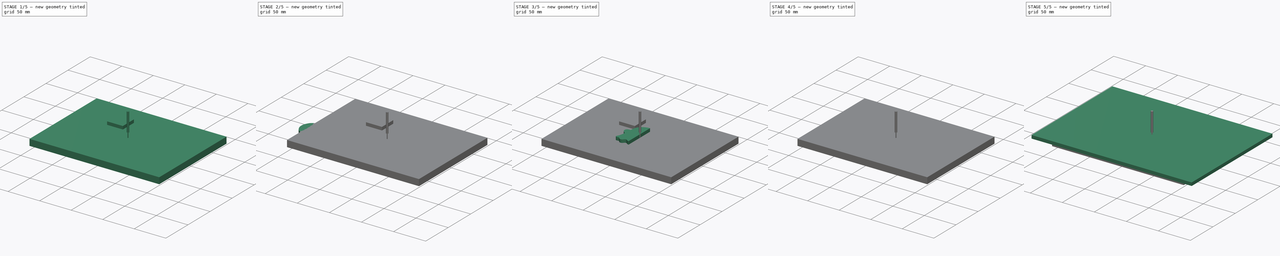
[diagram: build sequence overview — one tinted view per stage of 5, left to right]
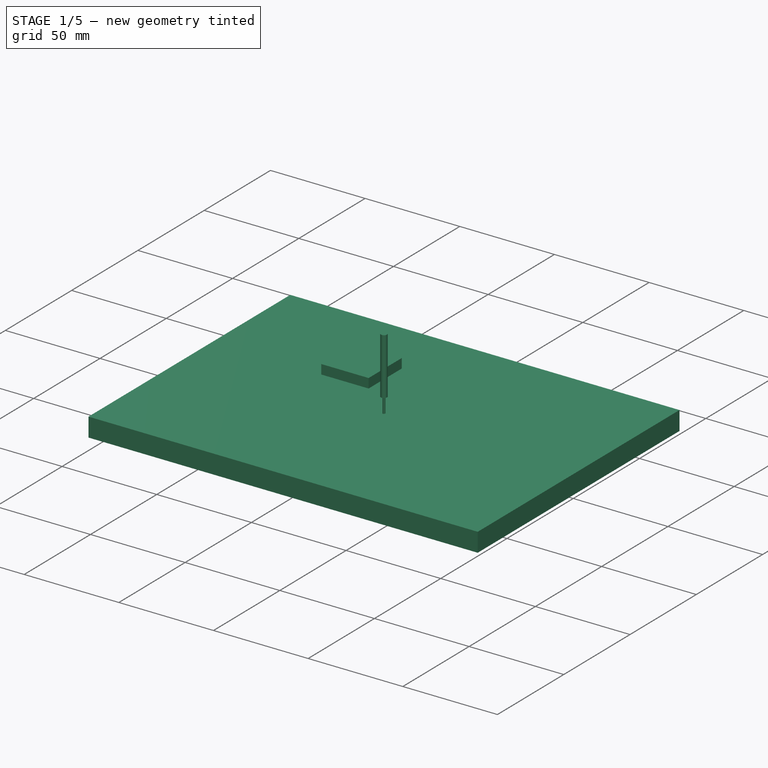
[diagram: stage 1 of 5 — iso view after this stage's code; geometry added in this stage tinted green]
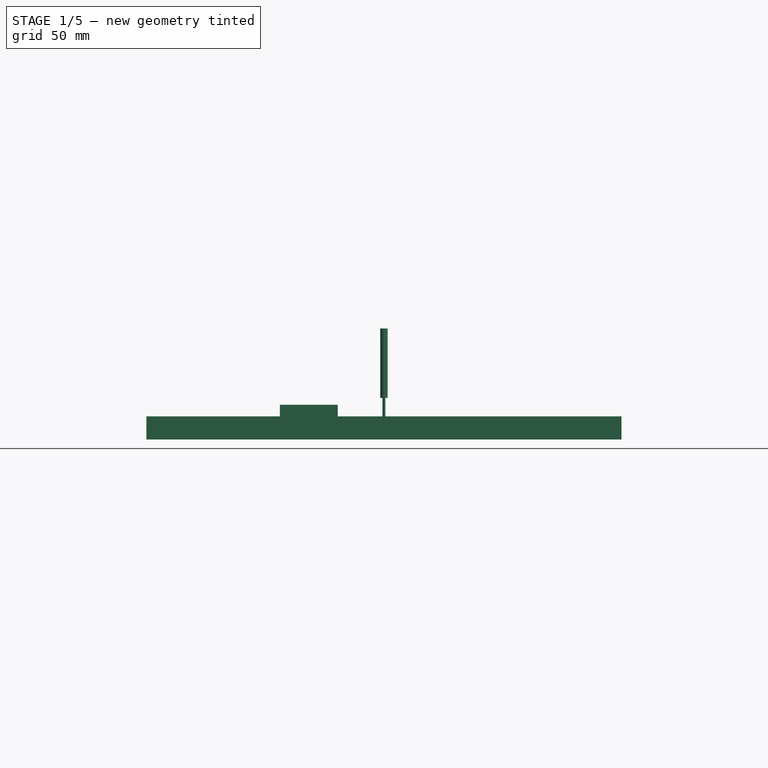
[diagram: stage 1 of 5 — front view after this stage's code; geometry added in this stage tinted green]
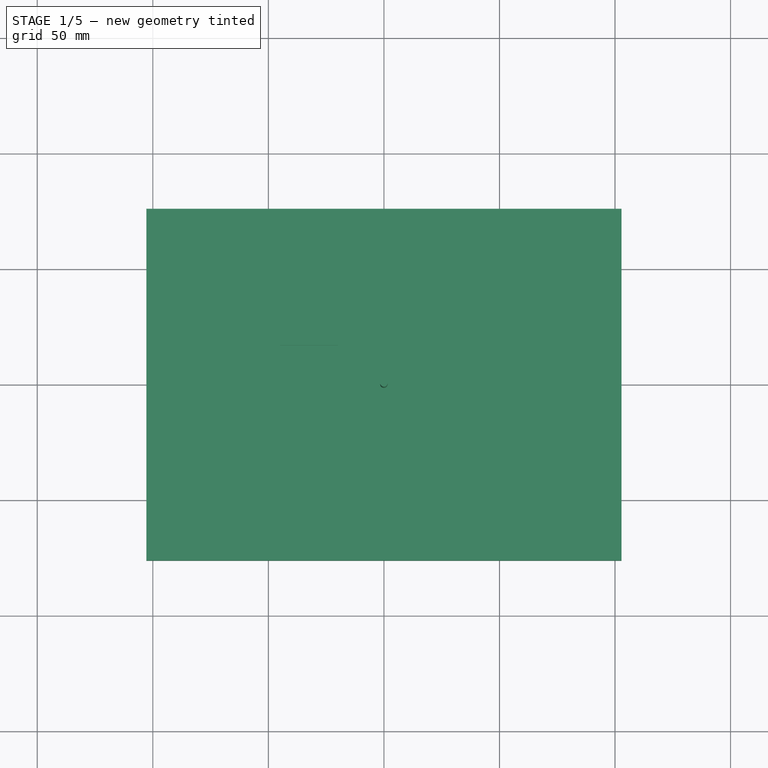
[diagram: stage 1 of 5 — top view after this stage's code; geometry added in this stage tinted green]
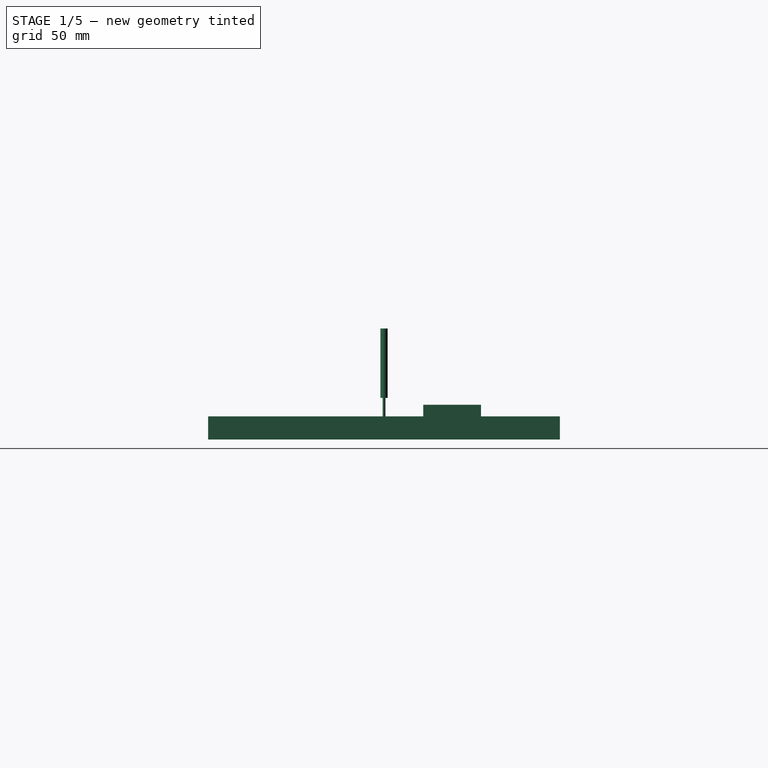
[diagram: stage 1 of 5 — right view after this stage's code; geometry added in this stage tinted green]
FCSTD DOCUMENT  (FreeCAD 1.0R)
Label: Ghost
License: All rights reserved
LicenseURL: https://en.wikipedia.org/wiki/All_rights_reserved
objects: Sketcher::SketchObject×37, PartDesign::Pad×25, PartDesign::Body×25, Part::MultiFuse×25, PartDesign::Pocket×12, Part::Mirroring×12, App::DocumentObjectGroup×3, Part::FeaturePython×3, Path::FeaturePython×2, Part::Feature×1, App::FeaturePython×1
note: 251 computed .brp shape members not serialized (recipe doc carries the construction recipe); baked Part::Feature solids carry a one-line shape summary decoded from their .brp

FEATURE [Sketcher::SketchObject] Sketch027
  ArcFitTolerance = 1e-06
  AttachmentSupport = -> [XY_Plane018]
  FullyConstrained = false
  MakeInternals = false
  MapMode = 5
  sketch-geometry (127):
    g0: LineSegment StartX=0 StartY=22.764 StartZ=0 EndX=-1.99102 EndY=22.764 EndZ=0
    g1: LineSegment StartX=-1.99102 StartY=22.764 StartZ=0 EndX=-4.07261 EndY=22.4239 EndZ=0
    g2: LineSegment StartX=-4.07261 StartY=22.4239 StartZ=0 EndX=-6.3927 EndY=21.6467 EndZ=0
    g3: LineSegment StartX=-6.3927 StartY=21.6467 StartZ=0 EndX=-8.17497 EndY=20.8304 EndZ=0
    g4: LineSegment StartX=-8.17497 StartY=20.8304 StartZ=0 EndX=-10.2566 EndY=19.6603 EndZ=0
    g5: LineSegment StartX=-10.2566 StartY=19.6603 StartZ=0 EndX=-12.2837 EndY=18.3406 EndZ=0
    g6: LineSegment StartX=-12.2837 StartY=18.3406 StartZ=0 EndX=-13.9624 EndY=16.4178 EndZ=0
    g7: LineSegment StartX=-13.9624 StartY=16.4178 StartZ=0 EndX=-15.3637 EndY=14.2818 EndZ=0
    g8: LineSegment StartX=-15.3637 StartY=14.2818 StartZ=0 EndX=-16.0452 EndY=12.8064 EndZ=0
    g9: LineSegment StartX=-16.0452 StartY=12.8064 StartZ=0 EndX=-16.5622 EndY=11.2827 EndZ=0
    g10: LineSegment StartX=-16.5622 StartY=11.2827 StartZ=0 EndX=-16.916 EndY=9.73169 EndZ=0
    g11: LineSegment StartX=-16.916 StartY=9.73169 StartZ=0 EndX=-17.1609 EndY=8.27594 EndZ=0
    g12: LineSegment StartX=-17.1609 StartY=8.27594 StartZ=0 EndX=-17.2846 EndY=4.90729 EndZ=0
    g13: LineSegment StartX=-17.2846 StartY=4.90729 StartZ=0 EndX=-17.3918 EndY=4.5569 EndZ=0
    g14: LineSegment StartX=-17.3918 StartY=4.5569 StartZ=0 EndX=-17.4958 EndY=4.28514 EndZ=0
    g15: LineSegment StartX=-17.4958 StartY=4.28514 StartZ=0 EndX=-17.6165 EndY=4.09727 EndZ=0
    g16: LineSegment StartX=-17.6165 StartY=4.09727 StartZ=0 EndX=-17.7608 EndY=3.91945 EndZ=0
    g17: LineSegment StartX=-17.7608 StartY=3.91945 StartZ=0 EndX=-17.9755 EndY=3.81545 EndZ=0
    g18: LineSegment StartX=-17.9755 StartY=3.81545 StartZ=0 EndX=-18.2439 EndY=3.74499 EndZ=0
    g19: LineSegment StartX=-18.2439 StartY=3.74499 StartZ=0 EndX=-18.5811 EndY=3.71799 EndZ=0
    g20: LineSegment StartX=-18.5811 StartY=3.71799 StartZ=0 EndX=-18.864 EndY=3.70425 EndZ=0
    g21: LineSegment StartX=-18.864 StartY=3.70425 StartZ=0 EndX=-19.3035 EndY=3.72348 EndZ=0
    g22: LineSegment StartX=-19.3035 StartY=3.72348 StartZ=0 EndX=-19.7128 EndY=3.72348 EndZ=0
    g23: LineSegment StartX=-19.7128 StartY=3.72348 StartZ=0 EndX=-20.1413 EndY=3.70151 EndZ=0
    g24: LineSegment StartX=-20.1413 StartY=3.70151 StartZ=0 EndX=-20.5121 EndY=3.64932 EndZ=0
    g25: LineSegment StartX=-20.5121 StartY=3.64932 StartZ=0 EndX=-20.9918 EndY=3.54452 EndZ=0
    g26: LineSegment StartX=-20.9918 StartY=3.54452 StartZ=0 EndX=-21.3984 EndY=3.44838 EndZ=0
    g27: LineSegment StartX=-21.3984 StartY=3.44838 StartZ=0 EndX=-21.9202 EndY=3.25611 EndZ=0
    g28: LineSegment StartX=-21.9202 StartY=3.25611 StartZ=0 EndX=-22.3103 EndY=3.06108 EndZ=0
    g29: LineSegment StartX=-22.3103 StartY=3.06108 StartZ=0 EndX=-22.7158 EndY=2.77458 EndZ=0
    g30: LineSegment StartX=-22.7158 StartY=2.77458 StartZ=0 EndX=-23.0619 EndY=2.44222 EndZ=0
    g31: LineSegment StartX=-23.0619 StartY=2.44222 StartZ=0 EndX=-23.3563 EndY=2.11436 EndZ=0
    g32: LineSegment StartX=-23.3563 StartY=2.11436 StartZ=0 EndX=-23.5815 EndY=1.81221 EndZ=0
    g33: LineSegment StartX=-23.5815 StartY=1.81221 StartZ=0 EndX=-23.7467 EndY=1.47898 EndZ=0
    g34: LineSegment StartX=-23.7467 StartY=1.47898 StartZ=0 EndX=-23.9252 EndY=1.023 EndZ=0
    g35: LineSegment StartX=-23.9252 StartY=1.023 StartZ=0 EndX=-24.019 EndY=0.620725 EndZ=0
    g36: LineSegment StartX=-24.019 StartY=0.620725 StartZ=0 EndX=-24.0821 EndY=0.162005 EndZ=0
    g37: LineSegment StartX=-24.0821 StartY=0.162005 StartZ=0 EndX=-24.1091 EndY=-0.371894 EndZ=0
    g38: LineSegment StartX=-24.1091 StartY=-0.371894 StartZ=0 EndX=-24.0886 EndY=-0.826749 EndZ=0
    g39: LineSegment StartX=-24.0886 StartY=-0.826749 StartZ=0 EndX=-24.0388 EndY=-1.36101 EndZ=0
    g40: LineSegment StartX=-24.0388 StartY=-1.36101 StartZ=0 EndX=-23.9446 EndY=-1.83636 EndZ=0
    g41: LineSegment StartX=-23.9446 StartY=-1.83636 StartZ=0 EndX=-23.8297 EndY=-2.27704 EndZ=0
    g42: LineSegment StartX=-23.8297 StartY=-2.27704 StartZ=0 EndX=-23.6617 EndY=-2.75238 EndZ=0
    g43: LineSegment StartX=-23.6617 StartY=-2.75238 StartZ=0 EndX=-23.4445 EndY=-3.19904 EndZ=0
    g44: LineSegment StartX=-23.4445 StartY=-3.19904 StartZ=0 EndX=-23.1781 EndY=-3.6539 EndZ=0
    g45: LineSegment StartX=-23.1781 StartY=-3.6539 StartZ=0 EndX=-22.8741 EndY=-4.1274 EndZ=0
    g46: LineSegment StartX=-22.8741 StartY=-4.1274 StartZ=0 EndX=-22.5217 EndY=-4.61914 EndZ=0
    g47: LineSegment StartX=-22.5217 StartY=-4.61914 StartZ=0 EndX=-22.116 EndY=-5.0576 EndZ=0
    g48: LineSegment StartX=-22.116 StartY=-5.0576 StartZ=0 EndX=-21.7513 EndY=-5.44689 EndZ=0
    g49: LineSegment StartX=-21.7513 StartY=-5.44689 StartZ=0 EndX=-21.041 EndY=-6.06755 EndZ=0
    g50: LineSegment StartX=-21.041 StartY=-6.06755 StartZ=0 EndX=-20.2707 EndY=-6.65353 EndZ=0
    g51: LineSegment StartX=-20.2707 StartY=-6.65353 StartZ=0 EndX=-19.8843 EndY=-6.92972 EndZ=0
    g52: LineSegment StartX=-19.8843 StartY=-6.92972 StartZ=0 EndX=-19.5606 EndY=-7.18788 EndZ=0
    g53: LineSegment StartX=-19.5606 StartY=-7.18788 StartZ=0 EndX=-19.1467 EndY=-7.56898 EndZ=0
    g54: LineSegment StartX=-19.1467 StartY=-7.56898 StartZ=0 EndX=-18.8464 EndY=-7.86544 EndZ=0
    g55: LineSegment StartX=-18.8464 StartY=-7.86544 StartZ=0 EndX=-18.6866 EndY=-8.21785 EndZ=0
    g56: LineSegment StartX=-18.6866 StartY=-8.21785 StartZ=0 EndX=-18.621 EndY=-8.43504 EndZ=0
    g57: LineSegment StartX=-18.621 StartY=-8.43504 StartZ=0 EndX=-18.4817 EndY=-8.96775 EndZ=0
    g58: LineSegment StartX=-18.4817 StartY=-8.96775 StartZ=0 EndX=-18.4817 EndY=-9.40253 EndZ=0
    g59: LineSegment StartX=-18.4817 StartY=-9.40253 StartZ=0 EndX=-18.4975 EndY=-9.82758 EndZ=0
    g60: LineSegment StartX=-18.4975 StartY=-9.82758 StartZ=0 EndX=-18.5786 EndY=-10.4 EndZ=0
    g61: LineSegment StartX=-18.5786 StartY=-10.4 StartZ=0 EndX=-18.6641 EndY=-10.888 EndZ=0
    g62: LineSegment StartX=-18.6641 StartY=-10.888 StartZ=0 EndX=-19.8704 EndY=-16.4561 EndZ=0
    g63: LineSegment StartX=-19.8704 StartY=-16.4561 StartZ=0 EndX=-20.2764 EndY=-17.6536 EndZ=0
    g64: LineSegment StartX=-20.2764 StartY=-17.6536 StartZ=0 EndX=-20.6011 EndY=-18.3437 EndZ=0
    g65: LineSegment StartX=-20.6011 StartY=-18.3437 StartZ=0 EndX=-21.4642 EndY=-20.068 EndZ=0
    g66: LineSegment StartX=-21.4642 StartY=-20.068 StartZ=0 EndX=-22.0167 EndY=-21.1656 EndZ=0
    g67: LineSegment StartX=-22.0167 StartY=-21.1656 StartZ=0 EndX=-22.2332 EndY=-21.5912 EndZ=0
    g68: LineSegment StartX=-22.2332 StartY=-21.5912 StartZ=0 EndX=-22.3751 EndY=-22.0019 EndZ=0
    g69: LineSegment StartX=-22.3751 StartY=-22.0019 StartZ=0 EndX=-22.3751 EndY=-22.4439 EndZ=0
    g70: LineSegment StartX=-22.3751 StartY=-22.4439 StartZ=0 EndX=-22.2996 EndY=-22.7996 EndZ=0
    g71: LineSegment StartX=-22.2996 StartY=-22.7996 StartZ=0 EndX=-22.1251 EndY=-23.0378 EndZ=0
    g72: LineSegment StartX=-22.1251 StartY=-23.0378 StartZ=0 EndX=-21.8802 EndY=-23.2995 EndZ=0
    g73: LineSegment StartX=-21.8802 StartY=-23.2995 StartZ=0 EndX=-21.3421 EndY=-23.6328 EndZ=0
    g74: LineSegment StartX=-21.3421 StartY=-23.6328 StartZ=0 EndX=-21.0603 EndY=-23.7334 EndZ=0
    g75: LineSegment StartX=-21.0603 StartY=-23.7334 StartZ=0 EndX=-20.765 EndY=-23.7972 EndZ=0
    g76: LineSegment StartX=-20.765 StartY=-23.7972 StartZ=0 EndX=-20.2618 EndY=-23.8408 EndZ=0
    g77: LineSegment StartX=-20.2618 StartY=-23.8408 StartZ=0 EndX=-19.7183 EndY=-23.8408 EndZ=0
    g78: LineSegment StartX=-19.7183 StartY=-23.8408 StartZ=0 EndX=-19.0525 EndY=-23.7972 EndZ=0
    g79: LineSegment StartX=-19.0525 StartY=-23.7972 StartZ=0 EndX=-18.2708 EndY=-23.6765 EndZ=0
    g80: LineSegment StartX=-18.2708 StartY=-23.6765 StartZ=0 EndX=-17.6769 EndY=-23.5926 EndZ=0
    g81: LineSegment StartX=-17.6769 StartY=-23.5926 StartZ=0 EndX=-17.2827 EndY=-23.5285 EndZ=0
    g82: LineSegment StartX=-17.2827 StartY=-23.5285 StartZ=0 EndX=-16.974 EndY=-23.505 EndZ=0
    g83: LineSegment StartX=-16.974 StartY=-23.505 StartZ=0 EndX=-16.7627 EndY=-23.5788 EndZ=0
    g84: LineSegment StartX=-16.7627 StartY=-23.5788 StartZ=0 EndX=-16.5916 EndY=-23.7163 EndZ=0
    g85: LineSegment StartX=-16.5916 StartY=-23.7163 StartZ=0 EndX=-16.0972 EndY=-24.2139 EndZ=0
    g86: LineSegment StartX=-16.0972 StartY=-24.2139 StartZ=0 EndX=-15.6476 EndY=-24.8011 EndZ=0
    g87: LineSegment StartX=-15.6476 StartY=-24.8011 StartZ=0 EndX=-15.3416 EndY=-25.1409 EndZ=0
    g88: LineSegment StartX=-15.3416 StartY=-25.1409 StartZ=0 EndX=-15.043 EndY=-25.4294 EndZ=0
    g89: LineSegment StartX=-15.043 StartY=-25.4294 StartZ=0 EndX=-14.3941 EndY=-26.0415 EndZ=0
    g90: LineSegment StartX=-14.3941 StartY=-26.0415 StartZ=0 EndX=-13.901 EndY=-26.387 EndZ=0
    g91: LineSegment StartX=-13.901 StartY=-26.387 StartZ=0 EndX=-13.5104 EndY=-26.6068 EndZ=0
    g92: LineSegment StartX=-13.5104 StartY=-26.6068 StartZ=0 EndX=-13.0407 EndY=-26.7645 EndZ=0
    g93: LineSegment StartX=-13.0407 StartY=-26.7645 StartZ=0 EndX=-12.6314 EndY=-26.8282 EndZ=0
    g94: LineSegment StartX=-12.6314 StartY=-26.8282 StartZ=0 EndX=-12.2322 EndY=-26.8282 EndZ=0
    g95: LineSegment StartX=-12.2322 StartY=-26.8282 StartZ=0 EndX=-11.276 EndY=-26.7242 EndZ=0
    g96: LineSegment StartX=-11.276 StartY=-26.7242 StartZ=0 EndX=-10.7908 EndY=-26.6634 EndZ=0
    g97: LineSegment StartX=-10.7908 StartY=-26.6634 StartZ=0 EndX=-10.415 EndY=-26.5795 EndZ=0
    g98: LineSegment StartX=-10.415 StartY=-26.5795 StartZ=0 EndX=-10.0963 EndY=-26.4319 EndZ=0
    g99: LineSegment StartX=-10.0963 StartY=-26.4319 StartZ=0 EndX=-9.78092 EndY=-26.2138 EndZ=0
    g100: LineSegment StartX=-9.78092 StartY=-26.2138 StartZ=0 EndX=-9.24321 EndY=-25.7804 EndZ=0
    g101: LineSegment StartX=-9.24321 StartY=-25.7804 StartZ=0 EndX=-8.77016 EndY=-25.2235 EndZ=0
    g102: LineSegment StartX=-8.77016 StartY=-25.2235 StartZ=0 EndX=-8.19855 EndY=-24.5672 EndZ=0
    g103: LineSegment StartX=-8.19855 StartY=-24.5672 StartZ=0 EndX=-7.83957 EndY=-24.1847 EndZ=0
    g104: LineSegment StartX=-7.83957 StartY=-24.1847 StartZ=0 EndX=-7.51413 EndY=-23.8962 EndZ=0
    g105: LineSegment StartX=-7.51413 StartY=-23.8962 StartZ=0 EndX=-6.97545 EndY=-23.5791 EndZ=0
    g106: LineSegment StartX=-6.97545 StartY=-23.5791 StartZ=0 EndX=-6.45058 EndY=-23.3987 EndZ=0
    g107: LineSegment StartX=-6.45058 StartY=-23.3987 StartZ=0 EndX=-5.83406 EndY=-23.3477 EndZ=0
    g108: LineSegment StartX=-5.83406 StartY=-23.3477 StartZ=0 EndX=-5.4214 EndY=-23.3477 EndZ=0
    g109: LineSegment StartX=-5.4214 StartY=-23.3477 StartZ=0 EndX=-5.1228 EndY=-23.3947 EndZ=0
    g110: LineSegment StartX=-5.1228 StartY=-23.3947 StartZ=0 EndX=-4.82085 EndY=-23.4685 EndZ=0
    g111: LineSegment StartX=-4.82085 StartY=-23.4685 StartZ=0 EndX=-4.61462 EndY=-23.5423 EndZ=0
    g112: LineSegment StartX=-4.61462 StartY=-23.5423 StartZ=0 EndX=-4.37306 EndY=-23.6497 EndZ=0
    g113: LineSegment StartX=-4.37306 StartY=-23.6497 StartZ=0 EndX=-4.15499 EndY=-23.7839 EndZ=0
    g114: LineSegment StartX=-4.15499 StartY=-23.7839 StartZ=0 EndX=-3.95369 EndY=-23.9315 EndZ=0
    g115: LineSegment StartX=-3.95369 StartY=-23.9315 StartZ=0 EndX=-3.52335 EndY=-24.3449 EndZ=0
    g116: LineSegment StartX=-3.52335 StartY=-24.3449 StartZ=0 EndX=-3.20417 EndY=-24.6706 EndZ=0
    g117: LineSegment StartX=-3.20417 StartY=-24.6706 StartZ=0 EndX=-2.94891 EndY=-24.9008 EndZ=0
    g118: LineSegment StartX=-2.94891 StartY=-24.9008 StartZ=0 EndX=-2.58421 EndY=-25.1438 EndZ=0
    g119: LineSegment StartX=-2.58421 StartY=-25.1438 StartZ=0 EndX=-2.23811 EndY=-25.3471 EndZ=0
    g120: LineSegment StartX=-2.23811 StartY=-25.3471 StartZ=0 EndX=-1.96228 EndY=-25.4768 EndZ=0
    g121: LineSegment StartX=-1.96228 StartY=-25.4768 StartZ=0 EndX=-1.77 EndY=-25.5482 EndZ=0
    g122: LineSegment StartX=-1.77 StartY=-25.5482 StartZ=0 EndX=-1.44862 EndY=-25.6361 EndZ=0
    g123: LineSegment StartX=-1.44862 StartY=-25.6361 StartZ=0 EndX=-1.05033 EndY=-25.7075 EndZ=0
    g124: LineSegment StartX=-1.05033 StartY=-25.7075 StartZ=0 EndX=-0.48349 EndY=-25.76 EndZ=0
    g125: LineSegment StartX=-0.48349 StartY=-25.76 StartZ=0 EndX=0 EndY=-25.7792 EndZ=0
    g126: LineSegment StartX=0 StartY=-25.7792 StartZ=0 EndX=0 EndY=22.764 EndZ=0
  constraints (135):
    c: PointOnObject(g0,g-2)
    c: Horizontal(g0)
    c: Coincident(g0,g1)
    c: Coincident(g1,g2)
    c: Coincident(g2,g3)
    c: Coincident(g3,g4)
    c: Coincident(g4,g5)
    c: Coincident(g5,g6)
    c: Coincident(g6,g7)
    c: Coincident(g7,g8)
    c: Coincident(g8,g9)
    c: Coincident(g9,g10)
    c: Coincident(g10,g11)
    c: Coincident(g11,g12)
    c: Coincident(g12,g13)
    c: Coincident(g13,g14)
    c: Coincident(g14,g15)
    c: Coincident(g15,g16)
    c: Coincident(g16,g17)
    c: Coincident(g17,g18)
    c: Coincident(g18,g19)
    c: Coincident(g19,g20)
    c: Coincident(g20,g21)
    c: Coincident(g21,g22)
    c: Horizontal(g22)
    c: Coincident(g22,g23)
    c: Coincident(g23,g24)
    c: Coincident(g24,g25)
    c: Coincident(g25,g26)
    c: Coincident(g26,g27)
    c: Coincident(g27,g28)
    c: Coincident(g28,g29)
    c: Coincident(g29,g30)
    c: Coincident(g30,g31)
    c: Coincident(g31,g32)
    c: Coincident(g32,g33)
    c: Coincident(g33,g34)
    c: Coincident(g34,g35)
    c: Coincident(g35,g36)
    c: Coincident(g36,g37)
    c: Coincident(g37,g38)
    c: Coincident(g38,g39)
    c: Coincident(g39,g40)
    c: Coincident(g40,g41)
    c: Coincident(g41,g42)
    c: Coincident(g42,g43)
    c: Coincident(g43,g44)
    c: Coincident(g44,g45)
    c: Coincident(g45,g46)
    c: Coincident(g46,g47)
    c: Coincident(g47,g48)
    c: Coincident(g48,g49)
    c: Coincident(g49,g50)
    c: Coincident(g50,g51)
    c: Coincident(g51,g52)
    c: Coincident(g52,g53)
    c: Coincident(g53,g54)
    c: Coincident(g54,g55)
    c: Coincident(g55,g56)
    c: Coincident(g56,g57)
    c: Coincident(g57,g58)
    c: Vertical(g58)
    c: Coincident(g58,g59)
    c: Coincident(g59,g60)
    c: Coincident(g60,g61)
    c: Coincident(g61,g62)
    c: Coincident(g62,g63)
    c: Coincident(g63,g64)
    c: Coincident(g64,g65)
    c: Coincident(g65,g66)
    c: Coincident(g66,g67)
    c: Coincident(g67,g68)
    c: Coincident(g68,g69)
    c: Vertical(g69)
    c: Coincident(g69,g70)
    c: Coincident(g70,g71)
    c: Coincident(g71,g72)
    c: Coincident(g72,g73)
    c: Coincident(g73,g74)
    c: Coincident(g74,g75)
    c: Coincident(g75,g76)
    c: Coincident(g76,g77)
    c: Horizontal(g77)
    c: Coincident(g77,g78)
    c: Coincident(g78,g79)
    c: Coincident(g79,g80)
    c: Coincident(g80,g81)
    c: Coincident(g81,g82)
    c: Coincident(g82,g83)
    c: Coincident(g83,g84)
    c: Coincident(g84,g85)
    c: Coincident(g85,g86)
    c: Coincident(g86,g87)
    c: Coincident(g87,g88)
    c: Coincident(g88,g89)
    c: Coincident(g89,g90)
    c: Coincident(g90,g91)
    c: Coincident(g91,g92)
    c: Coincident(g92,g93)
    c: Coincident(g93,g94)
    c: Horizontal(g94)
    c: Coincident(g94,g95)
    c: Coincident(g95,g96)
    c: Coincident(g96,g97)
    c: Coincident(g97,g98)
    c: Coincident(g98,g99)
    c: Coincident(g99,g100)
    c: Coincident(g100,g101)
    c: Coincident(g101,g102)
    c: Coincident(g102,g103)
    c: Coincident(g103,g104)
    c: Coincident(g104,g105)
    c: Coincident(g105,g106)
    c: Coincident(g106,g107)
    c: Coincident(g107,g108)
    c: Horizontal(g108)
    c: Coincident(g108,g109)
    c: Coincident(g109,g110)
    c: Coincident(g110,g111)
    c: Coincident(g111,g112)
    c: Coincident(g112,g113)
    c: Coincident(g113,g114)
    c: Coincident(g114,g115)
    c: Coincident(g115,g116)
    c: Coincident(g116,g117)
    c: Coincident(g117,g118)
    c: Coincident(g118,g119)
    c: Coincident(g119,g120)
    c: Coincident(g120,g121)
    c: Coincident(g121,g122)
    c: Coincident(g122,g123)
    c: Coincident(g123,g124)
    c: Coincident(g124,g125)
    c: PointOnObject(g125,g-2)
    c: Coincident(g125,g126)
FEATURE [PartDesign::Pad] Pad018
  Direction = (0,0,1)
  Length = 5
  Length2 = 10
  Profile = -> Sketch027
  ReferenceAxis = -> Sketch027 [N_Axis]
  Refine = true
  Suppressed = false
  Type = 0
FEATURE [Sketcher::SketchObject] Sketch028
  ArcFitTolerance = 1e-06
  AttachmentSupport = -> [Pad018]
  FullyConstrained = false
  MakeInternals = false
  MapMode = 5
  Placement = pos=(0,0,5) rot=(0,0,1;0rad)
  sketch-geometry (112):
    g0: Ellipse CenterX=-6.84184 CenterY=9.93713 CenterZ=0 NormalX=0 NormalY=0 NormalZ=1 MajorRadius=2.85356 MinorRadius=2.13212 AngleXU=1.52735
    g1: LineSegment [constr] StartX=-6.71789 StartY=12.788 StartZ=0 EndX=-6.96579 EndY=7.08626 EndZ=0
    g2: LineSegment [constr] StartX=-8.97195 StartY=10.0297 StartZ=0 EndX=-4.71174 EndY=9.84451 EndZ=0
    g3: GeomPoint [constr] X=-6.75946 Y=11.8319 Z=0
    g4: GeomPoint [constr] X=-6.92422 Y=8.04237 Z=0
    g5: LineSegment StartX=0 StartY=2.1596 StartZ=0 EndX=-0.250505 EndY=2.17189 EndZ=0
    g6: LineSegment StartX=-0.250505 StartY=2.17189 StartZ=0 EndX=-0.510897 EndY=2.18637 EndZ=0
    g7: LineSegment StartX=-0.510897 StartY=2.18637 StartZ=0 EndX=-0.770086 EndY=2.2271 EndZ=0
    g8: LineSegment StartX=-0.770086 StartY=2.2271 StartZ=0 EndX=-0.944502 EndY=2.28892 EndZ=0
    g9: LineSegment StartX=-0.944502 StartY=2.28892 StartZ=0 EndX=-1.09261 EndY=2.35927 EndZ=0
    g10: LineSegment StartX=-1.09261 StartY=2.35927 StartZ=0 EndX=-1.19258 EndY=2.41605 EndZ=0
    g11: LineSegment StartX=-1.19258 StartY=2.41605 StartZ=0 EndX=-1.28762 EndY=2.48393 EndZ=0
    g12: LineSegment StartX=-1.28762 StartY=2.48393 StartZ=0 EndX=-1.38204 EndY=2.5709 EndZ=0
    g13: LineSegment StartX=-1.38204 StartY=2.5709 StartZ=0 EndX=-1.47338 EndY=2.66964 EndZ=0
    g14: LineSegment StartX=-1.47338 StartY=2.66964 StartZ=0 EndX=-1.56347 EndY=2.76837 EndZ=0
    g15: LineSegment StartX=-1.56347 StartY=2.76837 StartZ=0 EndX=-1.65604 EndY=2.88686 EndZ=0
    g16: LineSegment StartX=-1.65604 StartY=2.88686 StartZ=0 EndX=-1.78485 EndY=3.10862 EndZ=0
    g17: LineSegment StartX=-1.78485 StartY=3.10862 StartZ=0 EndX=-1.92185 EndY=3.30117 EndZ=0
    g18: LineSegment StartX=-1.92185 StartY=3.30117 StartZ=0 EndX=-2.06131 EndY=3.49124 EndZ=0
    g19: LineSegment StartX=-2.06131 StartY=3.49124 StartZ=0 EndX=-2.14277 EndY=3.57517 EndZ=0
    g20: LineSegment StartX=-2.14277 StartY=3.57517 StartZ=0 EndX=-2.21806 EndY=3.63317 EndZ=0
    g21: LineSegment StartX=-2.21806 StartY=3.63317 StartZ=0 EndX=-2.42738 EndY=3.7165 EndZ=0
    g22: LineSegment StartX=-2.42738 StartY=3.7165 StartZ=0 EndX=-2.60018 EndY=3.75353 EndZ=0
    g23: LineSegment StartX=-2.60018 StartY=3.75353 StartZ=0 EndX=-2.73471 EndY=3.76464 EndZ=0
    g24: LineSegment StartX=-2.73471 StartY=3.76464 StartZ=0 EndX=-2.85196 EndY=3.76464 EndZ=0
    g25: LineSegment StartX=-2.85196 StartY=3.76464 StartZ=0 EndX=-2.96952 EndY=3.75115 EndZ=0
    g26: LineSegment StartX=-2.96952 StartY=3.75115 StartZ=0 EndX=-3.09295 EndY=3.72276 EndZ=0
    g27: LineSegment StartX=-3.09295 StartY=3.72276 StartZ=0 EndX=-3.40767 EndY=3.64501 EndZ=0
    g28: LineSegment StartX=-3.40767 StartY=3.64501 StartZ=0 EndX=-3.68236 EndY=3.53747 EndZ=0
    g29: LineSegment StartX=-3.68236 StartY=3.53747 StartZ=0 EndX=-3.84281 EndY=3.45107 EndZ=0
    g30: LineSegment StartX=-3.84281 StartY=3.45107 StartZ=0 EndX=-4.02425 EndY=3.33259 EndZ=0
    g31: LineSegment StartX=-4.02425 StartY=3.33259 StartZ=0 EndX=-4.36036 EndY=3.01489 EndZ=0
    g32: LineSegment StartX=-4.36036 StartY=3.01489 StartZ=0 EndX=-4.53232 EndY=2.84331 EndZ=0
    g33: LineSegment StartX=-4.53232 StartY=2.84331 StartZ=0 EndX=-4.66121 EndY=2.68312 EndZ=0
    g34: LineSegment StartX=-4.66121 StartY=2.68312 StartZ=0 EndX=-4.80667 EndY=2.42166 EndZ=0
    g35: LineSegment StartX=-4.80667 StartY=2.42166 StartZ=0 EndX=-4.8748 EndY=2.35538 EndZ=0
    g36: LineSegment StartX=-4.8748 StartY=2.35538 StartZ=0 EndX=-4.97607 EndY=2.28357 EndZ=0
    g37: LineSegment StartX=-4.97607 StartY=2.28357 StartZ=0 EndX=-5.10311 EndY=2.22833 EndZ=0
    g38: LineSegment StartX=-5.10311 StartY=2.22833 StartZ=0 EndX=-5.24121 EndY=2.1823 EndZ=0
    g39: LineSegment StartX=-5.24121 StartY=2.1823 StartZ=0 EndX=-5.35352 EndY=2.1823 EndZ=0
    g40: LineSegment StartX=-5.35352 StartY=2.1823 StartZ=0 EndX=-5.45847 EndY=2.20071 EndZ=0
    g41: LineSegment StartX=-5.45847 StartY=2.20071 StartZ=0 EndX=-5.61417 EndY=2.29454 EndZ=0
    g42: LineSegment StartX=-5.61417 StartY=2.29454 StartZ=0 EndX=-5.767 EndY=2.43079 EndZ=0
    g43: LineSegment StartX=-5.767 StartY=2.43079 StartZ=0 EndX=-5.92903 EndY=2.74565 EndZ=0
    g44: LineSegment StartX=-5.92903 StartY=2.74565 StartZ=0 EndX=-6.08185 EndY=3.11205 EndZ=0
    g45: LineSegment StartX=-6.08185 StartY=3.11205 StartZ=0 EndX=-6.28441 EndY=3.33426 EndZ=0
    g46: LineSegment StartX=-6.28441 StartY=3.33426 StartZ=0 EndX=-6.4497 EndY=3.46092 EndZ=0
    g47: LineSegment StartX=-6.4497 StartY=3.46092 StartZ=0 EndX=-6.69222 EndY=3.59936 EndZ=0
    g48: LineSegment StartX=-6.69222 StartY=3.59936 StartZ=0 EndX=-6.86098 EndY=3.65292 EndZ=0
    g49: LineSegment StartX=-6.86098 StartY=3.65292 StartZ=0 EndX=-7.00548 EndY=3.68222 EndZ=0
    g50: LineSegment StartX=-7.00548 StartY=3.68222 StartZ=0 EndX=-7.53681 EndY=3.7058 EndZ=0
    g51: LineSegment StartX=-7.53681 StartY=3.7058 StartZ=0 EndX=-8.15226 EndY=3.66948 EndZ=0
    g52: LineSegment StartX=-8.15226 StartY=3.66948 StartZ=0 EndX=-8.44462 EndY=3.59077 EndZ=0
    g53: LineSegment StartX=-8.44462 StartY=3.59077 StartZ=0 EndX=-8.75722 EndY=3.46932 EndZ=0
    g54: LineSegment StartX=-8.75722 StartY=3.46932 StartZ=0 EndX=-8.98436 EndY=3.27142 EndZ=0
    g55: LineSegment StartX=-8.98436 StartY=3.27142 StartZ=0 EndX=-9.17551 EndY=3.05103 EndZ=0
    g56: LineSegment StartX=-9.17551 StartY=3.05103 StartZ=0 EndX=-9.4934 EndY=2.3951 EndZ=0
    g57: LineSegment StartX=-9.4934 StartY=2.3951 StartZ=0 EndX=-9.69378 EndY=1.65213 EndZ=0
    g58: LineSegment StartX=-9.69378 StartY=1.65213 StartZ=0 EndX=-9.80486 EndY=0.869925 EndZ=0
    g59: LineSegment StartX=-9.80486 StartY=0.869925 StartZ=0 EndX=-9.90496 EndY=0.094142 EndZ=0
    g60: LineSegment StartX=-9.90496 StartY=0.094142 StartZ=0 EndX=-10.3412 EndY=-2.83169 EndZ=0
    g61: LineSegment StartX=-10.3412 StartY=-2.83169 StartZ=0 EndX=-10.3013 EndY=-3.11704 EndZ=0
    g62: LineSegment StartX=-10.3013 StartY=-3.11704 StartZ=0 EndX=-10.2455 EndY=-3.37181 EndZ=0
    g63: LineSegment StartX=-10.2455 StartY=-3.37181 StartZ=0 EndX=-10.1279 EndY=-3.55422 EndZ=0
    g64: LineSegment StartX=-10.1279 StartY=-3.55422 StartZ=0 EndX=-9.99224 EndY=-3.74265 EndZ=0
    g65: LineSegment StartX=-9.99224 StartY=-3.74265 StartZ=0 EndX=-9.79295 EndY=-3.87296 EndZ=0
    g66: LineSegment StartX=-9.79295 StartY=-3.87296 StartZ=0 EndX=-9.56381 EndY=-3.98904 EndZ=0
    g67: LineSegment StartX=-9.56381 StartY=-3.98904 StartZ=0 EndX=-9.1794 EndY=-4.15788 EndZ=0
    g68: LineSegment StartX=-9.1794 StartY=-4.15788 StartZ=0 EndX=-9.03549 EndY=-4.16863 EndZ=0
    g69: LineSegment StartX=-9.03549 StartY=-4.16863 StartZ=0 EndX=-8.85459 EndY=-4.15807 EndZ=0
    g70: LineSegment StartX=-8.85459 StartY=-4.15807 StartZ=0 EndX=-8.49507 EndY=-4.07792 EndZ=0
    g71: LineSegment StartX=-8.49507 StartY=-4.07792 StartZ=0 EndX=-8.27028 EndY=-4.00746 EndZ=0
    g72: LineSegment StartX=-8.27028 StartY=-4.00746 StartZ=0 EndX=-7.69658 EndY=-3.729 EndZ=0
    g73: LineSegment StartX=-7.69658 StartY=-3.729 StartZ=0 EndX=-7.32082 EndY=-3.37337 EndZ=0
    g74: LineSegment StartX=-7.32082 StartY=-3.37337 StartZ=0 EndX=-6.93727 EndY=-2.95221 EndZ=0
    g75: LineSegment StartX=-6.93727 StartY=-2.95221 StartZ=0 EndX=-6.66216 EndY=-2.50935 EndZ=0
    g76: LineSegment StartX=-6.66216 StartY=-2.50935 StartZ=0 EndX=-6.51699 EndY=-2.34735 EndZ=0
    g77: LineSegment StartX=-6.51699 StartY=-2.34735 StartZ=0 EndX=-6.37706 EndY=-2.25712 EndZ=0
    g78: LineSegment StartX=-6.37706 StartY=-2.25712 StartZ=0 EndX=-6.25001 EndY=-2.23319 EndZ=0
    g79: LineSegment StartX=-6.25001 StartY=-2.23319 StartZ=0 EndX=-6.11008 EndY=-2.23871 EndZ=0
    g80: LineSegment StartX=-6.11008 StartY=-2.23871 StartZ=0 EndX=-5.96646 EndY=-2.2737 EndZ=0
    g81: LineSegment StartX=-5.96646 StartY=-2.2737 StartZ=0 EndX=-5.85414 EndY=-2.31604 EndZ=0
    g82: LineSegment StartX=-5.85414 StartY=-2.31604 StartZ=0 EndX=-5.71926 EndY=-2.44534 EndZ=0
    g83: LineSegment StartX=-5.71926 StartY=-2.44534 StartZ=0 EndX=-5.61615 EndY=-2.60553 EndZ=0
    g84: LineSegment StartX=-5.61615 StartY=-2.60553 StartZ=0 EndX=-5.49106 EndY=-2.96628 EndZ=0
    g85: LineSegment StartX=-5.49106 StartY=-2.96628 StartZ=0 EndX=-5.378 EndY=-3.34014 EndZ=0
    g86: LineSegment StartX=-5.378 StartY=-3.34014 StartZ=0 EndX=-5.28721 EndY=-3.52187 EndZ=0
    g87: LineSegment StartX=-5.28721 StartY=-3.52187 StartZ=0 EndX=-5.17868 EndY=-3.6907 EndZ=0
    g88: LineSegment StartX=-5.17868 StartY=-3.6907 StartZ=0 EndX=-5.05609 EndY=-3.85417 EndZ=0
    g89: LineSegment StartX=-5.05609 StartY=-3.85417 StartZ=0 EndX=-4.91288 EndY=-4.00643 EndZ=0
    g90: LineSegment StartX=-4.91288 StartY=-4.00643 StartZ=0 EndX=-4.73173 EndY=-4.10176 EndZ=0
    g91: LineSegment StartX=-4.73173 StartY=-4.10176 StartZ=0 EndX=-4.53274 EndY=-4.16959 EndZ=0
    g92: LineSegment StartX=-4.53274 StartY=-4.16959 StartZ=0 EndX=-4.15285 EndY=-4.3113 EndZ=0
    g93: LineSegment StartX=-4.15285 StartY=-4.3113 StartZ=0 EndX=-3.95473 EndY=-4.32799 EndZ=0
    g94: LineSegment StartX=-3.95473 StartY=-4.32799 StartZ=0 EndX=-3.75574 EndY=-4.32799 EndZ=0
    g95: LineSegment StartX=-3.75574 StartY=-4.32799 StartZ=0 EndX=-3.47233 EndY=-4.27825 EndZ=0
    g96: LineSegment StartX=-3.47233 StartY=-4.27825 StartZ=0 EndX=-3.27086 EndY=-4.22713 EndZ=0
    g97: LineSegment StartX=-3.27086 StartY=-4.22713 StartZ=0 EndX=-3.08957 EndY=-4.1667 EndZ=0
    g98: LineSegment StartX=-3.08957 StartY=-4.1667 StartZ=0 EndX=-2.82038 EndY=-3.93871 EndZ=0
    g99: LineSegment StartX=-2.82038 StartY=-3.93871 StartZ=0 EndX=-2.52647 EndY=-3.53767 EndZ=0
    g100: LineSegment StartX=-2.52647 StartY=-3.53767 StartZ=0 EndX=-2.31161 EndY=-3.13562 EndZ=0
    g101: LineSegment StartX=-2.31161 StartY=-3.13562 StartZ=0 EndX=-2.11109 EndY=-2.82248 EndZ=0
    g102: LineSegment StartX=-2.11109 StartY=-2.82248 StartZ=0 EndX=-1.91881 EndY=-2.61922 EndZ=0
    g103: LineSegment StartX=-1.91881 StartY=-2.61922 StartZ=0 EndX=-1.6375 EndY=-2.3401 EndZ=0
    g104: LineSegment StartX=-1.6375 StartY=-2.3401 StartZ=0 EndX=-1.46994 EndY=-2.18628 EndZ=0
    g105: LineSegment StartX=-1.46994 StartY=-2.18628 StartZ=0 EndX=-1.27492 EndY=-2.08739 EndZ=0
    g106: LineSegment StartX=-1.27492 StartY=-2.08739 StartZ=0 EndX=-1.05517 EndY=-1.99126 EndZ=0
    g107: LineSegment StartX=-1.05517 StartY=-1.99126 StartZ=0 EndX=-0.629411 EndY=-1.85391 EndZ=0
    g108: LineSegment StartX=-0.629411 StartY=-1.85391 StartZ=0 EndX=-0.229856 EndY=-1.75175 EndZ=0
    g109: LineSegment StartX=-0.229856 StartY=-1.75175 StartZ=0 EndX=-0.064108 EndY=-1.73807 EndZ=0
    g110: LineSegment StartX=-0.064108 StartY=-1.73807 StartZ=0 EndX=0 EndY=-1.7356 EndZ=0
    g111: LineSegment StartX=0 StartY=-1.7356 StartZ=0 EndX=0 EndY=2.1596 EndZ=0
  constraints (112):
    c: InternalAlignment(g1-g4 -> g0) x4
    c: PointOnObject(g5,g-2)
    c: Coincident(g5,g6)
    c: Coincident(g6,g7)
    c: Coincident(g7,g8)
    c: Coincident(g8,g9)
    c: Coincident(g9,g10)
    c: Coincident(g10,g11)
    c: Coincident(g11,g12)
    c: Coincident(g12,g13)
    c: Coincident(g13,g14)
    c: Coincident(g14,g15)
    c: Coincident(g15,g16)
    c: Coincident(g16,g17)
    c: Coincident(g17,g18)
    c: Coincident(g18,g19)
    c: Coincident(g19,g20)
    c: Coincident(g20,g21)
    c: Coincident(g21,g22)
    c: Coincident(g22,g23)
    c: Coincident(g23,g24)
    c: Horizontal(g24)
    c: Coincident(g24,g25)
    c: Coincident(g25,g26)
    c: Coincident(g26,g27)
    c: Coincident(g27,g28)
    c: Coincident(g28,g29)
    c: Coincident(g29,g30)
    c: Coincident(g30,g31)
    c: Coincident(g31,g32)
    c: Coincident(g32,g33)
    c: Coincident(g33,g34)
    c: Coincident(g34,g35)
    c: Coincident(g35,g36)
    c: Coincident(g36,g37)
    c: Coincident(g37,g38)
    c: Coincident(g38,g39)
    c: Horizontal(g39)
    c: Coincident(g39,g40)
    c: Coincident(g40,g41)
    c: Coincident(g41,g42)
    c: Coincident(g42,g43)
    c: Coincident(g43,g44)
    c: Coincident(g44,g45)
    c: Coincident(g45,g46)
    c: Coincident(g46,g47)
    c: Coincident(g47,g48)
    c: Coincident(g48,g49)
    c: Coincident(g49,g50)
    c: Coincident(g50,g51)
    c: Coincident(g51,g52)
    c: Coincident(g52,g53)
    c: Coincident(g53,g54)
    c: Coincident(g54,g55)
    c: Coincident(g55,g56)
    c: Coincident(g56,g57)
    c: Coincident(g57,g58)
    c: Coincident(g58,g59)
    c: Coincident(g59,g60)
    c: Coincident(g60,g61)
    c: Coincident(g61,g62)
    c: Coincident(g62,g63)
    c: Coincident(g63,g64)
    c: Coincident(g64,g65)
    c: Coincident(g65,g66)
    c: Coincident(g66,g67)
    c: Coincident(g67,g68)
    c: Coincident(g68,g69)
    c: Coincident(g69,g70)
    c: Coincident(g70,g71)
    c: Coincident(g71,g72)
    c: Coincident(g72,g73)
    c: Coincident(g73,g74)
    c: Coincident(g74,g75)
    c: Coincident(g75,g76)
    c: Coincident(g76,g77)
    c: Coincident(g77,g78)
    c: Coincident(g78,g79)
    c: Coincident(g79,g80)
    c: Coincident(g80,g81)
    c: Coincident(g81,g82)
    c: Coincident(g82,g83)
    c: Coincident(g83,g84)
    c: Coincident(g84,g85)
    c: Coincident(g85,g86)
    c: Coincident(g86,g87)
    c: Coincident(g87,g88)
    c: Coincident(g88,g89)
    c: Coincident(g89,g90)
    c: Coincident(g90,g91)
    c: Coincident(g91,g92)
    c: Coincident(g92,g93)
    c: Coincident(g93,g94)
    c: Horizontal(g94)
    c: Coincident(g94,g95)
    c: Coincident(g95,g96)
    c: Coincident(g96,g97)
    c: Coincident(g97,g98)
    c: Coincident(g98,g99)
    c: Coincident(g99,g100)
    c: Coincident(g100,g101)
    c: Coincident(g101,g102)
    c: Coincident(g102,g103)
    c: Coincident(g103,g104)
    c: Coincident(g104,g105)
    c: Coincident(g105,g106)
    c: Coincident(g106,g107)
    c: Coincident(g107,g108)
    c: Coincident(g108,g109)
    c: Coincident(g109,g110)
    c: PointOnObject(g110,g-2)
    c: Coincident(g110,g111)
FEATURE [PartDesign::Pocket] Pocket009
  BaseFeature = -> Pad018
  Direction = (0,0,-1)
  Length = 5
  Length2 = 5
  Profile = -> Sketch028
  ReferenceAxis = -> Sketch028 [N_Axis]
  Refine = true
  Suppressed = false
  Type = 0
FEATURE [PartDesign::Body] Body018  label="Ghost_half009"
  AllowCompound = false
  Group = -> [Sketch027,Pad018,Sketch028,Pocket009]
  Origin = -> Origin018
  Placement = pos=(0,0,-5) rot=(0,0,1;0rad)
  Tip = -> Pocket009
FEATURE [Part::Mirroring] Part__Mirroring009  label="Ghost_mirror009"
  Base = (0,0,0)
  Normal = (1,0,0)
  Source = -> Body018
FEATURE [Sketcher::SketchObject] Sketch029
  ArcFitTolerance = 1e-06
  AttachmentSupport = -> [XY_Plane019]
  FullyConstrained = false
  MakeInternals = false
  MapMode = 5
  sketch-geometry (127):
    g0: LineSegment StartX=0 StartY=22.764 StartZ=0 EndX=-1.99102 EndY=22.764 EndZ=0
    g1: LineSegment StartX=-1.99102 StartY=22.764 StartZ=0 EndX=-4.07261 EndY=22.4239 EndZ=0
    g2: LineSegment StartX=-4.07261 StartY=22.4239 StartZ=0 EndX=-6.3927 EndY=21.6467 EndZ=0
    g3: LineSegment StartX=-6.3927 StartY=21.6467 StartZ=0 EndX=-8.17497 EndY=20.8304 EndZ=0
    g4: LineSegment StartX=-8.17497 StartY=20.8304 StartZ=0 EndX=-10.2566 EndY=19.6603 EndZ=0
    g5: LineSegment StartX=-10.2566 StartY=19.6603 StartZ=0 EndX=-12.2837 EndY=18.3406 EndZ=0
    g6: LineSegment StartX=-12.2837 StartY=18.3406 StartZ=0 EndX=-13.9624 EndY=16.4178 EndZ=0
    g7: LineSegment StartX=-13.9624 StartY=16.4178 StartZ=0 EndX=-15.3637 EndY=14.2818 EndZ=0
    g8: LineSegment StartX=-15.3637 StartY=14.2818 StartZ=0 EndX=-16.0452 EndY=12.8064 EndZ=0
    g9: LineSegment StartX=-16.0452 StartY=12.8064 StartZ=0 EndX=-16.5622 EndY=11.2827 EndZ=0
    g10: LineSegment StartX=-16.5622 StartY=11.2827 StartZ=0 EndX=-16.916 EndY=9.73169 EndZ=0
    g11: LineSegment StartX=-16.916 StartY=9.73169 StartZ=0 EndX=-17.1609 EndY=8.27594 EndZ=0
    g12: LineSegment StartX=-17.1609 StartY=8.27594 StartZ=0 EndX=-17.2846 EndY=4.90729 EndZ=0
    g13: LineSegment StartX=-17.2846 StartY=4.90729 StartZ=0 EndX=-17.3918 EndY=4.5569 EndZ=0
    g14: LineSegment StartX=-17.3918 StartY=4.5569 StartZ=0 EndX=-17.4958 EndY=4.28514 EndZ=0
    g15: LineSegment StartX=-17.4958 StartY=4.28514 StartZ=0 EndX=-17.6165 EndY=4.09727 EndZ=0
    g16: LineSegment StartX=-17.6165 StartY=4.09727 StartZ=0 EndX=-17.7608 EndY=3.91945 EndZ=0
    g17: LineSegment StartX=-17.7608 StartY=3.91945 StartZ=0 EndX=-17.9755 EndY=3.81545 EndZ=0
    g18: LineSegment StartX=-17.9755 StartY=3.81545 StartZ=0 EndX=-18.2439 EndY=3.74499 EndZ=0
    g19: LineSegment StartX=-18.2439 StartY=3.74499 StartZ=0 EndX=-18.5811 EndY=3.71799 EndZ=0
    g20: LineSegment StartX=-18.5811 StartY=3.71799 StartZ=0 EndX=-18.864 EndY=3.70425 EndZ=0
    g21: LineSegment StartX=-18.864 StartY=3.70425 StartZ=0 EndX=-19.3035 EndY=3.72348 EndZ=0
    g22: LineSegment StartX=-19.3035 StartY=3.72348 StartZ=0 EndX=-19.7128 EndY=3.72348 EndZ=0
    g23: LineSegment StartX=-19.7128 StartY=3.72348 StartZ=0 EndX=-20.1413 EndY=3.70151 EndZ=0
    g24: LineSegment StartX=-20.1413 StartY=3.70151 StartZ=0 EndX=-20.5121 EndY=3.64932 EndZ=0
    g25: LineSegment StartX=-20.5121 StartY=3.64932 StartZ=0 EndX=-20.9918 EndY=3.54452 EndZ=0
    g26: LineSegment StartX=-20.9918 StartY=3.54452 StartZ=0 EndX=-21.3984 EndY=3.44838 EndZ=0
    g27: LineSegment StartX=-21.3984 StartY=3.44838 StartZ=0 EndX=-21.9202 EndY=3.25611 EndZ=0
    g28: LineSegment StartX=-21.9202 StartY=3.25611 StartZ=0 EndX=-22.3103 EndY=3.06108 EndZ=0
    g29: LineSegment StartX=-22.3103 StartY=3.06108 StartZ=0 EndX=-22.7158 EndY=2.77458 EndZ=0
    g30: LineSegment StartX=-22.7158 StartY=2.77458 StartZ=0 EndX=-23.0619 EndY=2.44222 EndZ=0
    g31: LineSegment StartX=-23.0619 StartY=2.44222 StartZ=0 EndX=-23.3563 EndY=2.11436 EndZ=0
    g32: LineSegment StartX=-23.3563 StartY=2.11436 StartZ=0 EndX=-23.5815 EndY=1.81221 EndZ=0
    g33: LineSegment StartX=-23.5815 StartY=1.81221 StartZ=0 EndX=-23.7467 EndY=1.47898 EndZ=0
    g34: LineSegment StartX=-23.7467 StartY=1.47898 StartZ=0 EndX=-23.9252 EndY=1.023 EndZ=0
    g35: LineSegment StartX=-23.9252 StartY=1.023 StartZ=0 EndX=-24.019 EndY=0.620725 EndZ=0
    g36: LineSegment StartX=-24.019 StartY=0.620725 StartZ=0 EndX=-24.0821 EndY=0.162005 EndZ=0
    g37: LineSegment StartX=-24.0821 StartY=0.162005 StartZ=0 EndX=-24.1091 EndY=-0.371894 EndZ=0
    g38: LineSegment StartX=-24.1091 StartY=-0.371894 StartZ=0 EndX=-24.0886 EndY=-0.826749 EndZ=0
    g39: LineSegment StartX=-24.0886 StartY=-0.826749 StartZ=0 EndX=-24.0388 EndY=-1.36101 EndZ=0
    g40: LineSegment StartX=-24.0388 StartY=-1.36101 StartZ=0 EndX=-23.9446 EndY=-1.83636 EndZ=0
    g41: LineSegment StartX=-23.9446 StartY=-1.83636 StartZ=0 EndX=-23.8297 EndY=-2.27704 EndZ=0
    g42: LineSegment StartX=-23.8297 StartY=-2.27704 StartZ=0 EndX=-23.6617 EndY=-2.75238 EndZ=0
    g43: LineSegment StartX=-23.6617 StartY=-2.75238 StartZ=0 EndX=-23.4445 EndY=-3.19904 EndZ=0
    g44: LineSegment StartX=-23.4445 StartY=-3.19904 StartZ=0 EndX=-23.1781 EndY=-3.6539 EndZ=0
    g45: LineSegment StartX=-23.1781 StartY=-3.6539 StartZ=0 EndX=-22.8741 EndY=-4.1274 EndZ=0
    g46: LineSegment StartX=-22.8741 StartY=-4.1274 StartZ=0 EndX=-22.5217 EndY=-4.61914 EndZ=0
    g47: LineSegment StartX=-22.5217 StartY=-4.61914 StartZ=0 EndX=-22.116 EndY=-5.0576 EndZ=0
    g48: LineSegment StartX=-22.116 StartY=-5.0576 StartZ=0 EndX=-21.7513 EndY=-5.44689 EndZ=0
    g49: LineSegment StartX=-21.7513 StartY=-5.44689 StartZ=0 EndX=-21.041 EndY=-6.06755 EndZ=0
    g50: LineSegment StartX=-21.041 StartY=-6.06755 StartZ=0 EndX=-20.2707 EndY=-6.65353 EndZ=0
    g51: LineSegment StartX=-20.2707 StartY=-6.65353 StartZ=0 EndX=-19.8843 EndY=-6.92972 EndZ=0
    g52: LineSegment StartX=-19.8843 StartY=-6.92972 StartZ=0 EndX=-19.5606 EndY=-7.18788 EndZ=0
    g53: LineSegment StartX=-19.5606 StartY=-7.18788 StartZ=0 EndX=-19.1467 EndY=-7.56898 EndZ=0
    g54: LineSegment StartX=-19.1467 StartY=-7.56898 StartZ=0 EndX=-18.8464 EndY=-7.86544 EndZ=0
    g55: LineSegment StartX=-18.8464 StartY=-7.86544 StartZ=0 EndX=-18.6866 EndY=-8.21785 EndZ=0
    g56: LineSegment StartX=-18.6866 StartY=-8.21785 StartZ=0 EndX=-18.621 EndY=-8.43504 EndZ=0
    g57: LineSegment StartX=-18.621 StartY=-8.43504 StartZ=0 EndX=-18.4817 EndY=-8.96775 EndZ=0
    g58: LineSegment StartX=-18.4817 StartY=-8.96775 StartZ=0 EndX=-18.4817 EndY=-9.40253 EndZ=0
    g59: LineSegment StartX=-18.4817 StartY=-9.40253 StartZ=0 EndX=-18.4975 EndY=-9.82758 EndZ=0
    g60: LineSegment StartX=-18.4975 StartY=-9.82758 StartZ=0 EndX=-18.5786 EndY=-10.4 EndZ=0
    g61: LineSegment StartX=-18.5786 StartY=-10.4 StartZ=0 EndX=-18.6641 EndY=-10.888 EndZ=0
    g62: LineSegment StartX=-18.6641 StartY=-10.888 StartZ=0 EndX=-19.8704 EndY=-16.4561 EndZ=0
    g63: LineSegment StartX=-19.8704 StartY=-16.4561 StartZ=0 EndX=-20.2764 EndY=-17.6536 EndZ=0
    g64: LineSegment StartX=-20.2764 StartY=-17.6536 StartZ=0 EndX=-20.6011 EndY=-18.3437 EndZ=0
    g65: LineSegment StartX=-20.6011 StartY=-18.3437 StartZ=0 EndX=-21.4642 EndY=-20.068 EndZ=0
    g66: LineSegment StartX=-21.4642 StartY=-20.068 StartZ=0 EndX=-22.0167 EndY=-21.1656 EndZ=0
    g67: LineSegment StartX=-22.0167 StartY=-21.1656 StartZ=0 EndX=-22.2332 EndY=-21.5912 EndZ=0
    g68: LineSegment StartX=-22.2332 StartY=-21.5912 StartZ=0 EndX=-22.3751 EndY=-22.0019 EndZ=0
    g69: LineSegment StartX=-22.3751 StartY=-22.0019 StartZ=0 EndX=-22.3751 EndY=-22.4439 EndZ=0
    g70: LineSegment StartX=-22.3751 StartY=-22.4439 StartZ=0 EndX=-22.2996 EndY=-22.7996 EndZ=0
    g71: LineSegment StartX=-22.2996 StartY=-22.7996 StartZ=0 EndX=-22.1251 EndY=-23.0378 EndZ=0
    g72: LineSegment StartX=-22.1251 StartY=-23.0378 StartZ=0 EndX=-21.8802 EndY=-23.2995 EndZ=0
    g73: LineSegment StartX=-21.8802 StartY=-23.2995 StartZ=0 EndX=-21.3421 EndY=-23.6328 EndZ=0
    g74: LineSegment StartX=-21.3421 StartY=-23.6328 StartZ=0 EndX=-21.0603 EndY=-23.7334 EndZ=0
    g75: LineSegment StartX=-21.0603 StartY=-23.7334 StartZ=0 EndX=-20.765 EndY=-23.7972 EndZ=0
    g76: LineSegment StartX=-20.765 StartY=-23.7972 StartZ=0 EndX=-20.2618 EndY=-23.8408 EndZ=0
    g77: LineSegment StartX=-20.2618 StartY=-23.8408 StartZ=0 EndX=-19.7183 EndY=-23.8408 EndZ=0
    g78: LineSegment StartX=-19.7183 StartY=-23.8408 StartZ=0 EndX=-19.0525 EndY=-23.7972 EndZ=0
    g79: LineSegment StartX=-19.0525 StartY=-23.7972 StartZ=0 EndX=-18.2708 EndY=-23.6765 EndZ=0
    g80: LineSegment StartX=-18.2708 StartY=-23.6765 StartZ=0 EndX=-17.6769 EndY=-23.5926 EndZ=0
    g81: LineSegment StartX=-17.6769 StartY=-23.5926 StartZ=0 EndX=-17.2827 EndY=-23.5285 EndZ=0
    g82: LineSegment StartX=-17.2827 StartY=-23.5285 StartZ=0 EndX=-16.974 EndY=-23.505 EndZ=0
    g83: LineSegment StartX=-16.974 StartY=-23.505 StartZ=0 EndX=-16.7627 EndY=-23.5788 EndZ=0
    g84: LineSegment StartX=-16.7627 StartY=-23.5788 StartZ=0 EndX=-16.5916 EndY=-23.7163 EndZ=0
    g85: LineSegment StartX=-16.5916 StartY=-23.7163 StartZ=0 EndX=-16.0972 EndY=-24.2139 EndZ=0
    g86: LineSegment StartX=-16.0972 StartY=-24.2139 StartZ=0 EndX=-15.6476 EndY=-24.8011 EndZ=0
    g87: LineSegment StartX=-15.6476 StartY=-24.8011 StartZ=0 EndX=-15.3416 EndY=-25.1409 EndZ=0
    g88: LineSegment StartX=-15.3416 StartY=-25.1409 StartZ=0 EndX=-15.043 EndY=-25.4294 EndZ=0
    g89: LineSegment StartX=-15.043 StartY=-25.4294 StartZ=0 EndX=-14.3941 EndY=-26.0415 EndZ=0
    g90: LineSegment StartX=-14.3941 StartY=-26.0415 StartZ=0 EndX=-13.901 EndY=-26.387 EndZ=0
    g91: LineSegment StartX=-13.901 StartY=-26.387 StartZ=0 EndX=-13.5104 EndY=-26.6068 EndZ=0
    g92: LineSegment StartX=-13.5104 StartY=-26.6068 StartZ=0 EndX=-13.0407 EndY=-26.7645 EndZ=0
    g93: LineSegment StartX=-13.0407 StartY=-26.7645 StartZ=0 EndX=-12.6314 EndY=-26.8282 EndZ=0
    g94: LineSegment StartX=-12.6314 StartY=-26.8282 StartZ=0 EndX=-12.2322 EndY=-26.8282 EndZ=0
    g95: LineSegment StartX=-12.2322 StartY=-26.8282 StartZ=0 EndX=-11.276 EndY=-26.7242 EndZ=0
    g96: LineSegment StartX=-11.276 StartY=-26.7242 StartZ=0 EndX=-10.7908 EndY=-26.6634 EndZ=0
    g97: LineSegment StartX=-10.7908 StartY=-26.6634 StartZ=0 EndX=-10.415 EndY=-26.5795 EndZ=0
    g98: LineSegment StartX=-10.415 StartY=-26.5795 StartZ=0 EndX=-10.0963 EndY=-26.4319 EndZ=0
    g99: LineSegment StartX=-10.0963 StartY=-26.4319 StartZ=0 EndX=-9.78092 EndY=-26.2138 EndZ=0
    g100: LineSegment StartX=-9.78092 StartY=-26.2138 StartZ=0 EndX=-9.24321 EndY=-25.7804 EndZ=0
    g101: LineSegment StartX=-9.24321 StartY=-25.7804 StartZ=0 EndX=-8.77016 EndY=-25.2235 EndZ=0
    g102: LineSegment StartX=-8.77016 StartY=-25.2235 StartZ=0 EndX=-8.19855 EndY=-24.5672 EndZ=0
    g103: LineSegment StartX=-8.19855 StartY=-24.5672 StartZ=0 EndX=-7.83957 EndY=-24.1847 EndZ=0
    g104: LineSegment StartX=-7.83957 StartY=-24.1847 StartZ=0 EndX=-7.51413 EndY=-23.8962 EndZ=0
    g105: LineSegment StartX=-7.51413 StartY=-23.8962 StartZ=0 EndX=-6.97545 EndY=-23.5791 EndZ=0
    g106: LineSegment StartX=-6.97545 StartY=-23.5791 StartZ=0 EndX=-6.45058 EndY=-23.3987 EndZ=0
    g107: LineSegment StartX=-6.45058 StartY=-23.3987 StartZ=0 EndX=-5.83406 EndY=-23.3477 EndZ=0
    g108: LineSegment StartX=-5.83406 StartY=-23.3477 StartZ=0 EndX=-5.4214 EndY=-23.3477 EndZ=0
    g109: LineSegment StartX=-5.4214 StartY=-23.3477 StartZ=0 EndX=-5.1228 EndY=-23.3947 EndZ=0
    g110: LineSegment StartX=-5.1228 StartY=-23.3947 StartZ=0 EndX=-4.82085 EndY=-23.4685 EndZ=0
    g111: LineSegment StartX=-4.82085 StartY=-23.4685 StartZ=0 EndX=-4.61462 EndY=-23.5423 EndZ=0
    g112: LineSegment StartX=-4.61462 StartY=-23.5423 StartZ=0 EndX=-4.37306 EndY=-23.6497 EndZ=0
    g113: LineSegment StartX=-4.37306 StartY=-23.6497 StartZ=0 EndX=-4.15499 EndY=-23.7839 EndZ=0
    g114: LineSegment StartX=-4.15499 StartY=-23.7839 StartZ=0 EndX=-3.95369 EndY=-23.9315 EndZ=0
    g115: LineSegment StartX=-3.95369 StartY=-23.9315 StartZ=0 EndX=-3.52335 EndY=-24.3449 EndZ=0
    g116: LineSegment StartX=-3.52335 StartY=-24.3449 StartZ=0 EndX=-3.20417 EndY=-24.6706 EndZ=0
    g117: LineSegment StartX=-3.20417 StartY=-24.6706 StartZ=0 EndX=-2.94891 EndY=-24.9008 EndZ=0
    g118: LineSegment StartX=-2.94891 StartY=-24.9008 StartZ=0 EndX=-2.58421 EndY=-25.1438 EndZ=0
    g119: LineSegment StartX=-2.58421 StartY=-25.1438 StartZ=0 EndX=-2.23811 EndY=-25.3471 EndZ=0
    g120: LineSegment StartX=-2.23811 StartY=-25.3471 StartZ=0 EndX=-1.96228 EndY=-25.4768 EndZ=0
    g121: LineSegment StartX=-1.96228 StartY=-25.4768 StartZ=0 EndX=-1.77 EndY=-25.5482 EndZ=0
    g122: LineSegment StartX=-1.77 StartY=-25.5482 StartZ=0 EndX=-1.44862 EndY=-25.6361 EndZ=0
    g123: LineSegment StartX=-1.44862 StartY=-25.6361 StartZ=0 EndX=-1.05033 EndY=-25.7075 EndZ=0
    g124: LineSegment StartX=-1.05033 StartY=-25.7075 StartZ=0 EndX=-0.48349 EndY=-25.76 EndZ=0
    g125: LineSegment StartX=-0.48349 StartY=-25.76 StartZ=0 EndX=0 EndY=-25.7792 EndZ=0
    g126: LineSegment StartX=0 StartY=-25.7792 StartZ=0 EndX=0 EndY=22.764 EndZ=0
  constraints (135):
    c: PointOnObject(g0,g-2)
    c: Horizontal(g0)
    c: Coincident(g0,g1)
    c: Coincident(g1,g2)
    c: Coincident(g2,g3)
    c: Coincident(g3,g4)
    c: Coincident(g4,g5)
    c: Coincident(g5,g6)
    c: Coincident(g6,g7)
    c: Coincident(g7,g8)
    c: Coincident(g8,g9)
    c: Coincident(g9,g10)
    c: Coincident(g10,g11)
    c: Coincident(g11,g12)
    c: Coincident(g12,g13)
    c: Coincident(g13,g14)
    c: Coincident(g14,g15)
    c: Coincident(g15,g16)
    c: Coincident(g16,g17)
    c: Coincident(g17,g18)
    c: Coincident(g18,g19)
    c: Coincident(g19,g20)
    c: Coincident(g20,g21)
    c: Coincident(g21,g22)
    c: Horizontal(g22)
    c: Coincident(g22,g23)
    c: Coincident(g23,g24)
    c: Coincident(g24,g25)
    c: Coincident(g25,g26)
    c: Coincident(g26,g27)
    c: Coincident(g27,g28)
    c: Coincident(g28,g29)
    c: Coincident(g29,g30)
    c: Coincident(g30,g31)
    c: Coincident(g31,g32)
    c: Coincident(g32,g33)
    c: Coincident(g33,g34)
    c: Coincident(g34,g35)
    c: Coincident(g35,g36)
    c: Coincident(g36,g37)
    c: Coincident(g37,g38)
    c: Coincident(g38,g39)
    c: Coincident(g39,g40)
    c: Coincident(g40,g41)
    c: Coincident(g41,g42)
    c: Coincident(g42,g43)
    c: Coincident(g43,g44)
    c: Coincident(g44,g45)
    c: Coincident(g45,g46)
    c: Coincident(g46,g47)
    c: Coincident(g47,g48)
    c: Coincident(g48,g49)
    c: Coincident(g49,g50)
    c: Coincident(g50,g51)
    c: Coincident(g51,g52)
    c: Coincident(g52,g53)
    c: Coincident(g53,g54)
    c: Coincident(g54,g55)
    c: Coincident(g55,g56)
    c: Coincident(g56,g57)
    c: Coincident(g57,g58)
    c: Vertical(g58)
    c: Coincident(g58,g59)
    c: Coincident(g59,g60)
    c: Coincident(g60,g61)
    c: Coincident(g61,g62)
    c: Coincident(g62,g63)
    c: Coincident(g63,g64)
    c: Coincident(g64,g65)
    c: Coincident(g65,g66)
    c: Coincident(g66,g67)
    c: Coincident(g67,g68)
    c: Coincident(g68,g69)
    c: Vertical(g69)
    c: Coincident(g69,g70)
    c: Coincident(g70,g71)
    c: Coincident(g71,g72)
    c: Coincident(g72,g73)
    c: Coincident(g73,g74)
    c: Coincident(g74,g75)
    c: Coincident(g75,g76)
    c: Coincident(g76,g77)
    c: Horizontal(g77)
    c: Coincident(g77,g78)
    c: Coincident(g78,g79)
    c: Coincident(g79,g80)
    c: Coincident(g80,g81)
    c: Coincident(g81,g82)
    c: Coincident(g82,g83)
    c: Coincident(g83,g84)
    c: Coincident(g84,g85)
    c: Coincident(g85,g86)
    c: Coincident(g86,g87)
    c: Coincident(g87,g88)
    c: Coincident(g88,g89)
    c: Coincident(g89,g90)
    c: Coincident(g90,g91)
    c: Coincident(g91,g92)
    c: Coincident(g92,g93)
    c: Coincident(g93,g94)
    c: Horizontal(g94)
    c: Coincident(g94,g95)
    c: Coincident(g95,g96)
    c: Coincident(g96,g97)
    c: Coincident(g97,g98)
    c: Coincident(g98,g99)
    c: Coincident(g99,g100)
    c: Coincident(g100,g101)
    c: Coincident(g101,g102)
    c: Coincident(g102,g103)
    c: Coincident(g103,g104)
    c: Coincident(g104,g105)
    c: Coincident(g105,g106)
    c: Coincident(g106,g107)
    c: Coincident(g107,g108)
    c: Horizontal(g108)
    c: Coincident(g108,g109)
    c: Coincident(g109,g110)
    c: Coincident(g110,g111)
    c: Coincident(g111,g112)
    c: Coincident(g112,g113)
    c: Coincident(g113,g114)
    c: Coincident(g114,g115)
    c: Coincident(g115,g116)
    c: Coincident(g116,g117)
    c: Coincident(g117,g118)
    c: Coincident(g118,g119)
    c: Coincident(g119,g120)
    c: Coincident(g120,g121)
    c: Coincident(g121,g122)
    c: Coincident(g122,g123)
    c: Coincident(g123,g124)
    c: Coincident(g124,g125)
    c: PointOnObject(g125,g-2)
    c: Coincident(g125,g126)
FEATURE [PartDesign::Pad] Pad019
  Direction = (0,0,1)
  Length = 5
  Length2 = 10
  Profile = -> Sketch029
  ReferenceAxis = -> Sketch029 [N_Axis]
  Refine = true
  Suppressed = false
  Type = 0
FEATURE [Sketcher::SketchObject] Sketch030
  ArcFitTolerance = 1e-06
  AttachmentSupport = -> [Pad019]
  FullyConstrained = false
  MakeInternals = false
  MapMode = 5
  Placement = pos=(0,0,5) rot=(0,0,1;0rad)
  sketch-geometry (112):
    g0: Ellipse CenterX=-6.84184 CenterY=9.93713 CenterZ=0 NormalX=0 NormalY=0 NormalZ=1 MajorRadius=2.85356 MinorRadius=2.13212 AngleXU=1.52735
    g1: LineSegment [constr] StartX=-6.71789 StartY=12.788 StartZ=0 EndX=-6.96579 EndY=7.08626 EndZ=0
    g2: LineSegment [constr] StartX=-8.97195 StartY=10.0297 StartZ=0 EndX=-4.71174 EndY=9.84451 EndZ=0
    g3: GeomPoint [constr] X=-6.75946 Y=11.8319 Z=0
    g4: GeomPoint [constr] X=-6.92422 Y=8.04237 Z=0
    g5: LineSegment StartX=0 StartY=2.1596 StartZ=0 EndX=-0.250505 EndY=2.17189 EndZ=0
    g6: LineSegment StartX=-0.250505 StartY=2.17189 StartZ=0 EndX=-0.510897 EndY=2.18637 EndZ=0
    g7: LineSegment StartX=-0.510897 StartY=2.18637 StartZ=0 EndX=-0.770086 EndY=2.2271 EndZ=0
    g8: LineSegment StartX=-0.770086 StartY=2.2271 StartZ=0 EndX=-0.944502 EndY=2.28892 EndZ=0
    g9: LineSegment StartX=-0.944502 StartY=2.28892 StartZ=0 EndX=-1.09261 EndY=2.35927 EndZ=0
    g10: LineSegment StartX=-1.09261 StartY=2.35927 StartZ=0 EndX=-1.19258 EndY=2.41605 EndZ=0
    g11: LineSegment StartX=-1.19258 StartY=2.41605 StartZ=0 EndX=-1.28762 EndY=2.48393 EndZ=0
    g12: LineSegment StartX=-1.28762 StartY=2.48393 StartZ=0 EndX=-1.38204 EndY=2.5709 EndZ=0
    g13: LineSegment StartX=-1.38204 StartY=2.5709 StartZ=0 EndX=-1.47338 EndY=2.66964 EndZ=0
    g14: LineSegment StartX=-1.47338 StartY=2.66964 StartZ=0 EndX=-1.56347 EndY=2.76837 EndZ=0
    g15: LineSegment StartX=-1.56347 StartY=2.76837 StartZ=0 EndX=-1.65604 EndY=2.88686 EndZ=0
    g16: LineSegment StartX=-1.65604 StartY=2.88686 StartZ=0 EndX=-1.78485 EndY=3.10862 EndZ=0
    g17: LineSegment StartX=-1.78485 StartY=3.10862 StartZ=0 EndX=-1.92185 EndY=3.30117 EndZ=0
    g18: LineSegment StartX=-1.92185 StartY=3.30117 StartZ=0 EndX=-2.06131 EndY=3.49124 EndZ=0
    g19: LineSegment StartX=-2.06131 StartY=3.49124 StartZ=0 EndX=-2.14277 EndY=3.57517 EndZ=0
    g20: LineSegment StartX=-2.14277 StartY=3.57517 StartZ=0 EndX=-2.21806 EndY=3.63317 EndZ=0
    g21: LineSegment StartX=-2.21806 StartY=3.63317 StartZ=0 EndX=-2.42738 EndY=3.7165 EndZ=0
    g22: LineSegment StartX=-2.42738 StartY=3.7165 StartZ=0 EndX=-2.60018 EndY=3.75353 EndZ=0
    g23: LineSegment StartX=-2.60018 StartY=3.75353 StartZ=0 EndX=-2.73471 EndY=3.76464 EndZ=0
    g24: LineSegment StartX=-2.73471 StartY=3.76464 StartZ=0 EndX=-2.85196 EndY=3.76464 EndZ=0
    g25: LineSegment StartX=-2.85196 StartY=3.76464 StartZ=0 EndX=-2.96952 EndY=3.75115 EndZ=0
    g26: LineSegment StartX=-2.96952 StartY=3.75115 StartZ=0 EndX=-3.09295 EndY=3.72276 EndZ=0
    g27: LineSegment StartX=-3.09295 StartY=3.72276 StartZ=0 EndX=-3.40767 EndY=3.64501 EndZ=0
    g28: LineSegment StartX=-3.40767 StartY=3.64501 StartZ=0 EndX=-3.68236 EndY=3.53747 EndZ=0
    g29: LineSegment StartX=-3.68236 StartY=3.53747 StartZ=0 EndX=-3.84281 EndY=3.45107 EndZ=0
    g30: LineSegment StartX=-3.84281 StartY=3.45107 StartZ=0 EndX=-4.02425 EndY=3.33259 EndZ=0
    g31: LineSegment StartX=-4.02425 StartY=3.33259 StartZ=0 EndX=-4.36036 EndY=3.01489 EndZ=0
    g32: LineSegment StartX=-4.36036 StartY=3.01489 StartZ=0 EndX=-4.53232 EndY=2.84331 EndZ=0
    g33: LineSegment StartX=-4.53232 StartY=2.84331 StartZ=0 EndX=-4.66121 EndY=2.68312 EndZ=0
    g34: LineSegment StartX=-4.66121 StartY=2.68312 StartZ=0 EndX=-4.80667 EndY=2.42166 EndZ=0
    g35: LineSegment StartX=-4.80667 StartY=2.42166 StartZ=0 EndX=-4.8748 EndY=2.35538 EndZ=0
    g36: LineSegment StartX=-4.8748 StartY=2.35538 StartZ=0 EndX=-4.97607 EndY=2.28357 EndZ=0
    g37: LineSegment StartX=-4.97607 StartY=2.28357 StartZ=0 EndX=-5.10311 EndY=2.22833 EndZ=0
    g38: LineSegment StartX=-5.10311 StartY=2.22833 StartZ=0 EndX=-5.24121 EndY=2.1823 EndZ=0
    g39: LineSegment StartX=-5.24121 StartY=2.1823 StartZ=0 EndX=-5.35352 EndY=2.1823 EndZ=0
    g40: LineSegment StartX=-5.35352 StartY=2.1823 StartZ=0 EndX=-5.45847 EndY=2.20071 EndZ=0
    g41: LineSegment StartX=-5.45847 StartY=2.20071 StartZ=0 EndX=-5.61417 EndY=2.29454 EndZ=0
    g42: LineSegment StartX=-5.61417 StartY=2.29454 StartZ=0 EndX=-5.767 EndY=2.43079 EndZ=0
    g43: LineSegment StartX=-5.767 StartY=2.43079 StartZ=0 EndX=-5.92903 EndY=2.74565 EndZ=0
    g44: LineSegment StartX=-5.92903 StartY=2.74565 StartZ=0 EndX=-6.08185 EndY=3.11205 EndZ=0
    g45: LineSegment StartX=-6.08185 StartY=3.11205 StartZ=0 EndX=-6.28441 EndY=3.33426 EndZ=0
    g46: LineSegment StartX=-6.28441 StartY=3.33426 StartZ=0 EndX=-6.4497 EndY=3.46092 EndZ=0
    g47: LineSegment StartX=-6.4497 StartY=3.46092 StartZ=0 EndX=-6.69222 EndY=3.59936 EndZ=0
    g48: LineSegment StartX=-6.69222 StartY=3.59936 StartZ=0 EndX=-6.86098 EndY=3.65292 EndZ=0
    g49: LineSegment StartX=-6.86098 StartY=3.65292 StartZ=0 EndX=-7.00548 EndY=3.68222 EndZ=0
    g50: LineSegment StartX=-7.00548 StartY=3.68222 StartZ=0 EndX=-7.53681 EndY=3.7058 EndZ=0
    g51: LineSegment StartX=-7.53681 StartY=3.7058 StartZ=0 EndX=-8.15226 EndY=3.66948 EndZ=0
    g52: LineSegment StartX=-8.15226 StartY=3.66948 StartZ=0 EndX=-8.44462 EndY=3.59077 EndZ=0
    g53: LineSegment StartX=-8.44462 StartY=3.59077 StartZ=0 EndX=-8.75722 EndY=3.46932 EndZ=0
    g54: LineSegment StartX=-8.75722 StartY=3.46932 StartZ=0 EndX=-8.98436 EndY=3.27142 EndZ=0
    g55: LineSegment StartX=-8.98436 StartY=3.27142 StartZ=0 EndX=-9.17551 EndY=3.05103 EndZ=0
    g56: LineSegment StartX=-9.17551 StartY=3.05103 StartZ=0 EndX=-9.4934 EndY=2.3951 EndZ=0
    g57: LineSegment StartX=-9.4934 StartY=2.3951 StartZ=0 EndX=-9.69378 EndY=1.65213 EndZ=0
    g58: LineSegment StartX=-9.69378 StartY=1.65213 StartZ=0 EndX=-9.80486 EndY=0.869925 EndZ=0
    g59: LineSegment StartX=-9.80486 StartY=0.869925 StartZ=0 EndX=-9.90496 EndY=0.094142 EndZ=0
    g60: LineSegment StartX=-9.90496 StartY=0.094142 StartZ=0 EndX=-10.3412 EndY=-2.83169 EndZ=0
    g61: LineSegment StartX=-10.3412 StartY=-2.83169 StartZ=0 EndX=-10.3013 EndY=-3.11704 EndZ=0
    g62: LineSegment StartX=-10.3013 StartY=-3.11704 StartZ=0 EndX=-10.2455 EndY=-3.37181 EndZ=0
    g63: LineSegment StartX=-10.2455 StartY=-3.37181 StartZ=0 EndX=-10.1279 EndY=-3.55422 EndZ=0
    g64: LineSegment StartX=-10.1279 StartY=-3.55422 StartZ=0 EndX=-9.99224 EndY=-3.74265 EndZ=0
    g65: LineSegment StartX=-9.99224 StartY=-3.74265 StartZ=0 EndX=-9.79295 EndY=-3.87296 EndZ=0
    g66: LineSegment StartX=-9.79295 StartY=-3.87296 StartZ=0 EndX=-9.56381 EndY=-3.98904 EndZ=0
    g67: LineSegment StartX=-9.56381 StartY=-3.98904 StartZ=0 EndX=-9.1794 EndY=-4.15788 EndZ=0
    g68: LineSegment StartX=-9.1794 StartY=-4.15788 StartZ=0 EndX=-9.03549 EndY=-4.16863 EndZ=0
    g69: LineSegment StartX=-9.03549 StartY=-4.16863 StartZ=0 EndX=-8.85459 EndY=-4.15807 EndZ=0
    g70: LineSegment StartX=-8.85459 StartY=-4.15807 StartZ=0 EndX=-8.49507 EndY=-4.07792 EndZ=0
    g71: LineSegment StartX=-8.49507 StartY=-4.07792 StartZ=0 EndX=-8.27028 EndY=-4.00746 EndZ=0
    g72: LineSegment StartX=-8.27028 StartY=-4.00746 StartZ=0 EndX=-7.69658 EndY=-3.729 EndZ=0
    g73: LineSegment StartX=-7.69658 StartY=-3.729 StartZ=0 EndX=-7.32082 EndY=-3.37337 EndZ=0
    g74: LineSegment StartX=-7.32082 StartY=-3.37337 StartZ=0 EndX=-6.93727 EndY=-2.95221 EndZ=0
    g75: LineSegment StartX=-6.93727 StartY=-2.95221 StartZ=0 EndX=-6.66216 EndY=-2.50935 EndZ=0
    g76: LineSegment StartX=-6.66216 StartY=-2.50935 StartZ=0 EndX=-6.51699 EndY=-2.34735 EndZ=0
    g77: LineSegment StartX=-6.51699 StartY=-2.34735 StartZ=0 EndX=-6.37706 EndY=-2.25712 EndZ=0
    g78: LineSegment StartX=-6.37706 StartY=-2.25712 StartZ=0 EndX=-6.25001 EndY=-2.23319 EndZ=0
    g79: LineSegment StartX=-6.25001 StartY=-2.23319 StartZ=0 EndX=-6.11008 EndY=-2.23871 EndZ=0
    g80: LineSegment StartX=-6.11008 StartY=-2.23871 StartZ=0 EndX=-5.96646 EndY=-2.2737 EndZ=0
    g81: LineSegment StartX=-5.96646 StartY=-2.2737 StartZ=0 EndX=-5.85414 EndY=-2.31604 EndZ=0
    g82: LineSegment StartX=-5.85414 StartY=-2.31604 StartZ=0 EndX=-5.71926 EndY=-2.44534 EndZ=0
    g83: LineSegment StartX=-5.71926 StartY=-2.44534 StartZ=0 EndX=-5.61615 EndY=-2.60553 EndZ=0
    g84: LineSegment StartX=-5.61615 StartY=-2.60553 StartZ=0 EndX=-5.49106 EndY=-2.96628 EndZ=0
    g85: LineSegment StartX=-5.49106 StartY=-2.96628 StartZ=0 EndX=-5.378 EndY=-3.34014 EndZ=0
    g86: LineSegment StartX=-5.378 StartY=-3.34014 StartZ=0 EndX=-5.28721 EndY=-3.52187 EndZ=0
    g87: LineSegment StartX=-5.28721 StartY=-3.52187 StartZ=0 EndX=-5.17868 EndY=-3.6907 EndZ=0
    g88: LineSegment StartX=-5.17868 StartY=-3.6907 StartZ=0 EndX=-5.05609 EndY=-3.85417 EndZ=0
    g89: LineSegment StartX=-5.05609 StartY=-3.85417 StartZ=0 EndX=-4.91288 EndY=-4.00643 EndZ=0
    g90: LineSegment StartX=-4.91288 StartY=-4.00643 StartZ=0 EndX=-4.73173 EndY=-4.10176 EndZ=0
    g91: LineSegment StartX=-4.73173 StartY=-4.10176 StartZ=0 EndX=-4.53274 EndY=-4.16959 EndZ=0
    g92: LineSegment StartX=-4.53274 StartY=-4.16959 StartZ=0 EndX=-4.15285 EndY=-4.3113 EndZ=0
    g93: LineSegment StartX=-4.15285 StartY=-4.3113 StartZ=0 EndX=-3.95473 EndY=-4.32799 EndZ=0
    g94: LineSegment StartX=-3.95473 StartY=-4.32799 StartZ=0 EndX=-3.75574 EndY=-4.32799 EndZ=0
    g95: LineSegment StartX=-3.75574 StartY=-4.32799 StartZ=0 EndX=-3.47233 EndY=-4.27825 EndZ=0
    g96: LineSegment StartX=-3.47233 StartY=-4.27825 StartZ=0 EndX=-3.27086 EndY=-4.22713 EndZ=0
    g97: LineSegment StartX=-3.27086 StartY=-4.22713 StartZ=0 EndX=-3.08957 EndY=-4.1667 EndZ=0
    g98: LineSegment StartX=-3.08957 StartY=-4.1667 StartZ=0 EndX=-2.82038 EndY=-3.93871 EndZ=0
    g99: LineSegment StartX=-2.82038 StartY=-3.93871 StartZ=0 EndX=-2.52647 EndY=-3.53767 EndZ=0
    g100: LineSegment StartX=-2.52647 StartY=-3.53767 StartZ=0 EndX=-2.31161 EndY=-3.13562 EndZ=0
    g101: LineSegment StartX=-2.31161 StartY=-3.13562 StartZ=0 EndX=-2.11109 EndY=-2.82248 EndZ=0
    g102: LineSegment StartX=-2.11109 StartY=-2.82248 StartZ=0 EndX=-1.91881 EndY=-2.61922 EndZ=0
    g103: LineSegment StartX=-1.91881 StartY=-2.61922 StartZ=0 EndX=-1.6375 EndY=-2.3401 EndZ=0
    g104: LineSegment StartX=-1.6375 StartY=-2.3401 StartZ=0 EndX=-1.46994 EndY=-2.18628 EndZ=0
    g105: LineSegment StartX=-1.46994 StartY=-2.18628 StartZ=0 EndX=-1.27492 EndY=-2.08739 EndZ=0
    g106: LineSegment StartX=-1.27492 StartY=-2.08739 StartZ=0 EndX=-1.05517 EndY=-1.99126 EndZ=0
    g107: LineSegment StartX=-1.05517 StartY=-1.99126 StartZ=0 EndX=-0.629411 EndY=-1.85391 EndZ=0
    g108: LineSegment StartX=-0.629411 StartY=-1.85391 StartZ=0 EndX=-0.229856 EndY=-1.75175 EndZ=0
    g109: LineSegment StartX=-0.229856 StartY=-1.75175 StartZ=0 EndX=-0.064108 EndY=-1.73807 EndZ=0
    g110: LineSegment StartX=-0.064108 StartY=-1.73807 StartZ=0 EndX=0 EndY=-1.7356 EndZ=0
    g111: LineSegment StartX=0 StartY=-1.7356 StartZ=0 EndX=0 EndY=2.1596 EndZ=0
  constraints (112):
    c: InternalAlignment(g1-g4 -> g0) x4
    c: PointOnObject(g5,g-2)
    c: Coincident(g5,g6)
    c: Coincident(g6,g7)
    c: Coincident(g7,g8)
    c: Coincident(g8,g9)
    c: Coincident(g9,g10)
    c: Coincident(g10,g11)
    c: Coincident(g11,g12)
    c: Coincident(g12,g13)
    c: Coincident(g13,g14)
    c: Coincident(g14,g15)
    c: Coincident(g15,g16)
    c: Coincident(g16,g17)
    c: Coincident(g17,g18)
    c: Coincident(g18,g19)
    c: Coincident(g19,g20)
    c: Coincident(g20,g21)
    c: Coincident(g21,g22)
    c: Coincident(g22,g23)
    c: Coincident(g23,g24)
    c: Horizontal(g24)
    c: Coincident(g24,g25)
    c: Coincident(g25,g26)
    c: Coincident(g26,g27)
    c: Coincident(g27,g28)
    c: Coincident(g28,g29)
    c: Coincident(g29,g30)
    c: Coincident(g30,g31)
    c: Coincident(g31,g32)
    c: Coincident(g32,g33)
    c: Coincident(g33,g34)
    c: Coincident(g34,g35)
    c: Coincident(g35,g36)
    c: Coincident(g36,g37)
    c: Coincident(g37,g38)
    c: Coincident(g38,g39)
    c: Horizontal(g39)
    c: Coincident(g39,g40)
    c: Coincident(g40,g41)
    c: Coincident(g41,g42)
    c: Coincident(g42,g43)
    c: Coincident(g43,g44)
    c: Coincident(g44,g45)
    c: Coincident(g45,g46)
    c: Coincident(g46,g47)
    c: Coincident(g47,g48)
    c: Coincident(g48,g49)
    c: Coincident(g49,g50)
    c: Coincident(g50,g51)
    c: Coincident(g51,g52)
    c: Coincident(g52,g53)
    c: Coincident(g53,g54)
    c: Coincident(g54,g55)
    c: Coincident(g55,g56)
    c: Coincident(g56,g57)
    c: Coincident(g57,g58)
    c: Coincident(g58,g59)
    c: Coincident(g59,g60)
    c: Coincident(g60,g61)
    c: Coincident(g61,g62)
    c: Coincident(g62,g63)
    c: Coincident(g63,g64)
    c: Coincident(g64,g65)
    c: Coincident(g65,g66)
    c: Coincident(g66,g67)
    c: Coincident(g67,g68)
    c: Coincident(g68,g69)
    c: Coincident(g69,g70)
    c: Coincident(g70,g71)
    c: Coincident(g71,g72)
    c: Coincident(g72,g73)
    c: Coincident(g73,g74)
    c: Coincident(g74,g75)
    c: Coincident(g75,g76)
    c: Coincident(g76,g77)
    c: Coincident(g77,g78)
    c: Coincident(g78,g79)
    c: Coincident(g79,g80)
    c: Coincident(g80,g81)
    c: Coincident(g81,g82)
    c: Coincident(g82,g83)
    c: Coincident(g83,g84)
    c: Coincident(g84,g85)
    c: Coincident(g85,g86)
    c: Coincident(g86,g87)
    c: Coincident(g87,g88)
    c: Coincident(g88,g89)
    c: Coincident(g89,g90)
    c: Coincident(g90,g91)
    c: Coincident(g91,g92)
    c: Coincident(g92,g93)
    c: Coincident(g93,g94)
    c: Horizontal(g94)
    c: Coincident(g94,g95)
    c: Coincident(g95,g96)
    c: Coincident(g96,g97)
    c: Coincident(g97,g98)
    c: Coincident(g98,g99)
    c: Coincident(g99,g100)
    c: Coincident(g100,g101)
    c: Coincident(g101,g102)
    c: Coincident(g102,g103)
    c: Coincident(g103,g104)
    c: Coincident(g104,g105)
    c: Coincident(g105,g106)
    c: Coincident(g106,g107)
    c: Coincident(g107,g108)
    c: Coincident(g108,g109)
    c: Coincident(g109,g110)
    c: PointOnObject(g110,g-2)
    c: Coincident(g110,g111)
FEATURE [PartDesign::Pocket] Pocket010
  BaseFeature = -> Pad019
  Direction = (0,0,-1)
  Length = 5
  Length2 = 5
  Profile = -> Sketch030
  ReferenceAxis = -> Sketch030 [N_Axis]
  Refine = true
  Suppressed = false
  Type = 0
FEATURE [PartDesign::Body] Body019  label="Ghost_half010"
  AllowCompound = false
  Group = -> [Sketch029,Pad019,Sketch030,Pocket010]
  Origin = -> Origin019
  Placement = pos=(0,0,-5) rot=(0,0,1;0rad)
  Tip = -> Pocket010
FEATURE [Part::Mirroring] Part__Mirroring010  label="Ghost_mirror010"
  Base = (0,0,0)
  Normal = (1,0,0)
  Source = -> Body019
FEATURE [Sketcher::SketchObject] Sketch031
  ArcFitTolerance = 1e-06
  AttachmentSupport = -> [XY_Plane020]
  FullyConstrained = false
  MakeInternals = false
  MapMode = 5
  sketch-geometry (127):
    g0: LineSegment StartX=0 StartY=22.764 StartZ=0 EndX=-1.99102 EndY=22.764 EndZ=0
    g1: LineSegment StartX=-1.99102 StartY=22.764 StartZ=0 EndX=-4.07261 EndY=22.4239 EndZ=0
    g2: LineSegment StartX=-4.07261 StartY=22.4239 StartZ=0 EndX=-6.3927 EndY=21.6467 EndZ=0
    g3: LineSegment StartX=-6.3927 StartY=21.6467 StartZ=0 EndX=-8.17497 EndY=20.8304 EndZ=0
    g4: LineSegment StartX=-8.17497 StartY=20.8304 StartZ=0 EndX=-10.2566 EndY=19.6603 EndZ=0
    g5: LineSegment StartX=-10.2566 StartY=19.6603 StartZ=0 EndX=-12.2837 EndY=18.3406 EndZ=0
    g6: LineSegment StartX=-12.2837 StartY=18.3406 StartZ=0 EndX=-13.9624 EndY=16.4178 EndZ=0
    g7: LineSegment StartX=-13.9624 StartY=16.4178 StartZ=0 EndX=-15.3637 EndY=14.2818 EndZ=0
    g8: LineSegment StartX=-15.3637 StartY=14.2818 StartZ=0 EndX=-16.0452 EndY=12.8064 EndZ=0
    g9: LineSegment StartX=-16.0452 StartY=12.8064 StartZ=0 EndX=-16.5622 EndY=11.2827 EndZ=0
    g10: LineSegment StartX=-16.5622 StartY=11.2827 StartZ=0 EndX=-16.916 EndY=9.73169 EndZ=0
    g11: LineSegment StartX=-16.916 StartY=9.73169 StartZ=0 EndX=-17.1609 EndY=8.27594 EndZ=0
    g12: LineSegment StartX=-17.1609 StartY=8.27594 StartZ=0 EndX=-17.2846 EndY=4.90729 EndZ=0
    g13: LineSegment StartX=-17.2846 StartY=4.90729 StartZ=0 EndX=-17.3918 EndY=4.5569 EndZ=0
    g14: LineSegment StartX=-17.3918 StartY=4.5569 StartZ=0 EndX=-17.4958 EndY=4.28514 EndZ=0
    g15: LineSegment StartX=-17.4958 StartY=4.28514 StartZ=0 EndX=-17.6165 EndY=4.09727 EndZ=0
    g16: LineSegment StartX=-17.6165 StartY=4.09727 StartZ=0 EndX=-17.7608 EndY=3.91945 EndZ=0
    g17: LineSegment StartX=-17.7608 StartY=3.91945 StartZ=0 EndX=-17.9755 EndY=3.81545 EndZ=0
    g18: LineSegment StartX=-17.9755 StartY=3.81545 StartZ=0 EndX=-18.2439 EndY=3.74499 EndZ=0
    g19: LineSegment StartX=-18.2439 StartY=3.74499 StartZ=0 EndX=-18.5811 EndY=3.71799 EndZ=0
    g20: LineSegment StartX=-18.5811 StartY=3.71799 StartZ=0 EndX=-18.864 EndY=3.70425 EndZ=0
    g21: LineSegment StartX=-18.864 StartY=3.70425 StartZ=0 EndX=-19.3035 EndY=3.72348 EndZ=0
    g22: LineSegment StartX=-19.3035 StartY=3.72348 StartZ=0 EndX=-19.7128 EndY=3.72348 EndZ=0
    g23: LineSegment StartX=-19.7128 StartY=3.72348 StartZ=0 EndX=-20.1413 EndY=3.70151 EndZ=0
    g24: LineSegment StartX=-20.1413 StartY=3.70151 StartZ=0 EndX=-20.5121 EndY=3.64932 EndZ=0
    g25: LineSegment StartX=-20.5121 StartY=3.64932 StartZ=0 EndX=-20.9918 EndY=3.54452 EndZ=0
    g26: LineSegment StartX=-20.9918 StartY=3.54452 StartZ=0 EndX=-21.3984 EndY=3.44838 EndZ=0
    g27: LineSegment StartX=-21.3984 StartY=3.44838 StartZ=0 EndX=-21.9202 EndY=3.25611 EndZ=0
    g28: LineSegment StartX=-21.9202 StartY=3.25611 StartZ=0 EndX=-22.3103 EndY=3.06108 EndZ=0
    g29: LineSegment StartX=-22.3103 StartY=3.06108 StartZ=0 EndX=-22.7158 EndY=2.77458 EndZ=0
    g30: LineSegment StartX=-22.7158 StartY=2.77458 StartZ=0 EndX=-23.0619 EndY=2.44222 EndZ=0
    g31: LineSegment StartX=-23.0619 StartY=2.44222 StartZ=0 EndX=-23.3563 EndY=2.11436 EndZ=0
    g32: LineSegment StartX=-23.3563 StartY=2.11436 StartZ=0 EndX=-23.5815 EndY=1.81221 EndZ=0
    g33: LineSegment StartX=-23.5815 StartY=1.81221 StartZ=0 EndX=-23.7467 EndY=1.47898 EndZ=0
    g34: LineSegment StartX=-23.7467 StartY=1.47898 StartZ=0 EndX=-23.9252 EndY=1.023 EndZ=0
    g35: LineSegment StartX=-23.9252 StartY=1.023 StartZ=0 EndX=-24.019 EndY=0.620725 EndZ=0
    g36: LineSegment StartX=-24.019 StartY=0.620725 StartZ=0 EndX=-24.0821 EndY=0.162005 EndZ=0
    g37: LineSegment StartX=-24.0821 StartY=0.162005 StartZ=0 EndX=-24.1091 EndY=-0.371894 EndZ=0
    g38: LineSegment StartX=-24.1091 StartY=-0.371894 StartZ=0 EndX=-24.0886 EndY=-0.826749 EndZ=0
    g39: LineSegment StartX=-24.0886 StartY=-0.826749 StartZ=0 EndX=-24.0388 EndY=-1.36101 EndZ=0
    g40: LineSegment StartX=-24.0388 StartY=-1.36101 StartZ=0 EndX=-23.9446 EndY=-1.83636 EndZ=0
    g41: LineSegment StartX=-23.9446 StartY=-1.83636 StartZ=0 EndX=-23.8297 EndY=-2.27704 EndZ=0
    g42: LineSegment StartX=-23.8297 StartY=-2.27704 StartZ=0 EndX=-23.6617 EndY=-2.75238 EndZ=0
    g43: LineSegment StartX=-23.6617 StartY=-2.75238 StartZ=0 EndX=-23.4445 EndY=-3.19904 EndZ=0
    g44: LineSegment StartX=-23.4445 StartY=-3.19904 StartZ=0 EndX=-23.1781 EndY=-3.6539 EndZ=0
    g45: LineSegment StartX=-23.1781 StartY=-3.6539 StartZ=0 EndX=-22.8741 EndY=-4.1274 EndZ=0
    g46: LineSegment StartX=-22.8741 StartY=-4.1274 StartZ=0 EndX=-22.5217 EndY=-4.61914 EndZ=0
    g47: LineSegment StartX=-22.5217 StartY=-4.61914 StartZ=0 EndX=-22.116 EndY=-5.0576 EndZ=0
    g48: LineSegment StartX=-22.116 StartY=-5.0576 StartZ=0 EndX=-21.7513 EndY=-5.44689 EndZ=0
    g49: LineSegment StartX=-21.7513 StartY=-5.44689 StartZ=0 EndX=-21.041 EndY=-6.06755 EndZ=0
    g50: LineSegment StartX=-21.041 StartY=-6.06755 StartZ=0 EndX=-20.2707 EndY=-6.65353 EndZ=0
    g51: LineSegment StartX=-20.2707 StartY=-6.65353 StartZ=0 EndX=-19.8843 EndY=-6.92972 EndZ=0
    g52: LineSegment StartX=-19.8843 StartY=-6.92972 StartZ=0 EndX=-19.5606 EndY=-7.18788 EndZ=0
    g53: LineSegment StartX=-19.5606 StartY=-7.18788 StartZ=0 EndX=-19.1467 EndY=-7.56898 EndZ=0
    g54: LineSegment StartX=-19.1467 StartY=-7.56898 StartZ=0 EndX=-18.8464 EndY=-7.86544 EndZ=0
    g55: LineSegment StartX=-18.8464 StartY=-7.86544 StartZ=0 EndX=-18.6866 EndY=-8.21785 EndZ=0
    g56: LineSegment StartX=-18.6866 StartY=-8.21785 StartZ=0 EndX=-18.621 EndY=-8.43504 EndZ=0
    g57: LineSegment StartX=-18.621 StartY=-8.43504 StartZ=0 EndX=-18.4817 EndY=-8.96775 EndZ=0
    g58: LineSegment StartX=-18.4817 StartY=-8.96775 StartZ=0 EndX=-18.4817 EndY=-9.40253 EndZ=0
    g59: LineSegment StartX=-18.4817 StartY=-9.40253 StartZ=0 EndX=-18.4975 EndY=-9.82758 EndZ=0
    g60: LineSegment StartX=-18.4975 StartY=-9.82758 StartZ=0 EndX=-18.5786 EndY=-10.4 EndZ=0
    g61: LineSegment StartX=-18.5786 StartY=-10.4 StartZ=0 EndX=-18.6641 EndY=-10.888 EndZ=0
    g62: LineSegment StartX=-18.6641 StartY=-10.888 StartZ=0 EndX=-19.8704 EndY=-16.4561 EndZ=0
    g63: LineSegment StartX=-19.8704 StartY=-16.4561 StartZ=0 EndX=-20.2764 EndY=-17.6536 EndZ=0
    g64: LineSegment StartX=-20.2764 StartY=-17.6536 StartZ=0 EndX=-20.6011 EndY=-18.3437 EndZ=0
    g65: LineSegment StartX=-20.6011 StartY=-18.3437 StartZ=0 EndX=-21.4642 EndY=-20.068 EndZ=0
    g66: LineSegment StartX=-21.4642 StartY=-20.068 StartZ=0 EndX=-22.0167 EndY=-21.1656 EndZ=0
    g67: LineSegment StartX=-22.0167 StartY=-21.1656 StartZ=0 EndX=-22.2332 EndY=-21.5912 EndZ=0
    g68: LineSegment StartX=-22.2332 StartY=-21.5912 StartZ=0 EndX=-22.3751 EndY=-22.0019 EndZ=0
    g69: LineSegment StartX=-22.3751 StartY=-22.0019 StartZ=0 EndX=-22.3751 EndY=-22.4439 EndZ=0
    g70: LineSegment StartX=-22.3751 StartY=-22.4439 StartZ=0 EndX=-22.2996 EndY=-22.7996 EndZ=0
    g71: LineSegment StartX=-22.2996 StartY=-22.7996 StartZ=0 EndX=-22.1251 EndY=-23.0378 EndZ=0
    g72: LineSegment StartX=-22.1251 StartY=-23.0378 StartZ=0 EndX=-21.8802 EndY=-23.2995 EndZ=0
    g73: LineSegment StartX=-21.8802 StartY=-23.2995 StartZ=0 EndX=-21.3421 EndY=-23.6328 EndZ=0
    g74: LineSegment StartX=-21.3421 StartY=-23.6328 StartZ=0 EndX=-21.0603 EndY=-23.7334 EndZ=0
    g75: LineSegment StartX=-21.0603 StartY=-23.7334 StartZ=0 EndX=-20.765 EndY=-23.7972 EndZ=0
    g76: LineSegment StartX=-20.765 StartY=-23.7972 StartZ=0 EndX=-20.2618 EndY=-23.8408 EndZ=0
    g77: LineSegment StartX=-20.2618 StartY=-23.8408 StartZ=0 EndX=-19.7183 EndY=-23.8408 EndZ=0
    g78: LineSegment StartX=-19.7183 StartY=-23.8408 StartZ=0 EndX=-19.0525 EndY=-23.7972 EndZ=0
    g79: LineSegment StartX=-19.0525 StartY=-23.7972 StartZ=0 EndX=-18.2708 EndY=-23.6765 EndZ=0
    g80: LineSegment StartX=-18.2708 StartY=-23.6765 StartZ=0 EndX=-17.6769 EndY=-23.5926 EndZ=0
    g81: LineSegment StartX=-17.6769 StartY=-23.5926 StartZ=0 EndX=-17.2827 EndY=-23.5285 EndZ=0
    g82: LineSegment StartX=-17.2827 StartY=-23.5285 StartZ=0 EndX=-16.974 EndY=-23.505 EndZ=0
    g83: LineSegment StartX=-16.974 StartY=-23.505 StartZ=0 EndX=-16.7627 EndY=-23.5788 EndZ=0
    g84: LineSegment StartX=-16.7627 StartY=-23.5788 StartZ=0 EndX=-16.5916 EndY=-23.7163 EndZ=0
    g85: LineSegment StartX=-16.5916 StartY=-23.7163 StartZ=0 EndX=-16.0972 EndY=-24.2139 EndZ=0
    g86: LineSegment StartX=-16.0972 StartY=-24.2139 StartZ=0 EndX=-15.6476 EndY=-24.8011 EndZ=0
    g87: LineSegment StartX=-15.6476 StartY=-24.8011 StartZ=0 EndX=-15.3416 EndY=-25.1409 EndZ=0
    g88: LineSegment StartX=-15.3416 StartY=-25.1409 StartZ=0 EndX=-15.043 EndY=-25.4294 EndZ=0
    g89: LineSegment StartX=-15.043 StartY=-25.4294 StartZ=0 EndX=-14.3941 EndY=-26.0415 EndZ=0
    g90: LineSegment StartX=-14.3941 StartY=-26.0415 StartZ=0 EndX=-13.901 EndY=-26.387 EndZ=0
    g91: LineSegment StartX=-13.901 StartY=-26.387 StartZ=0 EndX=-13.5104 EndY=-26.6068 EndZ=0
    g92: LineSegment StartX=-13.5104 StartY=-26.6068 StartZ=0 EndX=-13.0407 EndY=-26.7645 EndZ=0
    g93: LineSegment StartX=-13.0407 StartY=-26.7645 StartZ=0 EndX=-12.6314 EndY=-26.8282 EndZ=0
    g94: LineSegment StartX=-12.6314 StartY=-26.8282 StartZ=0 EndX=-12.2322 EndY=-26.8282 EndZ=0
    g95: LineSegment StartX=-12.2322 StartY=-26.8282 StartZ=0 EndX=-11.276 EndY=-26.7242 EndZ=0
    g96: LineSegment StartX=-11.276 StartY=-26.7242 StartZ=0 EndX=-10.7908 EndY=-26.6634 EndZ=0
    g97: LineSegment StartX=-10.7908 StartY=-26.6634 StartZ=0 EndX=-10.415 EndY=-26.5795 EndZ=0
    g98: LineSegment StartX=-10.415 StartY=-26.5795 StartZ=0 EndX=-10.0963 EndY=-26.4319 EndZ=0
    g99: LineSegment StartX=-10.0963 StartY=-26.4319 StartZ=0 EndX=-9.78092 EndY=-26.2138 EndZ=0
    g100: LineSegment StartX=-9.78092 StartY=-26.2138 StartZ=0 EndX=-9.24321 EndY=-25.7804 EndZ=0
    g101: LineSegment StartX=-9.24321 StartY=-25.7804 StartZ=0 EndX=-8.77016 EndY=-25.2235 EndZ=0
    g102: LineSegment StartX=-8.77016 StartY=-25.2235 StartZ=0 EndX=-8.19855 EndY=-24.5672 EndZ=0
    g103: LineSegment StartX=-8.19855 StartY=-24.5672 StartZ=0 EndX=-7.83957 EndY=-24.1847 EndZ=0
    g104: LineSegment StartX=-7.83957 StartY=-24.1847 StartZ=0 EndX=-7.51413 EndY=-23.8962 EndZ=0
    g105: LineSegment StartX=-7.51413 StartY=-23.8962 StartZ=0 EndX=-6.97545 EndY=-23.5791 EndZ=0
    g106: LineSegment StartX=-6.97545 StartY=-23.5791 StartZ=0 EndX=-6.45058 EndY=-23.3987 EndZ=0
    g107: LineSegment StartX=-6.45058 StartY=-23.3987 StartZ=0 EndX=-5.83406 EndY=-23.3477 EndZ=0
    g108: LineSegment StartX=-5.83406 StartY=-23.3477 StartZ=0 EndX=-5.4214 EndY=-23.3477 EndZ=0
    g109: LineSegment StartX=-5.4214 StartY=-23.3477 StartZ=0 EndX=-5.1228 EndY=-23.3947 EndZ=0
    g110: LineSegment StartX=-5.1228 StartY=-23.3947 StartZ=0 EndX=-4.82085 EndY=-23.4685 EndZ=0
    g111: LineSegment StartX=-4.82085 StartY=-23.4685 StartZ=0 EndX=-4.61462 EndY=-23.5423 EndZ=0
    g112: LineSegment StartX=-4.61462 StartY=-23.5423 StartZ=0 EndX=-4.37306 EndY=-23.6497 EndZ=0
    g113: LineSegment StartX=-4.37306 StartY=-23.6497 StartZ=0 EndX=-4.15499 EndY=-23.7839 EndZ=0
    g114: LineSegment StartX=-4.15499 StartY=-23.7839 StartZ=0 EndX=-3.95369 EndY=-23.9315 EndZ=0
    g115: LineSegment StartX=-3.95369 StartY=-23.9315 StartZ=0 EndX=-3.52335 EndY=-24.3449 EndZ=0
    g116: LineSegment StartX=-3.52335 StartY=-24.3449 StartZ=0 EndX=-3.20417 EndY=-24.6706 EndZ=0
    g117: LineSegment StartX=-3.20417 StartY=-24.6706 StartZ=0 EndX=-2.94891 EndY=-24.9008 EndZ=0
    g118: LineSegment StartX=-2.94891 StartY=-24.9008 StartZ=0 EndX=-2.58421 EndY=-25.1438 EndZ=0
    g119: LineSegment StartX=-2.58421 StartY=-25.1438 StartZ=0 EndX=-2.23811 EndY=-25.3471 EndZ=0
    g120: LineSegment StartX=-2.23811 StartY=-25.3471 StartZ=0 EndX=-1.96228 EndY=-25.4768 EndZ=0
    g121: LineSegment StartX=-1.96228 StartY=-25.4768 StartZ=0 EndX=-1.77 EndY=-25.5482 EndZ=0
    g122: LineSegment StartX=-1.77 StartY=-25.5482 StartZ=0 EndX=-1.44862 EndY=-25.6361 EndZ=0
    g123: LineSegment StartX=-1.44862 StartY=-25.6361 StartZ=0 EndX=-1.05033 EndY=-25.7075 EndZ=0
    g124: LineSegment StartX=-1.05033 StartY=-25.7075 StartZ=0 EndX=-0.48349 EndY=-25.76 EndZ=0
    g125: LineSegment StartX=-0.48349 StartY=-25.76 StartZ=0 EndX=0 EndY=-25.7792 EndZ=0
    g126: LineSegment StartX=0 StartY=-25.7792 StartZ=0 EndX=0 EndY=22.764 EndZ=0
  constraints (135):
    c: PointOnObject(g0,g-2)
    c: Horizontal(g0)
    c: Coincident(g0,g1)
    c: Coincident(g1,g2)
    c: Coincident(g2,g3)
    c: Coincident(g3,g4)
    c: Coincident(g4,g5)
    c: Coincident(g5,g6)
    c: Coincident(g6,g7)
    c: Coincident(g7,g8)
    c: Coincident(g8,g9)
    c: Coincident(g9,g10)
    c: Coincident(g10,g11)
    c: Coincident(g11,g12)
    c: Coincident(g12,g13)
    c: Coincident(g13,g14)
    c: Coincident(g14,g15)
    c: Coincident(g15,g16)
    c: Coincident(g16,g17)
    c: Coincident(g17,g18)
    c: Coincident(g18,g19)
    c: Coincident(g19,g20)
    c: Coincident(g20,g21)
    c: Coincident(g21,g22)
    c: Horizontal(g22)
    c: Coincident(g22,g23)
    c: Coincident(g23,g24)
    c: Coincident(g24,g25)
    c: Coincident(g25,g26)
    c: Coincident(g26,g27)
    c: Coincident(g27,g28)
    c: Coincident(g28,g29)
    c: Coincident(g29,g30)
    c: Coincident(g30,g31)
    c: Coincident(g31,g32)
    c: Coincident(g32,g33)
    c: Coincident(g33,g34)
    c: Coincident(g34,g35)
    c: Coincident(g35,g36)
    c: Coincident(g36,g37)
    c: Coincident(g37,g38)
    c: Coincident(g38,g39)
    c: Coincident(g39,g40)
    c: Coincident(g40,g41)
    c: Coincident(g41,g42)
    c: Coincident(g42,g43)
    c: Coincident(g43,g44)
    c: Coincident(g44,g45)
    c: Coincident(g45,g46)
    c: Coincident(g46,g47)
    c: Coincident(g47,g48)
    c: Coincident(g48,g49)
    c: Coincident(g49,g50)
    c: Coincident(g50,g51)
    c: Coincident(g51,g52)
    c: Coincident(g52,g53)
    c: Coincident(g53,g54)
    c: Coincident(g54,g55)
    c: Coincident(g55,g56)
    c: Coincident(g56,g57)
    c: Coincident(g57,g58)
    c: Vertical(g58)
    c: Coincident(g58,g59)
    c: Coincident(g59,g60)
    c: Coincident(g60,g61)
    c: Coincident(g61,g62)
    c: Coincident(g62,g63)
    c: Coincident(g63,g64)
    c: Coincident(g64,g65)
    c: Coincident(g65,g66)
    c: Coincident(g66,g67)
    c: Coincident(g67,g68)
    c: Coincident(g68,g69)
    c: Vertical(g69)
    c: Coincident(g69,g70)
    c: Coincident(g70,g71)
    c: Coincident(g71,g72)
    c: Coincident(g72,g73)
    c: Coincident(g73,g74)
    c: Coincident(g74,g75)
    c: Coincident(g75,g76)
    c: Coincident(g76,g77)
    c: Horizontal(g77)
    c: Coincident(g77,g78)
    c: Coincident(g78,g79)
    c: Coincident(g79,g80)
    c: Coincident(g80,g81)
    c: Coincident(g81,g82)
    c: Coincident(g82,g83)
    c: Coincident(g83,g84)
    c: Coincident(g84,g85)
    c: Coincident(g85,g86)
    c: Coincident(g86,g87)
    c: Coincident(g87,g88)
    c: Coincident(g88,g89)
    c: Coincident(g89,g90)
    c: Coincident(g90,g91)
    c: Coincident(g91,g92)
    c: Coincident(g92,g93)
    c: Coincident(g93,g94)
    c: Horizontal(g94)
    c: Coincident(g94,g95)
    c: Coincident(g95,g96)
    c: Coincident(g96,g97)
    c: Coincident(g97,g98)
    c: Coincident(g98,g99)
    c: Coincident(g99,g100)
    c: Coincident(g100,g101)
    c: Coincident(g101,g102)
    c: Coincident(g102,g103)
    c: Coincident(g103,g104)
    c: Coincident(g104,g105)
    c: Coincident(g105,g106)
    c: Coincident(g106,g107)
    c: Coincident(g107,g108)
    c: Horizontal(g108)
    c: Coincident(g108,g109)
    c: Coincident(g109,g110)
    c: Coincident(g110,g111)
    c: Coincident(g111,g112)
    c: Coincident(g112,g113)
    c: Coincident(g113,g114)
    c: Coincident(g114,g115)
    c: Coincident(g115,g116)
    c: Coincident(g116,g117)
    c: Coincident(g117,g118)
    c: Coincident(g118,g119)
    c: Coincident(g119,g120)
    c: Coincident(g120,g121)
    c: Coincident(g121,g122)
    c: Coincident(g122,g123)
    c: Coincident(g123,g124)
    c: Coincident(g124,g125)
    c: PointOnObject(g125,g-2)
    c: Coincident(g125,g126)
FEATURE [PartDesign::Pad] Pad020
  Direction = (0,0,1)
  Length = 5
  Length2 = 10
  Profile = -> Sketch031
  ReferenceAxis = -> Sketch031 [N_Axis]
  Refine = true
  Suppressed = false
  Type = 0
FEATURE [Sketcher::SketchObject] Sketch032
  ArcFitTolerance = 1e-06
  AttachmentSupport = -> [Pad020]
  FullyConstrained = false
  MakeInternals = false
  MapMode = 5
  Placement = pos=(0,0,5) rot=(0,0,1;0rad)
  sketch-geometry (112):
    g0: Ellipse CenterX=-6.84184 CenterY=9.93713 CenterZ=0 NormalX=0 NormalY=0 NormalZ=1 MajorRadius=2.85356 MinorRadius=2.13212 AngleXU=1.52735
    g1: LineSegment [constr] StartX=-6.71789 StartY=12.788 StartZ=0 EndX=-6.96579 EndY=7.08626 EndZ=0
    g2: LineSegment [constr] StartX=-8.97195 StartY=10.0297 StartZ=0 EndX=-4.71174 EndY=9.84451 EndZ=0
    g3: GeomPoint [constr] X=-6.75946 Y=11.8319 Z=0
    g4: GeomPoint [constr] X=-6.92422 Y=8.04237 Z=0
    g5: LineSegment StartX=0 StartY=2.1596 StartZ=0 EndX=-0.250505 EndY=2.17189 EndZ=0
    g6: LineSegment StartX=-0.250505 StartY=2.17189 StartZ=0 EndX=-0.510897 EndY=2.18637 EndZ=0
    g7: LineSegment StartX=-0.510897 StartY=2.18637 StartZ=0 EndX=-0.770086 EndY=2.2271 EndZ=0
    g8: LineSegment StartX=-0.770086 StartY=2.2271 StartZ=0 EndX=-0.944502 EndY=2.28892 EndZ=0
    g9: LineSegment StartX=-0.944502 StartY=2.28892 StartZ=0 EndX=-1.09261 EndY=2.35927 EndZ=0
    g10: LineSegment StartX=-1.09261 StartY=2.35927 StartZ=0 EndX=-1.19258 EndY=2.41605 EndZ=0
    g11: LineSegment StartX=-1.19258 StartY=2.41605 StartZ=0 EndX=-1.28762 EndY=2.48393 EndZ=0
    g12: LineSegment StartX=-1.28762 StartY=2.48393 StartZ=0 EndX=-1.38204 EndY=2.5709 EndZ=0
    g13: LineSegment StartX=-1.38204 StartY=2.5709 StartZ=0 EndX=-1.47338 EndY=2.66964 EndZ=0
    g14: LineSegment StartX=-1.47338 StartY=2.66964 StartZ=0 EndX=-1.56347 EndY=2.76837 EndZ=0
    g15: LineSegment StartX=-1.56347 StartY=2.76837 StartZ=0 EndX=-1.65604 EndY=2.88686 EndZ=0
    g16: LineSegment StartX=-1.65604 StartY=2.88686 StartZ=0 EndX=-1.78485 EndY=3.10862 EndZ=0
    g17: LineSegment StartX=-1.78485 StartY=3.10862 StartZ=0 EndX=-1.92185 EndY=3.30117 EndZ=0
    g18: LineSegment StartX=-1.92185 StartY=3.30117 StartZ=0 EndX=-2.06131 EndY=3.49124 EndZ=0
    g19: LineSegment StartX=-2.06131 StartY=3.49124 StartZ=0 EndX=-2.14277 EndY=3.57517 EndZ=0
    g20: LineSegment StartX=-2.14277 StartY=3.57517 StartZ=0 EndX=-2.21806 EndY=3.63317 EndZ=0
    g21: LineSegment StartX=-2.21806 StartY=3.63317 StartZ=0 EndX=-2.42738 EndY=3.7165 EndZ=0
    g22: LineSegment StartX=-2.42738 StartY=3.7165 StartZ=0 EndX=-2.60018 EndY=3.75353 EndZ=0
    g23: LineSegment StartX=-2.60018 StartY=3.75353 StartZ=0 EndX=-2.73471 EndY=3.76464 EndZ=0
    g24: LineSegment StartX=-2.73471 StartY=3.76464 StartZ=0 EndX=-2.85196 EndY=3.76464 EndZ=0
    g25: LineSegment StartX=-2.85196 StartY=3.76464 StartZ=0 EndX=-2.96952 EndY=3.75115 EndZ=0
    g26: LineSegment StartX=-2.96952 StartY=3.75115 StartZ=0 EndX=-3.09295 EndY=3.72276 EndZ=0
    g27: LineSegment StartX=-3.09295 StartY=3.72276 StartZ=0 EndX=-3.40767 EndY=3.64501 EndZ=0
    g28: LineSegment StartX=-3.40767 StartY=3.64501 StartZ=0 EndX=-3.68236 EndY=3.53747 EndZ=0
    g29: LineSegment StartX=-3.68236 StartY=3.53747 StartZ=0 EndX=-3.84281 EndY=3.45107 EndZ=0
    g30: LineSegment StartX=-3.84281 StartY=3.45107 StartZ=0 EndX=-4.02425 EndY=3.33259 EndZ=0
    g31: LineSegment StartX=-4.02425 StartY=3.33259 StartZ=0 EndX=-4.36036 EndY=3.01489 EndZ=0
    g32: LineSegment StartX=-4.36036 StartY=3.01489 StartZ=0 EndX=-4.53232 EndY=2.84331 EndZ=0
    g33: LineSegment StartX=-4.53232 StartY=2.84331 StartZ=0 EndX=-4.66121 EndY=2.68312 EndZ=0
    g34: LineSegment StartX=-4.66121 StartY=2.68312 StartZ=0 EndX=-4.80667 EndY=2.42166 EndZ=0
    g35: LineSegment StartX=-4.80667 StartY=2.42166 StartZ=0 EndX=-4.8748 EndY=2.35538 EndZ=0
    g36: LineSegment StartX=-4.8748 StartY=2.35538 StartZ=0 EndX=-4.97607 EndY=2.28357 EndZ=0
    g37: LineSegment StartX=-4.97607 StartY=2.28357 StartZ=0 EndX=-5.10311 EndY=2.22833 EndZ=0
    g38: LineSegment StartX=-5.10311 StartY=2.22833 StartZ=0 EndX=-5.24121 EndY=2.1823 EndZ=0
    g39: LineSegment StartX=-5.24121 StartY=2.1823 StartZ=0 EndX=-5.35352 EndY=2.1823 EndZ=0
    g40: LineSegment StartX=-5.35352 StartY=2.1823 StartZ=0 EndX=-5.45847 EndY=2.20071 EndZ=0
    g41: LineSegment StartX=-5.45847 StartY=2.20071 StartZ=0 EndX=-5.61417 EndY=2.29454 EndZ=0
    g42: LineSegment StartX=-5.61417 StartY=2.29454 StartZ=0 EndX=-5.767 EndY=2.43079 EndZ=0
    g43: LineSegment StartX=-5.767 StartY=2.43079 StartZ=0 EndX=-5.92903 EndY=2.74565 EndZ=0
    g44: LineSegment StartX=-5.92903 StartY=2.74565 StartZ=0 EndX=-6.08185 EndY=3.11205 EndZ=0
    g45: LineSegment StartX=-6.08185 StartY=3.11205 StartZ=0 EndX=-6.28441 EndY=3.33426 EndZ=0
    g46: LineSegment StartX=-6.28441 StartY=3.33426 StartZ=0 EndX=-6.4497 EndY=3.46092 EndZ=0
    g47: LineSegment StartX=-6.4497 StartY=3.46092 StartZ=0 EndX=-6.69222 EndY=3.59936 EndZ=0
    g48: LineSegment StartX=-6.69222 StartY=3.59936 StartZ=0 EndX=-6.86098 EndY=3.65292 EndZ=0
    g49: LineSegment StartX=-6.86098 StartY=3.65292 StartZ=0 EndX=-7.00548 EndY=3.68222 EndZ=0
    g50: LineSegment StartX=-7.00548 StartY=3.68222 StartZ=0 EndX=-7.53681 EndY=3.7058 EndZ=0
    g51: LineSegment StartX=-7.53681 StartY=3.7058 StartZ=0 EndX=-8.15226 EndY=3.66948 EndZ=0
    g52: LineSegment StartX=-8.15226 StartY=3.66948 StartZ=0 EndX=-8.44462 EndY=3.59077 EndZ=0
    g53: LineSegment StartX=-8.44462 StartY=3.59077 StartZ=0 EndX=-8.75722 EndY=3.46932 EndZ=0
    g54: LineSegment StartX=-8.75722 StartY=3.46932 StartZ=0 EndX=-8.98436 EndY=3.27142 EndZ=0
    g55: LineSegment StartX=-8.98436 StartY=3.27142 StartZ=0 EndX=-9.17551 EndY=3.05103 EndZ=0
    g56: LineSegment StartX=-9.17551 StartY=3.05103 StartZ=0 EndX=-9.4934 EndY=2.3951 EndZ=0
    g57: LineSegment StartX=-9.4934 StartY=2.3951 StartZ=0 EndX=-9.69378 EndY=1.65213 EndZ=0
    g58: LineSegment StartX=-9.69378 StartY=1.65213 StartZ=0 EndX=-9.80486 EndY=0.869925 EndZ=0
    g59: LineSegment StartX=-9.80486 StartY=0.869925 StartZ=0 EndX=-9.90496 EndY=0.094142 EndZ=0
    g60: LineSegment StartX=-9.90496 StartY=0.094142 StartZ=0 EndX=-10.3412 EndY=-2.83169 EndZ=0
    g61: LineSegment StartX=-10.3412 StartY=-2.83169 StartZ=0 EndX=-10.3013 EndY=-3.11704 EndZ=0
    g62: LineSegment StartX=-10.3013 StartY=-3.11704 StartZ=0 EndX=-10.2455 EndY=-3.37181 EndZ=0
    g63: LineSegment StartX=-10.2455 StartY=-3.37181 StartZ=0 EndX=-10.1279 EndY=-3.55422 EndZ=0
    g64: LineSegment StartX=-10.1279 StartY=-3.55422 StartZ=0 EndX=-9.99224 EndY=-3.74265 EndZ=0
    g65: LineSegment StartX=-9.99224 StartY=-3.74265 StartZ=0 EndX=-9.79295 EndY=-3.87296 EndZ=0
    g66: LineSegment StartX=-9.79295 StartY=-3.87296 StartZ=0 EndX=-9.56381 EndY=-3.98904 EndZ=0
    g67: LineSegment StartX=-9.56381 StartY=-3.98904 StartZ=0 EndX=-9.1794 EndY=-4.15788 EndZ=0
    g68: LineSegment StartX=-9.1794 StartY=-4.15788 StartZ=0 EndX=-9.03549 EndY=-4.16863 EndZ=0
    g69: LineSegment StartX=-9.03549 StartY=-4.16863 StartZ=0 EndX=-8.85459 EndY=-4.15807 EndZ=0
    g70: LineSegment StartX=-8.85459 StartY=-4.15807 StartZ=0 EndX=-8.49507 EndY=-4.07792 EndZ=0
    g71: LineSegment StartX=-8.49507 StartY=-4.07792 StartZ=0 EndX=-8.27028 EndY=-4.00746 EndZ=0
    g72: LineSegment StartX=-8.27028 StartY=-4.00746 StartZ=0 EndX=-7.69658 EndY=-3.729 EndZ=0
    g73: LineSegment StartX=-7.69658 StartY=-3.729 StartZ=0 EndX=-7.32082 EndY=-3.37337 EndZ=0
    g74: LineSegment StartX=-7.32082 StartY=-3.37337 StartZ=0 EndX=-6.93727 EndY=-2.95221 EndZ=0
    g75: LineSegment StartX=-6.93727 StartY=-2.95221 StartZ=0 EndX=-6.66216 EndY=-2.50935 EndZ=0
    g76: LineSegment StartX=-6.66216 StartY=-2.50935 StartZ=0 EndX=-6.51699 EndY=-2.34735 EndZ=0
    g77: LineSegment StartX=-6.51699 StartY=-2.34735 StartZ=0 EndX=-6.37706 EndY=-2.25712 EndZ=0
    g78: LineSegment StartX=-6.37706 StartY=-2.25712 StartZ=0 EndX=-6.25001 EndY=-2.23319 EndZ=0
    g79: LineSegment StartX=-6.25001 StartY=-2.23319 StartZ=0 EndX=-6.11008 EndY=-2.23871 EndZ=0
    g80: LineSegment StartX=-6.11008 StartY=-2.23871 StartZ=0 EndX=-5.96646 EndY=-2.2737 EndZ=0
    g81: LineSegment StartX=-5.96646 StartY=-2.2737 StartZ=0 EndX=-5.85414 EndY=-2.31604 EndZ=0
    g82: LineSegment StartX=-5.85414 StartY=-2.31604 StartZ=0 EndX=-5.71926 EndY=-2.44534 EndZ=0
    g83: LineSegment StartX=-5.71926 StartY=-2.44534 StartZ=0 EndX=-5.61615 EndY=-2.60553 EndZ=0
    g84: LineSegment StartX=-5.61615 StartY=-2.60553 StartZ=0 EndX=-5.49106 EndY=-2.96628 EndZ=0
    g85: LineSegment StartX=-5.49106 StartY=-2.96628 StartZ=0 EndX=-5.378 EndY=-3.34014 EndZ=0
    g86: LineSegment StartX=-5.378 StartY=-3.34014 StartZ=0 EndX=-5.28721 EndY=-3.52187 EndZ=0
    g87: LineSegment StartX=-5.28721 StartY=-3.52187 StartZ=0 EndX=-5.17868 EndY=-3.6907 EndZ=0
    g88: LineSegment StartX=-5.17868 StartY=-3.6907 StartZ=0 EndX=-5.05609 EndY=-3.85417 EndZ=0
    g89: LineSegment StartX=-5.05609 StartY=-3.85417 StartZ=0 EndX=-4.91288 EndY=-4.00643 EndZ=0
    g90: LineSegment StartX=-4.91288 StartY=-4.00643 StartZ=0 EndX=-4.73173 EndY=-4.10176 EndZ=0
    g91: LineSegment StartX=-4.73173 StartY=-4.10176 StartZ=0 EndX=-4.53274 EndY=-4.16959 EndZ=0
    g92: LineSegment StartX=-4.53274 StartY=-4.16959 StartZ=0 EndX=-4.15285 EndY=-4.3113 EndZ=0
    g93: LineSegment StartX=-4.15285 StartY=-4.3113 StartZ=0 EndX=-3.95473 EndY=-4.32799 EndZ=0
    g94: LineSegment StartX=-3.95473 StartY=-4.32799 StartZ=0 EndX=-3.75574 EndY=-4.32799 EndZ=0
    g95: LineSegment StartX=-3.75574 StartY=-4.32799 StartZ=0 EndX=-3.47233 EndY=-4.27825 EndZ=0
    g96: LineSegment StartX=-3.47233 StartY=-4.27825 StartZ=0 EndX=-3.27086 EndY=-4.22713 EndZ=0
    g97: LineSegment StartX=-3.27086 StartY=-4.22713 StartZ=0 EndX=-3.08957 EndY=-4.1667 EndZ=0
    g98: LineSegment StartX=-3.08957 StartY=-4.1667 StartZ=0 EndX=-2.82038 EndY=-3.93871 EndZ=0
    g99: LineSegment StartX=-2.82038 StartY=-3.93871 StartZ=0 EndX=-2.52647 EndY=-3.53767 EndZ=0
    g100: LineSegment StartX=-2.52647 StartY=-3.53767 StartZ=0 EndX=-2.31161 EndY=-3.13562 EndZ=0
    g101: LineSegment StartX=-2.31161 StartY=-3.13562 StartZ=0 EndX=-2.11109 EndY=-2.82248 EndZ=0
    g102: LineSegment StartX=-2.11109 StartY=-2.82248 StartZ=0 EndX=-1.91881 EndY=-2.61922 EndZ=0
    g103: LineSegment StartX=-1.91881 StartY=-2.61922 StartZ=0 EndX=-1.6375 EndY=-2.3401 EndZ=0
    g104: LineSegment StartX=-1.6375 StartY=-2.3401 StartZ=0 EndX=-1.46994 EndY=-2.18628 EndZ=0
    g105: LineSegment StartX=-1.46994 StartY=-2.18628 StartZ=0 EndX=-1.27492 EndY=-2.08739 EndZ=0
    g106: LineSegment StartX=-1.27492 StartY=-2.08739 StartZ=0 EndX=-1.05517 EndY=-1.99126 EndZ=0
    g107: LineSegment StartX=-1.05517 StartY=-1.99126 StartZ=0 EndX=-0.629411 EndY=-1.85391 EndZ=0
    g108: LineSegment StartX=-0.629411 StartY=-1.85391 StartZ=0 EndX=-0.229856 EndY=-1.75175 EndZ=0
    g109: LineSegment StartX=-0.229856 StartY=-1.75175 StartZ=0 EndX=-0.064108 EndY=-1.73807 EndZ=0
    g110: LineSegment StartX=-0.064108 StartY=-1.73807 StartZ=0 EndX=0 EndY=-1.7356 EndZ=0
    g111: LineSegment StartX=0 StartY=-1.7356 StartZ=0 EndX=0 EndY=2.1596 EndZ=0
  constraints (112):
    c: InternalAlignment(g1-g4 -> g0) x4
    c: PointOnObject(g5,g-2)
    c: Coincident(g5,g6)
    c: Coincident(g6,g7)
    c: Coincident(g7,g8)
    c: Coincident(g8,g9)
    c: Coincident(g9,g10)
    c: Coincident(g10,g11)
    c: Coincident(g11,g12)
    c: Coincident(g12,g13)
    c: Coincident(g13,g14)
    c: Coincident(g14,g15)
    c: Coincident(g15,g16)
    c: Coincident(g16,g17)
    c: Coincident(g17,g18)
    c: Coincident(g18,g19)
    c: Coincident(g19,g20)
    c: Coincident(g20,g21)
    c: Coincident(g21,g22)
    c: Coincident(g22,g23)
    c: Coincident(g23,g24)
    c: Horizontal(g24)
    c: Coincident(g24,g25)
    c: Coincident(g25,g26)
    c: Coincident(g26,g27)
    c: Coincident(g27,g28)
    c: Coincident(g28,g29)
    c: Coincident(g29,g30)
    c: Coincident(g30,g31)
    c: Coincident(g31,g32)
    c: Coincident(g32,g33)
    c: Coincident(g33,g34)
    c: Coincident(g34,g35)
    c: Coincident(g35,g36)
    c: Coincident(g36,g37)
    c: Coincident(g37,g38)
    c: Coincident(g38,g39)
    c: Horizontal(g39)
    c: Coincident(g39,g40)
    c: Coincident(g40,g41)
    c: Coincident(g41,g42)
    c: Coincident(g42,g43)
    c: Coincident(g43,g44)
    c: Coincident(g44,g45)
    c: Coincident(g45,g46)
    c: Coincident(g46,g47)
    c: Coincident(g47,g48)
    c: Coincident(g48,g49)
    c: Coincident(g49,g50)
    c: Coincident(g50,g51)
    c: Coincident(g51,g52)
    c: Coincident(g52,g53)
    c: Coincident(g53,g54)
    c: Coincident(g54,g55)
    c: Coincident(g55,g56)
    c: Coincident(g56,g57)
    c: Coincident(g57,g58)
    c: Coincident(g58,g59)
    c: Coincident(g59,g60)
    c: Coincident(g60,g61)
    c: Coincident(g61,g62)
    c: Coincident(g62,g63)
    c: Coincident(g63,g64)
    c: Coincident(g64,g65)
    c: Coincident(g65,g66)
    c: Coincident(g66,g67)
    c: Coincident(g67,g68)
    c: Coincident(g68,g69)
    c: Coincident(g69,g70)
    c: Coincident(g70,g71)
    c: Coincident(g71,g72)
    c: Coincident(g72,g73)
    c: Coincident(g73,g74)
    c: Coincident(g74,g75)
    c: Coincident(g75,g76)
    c: Coincident(g76,g77)
    c: Coincident(g77,g78)
    c: Coincident(g78,g79)
    c: Coincident(g79,g80)
    c: Coincident(g80,g81)
    c: Coincident(g81,g82)
    c: Coincident(g82,g83)
    c: Coincident(g83,g84)
    c: Coincident(g84,g85)
    c: Coincident(g85,g86)
    c: Coincident(g86,g87)
    c: Coincident(g87,g88)
    c: Coincident(g88,g89)
    c: Coincident(g89,g90)
    c: Coincident(g90,g91)
    c: Coincident(g91,g92)
    c: Coincident(g92,g93)
    c: Coincident(g93,g94)
    c: Horizontal(g94)
    c: Coincident(g94,g95)
    c: Coincident(g95,g96)
    c: Coincident(g96,g97)
    c: Coincident(g97,g98)
    c: Coincident(g98,g99)
    c: Coincident(g99,g100)
    c: Coincident(g100,g101)
    c: Coincident(g101,g102)
    c: Coincident(g102,g103)
    c: Coincident(g103,g104)
    c: Coincident(g104,g105)
    c: Coincident(g105,g106)
    c: Coincident(g106,g107)
    c: Coincident(g107,g108)
    c: Coincident(g108,g109)
    c: Coincident(g109,g110)
    c: PointOnObject(g110,g-2)
    c: Coincident(g110,g111)
FEATURE [PartDesign::Pocket] Pocket011
  BaseFeature = -> Pad020
  Direction = (0,0,-1)
  Length = 5
  Length2 = 5
  Profile = -> Sketch032
  ReferenceAxis = -> Sketch032 [N_Axis]
  Refine = true
  Suppressed = false
  Type = 0
FEATURE [PartDesign::Body] Body020  label="Ghost_half011"
  AllowCompound = false
  Group = -> [Sketch031,Pad020,Sketch032,Pocket011]
  Origin = -> Origin020
  Placement = pos=(0,0,-5) rot=(0,0,1;0rad)
  Tip = -> Pocket011
FEATURE [Part::Mirroring] Part__Mirroring011  label="Ghost_mirror011"
  Base = (0,0,0)
  Normal = (1,0,0)
  Source = -> Body020
FEATURE [Sketcher::SketchObject] Sketch033
  ArcFitTolerance = 1e-06
  AttachmentSupport = -> [XY_Plane021]
  FullyConstrained = false
  MakeInternals = false
  MapMode = 5
  sketch-geometry (127):
    g0: LineSegment StartX=0 StartY=22.764 StartZ=0 EndX=-1.99102 EndY=22.764 EndZ=0
    g1: LineSegment StartX=-1.99102 StartY=22.764 StartZ=0 EndX=-4.07261 EndY=22.4239 EndZ=0
    g2: LineSegment StartX=-4.07261 StartY=22.4239 StartZ=0 EndX=-6.3927 EndY=21.6467 EndZ=0
    g3: LineSegment StartX=-6.3927 StartY=21.6467 StartZ=0 EndX=-8.17497 EndY=20.8304 EndZ=0
    g4: LineSegment StartX=-8.17497 StartY=20.8304 StartZ=0 EndX=-10.2566 EndY=19.6603 EndZ=0
    g5: LineSegment StartX=-10.2566 StartY=19.6603 StartZ=0 EndX=-12.2837 EndY=18.3406 EndZ=0
    g6: LineSegment StartX=-12.2837 StartY=18.3406 StartZ=0 EndX=-13.9624 EndY=16.4178 EndZ=0
    g7: LineSegment StartX=-13.9624 StartY=16.4178 StartZ=0 EndX=-15.3637 EndY=14.2818 EndZ=0
    g8: LineSegment StartX=-15.3637 StartY=14.2818 StartZ=0 EndX=-16.0452 EndY=12.8064 EndZ=0
    g9: LineSegment StartX=-16.0452 StartY=12.8064 StartZ=0 EndX=-16.5622 EndY=11.2827 EndZ=0
    g10: LineSegment StartX=-16.5622 StartY=11.2827 StartZ=0 EndX=-16.916 EndY=9.73169 EndZ=0
    g11: LineSegment StartX=-16.916 StartY=9.73169 StartZ=0 EndX=-17.1609 EndY=8.27594 EndZ=0
    g12: LineSegment StartX=-17.1609 StartY=8.27594 StartZ=0 EndX=-17.2846 EndY=4.90729 EndZ=0
    g13: LineSegment StartX=-17.2846 StartY=4.90729 StartZ=0 EndX=-17.3918 EndY=4.5569 EndZ=0
    g14: LineSegment StartX=-17.3918 StartY=4.5569 StartZ=0 EndX=-17.4958 EndY=4.28514 EndZ=0
    g15: LineSegment StartX=-17.4958 StartY=4.28514 StartZ=0 EndX=-17.6165 EndY=4.09727 EndZ=0
    g16: LineSegment StartX=-17.6165 StartY=4.09727 StartZ=0 EndX=-17.7608 EndY=3.91945 EndZ=0
    g17: LineSegment StartX=-17.7608 StartY=3.91945 StartZ=0 EndX=-17.9755 EndY=3.81545 EndZ=0
    g18: LineSegment StartX=-17.9755 StartY=3.81545 StartZ=0 EndX=-18.2439 EndY=3.74499 EndZ=0
    g19: LineSegment StartX=-18.2439 StartY=3.74499 StartZ=0 EndX=-18.5811 EndY=3.71799 EndZ=0
    g20: LineSegment StartX=-18.5811 StartY=3.71799 StartZ=0 EndX=-18.864 EndY=3.70425 EndZ=0
    g21: LineSegment StartX=-18.864 StartY=3.70425 StartZ=0 EndX=-19.3035 EndY=3.72348 EndZ=0
    g22: LineSegment StartX=-19.3035 StartY=3.72348 StartZ=0 EndX=-19.7128 EndY=3.72348 EndZ=0
    g23: LineSegment StartX=-19.7128 StartY=3.72348 StartZ=0 EndX=-20.1413 EndY=3.70151 EndZ=0
    g24: LineSegment StartX=-20.1413 StartY=3.70151 StartZ=0 EndX=-20.5121 EndY=3.64932 EndZ=0
    g25: LineSegment StartX=-20.5121 StartY=3.64932 StartZ=0 EndX=-20.9918 EndY=3.54452 EndZ=0
    g26: LineSegment StartX=-20.9918 StartY=3.54452 StartZ=0 EndX=-21.3984 EndY=3.44838 EndZ=0
    g27: LineSegment StartX=-21.3984 StartY=3.44838 StartZ=0 EndX=-21.9202 EndY=3.25611 EndZ=0
    g28: LineSegment StartX=-21.9202 StartY=3.25611 StartZ=0 EndX=-22.3103 EndY=3.06108 EndZ=0
    g29: LineSegment StartX=-22.3103 StartY=3.06108 StartZ=0 EndX=-22.7158 EndY=2.77458 EndZ=0
    g30: LineSegment StartX=-22.7158 StartY=2.77458 StartZ=0 EndX=-23.0619 EndY=2.44222 EndZ=0
    g31: LineSegment StartX=-23.0619 StartY=2.44222 StartZ=0 EndX=-23.3563 EndY=2.11436 EndZ=0
    g32: LineSegment StartX=-23.3563 StartY=2.11436 StartZ=0 EndX=-23.5815 EndY=1.81221 EndZ=0
    g33: LineSegment StartX=-23.5815 StartY=1.81221 StartZ=0 EndX=-23.7467 EndY=1.47898 EndZ=0
    g34: LineSegment StartX=-23.7467 StartY=1.47898 StartZ=0 EndX=-23.9252 EndY=1.023 EndZ=0
    g35: LineSegment StartX=-23.9252 StartY=1.023 StartZ=0 EndX=-24.019 EndY=0.620725 EndZ=0
    g36: LineSegment StartX=-24.019 StartY=0.620725 StartZ=0 EndX=-24.0821 EndY=0.162005 EndZ=0
    g37: LineSegment StartX=-24.0821 StartY=0.162005 StartZ=0 EndX=-24.1091 EndY=-0.371894 EndZ=0
    g38: LineSegment StartX=-24.1091 StartY=-0.371894 StartZ=0 EndX=-24.0886 EndY=-0.826749 EndZ=0
    g39: LineSegment StartX=-24.0886 StartY=-0.826749 StartZ=0 EndX=-24.0388 EndY=-1.36101 EndZ=0
    g40: LineSegment StartX=-24.0388 StartY=-1.36101 StartZ=0 EndX=-23.9446 EndY=-1.83636 EndZ=0
    g41: LineSegment StartX=-23.9446 StartY=-1.83636 StartZ=0 EndX=-23.8297 EndY=-2.27704 EndZ=0
    g42: LineSegment StartX=-23.8297 StartY=-2.27704 StartZ=0 EndX=-23.6617 EndY=-2.75238 EndZ=0
    g43: LineSegment StartX=-23.6617 StartY=-2.75238 StartZ=0 EndX=-23.4445 EndY=-3.19904 EndZ=0
    g44: LineSegment StartX=-23.4445 StartY=-3.19904 StartZ=0 EndX=-23.1781 EndY=-3.6539 EndZ=0
    g45: LineSegment StartX=-23.1781 StartY=-3.6539 StartZ=0 EndX=-22.8741 EndY=-4.1274 EndZ=0
    g46: LineSegment StartX=-22.8741 StartY=-4.1274 StartZ=0 EndX=-22.5217 EndY=-4.61914 EndZ=0
    g47: LineSegment StartX=-22.5217 StartY=-4.61914 StartZ=0 EndX=-22.116 EndY=-5.0576 EndZ=0
    g48: LineSegment StartX=-22.116 StartY=-5.0576 StartZ=0 EndX=-21.7513 EndY=-5.44689 EndZ=0
    g49: LineSegment StartX=-21.7513 StartY=-5.44689 StartZ=0 EndX=-21.041 EndY=-6.06755 EndZ=0
    g50: LineSegment StartX=-21.041 StartY=-6.06755 StartZ=0 EndX=-20.2707 EndY=-6.65353 EndZ=0
    g51: LineSegment StartX=-20.2707 StartY=-6.65353 StartZ=0 EndX=-19.8843 EndY=-6.92972 EndZ=0
    g52: LineSegment StartX=-19.8843 StartY=-6.92972 StartZ=0 EndX=-19.5606 EndY=-7.18788 EndZ=0
    g53: LineSegment StartX=-19.5606 StartY=-7.18788 StartZ=0 EndX=-19.1467 EndY=-7.56898 EndZ=0
    g54: LineSegment StartX=-19.1467 StartY=-7.56898 StartZ=0 EndX=-18.8464 EndY=-7.86544 EndZ=0
    g55: LineSegment StartX=-18.8464 StartY=-7.86544 StartZ=0 EndX=-18.6866 EndY=-8.21785 EndZ=0
    g56: LineSegment StartX=-18.6866 StartY=-8.21785 StartZ=0 EndX=-18.621 EndY=-8.43504 EndZ=0
    g57: LineSegment StartX=-18.621 StartY=-8.43504 StartZ=0 EndX=-18.4817 EndY=-8.96775 EndZ=0
    g58: LineSegment StartX=-18.4817 StartY=-8.96775 StartZ=0 EndX=-18.4817 EndY=-9.40253 EndZ=0
    g59: LineSegment StartX=-18.4817 StartY=-9.40253 StartZ=0 EndX=-18.4975 EndY=-9.82758 EndZ=0
    g60: LineSegment StartX=-18.4975 StartY=-9.82758 StartZ=0 EndX=-18.5786 EndY=-10.4 EndZ=0
    g61: LineSegment StartX=-18.5786 StartY=-10.4 StartZ=0 EndX=-18.6641 EndY=-10.888 EndZ=0
    g62: LineSegment StartX=-18.6641 StartY=-10.888 StartZ=0 EndX=-19.8704 EndY=-16.4561 EndZ=0
    g63: LineSegment StartX=-19.8704 StartY=-16.4561 StartZ=0 EndX=-20.2764 EndY=-17.6536 EndZ=0
    g64: LineSegment StartX=-20.2764 StartY=-17.6536 StartZ=0 EndX=-20.6011 EndY=-18.3437 EndZ=0
    g65: LineSegment StartX=-20.6011 StartY=-18.3437 StartZ=0 EndX=-21.4642 EndY=-20.068 EndZ=0
    g66: LineSegment StartX=-21.4642 StartY=-20.068 StartZ=0 EndX=-22.0167 EndY=-21.1656 EndZ=0
    g67: LineSegment StartX=-22.0167 StartY=-21.1656 StartZ=0 EndX=-22.2332 EndY=-21.5912 EndZ=0
    g68: LineSegment StartX=-22.2332 StartY=-21.5912 StartZ=0 EndX=-22.3751 EndY=-22.0019 EndZ=0
    g69: LineSegment StartX=-22.3751 StartY=-22.0019 StartZ=0 EndX=-22.3751 EndY=-22.4439 EndZ=0
    g70: LineSegment StartX=-22.3751 StartY=-22.4439 StartZ=0 EndX=-22.2996 EndY=-22.7996 EndZ=0
    g71: LineSegment StartX=-22.2996 StartY=-22.7996 StartZ=0 EndX=-22.1251 EndY=-23.0378 EndZ=0
    g72: LineSegment StartX=-22.1251 StartY=-23.0378 StartZ=0 EndX=-21.8802 EndY=-23.2995 EndZ=0
    g73: LineSegment StartX=-21.8802 StartY=-23.2995 StartZ=0 EndX=-21.3421 EndY=-23.6328 EndZ=0
    g74: LineSegment StartX=-21.3421 StartY=-23.6328 StartZ=0 EndX=-21.0603 EndY=-23.7334 EndZ=0
    g75: LineSegment StartX=-21.0603 StartY=-23.7334 StartZ=0 EndX=-20.765 EndY=-23.7972 EndZ=0
    g76: LineSegment StartX=-20.765 StartY=-23.7972 StartZ=0 EndX=-20.2618 EndY=-23.8408 EndZ=0
    g77: LineSegment StartX=-20.2618 StartY=-23.8408 StartZ=0 EndX=-19.7183 EndY=-23.8408 EndZ=0
    g78: LineSegment StartX=-19.7183 StartY=-23.8408 StartZ=0 EndX=-19.0525 EndY=-23.7972 EndZ=0
    g79: LineSegment StartX=-19.0525 StartY=-23.7972 StartZ=0 EndX=-18.2708 EndY=-23.6765 EndZ=0
    g80: LineSegment StartX=-18.2708 StartY=-23.6765 StartZ=0 EndX=-17.6769 EndY=-23.5926 EndZ=0
    g81: LineSegment StartX=-17.6769 StartY=-23.5926 StartZ=0 EndX=-17.2827 EndY=-23.5285 EndZ=0
    g82: LineSegment StartX=-17.2827 StartY=-23.5285 StartZ=0 EndX=-16.974 EndY=-23.505 EndZ=0
    g83: LineSegment StartX=-16.974 StartY=-23.505 StartZ=0 EndX=-16.7627 EndY=-23.5788 EndZ=0
    g84: LineSegment StartX=-16.7627 StartY=-23.5788 StartZ=0 EndX=-16.5916 EndY=-23.7163 EndZ=0
    g85: LineSegment StartX=-16.5916 StartY=-23.7163 StartZ=0 EndX=-16.0972 EndY=-24.2139 EndZ=0
    g86: LineSegment StartX=-16.0972 StartY=-24.2139 StartZ=0 EndX=-15.6476 EndY=-24.8011 EndZ=0
    g87: LineSegment StartX=-15.6476 StartY=-24.8011 StartZ=0 EndX=-15.3416 EndY=-25.1409 EndZ=0
    g88: LineSegment StartX=-15.3416 StartY=-25.1409 StartZ=0 EndX=-15.043 EndY=-25.4294 EndZ=0
    g89: LineSegment StartX=-15.043 StartY=-25.4294 StartZ=0 EndX=-14.3941 EndY=-26.0415 EndZ=0
    g90: LineSegment StartX=-14.3941 StartY=-26.0415 StartZ=0 EndX=-13.901 EndY=-26.387 EndZ=0
    g91: LineSegment StartX=-13.901 StartY=-26.387 StartZ=0 EndX=-13.5104 EndY=-26.6068 EndZ=0
    g92: LineSegment StartX=-13.5104 StartY=-26.6068 StartZ=0 EndX=-13.0407 EndY=-26.7645 EndZ=0
    g93: LineSegment StartX=-13.0407 StartY=-26.7645 StartZ=0 EndX=-12.6314 EndY=-26.8282 EndZ=0
    g94: LineSegment StartX=-12.6314 StartY=-26.8282 StartZ=0 EndX=-12.2322 EndY=-26.8282 EndZ=0
    g95: LineSegment StartX=-12.2322 StartY=-26.8282 StartZ=0 EndX=-11.276 EndY=-26.7242 EndZ=0
    g96: LineSegment StartX=-11.276 StartY=-26.7242 StartZ=0 EndX=-10.7908 EndY=-26.6634 EndZ=0
    g97: LineSegment StartX=-10.7908 StartY=-26.6634 StartZ=0 EndX=-10.415 EndY=-26.5795 EndZ=0
    g98: LineSegment StartX=-10.415 StartY=-26.5795 StartZ=0 EndX=-10.0963 EndY=-26.4319 EndZ=0
    g99: LineSegment StartX=-10.0963 StartY=-26.4319 StartZ=0 EndX=-9.78092 EndY=-26.2138 EndZ=0
    g100: LineSegment StartX=-9.78092 StartY=-26.2138 StartZ=0 EndX=-9.24321 EndY=-25.7804 EndZ=0
    g101: LineSegment StartX=-9.24321 StartY=-25.7804 StartZ=0 EndX=-8.77016 EndY=-25.2235 EndZ=0
    g102: LineSegment StartX=-8.77016 StartY=-25.2235 StartZ=0 EndX=-8.19855 EndY=-24.5672 EndZ=0
    g103: LineSegment StartX=-8.19855 StartY=-24.5672 StartZ=0 EndX=-7.83957 EndY=-24.1847 EndZ=0
    g104: LineSegment StartX=-7.83957 StartY=-24.1847 StartZ=0 EndX=-7.51413 EndY=-23.8962 EndZ=0
    g105: LineSegment StartX=-7.51413 StartY=-23.8962 StartZ=0 EndX=-6.97545 EndY=-23.5791 EndZ=0
    g106: LineSegment StartX=-6.97545 StartY=-23.5791 StartZ=0 EndX=-6.45058 EndY=-23.3987 EndZ=0
    g107: LineSegment StartX=-6.45058 StartY=-23.3987 StartZ=0 EndX=-5.83406 EndY=-23.3477 EndZ=0
    g108: LineSegment StartX=-5.83406 StartY=-23.3477 StartZ=0 EndX=-5.4214 EndY=-23.3477 EndZ=0
    g109: LineSegment StartX=-5.4214 StartY=-23.3477 StartZ=0 EndX=-5.1228 EndY=-23.3947 EndZ=0
    g110: LineSegment StartX=-5.1228 StartY=-23.3947 StartZ=0 EndX=-4.82085 EndY=-23.4685 EndZ=0
    g111: LineSegment StartX=-4.82085 StartY=-23.4685 StartZ=0 EndX=-4.61462 EndY=-23.5423 EndZ=0
    g112: LineSegment StartX=-4.61462 StartY=-23.5423 StartZ=0 EndX=-4.37306 EndY=-23.6497 EndZ=0
    g113: LineSegment StartX=-4.37306 StartY=-23.6497 StartZ=0 EndX=-4.15499 EndY=-23.7839 EndZ=0
    g114: LineSegment StartX=-4.15499 StartY=-23.7839 StartZ=0 EndX=-3.95369 EndY=-23.9315 EndZ=0
    g115: LineSegment StartX=-3.95369 StartY=-23.9315 StartZ=0 EndX=-3.52335 EndY=-24.3449 EndZ=0
    g116: LineSegment StartX=-3.52335 StartY=-24.3449 StartZ=0 EndX=-3.20417 EndY=-24.6706 EndZ=0
    g117: LineSegment StartX=-3.20417 StartY=-24.6706 StartZ=0 EndX=-2.94891 EndY=-24.9008 EndZ=0
    g118: LineSegment StartX=-2.94891 StartY=-24.9008 StartZ=0 EndX=-2.58421 EndY=-25.1438 EndZ=0
    g119: LineSegment StartX=-2.58421 StartY=-25.1438 StartZ=0 EndX=-2.23811 EndY=-25.3471 EndZ=0
    g120: LineSegment StartX=-2.23811 StartY=-25.3471 StartZ=0 EndX=-1.96228 EndY=-25.4768 EndZ=0
    g121: LineSegment StartX=-1.96228 StartY=-25.4768 StartZ=0 EndX=-1.77 EndY=-25.5482 EndZ=0
    g122: LineSegment StartX=-1.77 StartY=-25.5482 StartZ=0 EndX=-1.44862 EndY=-25.6361 EndZ=0
    g123: LineSegment StartX=-1.44862 StartY=-25.6361 StartZ=0 EndX=-1.05033 EndY=-25.7075 EndZ=0
    g124: LineSegment StartX=-1.05033 StartY=-25.7075 StartZ=0 EndX=-0.48349 EndY=-25.76 EndZ=0
    g125: LineSegment StartX=-0.48349 StartY=-25.76 StartZ=0 EndX=0 EndY=-25.7792 EndZ=0
    g126: LineSegment StartX=0 StartY=-25.7792 StartZ=0 EndX=0 EndY=22.764 EndZ=0
  constraints (135):
    c: PointOnObject(g0,g-2)
    c: Horizontal(g0)
    c: Coincident(g0,g1)
    c: Coincident(g1,g2)
    c: Coincident(g2,g3)
    c: Coincident(g3,g4)
    c: Coincident(g4,g5)
    c: Coincident(g5,g6)
    c: Coincident(g6,g7)
    c: Coincident(g7,g8)
    c: Coincident(g8,g9)
    c: Coincident(g9,g10)
    c: Coincident(g10,g11)
    c: Coincident(g11,g12)
    c: Coincident(g12,g13)
    c: Coincident(g13,g14)
    c: Coincident(g14,g15)
    c: Coincident(g15,g16)
    c: Coincident(g16,g17)
    c: Coincident(g17,g18)
    c: Coincident(g18,g19)
    c: Coincident(g19,g20)
    c: Coincident(g20,g21)
    c: Coincident(g21,g22)
    c: Horizontal(g22)
    c: Coincident(g22,g23)
    c: Coincident(g23,g24)
    c: Coincident(g24,g25)
    c: Coincident(g25,g26)
    c: Coincident(g26,g27)
    c: Coincident(g27,g28)
    c: Coincident(g28,g29)
    c: Coincident(g29,g30)
    c: Coincident(g30,g31)
    c: Coincident(g31,g32)
    c: Coincident(g32,g33)
    c: Coincident(g33,g34)
    c: Coincident(g34,g35)
    c: Coincident(g35,g36)
    c: Coincident(g36,g37)
    c: Coincident(g37,g38)
    c: Coincident(g38,g39)
    c: Coincident(g39,g40)
    c: Coincident(g40,g41)
    c: Coincident(g41,g42)
    c: Coincident(g42,g43)
    c: Coincident(g43,g44)
    c: Coincident(g44,g45)
    c: Coincident(g45,g46)
    c: Coincident(g46,g47)
    c: Coincident(g47,g48)
    c: Coincident(g48,g49)
    c: Coincident(g49,g50)
    c: Coincident(g50,g51)
    c: Coincident(g51,g52)
    c: Coincident(g52,g53)
    c: Coincident(g53,g54)
    c: Coincident(g54,g55)
    c: Coincident(g55,g56)
    c: Coincident(g56,g57)
    c: Coincident(g57,g58)
    c: Vertical(g58)
    c: Coincident(g58,g59)
    c: Coincident(g59,g60)
    c: Coincident(g60,g61)
    c: Coincident(g61,g62)
    c: Coincident(g62,g63)
    c: Coincident(g63,g64)
    c: Coincident(g64,g65)
    c: Coincident(g65,g66)
    c: Coincident(g66,g67)
    c: Coincident(g67,g68)
    c: Coincident(g68,g69)
    c: Vertical(g69)
    c: Coincident(g69,g70)
    c: Coincident(g70,g71)
    c: Coincident(g71,g72)
    c: Coincident(g72,g73)
    c: Coincident(g73,g74)
    c: Coincident(g74,g75)
    c: Coincident(g75,g76)
    c: Coincident(g76,g77)
    c: Horizontal(g77)
    c: Coincident(g77,g78)
    c: Coincident(g78,g79)
    c: Coincident(g79,g80)
    c: Coincident(g80,g81)
    c: Coincident(g81,g82)
    c: Coincident(g82,g83)
    c: Coincident(g83,g84)
    c: Coincident(g84,g85)
    c: Coincident(g85,g86)
    c: Coincident(g86,g87)
    c: Coincident(g87,g88)
    c: Coincident(g88,g89)
    c: Coincident(g89,g90)
    c: Coincident(g90,g91)
    c: Coincident(g91,g92)
    c: Coincident(g92,g93)
    c: Coincident(g93,g94)
    c: Horizontal(g94)
    c: Coincident(g94,g95)
    c: Coincident(g95,g96)
    c: Coincident(g96,g97)
    c: Coincident(g97,g98)
    c: Coincident(g98,g99)
    c: Coincident(g99,g100)
    c: Coincident(g100,g101)
    c: Coincident(g101,g102)
    c: Coincident(g102,g103)
    c: Coincident(g103,g104)
    c: Coincident(g104,g105)
    c: Coincident(g105,g106)
    c: Coincident(g106,g107)
    c: Coincident(g107,g108)
    c: Horizontal(g108)
    c: Coincident(g108,g109)
    c: Coincident(g109,g110)
    c: Coincident(g110,g111)
    c: Coincident(g111,g112)
    c: Coincident(g112,g113)
    c: Coincident(g113,g114)
    c: Coincident(g114,g115)
    c: Coincident(g115,g116)
    c: Coincident(g116,g117)
    c: Coincident(g117,g118)
    c: Coincident(g118,g119)
    c: Coincident(g119,g120)
    c: Coincident(g120,g121)
    c: Coincident(g121,g122)
    c: Coincident(g122,g123)
    c: Coincident(g123,g124)
    c: Coincident(g124,g125)
    c: PointOnObject(g125,g-2)
    c: Coincident(g125,g126)
FEATURE [PartDesign::Pad] Pad021
  Direction = (0,0,1)
  Length = 5
  Length2 = 10
  Profile = -> Sketch033
  ReferenceAxis = -> Sketch033 [N_Axis]
  Refine = true
  Suppressed = false
  Type = 0
FEATURE [Sketcher::SketchObject] Sketch034
  ArcFitTolerance = 1e-06
  AttachmentSupport = -> [Pad021]
  FullyConstrained = false
  MakeInternals = false
  MapMode = 5
  Placement = pos=(0,0,5) rot=(0,0,1;0rad)
  sketch-geometry (112):
    g0: Ellipse CenterX=-6.84184 CenterY=9.93713 CenterZ=0 NormalX=0 NormalY=0 NormalZ=1 MajorRadius=2.85356 MinorRadius=2.13212 AngleXU=1.52735
    g1: LineSegment [constr] StartX=-6.71789 StartY=12.788 StartZ=0 EndX=-6.96579 EndY=7.08626 EndZ=0
    g2: LineSegment [constr] StartX=-8.97195 StartY=10.0297 StartZ=0 EndX=-4.71174 EndY=9.84451 EndZ=0
    g3: GeomPoint [constr] X=-6.75946 Y=11.8319 Z=0
    g4: GeomPoint [constr] X=-6.92422 Y=8.04237 Z=0
    g5: LineSegment StartX=0 StartY=2.1596 StartZ=0 EndX=-0.250505 EndY=2.17189 EndZ=0
    g6: LineSegment StartX=-0.250505 StartY=2.17189 StartZ=0 EndX=-0.510897 EndY=2.18637 EndZ=0
    g7: LineSegment StartX=-0.510897 StartY=2.18637 StartZ=0 EndX=-0.770086 EndY=2.2271 EndZ=0
    g8: LineSegment StartX=-0.770086 StartY=2.2271 StartZ=0 EndX=-0.944502 EndY=2.28892 EndZ=0
    g9: LineSegment StartX=-0.944502 StartY=2.28892 StartZ=0 EndX=-1.09261 EndY=2.35927 EndZ=0
    g10: LineSegment StartX=-1.09261 StartY=2.35927 StartZ=0 EndX=-1.19258 EndY=2.41605 EndZ=0
    g11: LineSegment StartX=-1.19258 StartY=2.41605 StartZ=0 EndX=-1.28762 EndY=2.48393 EndZ=0
    g12: LineSegment StartX=-1.28762 StartY=2.48393 StartZ=0 EndX=-1.38204 EndY=2.5709 EndZ=0
    g13: LineSegment StartX=-1.38204 StartY=2.5709 StartZ=0 EndX=-1.47338 EndY=2.66964 EndZ=0
    g14: LineSegment StartX=-1.47338 StartY=2.66964 StartZ=0 EndX=-1.56347 EndY=2.76837 EndZ=0
    g15: LineSegment StartX=-1.56347 StartY=2.76837 StartZ=0 EndX=-1.65604 EndY=2.88686 EndZ=0
    g16: LineSegment StartX=-1.65604 StartY=2.88686 StartZ=0 EndX=-1.78485 EndY=3.10862 EndZ=0
    g17: LineSegment StartX=-1.78485 StartY=3.10862 StartZ=0 EndX=-1.92185 EndY=3.30117 EndZ=0
    g18: LineSegment StartX=-1.92185 StartY=3.30117 StartZ=0 EndX=-2.06131 EndY=3.49124 EndZ=0
    g19: LineSegment StartX=-2.06131 StartY=3.49124 StartZ=0 EndX=-2.14277 EndY=3.57517 EndZ=0
    g20: LineSegment StartX=-2.14277 StartY=3.57517 StartZ=0 EndX=-2.21806 EndY=3.63317 EndZ=0
    g21: LineSegment StartX=-2.21806 StartY=3.63317 StartZ=0 EndX=-2.42738 EndY=3.7165 EndZ=0
    g22: LineSegment StartX=-2.42738 StartY=3.7165 StartZ=0 EndX=-2.60018 EndY=3.75353 EndZ=0
    g23: LineSegment StartX=-2.60018 StartY=3.75353 StartZ=0 EndX=-2.73471 EndY=3.76464 EndZ=0
    g24: LineSegment StartX=-2.73471 StartY=3.76464 StartZ=0 EndX=-2.85196 EndY=3.76464 EndZ=0
    g25: LineSegment StartX=-2.85196 StartY=3.76464 StartZ=0 EndX=-2.96952 EndY=3.75115 EndZ=0
    g26: LineSegment StartX=-2.96952 StartY=3.75115 StartZ=0 EndX=-3.09295 EndY=3.72276 EndZ=0
    g27: LineSegment StartX=-3.09295 StartY=3.72276 StartZ=0 EndX=-3.40767 EndY=3.64501 EndZ=0
    g28: LineSegment StartX=-3.40767 StartY=3.64501 StartZ=0 EndX=-3.68236 EndY=3.53747 EndZ=0
    g29: LineSegment StartX=-3.68236 StartY=3.53747 StartZ=0 EndX=-3.84281 EndY=3.45107 EndZ=0
    g30: LineSegment StartX=-3.84281 StartY=3.45107 StartZ=0 EndX=-4.02425 EndY=3.33259 EndZ=0
    g31: LineSegment StartX=-4.02425 StartY=3.33259 StartZ=0 EndX=-4.36036 EndY=3.01489 EndZ=0
    g32: LineSegment StartX=-4.36036 StartY=3.01489 StartZ=0 EndX=-4.53232 EndY=2.84331 EndZ=0
    g33: LineSegment StartX=-4.53232 StartY=2.84331 StartZ=0 EndX=-4.66121 EndY=2.68312 EndZ=0
    g34: LineSegment StartX=-4.66121 StartY=2.68312 StartZ=0 EndX=-4.80667 EndY=2.42166 EndZ=0
    g35: LineSegment StartX=-4.80667 StartY=2.42166 StartZ=0 EndX=-4.8748 EndY=2.35538 EndZ=0
    g36: LineSegment StartX=-4.8748 StartY=2.35538 StartZ=0 EndX=-4.97607 EndY=2.28357 EndZ=0
    g37: LineSegment StartX=-4.97607 StartY=2.28357 StartZ=0 EndX=-5.10311 EndY=2.22833 EndZ=0
    g38: LineSegment StartX=-5.10311 StartY=2.22833 StartZ=0 EndX=-5.24121 EndY=2.1823 EndZ=0
    g39: LineSegment StartX=-5.24121 StartY=2.1823 StartZ=0 EndX=-5.35352 EndY=2.1823 EndZ=0
    g40: LineSegment StartX=-5.35352 StartY=2.1823 StartZ=0 EndX=-5.45847 EndY=2.20071 EndZ=0
    g41: LineSegment StartX=-5.45847 StartY=2.20071 StartZ=0 EndX=-5.61417 EndY=2.29454 EndZ=0
    g42: LineSegment StartX=-5.61417 StartY=2.29454 StartZ=0 EndX=-5.767 EndY=2.43079 EndZ=0
    g43: LineSegment StartX=-5.767 StartY=2.43079 StartZ=0 EndX=-5.92903 EndY=2.74565 EndZ=0
    g44: LineSegment StartX=-5.92903 StartY=2.74565 StartZ=0 EndX=-6.08185 EndY=3.11205 EndZ=0
    g45: LineSegment StartX=-6.08185 StartY=3.11205 StartZ=0 EndX=-6.28441 EndY=3.33426 EndZ=0
    g46: LineSegment StartX=-6.28441 StartY=3.33426 StartZ=0 EndX=-6.4497 EndY=3.46092 EndZ=0
    g47: LineSegment StartX=-6.4497 StartY=3.46092 StartZ=0 EndX=-6.69222 EndY=3.59936 EndZ=0
    g48: LineSegment StartX=-6.69222 StartY=3.59936 StartZ=0 EndX=-6.86098 EndY=3.65292 EndZ=0
    g49: LineSegment StartX=-6.86098 StartY=3.65292 StartZ=0 EndX=-7.00548 EndY=3.68222 EndZ=0
    g50: LineSegment StartX=-7.00548 StartY=3.68222 StartZ=0 EndX=-7.53681 EndY=3.7058 EndZ=0
    g51: LineSegment StartX=-7.53681 StartY=3.7058 StartZ=0 EndX=-8.15226 EndY=3.66948 EndZ=0
    g52: LineSegment StartX=-8.15226 StartY=3.66948 StartZ=0 EndX=-8.44462 EndY=3.59077 EndZ=0
    g53: LineSegment StartX=-8.44462 StartY=3.59077 StartZ=0 EndX=-8.75722 EndY=3.46932 EndZ=0
    g54: LineSegment StartX=-8.75722 StartY=3.46932 StartZ=0 EndX=-8.98436 EndY=3.27142 EndZ=0
    g55: LineSegment StartX=-8.98436 StartY=3.27142 StartZ=0 EndX=-9.17551 EndY=3.05103 EndZ=0
    g56: LineSegment StartX=-9.17551 StartY=3.05103 StartZ=0 EndX=-9.4934 EndY=2.3951 EndZ=0
    g57: LineSegment StartX=-9.4934 StartY=2.3951 StartZ=0 EndX=-9.69378 EndY=1.65213 EndZ=0
    g58: LineSegment StartX=-9.69378 StartY=1.65213 StartZ=0 EndX=-9.80486 EndY=0.869925 EndZ=0
    g59: LineSegment StartX=-9.80486 StartY=0.869925 StartZ=0 EndX=-9.90496 EndY=0.094142 EndZ=0
    g60: LineSegment StartX=-9.90496 StartY=0.094142 StartZ=0 EndX=-10.3412 EndY=-2.83169 EndZ=0
    g61: LineSegment StartX=-10.3412 StartY=-2.83169 StartZ=0 EndX=-10.3013 EndY=-3.11704 EndZ=0
    g62: LineSegment StartX=-10.3013 StartY=-3.11704 StartZ=0 EndX=-10.2455 EndY=-3.37181 EndZ=0
    g63: LineSegment StartX=-10.2455 StartY=-3.37181 StartZ=0 EndX=-10.1279 EndY=-3.55422 EndZ=0
    g64: LineSegment StartX=-10.1279 StartY=-3.55422 StartZ=0 EndX=-9.99224 EndY=-3.74265 EndZ=0
    g65: LineSegment StartX=-9.99224 StartY=-3.74265 StartZ=0 EndX=-9.79295 EndY=-3.87296 EndZ=0
    g66: LineSegment StartX=-9.79295 StartY=-3.87296 StartZ=0 EndX=-9.56381 EndY=-3.98904 EndZ=0
    g67: LineSegment StartX=-9.56381 StartY=-3.98904 StartZ=0 EndX=-9.1794 EndY=-4.15788 EndZ=0
    g68: LineSegment StartX=-9.1794 StartY=-4.15788 StartZ=0 EndX=-9.03549 EndY=-4.16863 EndZ=0
    g69: LineSegment StartX=-9.03549 StartY=-4.16863 StartZ=0 EndX=-8.85459 EndY=-4.15807 EndZ=0
    g70: LineSegment StartX=-8.85459 StartY=-4.15807 StartZ=0 EndX=-8.49507 EndY=-4.07792 EndZ=0
    g71: LineSegment StartX=-8.49507 StartY=-4.07792 StartZ=0 EndX=-8.27028 EndY=-4.00746 EndZ=0
    g72: LineSegment StartX=-8.27028 StartY=-4.00746 StartZ=0 EndX=-7.69658 EndY=-3.729 EndZ=0
    g73: LineSegment StartX=-7.69658 StartY=-3.729 StartZ=0 EndX=-7.32082 EndY=-3.37337 EndZ=0
    g74: LineSegment StartX=-7.32082 StartY=-3.37337 StartZ=0 EndX=-6.93727 EndY=-2.95221 EndZ=0
    g75: LineSegment StartX=-6.93727 StartY=-2.95221 StartZ=0 EndX=-6.66216 EndY=-2.50935 EndZ=0
    g76: LineSegment StartX=-6.66216 StartY=-2.50935 StartZ=0 EndX=-6.51699 EndY=-2.34735 EndZ=0
    g77: LineSegment StartX=-6.51699 StartY=-2.34735 StartZ=0 EndX=-6.37706 EndY=-2.25712 EndZ=0
    g78: LineSegment StartX=-6.37706 StartY=-2.25712 StartZ=0 EndX=-6.25001 EndY=-2.23319 EndZ=0
    g79: LineSegment StartX=-6.25001 StartY=-2.23319 StartZ=0 EndX=-6.11008 EndY=-2.23871 EndZ=0
    g80: LineSegment StartX=-6.11008 StartY=-2.23871 StartZ=0 EndX=-5.96646 EndY=-2.2737 EndZ=0
    g81: LineSegment StartX=-5.96646 StartY=-2.2737 StartZ=0 EndX=-5.85414 EndY=-2.31604 EndZ=0
    g82: LineSegment StartX=-5.85414 StartY=-2.31604 StartZ=0 EndX=-5.71926 EndY=-2.44534 EndZ=0
    g83: LineSegment StartX=-5.71926 StartY=-2.44534 StartZ=0 EndX=-5.61615 EndY=-2.60553 EndZ=0
    g84: LineSegment StartX=-5.61615 StartY=-2.60553 StartZ=0 EndX=-5.49106 EndY=-2.96628 EndZ=0
    g85: LineSegment StartX=-5.49106 StartY=-2.96628 StartZ=0 EndX=-5.378 EndY=-3.34014 EndZ=0
    g86: LineSegment StartX=-5.378 StartY=-3.34014 StartZ=0 EndX=-5.28721 EndY=-3.52187 EndZ=0
    g87: LineSegment StartX=-5.28721 StartY=-3.52187 StartZ=0 EndX=-5.17868 EndY=-3.6907 EndZ=0
    g88: LineSegment StartX=-5.17868 StartY=-3.6907 StartZ=0 EndX=-5.05609 EndY=-3.85417 EndZ=0
    g89: LineSegment StartX=-5.05609 StartY=-3.85417 StartZ=0 EndX=-4.91288 EndY=-4.00643 EndZ=0
    g90: LineSegment StartX=-4.91288 StartY=-4.00643 StartZ=0 EndX=-4.73173 EndY=-4.10176 EndZ=0
    g91: LineSegment StartX=-4.73173 StartY=-4.10176 StartZ=0 EndX=-4.53274 EndY=-4.16959 EndZ=0
    g92: LineSegment StartX=-4.53274 StartY=-4.16959 StartZ=0 EndX=-4.15285 EndY=-4.3113 EndZ=0
    g93: LineSegment StartX=-4.15285 StartY=-4.3113 StartZ=0 EndX=-3.95473 EndY=-4.32799 EndZ=0
    g94: LineSegment StartX=-3.95473 StartY=-4.32799 StartZ=0 EndX=-3.75574 EndY=-4.32799 EndZ=0
    g95: LineSegment StartX=-3.75574 StartY=-4.32799 StartZ=0 EndX=-3.47233 EndY=-4.27825 EndZ=0
    g96: LineSegment StartX=-3.47233 StartY=-4.27825 StartZ=0 EndX=-3.27086 EndY=-4.22713 EndZ=0
    g97: LineSegment StartX=-3.27086 StartY=-4.22713 StartZ=0 EndX=-3.08957 EndY=-4.1667 EndZ=0
    g98: LineSegment StartX=-3.08957 StartY=-4.1667 StartZ=0 EndX=-2.82038 EndY=-3.93871 EndZ=0
    g99: LineSegment StartX=-2.82038 StartY=-3.93871 StartZ=0 EndX=-2.52647 EndY=-3.53767 EndZ=0
    g100: LineSegment StartX=-2.52647 StartY=-3.53767 StartZ=0 EndX=-2.31161 EndY=-3.13562 EndZ=0
    g101: LineSegment StartX=-2.31161 StartY=-3.13562 StartZ=0 EndX=-2.11109 EndY=-2.82248 EndZ=0
    g102: LineSegment StartX=-2.11109 StartY=-2.82248 StartZ=0 EndX=-1.91881 EndY=-2.61922 EndZ=0
    g103: LineSegment StartX=-1.91881 StartY=-2.61922 StartZ=0 EndX=-1.6375 EndY=-2.3401 EndZ=0
    g104: LineSegment StartX=-1.6375 StartY=-2.3401 StartZ=0 EndX=-1.46994 EndY=-2.18628 EndZ=0
    g105: LineSegment StartX=-1.46994 StartY=-2.18628 StartZ=0 EndX=-1.27492 EndY=-2.08739 EndZ=0
    g106: LineSegment StartX=-1.27492 StartY=-2.08739 StartZ=0 EndX=-1.05517 EndY=-1.99126 EndZ=0
    g107: LineSegment StartX=-1.05517 StartY=-1.99126 StartZ=0 EndX=-0.629411 EndY=-1.85391 EndZ=0
    g108: LineSegment StartX=-0.629411 StartY=-1.85391 StartZ=0 EndX=-0.229856 EndY=-1.75175 EndZ=0
    g109: LineSegment StartX=-0.229856 StartY=-1.75175 StartZ=0 EndX=-0.064108 EndY=-1.73807 EndZ=0
    g110: LineSegment StartX=-0.064108 StartY=-1.73807 StartZ=0 EndX=0 EndY=-1.7356 EndZ=0
    g111: LineSegment StartX=0 StartY=-1.7356 StartZ=0 EndX=0 EndY=2.1596 EndZ=0
  constraints (112):
    c: InternalAlignment(g1-g4 -> g0) x4
    c: PointOnObject(g5,g-2)
    c: Coincident(g5,g6)
    c: Coincident(g6,g7)
    c: Coincident(g7,g8)
    c: Coincident(g8,g9)
    c: Coincident(g9,g10)
    c: Coincident(g10,g11)
    c: Coincident(g11,g12)
    c: Coincident(g12,g13)
    c: Coincident(g13,g14)
    c: Coincident(g14,g15)
    c: Coincident(g15,g16)
    c: Coincident(g16,g17)
    c: Coincident(g17,g18)
    c: Coincident(g18,g19)
    c: Coincident(g19,g20)
    c: Coincident(g20,g21)
    c: Coincident(g21,g22)
    c: Coincident(g22,g23)
    c: Coincident(g23,g24)
    c: Horizontal(g24)
    c: Coincident(g24,g25)
    c: Coincident(g25,g26)
    c: Coincident(g26,g27)
    c: Coincident(g27,g28)
    c: Coincident(g28,g29)
    c: Coincident(g29,g30)
    c: Coincident(g30,g31)
    c: Coincident(g31,g32)
    c: Coincident(g32,g33)
    c: Coincident(g33,g34)
    c: Coincident(g34,g35)
    c: Coincident(g35,g36)
    c: Coincident(g36,g37)
    c: Coincident(g37,g38)
    c: Coincident(g38,g39)
    c: Horizontal(g39)
    c: Coincident(g39,g40)
    c: Coincident(g40,g41)
    c: Coincident(g41,g42)
    c: Coincident(g42,g43)
    c: Coincident(g43,g44)
    c: Coincident(g44,g45)
    c: Coincident(g45,g46)
    c: Coincident(g46,g47)
    c: Coincident(g47,g48)
    c: Coincident(g48,g49)
    c: Coincident(g49,g50)
    c: Coincident(g50,g51)
    c: Coincident(g51,g52)
    c: Coincident(g52,g53)
    c: Coincident(g53,g54)
    c: Coincident(g54,g55)
    c: Coincident(g55,g56)
    c: Coincident(g56,g57)
    c: Coincident(g57,g58)
    c: Coincident(g58,g59)
    c: Coincident(g59,g60)
    c: Coincident(g60,g61)
    c: Coincident(g61,g62)
    c: Coincident(g62,g63)
    c: Coincident(g63,g64)
    c: Coincident(g64,g65)
    c: Coincident(g65,g66)
    c: Coincident(g66,g67)
    c: Coincident(g67,g68)
    c: Coincident(g68,g69)
    c: Coincident(g69,g70)
    c: Coincident(g70,g71)
    c: Coincident(g71,g72)
    c: Coincident(g72,g73)
    c: Coincident(g73,g74)
    c: Coincident(g74,g75)
    c: Coincident(g75,g76)
    c: Coincident(g76,g77)
    c: Coincident(g77,g78)
    c: Coincident(g78,g79)
    c: Coincident(g79,g80)
    c: Coincident(g80,g81)
    c: Coincident(g81,g82)
    c: Coincident(g82,g83)
    c: Coincident(g83,g84)
    c: Coincident(g84,g85)
    c: Coincident(g85,g86)
    c: Coincident(g86,g87)
    c: Coincident(g87,g88)
    c: Coincident(g88,g89)
    c: Coincident(g89,g90)
    c: Coincident(g90,g91)
    c: Coincident(g91,g92)
    c: Coincident(g92,g93)
    c: Coincident(g93,g94)
    c: Horizontal(g94)
    c: Coincident(g94,g95)
    c: Coincident(g95,g96)
    c: Coincident(g96,g97)
    c: Coincident(g97,g98)
    c: Coincident(g98,g99)
    c: Coincident(g99,g100)
    c: Coincident(g100,g101)
    c: Coincident(g101,g102)
    c: Coincident(g102,g103)
    c: Coincident(g103,g104)
    c: Coincident(g104,g105)
    c: Coincident(g105,g106)
    c: Coincident(g106,g107)
    c: Coincident(g107,g108)
    c: Coincident(g108,g109)
    c: Coincident(g109,g110)
    c: PointOnObject(g110,g-2)
    c: Coincident(g110,g111)
FEATURE [PartDesign::Pocket] Pocket012
  BaseFeature = -> Pad021
  Direction = (0,0,-1)
  Length = 5
  Length2 = 5
  Profile = -> Sketch034
  ReferenceAxis = -> Sketch034 [N_Axis]
  Refine = true
  Suppressed = false
  Type = 0
FEATURE [PartDesign::Body] Body021  label="Ghost_half012"
  AllowCompound = false
  Group = -> [Sketch033,Pad021,Sketch034,Pocket012]
  Origin = -> Origin021
  Placement = pos=(0,0,-5) rot=(0,0,1;0rad)
  Tip = -> Pocket012
FEATURE [Part::Mirroring] Part__Mirroring012  label="Ghost_mirror012"
  Base = (0,0,0)
  Normal = (1,0,0)
  Source = -> Body021
FEATURE [Sketcher::SketchObject] Sketch038
  ArcFitTolerance = 1e-06
  AttachmentSupport = -> [XY_Plane025]
  FullyConstrained = true
  MakeInternals = false
  MapMode = 5
  sketch-geometry (4):
    g0: LineSegment StartX=-45 StartY=42 StartZ=0 EndX=-45 EndY=17 EndZ=0
    g1: LineSegment StartX=-45 StartY=17 StartZ=0 EndX=-20 EndY=17 EndZ=0
    g2: LineSegment StartX=-20 StartY=17 StartZ=0 EndX=-20 EndY=42 EndZ=0
    g3: LineSegment StartX=-20 StartY=42 StartZ=0 EndX=-45 EndY=42 EndZ=0
  constraints (12):
    c: Coincident(g0,g1)
    c: Coincident(g1,g2)
    c: Coincident(g2,g3)
    c: Coincident(g3,g0)
    c: Vertical(g0)
    c: Vertical(g2)
    c: Horizontal(g1)
    c: Horizontal(g3)
    c: Distance(g0,g2) = 25
    c: Distance(g1,g3) = 25
    c: Distance(g-2,g0) = 45
    c: Distance(g-1,g3) = 42
FEATURE [PartDesign::Pad] Pad025
  Direction = (0,0,1)
  Length = 5
  Length2 = 10
  Profile = -> Sketch038
  ReferenceAxis = -> Sketch038 [N_Axis]
  Refine = true
  Suppressed = false
  Type = 0
FEATURE [App::DocumentObjectGroup] Model
  Group = -> [Clone]
FEATURE [Part::FeaturePython] Stock001  # WARN: FeaturePython — macro-defined, semantics opaque (R4)
  Height = 10
  Length = 205.59
  Placement = pos=(-102.764,-76.1091,-10) rot=(0,0,1;0rad)
  StockType = CreateBox
  Width = 152.22
FEATURE [Part::FeaturePython] ToolBit002  label="12"  # Path/CAM toolbit (typed FeaturePython)
  BitPropertyNames = Chipload | CuttingEdgeHeight | Diameter | Flutes | Length | Material | ShankDiameter | SpindleDirection
  BitShape = <path>
  Chipload = 0
  CuttingEdgeHeight = 8
  Diameter = 1.2
  File = <userpath>/.local/share/FreeCAD/Macro/Bit/1.fctb
  Flutes = 0
  Length = 38
  Material = 0
  ShankDiameter = 3.17
  ShapeName = endmill
  SpindleDirection = 0
FEATURE [Path::FeaturePython] _2  label="12001"  # Path/CAM operation (typed FeaturePython)
  HorizFeed = 4
  HorizRapid = 0
  SpindleDir = 0
  SpindleSpeed = 10000
  Tool = -> ToolBit002
  ToolNumber = 4
  VertFeed = 4
  VertRapid = 0
  expr: HorizRapid = SetupSheet.HorizRapid
  expr: VertRapid = SetupSheet.VertRapid
FEATURE [App::DocumentObjectGroup] Tools
  Group = -> [_2]
FEATURE [Path::FeaturePython] Job  label="Job12Ghosts"  # Path/CAM operation (typed FeaturePython)
  CycleTime = 00:00:00
  Fixtures = G54
  GeometryTolerance = 0.01
  JobType = 0
  Model = -> Model
  Operations = -> Operations
  OrderOutputBy = 0
  PostProcessor = 11
  PostProcessorOutputFile = %D12Ghosts.nc
  SetupSheet = -> SetupSheet
  SplitOutput = false
  Stock = -> Stock001
  Tools = -> Tools
note: 1 file-system path scrubbed to <path> (originals preserved in the JSON sidecar)
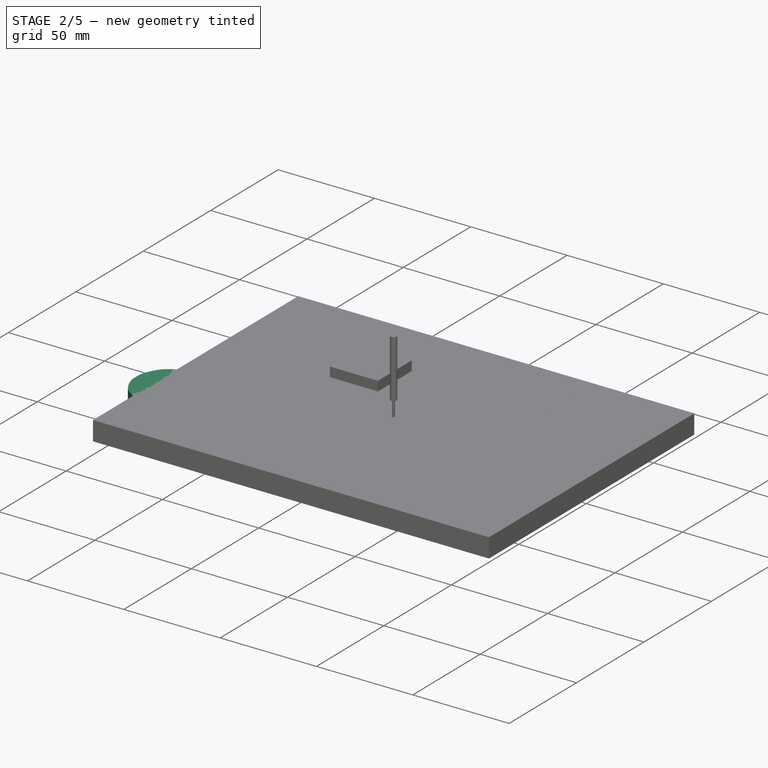
[diagram: stage 2 of 5 — iso view after this stage's code; geometry added in this stage tinted green]
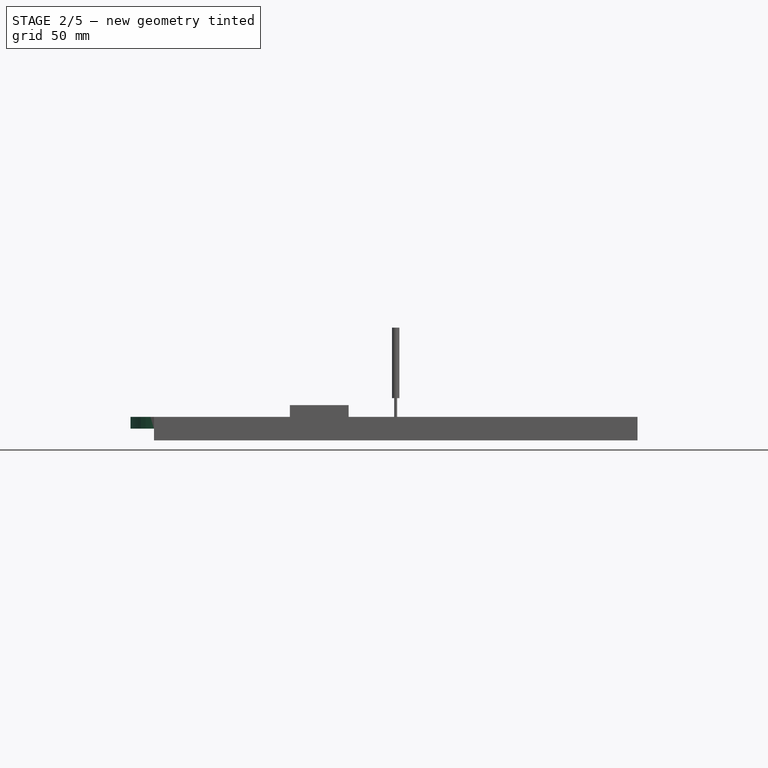
[diagram: stage 2 of 5 — front view after this stage's code; geometry added in this stage tinted green]
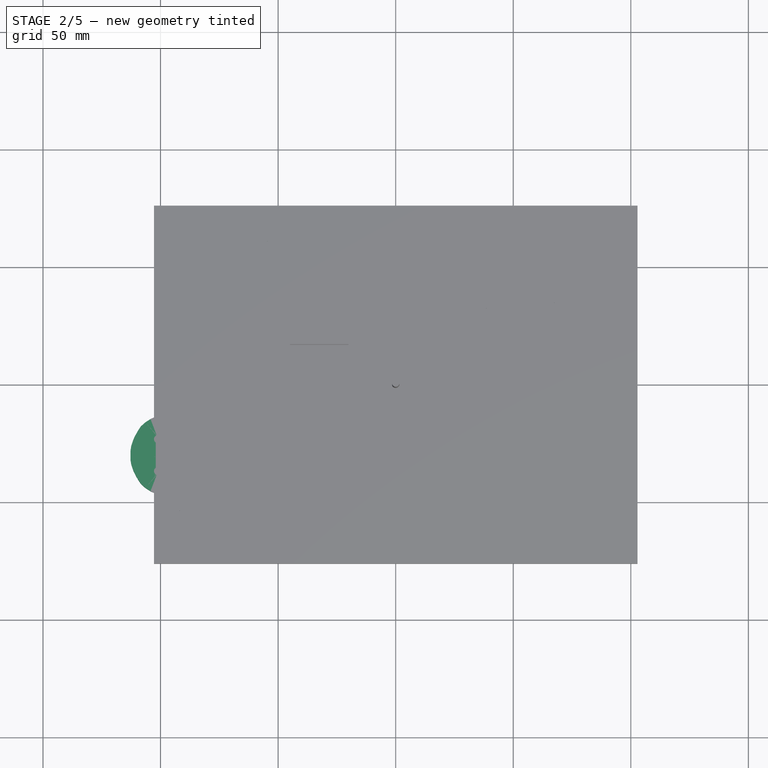
[diagram: stage 2 of 5 — top view after this stage's code; geometry added in this stage tinted green]
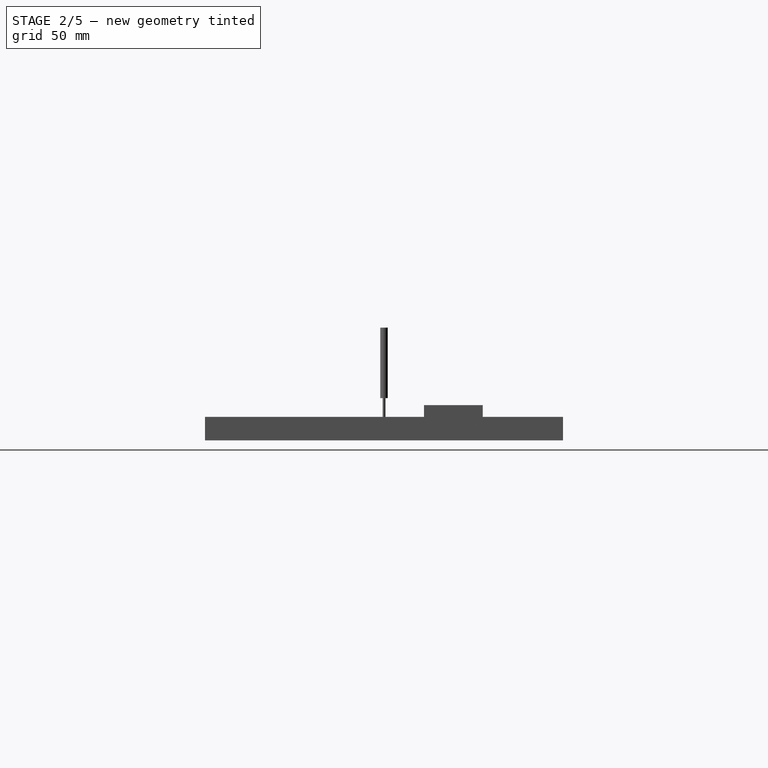
[diagram: stage 2 of 5 — right view after this stage's code; geometry added in this stage tinted green]
FEATURE [Sketcher::SketchObject] Sketch017
  ArcFitTolerance = 1e-06
  AttachmentSupport = -> [XY_Plane009]
  FullyConstrained = false
  MakeInternals = false
  MapMode = 5
  sketch-geometry (127):
    g0: LineSegment StartX=0 StartY=22.764 StartZ=0 EndX=-1.99102 EndY=22.764 EndZ=0
    g1: LineSegment StartX=-1.99102 StartY=22.764 StartZ=0 EndX=-4.07261 EndY=22.4239 EndZ=0
    g2: LineSegment StartX=-4.07261 StartY=22.4239 StartZ=0 EndX=-6.3927 EndY=21.6467 EndZ=0
    g3: LineSegment StartX=-6.3927 StartY=21.6467 StartZ=0 EndX=-8.17497 EndY=20.8304 EndZ=0
    g4: LineSegment StartX=-8.17497 StartY=20.8304 StartZ=0 EndX=-10.2566 EndY=19.6603 EndZ=0
    g5: LineSegment StartX=-10.2566 StartY=19.6603 StartZ=0 EndX=-12.2837 EndY=18.3406 EndZ=0
    g6: LineSegment StartX=-12.2837 StartY=18.3406 StartZ=0 EndX=-13.9624 EndY=16.4178 EndZ=0
    g7: LineSegment StartX=-13.9624 StartY=16.4178 StartZ=0 EndX=-15.3637 EndY=14.2818 EndZ=0
    g8: LineSegment StartX=-15.3637 StartY=14.2818 StartZ=0 EndX=-16.0452 EndY=12.8064 EndZ=0
    g9: LineSegment StartX=-16.0452 StartY=12.8064 StartZ=0 EndX=-16.5622 EndY=11.2827 EndZ=0
    g10: LineSegment StartX=-16.5622 StartY=11.2827 StartZ=0 EndX=-16.916 EndY=9.73169 EndZ=0
    g11: LineSegment StartX=-16.916 StartY=9.73169 StartZ=0 EndX=-17.1609 EndY=8.27594 EndZ=0
    g12: LineSegment StartX=-17.1609 StartY=8.27594 StartZ=0 EndX=-17.2846 EndY=4.90729 EndZ=0
    g13: LineSegment StartX=-17.2846 StartY=4.90729 StartZ=0 EndX=-17.3918 EndY=4.5569 EndZ=0
    g14: LineSegment StartX=-17.3918 StartY=4.5569 StartZ=0 EndX=-17.4958 EndY=4.28514 EndZ=0
    g15: LineSegment StartX=-17.4958 StartY=4.28514 StartZ=0 EndX=-17.6165 EndY=4.09727 EndZ=0
    g16: LineSegment StartX=-17.6165 StartY=4.09727 StartZ=0 EndX=-17.7608 EndY=3.91945 EndZ=0
    g17: LineSegment StartX=-17.7608 StartY=3.91945 StartZ=0 EndX=-17.9755 EndY=3.81545 EndZ=0
    g18: LineSegment StartX=-17.9755 StartY=3.81545 StartZ=0 EndX=-18.2439 EndY=3.74499 EndZ=0
    g19: LineSegment StartX=-18.2439 StartY=3.74499 StartZ=0 EndX=-18.5811 EndY=3.71799 EndZ=0
    g20: LineSegment StartX=-18.5811 StartY=3.71799 StartZ=0 EndX=-18.864 EndY=3.70425 EndZ=0
    g21: LineSegment StartX=-18.864 StartY=3.70425 StartZ=0 EndX=-19.3035 EndY=3.72348 EndZ=0
    g22: LineSegment StartX=-19.3035 StartY=3.72348 StartZ=0 EndX=-19.7128 EndY=3.72348 EndZ=0
    g23: LineSegment StartX=-19.7128 StartY=3.72348 StartZ=0 EndX=-20.1413 EndY=3.70151 EndZ=0
    g24: LineSegment StartX=-20.1413 StartY=3.70151 StartZ=0 EndX=-20.5121 EndY=3.64932 EndZ=0
    g25: LineSegment StartX=-20.5121 StartY=3.64932 StartZ=0 EndX=-20.9918 EndY=3.54452 EndZ=0
    g26: LineSegment StartX=-20.9918 StartY=3.54452 StartZ=0 EndX=-21.3984 EndY=3.44838 EndZ=0
    g27: LineSegment StartX=-21.3984 StartY=3.44838 StartZ=0 EndX=-21.9202 EndY=3.25611 EndZ=0
    g28: LineSegment StartX=-21.9202 StartY=3.25611 StartZ=0 EndX=-22.3103 EndY=3.06108 EndZ=0
    g29: LineSegment StartX=-22.3103 StartY=3.06108 StartZ=0 EndX=-22.7158 EndY=2.77458 EndZ=0
    g30: LineSegment StartX=-22.7158 StartY=2.77458 StartZ=0 EndX=-23.0619 EndY=2.44222 EndZ=0
    g31: LineSegment StartX=-23.0619 StartY=2.44222 StartZ=0 EndX=-23.3563 EndY=2.11436 EndZ=0
    g32: LineSegment StartX=-23.3563 StartY=2.11436 StartZ=0 EndX=-23.5815 EndY=1.81221 EndZ=0
    g33: LineSegment StartX=-23.5815 StartY=1.81221 StartZ=0 EndX=-23.7467 EndY=1.47898 EndZ=0
    g34: LineSegment StartX=-23.7467 StartY=1.47898 StartZ=0 EndX=-23.9252 EndY=1.023 EndZ=0
    g35: LineSegment StartX=-23.9252 StartY=1.023 StartZ=0 EndX=-24.019 EndY=0.620725 EndZ=0
    g36: LineSegment StartX=-24.019 StartY=0.620725 StartZ=0 EndX=-24.0821 EndY=0.162005 EndZ=0
    g37: LineSegment StartX=-24.0821 StartY=0.162005 StartZ=0 EndX=-24.1091 EndY=-0.371894 EndZ=0
    g38: LineSegment StartX=-24.1091 StartY=-0.371894 StartZ=0 EndX=-24.0886 EndY=-0.826749 EndZ=0
    g39: LineSegment StartX=-24.0886 StartY=-0.826749 StartZ=0 EndX=-24.0388 EndY=-1.36101 EndZ=0
    g40: LineSegment StartX=-24.0388 StartY=-1.36101 StartZ=0 EndX=-23.9446 EndY=-1.83636 EndZ=0
    g41: LineSegment StartX=-23.9446 StartY=-1.83636 StartZ=0 EndX=-23.8297 EndY=-2.27704 EndZ=0
    g42: LineSegment StartX=-23.8297 StartY=-2.27704 StartZ=0 EndX=-23.6617 EndY=-2.75238 EndZ=0
    g43: LineSegment StartX=-23.6617 StartY=-2.75238 StartZ=0 EndX=-23.4445 EndY=-3.19904 EndZ=0
    g44: LineSegment StartX=-23.4445 StartY=-3.19904 StartZ=0 EndX=-23.1781 EndY=-3.6539 EndZ=0
    g45: LineSegment StartX=-23.1781 StartY=-3.6539 StartZ=0 EndX=-22.8741 EndY=-4.1274 EndZ=0
    g46: LineSegment StartX=-22.8741 StartY=-4.1274 StartZ=0 EndX=-22.5217 EndY=-4.61914 EndZ=0
    g47: LineSegment StartX=-22.5217 StartY=-4.61914 StartZ=0 EndX=-22.116 EndY=-5.0576 EndZ=0
    g48: LineSegment StartX=-22.116 StartY=-5.0576 StartZ=0 EndX=-21.7513 EndY=-5.44689 EndZ=0
    g49: LineSegment StartX=-21.7513 StartY=-5.44689 StartZ=0 EndX=-21.041 EndY=-6.06755 EndZ=0
    g50: LineSegment StartX=-21.041 StartY=-6.06755 StartZ=0 EndX=-20.2707 EndY=-6.65353 EndZ=0
    g51: LineSegment StartX=-20.2707 StartY=-6.65353 StartZ=0 EndX=-19.8843 EndY=-6.92972 EndZ=0
    g52: LineSegment StartX=-19.8843 StartY=-6.92972 StartZ=0 EndX=-19.5606 EndY=-7.18788 EndZ=0
    g53: LineSegment StartX=-19.5606 StartY=-7.18788 StartZ=0 EndX=-19.1467 EndY=-7.56898 EndZ=0
    g54: LineSegment StartX=-19.1467 StartY=-7.56898 StartZ=0 EndX=-18.8464 EndY=-7.86544 EndZ=0
    g55: LineSegment StartX=-18.8464 StartY=-7.86544 StartZ=0 EndX=-18.6866 EndY=-8.21785 EndZ=0
    g56: LineSegment StartX=-18.6866 StartY=-8.21785 StartZ=0 EndX=-18.621 EndY=-8.43504 EndZ=0
    g57: LineSegment StartX=-18.621 StartY=-8.43504 StartZ=0 EndX=-18.4817 EndY=-8.96775 EndZ=0
    g58: LineSegment StartX=-18.4817 StartY=-8.96775 StartZ=0 EndX=-18.4817 EndY=-9.40253 EndZ=0
    g59: LineSegment StartX=-18.4817 StartY=-9.40253 StartZ=0 EndX=-18.4975 EndY=-9.82758 EndZ=0
    g60: LineSegment StartX=-18.4975 StartY=-9.82758 StartZ=0 EndX=-18.5786 EndY=-10.4 EndZ=0
    g61: LineSegment StartX=-18.5786 StartY=-10.4 StartZ=0 EndX=-18.6641 EndY=-10.888 EndZ=0
    g62: LineSegment StartX=-18.6641 StartY=-10.888 StartZ=0 EndX=-19.8704 EndY=-16.4561 EndZ=0
    g63: LineSegment StartX=-19.8704 StartY=-16.4561 StartZ=0 EndX=-20.2764 EndY=-17.6536 EndZ=0
    g64: LineSegment StartX=-20.2764 StartY=-17.6536 StartZ=0 EndX=-20.6011 EndY=-18.3437 EndZ=0
    g65: LineSegment StartX=-20.6011 StartY=-18.3437 StartZ=0 EndX=-21.4642 EndY=-20.068 EndZ=0
    g66: LineSegment StartX=-21.4642 StartY=-20.068 StartZ=0 EndX=-22.0167 EndY=-21.1656 EndZ=0
    g67: LineSegment StartX=-22.0167 StartY=-21.1656 StartZ=0 EndX=-22.2332 EndY=-21.5912 EndZ=0
    g68: LineSegment StartX=-22.2332 StartY=-21.5912 StartZ=0 EndX=-22.3751 EndY=-22.0019 EndZ=0
    g69: LineSegment StartX=-22.3751 StartY=-22.0019 StartZ=0 EndX=-22.3751 EndY=-22.4439 EndZ=0
    g70: LineSegment StartX=-22.3751 StartY=-22.4439 StartZ=0 EndX=-22.2996 EndY=-22.7996 EndZ=0
    g71: LineSegment StartX=-22.2996 StartY=-22.7996 StartZ=0 EndX=-22.1251 EndY=-23.0378 EndZ=0
    g72: LineSegment StartX=-22.1251 StartY=-23.0378 StartZ=0 EndX=-21.8802 EndY=-23.2995 EndZ=0
    g73: LineSegment StartX=-21.8802 StartY=-23.2995 StartZ=0 EndX=-21.3421 EndY=-23.6328 EndZ=0
    g74: LineSegment StartX=-21.3421 StartY=-23.6328 StartZ=0 EndX=-21.0603 EndY=-23.7334 EndZ=0
    g75: LineSegment StartX=-21.0603 StartY=-23.7334 StartZ=0 EndX=-20.765 EndY=-23.7972 EndZ=0
    g76: LineSegment StartX=-20.765 StartY=-23.7972 StartZ=0 EndX=-20.2618 EndY=-23.8408 EndZ=0
    g77: LineSegment StartX=-20.2618 StartY=-23.8408 StartZ=0 EndX=-19.7183 EndY=-23.8408 EndZ=0
    g78: LineSegment StartX=-19.7183 StartY=-23.8408 StartZ=0 EndX=-19.0525 EndY=-23.7972 EndZ=0
    g79: LineSegment StartX=-19.0525 StartY=-23.7972 StartZ=0 EndX=-18.2708 EndY=-23.6765 EndZ=0
    g80: LineSegment StartX=-18.2708 StartY=-23.6765 StartZ=0 EndX=-17.6769 EndY=-23.5926 EndZ=0
    g81: LineSegment StartX=-17.6769 StartY=-23.5926 StartZ=0 EndX=-17.2827 EndY=-23.5285 EndZ=0
    g82: LineSegment StartX=-17.2827 StartY=-23.5285 StartZ=0 EndX=-16.974 EndY=-23.505 EndZ=0
    g83: LineSegment StartX=-16.974 StartY=-23.505 StartZ=0 EndX=-16.7627 EndY=-23.5788 EndZ=0
    g84: LineSegment StartX=-16.7627 StartY=-23.5788 StartZ=0 EndX=-16.5916 EndY=-23.7163 EndZ=0
    g85: LineSegment StartX=-16.5916 StartY=-23.7163 StartZ=0 EndX=-16.0972 EndY=-24.2139 EndZ=0
    g86: LineSegment StartX=-16.0972 StartY=-24.2139 StartZ=0 EndX=-15.6476 EndY=-24.8011 EndZ=0
    g87: LineSegment StartX=-15.6476 StartY=-24.8011 StartZ=0 EndX=-15.3416 EndY=-25.1409 EndZ=0
    g88: LineSegment StartX=-15.3416 StartY=-25.1409 StartZ=0 EndX=-15.043 EndY=-25.4294 EndZ=0
    g89: LineSegment StartX=-15.043 StartY=-25.4294 StartZ=0 EndX=-14.3941 EndY=-26.0415 EndZ=0
    g90: LineSegment StartX=-14.3941 StartY=-26.0415 StartZ=0 EndX=-13.901 EndY=-26.387 EndZ=0
    g91: LineSegment StartX=-13.901 StartY=-26.387 StartZ=0 EndX=-13.5104 EndY=-26.6068 EndZ=0
    g92: LineSegment StartX=-13.5104 StartY=-26.6068 StartZ=0 EndX=-13.0407 EndY=-26.7645 EndZ=0
    g93: LineSegment StartX=-13.0407 StartY=-26.7645 StartZ=0 EndX=-12.6314 EndY=-26.8282 EndZ=0
    g94: LineSegment StartX=-12.6314 StartY=-26.8282 StartZ=0 EndX=-12.2322 EndY=-26.8282 EndZ=0
    g95: LineSegment StartX=-12.2322 StartY=-26.8282 StartZ=0 EndX=-11.276 EndY=-26.7242 EndZ=0
    g96: LineSegment StartX=-11.276 StartY=-26.7242 StartZ=0 EndX=-10.7908 EndY=-26.6634 EndZ=0
    g97: LineSegment StartX=-10.7908 StartY=-26.6634 StartZ=0 EndX=-10.415 EndY=-26.5795 EndZ=0
    g98: LineSegment StartX=-10.415 StartY=-26.5795 StartZ=0 EndX=-10.0963 EndY=-26.4319 EndZ=0
    g99: LineSegment StartX=-10.0963 StartY=-26.4319 StartZ=0 EndX=-9.78092 EndY=-26.2138 EndZ=0
    g100: LineSegment StartX=-9.78092 StartY=-26.2138 StartZ=0 EndX=-9.24321 EndY=-25.7804 EndZ=0
    g101: LineSegment StartX=-9.24321 StartY=-25.7804 StartZ=0 EndX=-8.77016 EndY=-25.2235 EndZ=0
    g102: LineSegment StartX=-8.77016 StartY=-25.2235 StartZ=0 EndX=-8.19855 EndY=-24.5672 EndZ=0
    g103: LineSegment StartX=-8.19855 StartY=-24.5672 StartZ=0 EndX=-7.83957 EndY=-24.1847 EndZ=0
    g104: LineSegment StartX=-7.83957 StartY=-24.1847 StartZ=0 EndX=-7.51413 EndY=-23.8962 EndZ=0
    g105: LineSegment StartX=-7.51413 StartY=-23.8962 StartZ=0 EndX=-6.97545 EndY=-23.5791 EndZ=0
    g106: LineSegment StartX=-6.97545 StartY=-23.5791 StartZ=0 EndX=-6.45058 EndY=-23.3987 EndZ=0
    g107: LineSegment StartX=-6.45058 StartY=-23.3987 StartZ=0 EndX=-5.83406 EndY=-23.3477 EndZ=0
    g108: LineSegment StartX=-5.83406 StartY=-23.3477 StartZ=0 EndX=-5.4214 EndY=-23.3477 EndZ=0
    g109: LineSegment StartX=-5.4214 StartY=-23.3477 StartZ=0 EndX=-5.1228 EndY=-23.3947 EndZ=0
    g110: LineSegment StartX=-5.1228 StartY=-23.3947 StartZ=0 EndX=-4.82085 EndY=-23.4685 EndZ=0
    g111: LineSegment StartX=-4.82085 StartY=-23.4685 StartZ=0 EndX=-4.61462 EndY=-23.5423 EndZ=0
    g112: LineSegment StartX=-4.61462 StartY=-23.5423 StartZ=0 EndX=-4.37306 EndY=-23.6497 EndZ=0
    g113: LineSegment StartX=-4.37306 StartY=-23.6497 StartZ=0 EndX=-4.15499 EndY=-23.7839 EndZ=0
    g114: LineSegment StartX=-4.15499 StartY=-23.7839 StartZ=0 EndX=-3.95369 EndY=-23.9315 EndZ=0
    g115: LineSegment StartX=-3.95369 StartY=-23.9315 StartZ=0 EndX=-3.52335 EndY=-24.3449 EndZ=0
    g116: LineSegment StartX=-3.52335 StartY=-24.3449 StartZ=0 EndX=-3.20417 EndY=-24.6706 EndZ=0
    g117: LineSegment StartX=-3.20417 StartY=-24.6706 StartZ=0 EndX=-2.94891 EndY=-24.9008 EndZ=0
    g118: LineSegment StartX=-2.94891 StartY=-24.9008 StartZ=0 EndX=-2.58421 EndY=-25.1438 EndZ=0
    g119: LineSegment StartX=-2.58421 StartY=-25.1438 StartZ=0 EndX=-2.23811 EndY=-25.3471 EndZ=0
    g120: LineSegment StartX=-2.23811 StartY=-25.3471 StartZ=0 EndX=-1.96228 EndY=-25.4768 EndZ=0
    g121: LineSegment StartX=-1.96228 StartY=-25.4768 StartZ=0 EndX=-1.77 EndY=-25.5482 EndZ=0
    g122: LineSegment StartX=-1.77 StartY=-25.5482 StartZ=0 EndX=-1.44862 EndY=-25.6361 EndZ=0
    g123: LineSegment StartX=-1.44862 StartY=-25.6361 StartZ=0 EndX=-1.05033 EndY=-25.7075 EndZ=0
    g124: LineSegment StartX=-1.05033 StartY=-25.7075 StartZ=0 EndX=-0.48349 EndY=-25.76 EndZ=0
    g125: LineSegment StartX=-0.48349 StartY=-25.76 StartZ=0 EndX=0 EndY=-25.7792 EndZ=0
    g126: LineSegment StartX=0 StartY=-25.7792 StartZ=0 EndX=0 EndY=22.764 EndZ=0
  constraints (135):
    c: PointOnObject(g0,g-2)
    c: Horizontal(g0)
    c: Coincident(g0,g1)
    c: Coincident(g1,g2)
    c: Coincident(g2,g3)
    c: Coincident(g3,g4)
    c: Coincident(g4,g5)
    c: Coincident(g5,g6)
    c: Coincident(g6,g7)
    c: Coincident(g7,g8)
    c: Coincident(g8,g9)
    c: Coincident(g9,g10)
    c: Coincident(g10,g11)
    c: Coincident(g11,g12)
    c: Coincident(g12,g13)
    c: Coincident(g13,g14)
    c: Coincident(g14,g15)
    c: Coincident(g15,g16)
    c: Coincident(g16,g17)
    c: Coincident(g17,g18)
    c: Coincident(g18,g19)
    c: Coincident(g19,g20)
    c: Coincident(g20,g21)
    c: Coincident(g21,g22)
    c: Horizontal(g22)
    c: Coincident(g22,g23)
    c: Coincident(g23,g24)
    c: Coincident(g24,g25)
    c: Coincident(g25,g26)
    c: Coincident(g26,g27)
    c: Coincident(g27,g28)
    c: Coincident(g28,g29)
    c: Coincident(g29,g30)
    c: Coincident(g30,g31)
    c: Coincident(g31,g32)
    c: Coincident(g32,g33)
    c: Coincident(g33,g34)
    c: Coincident(g34,g35)
    c: Coincident(g35,g36)
    c: Coincident(g36,g37)
    c: Coincident(g37,g38)
    c: Coincident(g38,g39)
    c: Coincident(g39,g40)
    c: Coincident(g40,g41)
    c: Coincident(g41,g42)
    c: Coincident(g42,g43)
    c: Coincident(g43,g44)
    c: Coincident(g44,g45)
    c: Coincident(g45,g46)
    c: Coincident(g46,g47)
    c: Coincident(g47,g48)
    c: Coincident(g48,g49)
    c: Coincident(g49,g50)
    c: Coincident(g50,g51)
    c: Coincident(g51,g52)
    c: Coincident(g52,g53)
    c: Coincident(g53,g54)
    c: Coincident(g54,g55)
    c: Coincident(g55,g56)
    c: Coincident(g56,g57)
    c: Coincident(g57,g58)
    c: Vertical(g58)
    c: Coincident(g58,g59)
    c: Coincident(g59,g60)
    c: Coincident(g60,g61)
    c: Coincident(g61,g62)
    c: Coincident(g62,g63)
    c: Coincident(g63,g64)
    c: Coincident(g64,g65)
    c: Coincident(g65,g66)
    c: Coincident(g66,g67)
    c: Coincident(g67,g68)
    c: Coincident(g68,g69)
    c: Vertical(g69)
    c: Coincident(g69,g70)
    c: Coincident(g70,g71)
    c: Coincident(g71,g72)
    c: Coincident(g72,g73)
    c: Coincident(g73,g74)
    c: Coincident(g74,g75)
    c: Coincident(g75,g76)
    c: Coincident(g76,g77)
    c: Horizontal(g77)
    c: Coincident(g77,g78)
    c: Coincident(g78,g79)
    c: Coincident(g79,g80)
    c: Coincident(g80,g81)
    c: Coincident(g81,g82)
    c: Coincident(g82,g83)
    c: Coincident(g83,g84)
    c: Coincident(g84,g85)
    c: Coincident(g85,g86)
    c: Coincident(g86,g87)
    c: Coincident(g87,g88)
    c: Coincident(g88,g89)
    c: Coincident(g89,g90)
    c: Coincident(g90,g91)
    c: Coincident(g91,g92)
    c: Coincident(g92,g93)
    c: Coincident(g93,g94)
    c: Horizontal(g94)
    c: Coincident(g94,g95)
    c: Coincident(g95,g96)
    c: Coincident(g96,g97)
    c: Coincident(g97,g98)
    c: Coincident(g98,g99)
    c: Coincident(g99,g100)
    c: Coincident(g100,g101)
    c: Coincident(g101,g102)
    c: Coincident(g102,g103)
    c: Coincident(g103,g104)
    c: Coincident(g104,g105)
    c: Coincident(g105,g106)
    c: Coincident(g106,g107)
    c: Coincident(g107,g108)
    c: Horizontal(g108)
    c: Coincident(g108,g109)
    c: Coincident(g109,g110)
    c: Coincident(g110,g111)
    c: Coincident(g111,g112)
    c: Coincident(g112,g113)
    c: Coincident(g113,g114)
    c: Coincident(g114,g115)
    c: Coincident(g115,g116)
    c: Coincident(g116,g117)
    c: Coincident(g117,g118)
    c: Coincident(g118,g119)
    c: Coincident(g119,g120)
    c: Coincident(g120,g121)
    c: Coincident(g121,g122)
    c: Coincident(g122,g123)
    c: Coincident(g123,g124)
    c: Coincident(g124,g125)
    c: PointOnObject(g125,g-2)
    c: Coincident(g125,g126)
FEATURE [PartDesign::Pad] Pad009
  Direction = (0,0,1)
  Length = 5
  Length2 = 10
  Profile = -> Sketch017
  ReferenceAxis = -> Sketch017 [N_Axis]
  Refine = true
  Suppressed = false
  Type = 0
FEATURE [Sketcher::SketchObject] Sketch018
  ArcFitTolerance = 1e-06
  AttachmentSupport = -> [Pad009]
  FullyConstrained = false
  MakeInternals = false
  MapMode = 5
  Placement = pos=(0,0,5) rot=(0,0,1;0rad)
  sketch-geometry (112):
    g0: Ellipse CenterX=-6.84184 CenterY=9.93713 CenterZ=0 NormalX=0 NormalY=0 NormalZ=1 MajorRadius=2.85356 MinorRadius=2.13212 AngleXU=1.52735
    g1: LineSegment [constr] StartX=-6.71789 StartY=12.788 StartZ=0 EndX=-6.96579 EndY=7.08626 EndZ=0
    g2: LineSegment [constr] StartX=-8.97195 StartY=10.0297 StartZ=0 EndX=-4.71174 EndY=9.84451 EndZ=0
    g3: GeomPoint [constr] X=-6.75946 Y=11.8319 Z=0
    g4: GeomPoint [constr] X=-6.92422 Y=8.04237 Z=0
    g5: LineSegment StartX=0 StartY=2.1596 StartZ=0 EndX=-0.250505 EndY=2.17189 EndZ=0
    g6: LineSegment StartX=-0.250505 StartY=2.17189 StartZ=0 EndX=-0.510897 EndY=2.18637 EndZ=0
    g7: LineSegment StartX=-0.510897 StartY=2.18637 StartZ=0 EndX=-0.770086 EndY=2.2271 EndZ=0
    g8: LineSegment StartX=-0.770086 StartY=2.2271 StartZ=0 EndX=-0.944502 EndY=2.28892 EndZ=0
    g9: LineSegment StartX=-0.944502 StartY=2.28892 StartZ=0 EndX=-1.09261 EndY=2.35927 EndZ=0
    g10: LineSegment StartX=-1.09261 StartY=2.35927 StartZ=0 EndX=-1.19258 EndY=2.41605 EndZ=0
    g11: LineSegment StartX=-1.19258 StartY=2.41605 StartZ=0 EndX=-1.28762 EndY=2.48393 EndZ=0
    g12: LineSegment StartX=-1.28762 StartY=2.48393 StartZ=0 EndX=-1.38204 EndY=2.5709 EndZ=0
    g13: LineSegment StartX=-1.38204 StartY=2.5709 StartZ=0 EndX=-1.47338 EndY=2.66964 EndZ=0
    g14: LineSegment StartX=-1.47338 StartY=2.66964 StartZ=0 EndX=-1.56347 EndY=2.76837 EndZ=0
    g15: LineSegment StartX=-1.56347 StartY=2.76837 StartZ=0 EndX=-1.65604 EndY=2.88686 EndZ=0
    g16: LineSegment StartX=-1.65604 StartY=2.88686 StartZ=0 EndX=-1.78485 EndY=3.10862 EndZ=0
    g17: LineSegment StartX=-1.78485 StartY=3.10862 StartZ=0 EndX=-1.92185 EndY=3.30117 EndZ=0
    g18: LineSegment StartX=-1.92185 StartY=3.30117 StartZ=0 EndX=-2.06131 EndY=3.49124 EndZ=0
    g19: LineSegment StartX=-2.06131 StartY=3.49124 StartZ=0 EndX=-2.14277 EndY=3.57517 EndZ=0
    g20: LineSegment StartX=-2.14277 StartY=3.57517 StartZ=0 EndX=-2.21806 EndY=3.63317 EndZ=0
    g21: LineSegment StartX=-2.21806 StartY=3.63317 StartZ=0 EndX=-2.42738 EndY=3.7165 EndZ=0
    g22: LineSegment StartX=-2.42738 StartY=3.7165 StartZ=0 EndX=-2.60018 EndY=3.75353 EndZ=0
    g23: LineSegment StartX=-2.60018 StartY=3.75353 StartZ=0 EndX=-2.73471 EndY=3.76464 EndZ=0
    g24: LineSegment StartX=-2.73471 StartY=3.76464 StartZ=0 EndX=-2.85196 EndY=3.76464 EndZ=0
    g25: LineSegment StartX=-2.85196 StartY=3.76464 StartZ=0 EndX=-2.96952 EndY=3.75115 EndZ=0
    g26: LineSegment StartX=-2.96952 StartY=3.75115 StartZ=0 EndX=-3.09295 EndY=3.72276 EndZ=0
    g27: LineSegment StartX=-3.09295 StartY=3.72276 StartZ=0 EndX=-3.40767 EndY=3.64501 EndZ=0
    g28: LineSegment StartX=-3.40767 StartY=3.64501 StartZ=0 EndX=-3.68236 EndY=3.53747 EndZ=0
    g29: LineSegment StartX=-3.68236 StartY=3.53747 StartZ=0 EndX=-3.84281 EndY=3.45107 EndZ=0
    g30: LineSegment StartX=-3.84281 StartY=3.45107 StartZ=0 EndX=-4.02425 EndY=3.33259 EndZ=0
    g31: LineSegment StartX=-4.02425 StartY=3.33259 StartZ=0 EndX=-4.36036 EndY=3.01489 EndZ=0
    g32: LineSegment StartX=-4.36036 StartY=3.01489 StartZ=0 EndX=-4.53232 EndY=2.84331 EndZ=0
    g33: LineSegment StartX=-4.53232 StartY=2.84331 StartZ=0 EndX=-4.66121 EndY=2.68312 EndZ=0
    g34: LineSegment StartX=-4.66121 StartY=2.68312 StartZ=0 EndX=-4.80667 EndY=2.42166 EndZ=0
    g35: LineSegment StartX=-4.80667 StartY=2.42166 StartZ=0 EndX=-4.8748 EndY=2.35538 EndZ=0
    g36: LineSegment StartX=-4.8748 StartY=2.35538 StartZ=0 EndX=-4.97607 EndY=2.28357 EndZ=0
    g37: LineSegment StartX=-4.97607 StartY=2.28357 StartZ=0 EndX=-5.10311 EndY=2.22833 EndZ=0
    g38: LineSegment StartX=-5.10311 StartY=2.22833 StartZ=0 EndX=-5.24121 EndY=2.1823 EndZ=0
    g39: LineSegment StartX=-5.24121 StartY=2.1823 StartZ=0 EndX=-5.35352 EndY=2.1823 EndZ=0
    g40: LineSegment StartX=-5.35352 StartY=2.1823 StartZ=0 EndX=-5.45847 EndY=2.20071 EndZ=0
    g41: LineSegment StartX=-5.45847 StartY=2.20071 StartZ=0 EndX=-5.61417 EndY=2.29454 EndZ=0
    g42: LineSegment StartX=-5.61417 StartY=2.29454 StartZ=0 EndX=-5.767 EndY=2.43079 EndZ=0
    g43: LineSegment StartX=-5.767 StartY=2.43079 StartZ=0 EndX=-5.92903 EndY=2.74565 EndZ=0
    g44: LineSegment StartX=-5.92903 StartY=2.74565 StartZ=0 EndX=-6.08185 EndY=3.11205 EndZ=0
    g45: LineSegment StartX=-6.08185 StartY=3.11205 StartZ=0 EndX=-6.28441 EndY=3.33426 EndZ=0
    g46: LineSegment StartX=-6.28441 StartY=3.33426 StartZ=0 EndX=-6.4497 EndY=3.46092 EndZ=0
    g47: LineSegment StartX=-6.4497 StartY=3.46092 StartZ=0 EndX=-6.69222 EndY=3.59936 EndZ=0
    g48: LineSegment StartX=-6.69222 StartY=3.59936 StartZ=0 EndX=-6.86098 EndY=3.65292 EndZ=0
    g49: LineSegment StartX=-6.86098 StartY=3.65292 StartZ=0 EndX=-7.00548 EndY=3.68222 EndZ=0
    g50: LineSegment StartX=-7.00548 StartY=3.68222 StartZ=0 EndX=-7.53681 EndY=3.7058 EndZ=0
    g51: LineSegment StartX=-7.53681 StartY=3.7058 StartZ=0 EndX=-8.15226 EndY=3.66948 EndZ=0
    g52: LineSegment StartX=-8.15226 StartY=3.66948 StartZ=0 EndX=-8.44462 EndY=3.59077 EndZ=0
    g53: LineSegment StartX=-8.44462 StartY=3.59077 StartZ=0 EndX=-8.75722 EndY=3.46932 EndZ=0
    g54: LineSegment StartX=-8.75722 StartY=3.46932 StartZ=0 EndX=-8.98436 EndY=3.27142 EndZ=0
    g55: LineSegment StartX=-8.98436 StartY=3.27142 StartZ=0 EndX=-9.17551 EndY=3.05103 EndZ=0
    g56: LineSegment StartX=-9.17551 StartY=3.05103 StartZ=0 EndX=-9.4934 EndY=2.3951 EndZ=0
    g57: LineSegment StartX=-9.4934 StartY=2.3951 StartZ=0 EndX=-9.69378 EndY=1.65213 EndZ=0
    g58: LineSegment StartX=-9.69378 StartY=1.65213 StartZ=0 EndX=-9.80486 EndY=0.869925 EndZ=0
    g59: LineSegment StartX=-9.80486 StartY=0.869925 StartZ=0 EndX=-9.90496 EndY=0.094142 EndZ=0
    g60: LineSegment StartX=-9.90496 StartY=0.094142 StartZ=0 EndX=-10.3412 EndY=-2.83169 EndZ=0
    g61: LineSegment StartX=-10.3412 StartY=-2.83169 StartZ=0 EndX=-10.3013 EndY=-3.11704 EndZ=0
    g62: LineSegment StartX=-10.3013 StartY=-3.11704 StartZ=0 EndX=-10.2455 EndY=-3.37181 EndZ=0
    g63: LineSegment StartX=-10.2455 StartY=-3.37181 StartZ=0 EndX=-10.1279 EndY=-3.55422 EndZ=0
    g64: LineSegment StartX=-10.1279 StartY=-3.55422 StartZ=0 EndX=-9.99224 EndY=-3.74265 EndZ=0
    g65: LineSegment StartX=-9.99224 StartY=-3.74265 StartZ=0 EndX=-9.79295 EndY=-3.87296 EndZ=0
    g66: LineSegment StartX=-9.79295 StartY=-3.87296 StartZ=0 EndX=-9.56381 EndY=-3.98904 EndZ=0
    g67: LineSegment StartX=-9.56381 StartY=-3.98904 StartZ=0 EndX=-9.1794 EndY=-4.15788 EndZ=0
    g68: LineSegment StartX=-9.1794 StartY=-4.15788 StartZ=0 EndX=-9.03549 EndY=-4.16863 EndZ=0
    g69: LineSegment StartX=-9.03549 StartY=-4.16863 StartZ=0 EndX=-8.85459 EndY=-4.15807 EndZ=0
    g70: LineSegment StartX=-8.85459 StartY=-4.15807 StartZ=0 EndX=-8.49507 EndY=-4.07792 EndZ=0
    g71: LineSegment StartX=-8.49507 StartY=-4.07792 StartZ=0 EndX=-8.27028 EndY=-4.00746 EndZ=0
    g72: LineSegment StartX=-8.27028 StartY=-4.00746 StartZ=0 EndX=-7.69658 EndY=-3.729 EndZ=0
    g73: LineSegment StartX=-7.69658 StartY=-3.729 StartZ=0 EndX=-7.32082 EndY=-3.37337 EndZ=0
    g74: LineSegment StartX=-7.32082 StartY=-3.37337 StartZ=0 EndX=-6.93727 EndY=-2.95221 EndZ=0
    g75: LineSegment StartX=-6.93727 StartY=-2.95221 StartZ=0 EndX=-6.66216 EndY=-2.50935 EndZ=0
    g76: LineSegment StartX=-6.66216 StartY=-2.50935 StartZ=0 EndX=-6.51699 EndY=-2.34735 EndZ=0
    g77: LineSegment StartX=-6.51699 StartY=-2.34735 StartZ=0 EndX=-6.37706 EndY=-2.25712 EndZ=0
    g78: LineSegment StartX=-6.37706 StartY=-2.25712 StartZ=0 EndX=-6.25001 EndY=-2.23319 EndZ=0
    g79: LineSegment StartX=-6.25001 StartY=-2.23319 StartZ=0 EndX=-6.11008 EndY=-2.23871 EndZ=0
    g80: LineSegment StartX=-6.11008 StartY=-2.23871 StartZ=0 EndX=-5.96646 EndY=-2.2737 EndZ=0
    g81: LineSegment StartX=-5.96646 StartY=-2.2737 StartZ=0 EndX=-5.85414 EndY=-2.31604 EndZ=0
    g82: LineSegment StartX=-5.85414 StartY=-2.31604 StartZ=0 EndX=-5.71926 EndY=-2.44534 EndZ=0
    g83: LineSegment StartX=-5.71926 StartY=-2.44534 StartZ=0 EndX=-5.61615 EndY=-2.60553 EndZ=0
    g84: LineSegment StartX=-5.61615 StartY=-2.60553 StartZ=0 EndX=-5.49106 EndY=-2.96628 EndZ=0
    g85: LineSegment StartX=-5.49106 StartY=-2.96628 StartZ=0 EndX=-5.378 EndY=-3.34014 EndZ=0
    g86: LineSegment StartX=-5.378 StartY=-3.34014 StartZ=0 EndX=-5.28721 EndY=-3.52187 EndZ=0
    g87: LineSegment StartX=-5.28721 StartY=-3.52187 StartZ=0 EndX=-5.17868 EndY=-3.6907 EndZ=0
    g88: LineSegment StartX=-5.17868 StartY=-3.6907 StartZ=0 EndX=-5.05609 EndY=-3.85417 EndZ=0
    g89: LineSegment StartX=-5.05609 StartY=-3.85417 StartZ=0 EndX=-4.91288 EndY=-4.00643 EndZ=0
    g90: LineSegment StartX=-4.91288 StartY=-4.00643 StartZ=0 EndX=-4.73173 EndY=-4.10176 EndZ=0
    g91: LineSegment StartX=-4.73173 StartY=-4.10176 StartZ=0 EndX=-4.53274 EndY=-4.16959 EndZ=0
    g92: LineSegment StartX=-4.53274 StartY=-4.16959 StartZ=0 EndX=-4.15285 EndY=-4.3113 EndZ=0
    g93: LineSegment StartX=-4.15285 StartY=-4.3113 StartZ=0 EndX=-3.95473 EndY=-4.32799 EndZ=0
    g94: LineSegment StartX=-3.95473 StartY=-4.32799 StartZ=0 EndX=-3.75574 EndY=-4.32799 EndZ=0
    g95: LineSegment StartX=-3.75574 StartY=-4.32799 StartZ=0 EndX=-3.47233 EndY=-4.27825 EndZ=0
    g96: LineSegment StartX=-3.47233 StartY=-4.27825 StartZ=0 EndX=-3.27086 EndY=-4.22713 EndZ=0
    g97: LineSegment StartX=-3.27086 StartY=-4.22713 StartZ=0 EndX=-3.08957 EndY=-4.1667 EndZ=0
    g98: LineSegment StartX=-3.08957 StartY=-4.1667 StartZ=0 EndX=-2.82038 EndY=-3.93871 EndZ=0
    g99: LineSegment StartX=-2.82038 StartY=-3.93871 StartZ=0 EndX=-2.52647 EndY=-3.53767 EndZ=0
    g100: LineSegment StartX=-2.52647 StartY=-3.53767 StartZ=0 EndX=-2.31161 EndY=-3.13562 EndZ=0
    g101: LineSegment StartX=-2.31161 StartY=-3.13562 StartZ=0 EndX=-2.11109 EndY=-2.82248 EndZ=0
    g102: LineSegment StartX=-2.11109 StartY=-2.82248 StartZ=0 EndX=-1.91881 EndY=-2.61922 EndZ=0
    g103: LineSegment StartX=-1.91881 StartY=-2.61922 StartZ=0 EndX=-1.6375 EndY=-2.3401 EndZ=0
    g104: LineSegment StartX=-1.6375 StartY=-2.3401 StartZ=0 EndX=-1.46994 EndY=-2.18628 EndZ=0
    g105: LineSegment StartX=-1.46994 StartY=-2.18628 StartZ=0 EndX=-1.27492 EndY=-2.08739 EndZ=0
    g106: LineSegment StartX=-1.27492 StartY=-2.08739 StartZ=0 EndX=-1.05517 EndY=-1.99126 EndZ=0
    g107: LineSegment StartX=-1.05517 StartY=-1.99126 StartZ=0 EndX=-0.629411 EndY=-1.85391 EndZ=0
    g108: LineSegment StartX=-0.629411 StartY=-1.85391 StartZ=0 EndX=-0.229856 EndY=-1.75175 EndZ=0
    g109: LineSegment StartX=-0.229856 StartY=-1.75175 StartZ=0 EndX=-0.064108 EndY=-1.73807 EndZ=0
    g110: LineSegment StartX=-0.064108 StartY=-1.73807 StartZ=0 EndX=0 EndY=-1.7356 EndZ=0
    g111: LineSegment StartX=0 StartY=-1.7356 StartZ=0 EndX=0 EndY=2.1596 EndZ=0
  constraints (112):
    c: InternalAlignment(g1-g4 -> g0) x4
    c: PointOnObject(g5,g-2)
    c: Coincident(g5,g6)
    c: Coincident(g6,g7)
    c: Coincident(g7,g8)
    c: Coincident(g8,g9)
    c: Coincident(g9,g10)
    c: Coincident(g10,g11)
    c: Coincident(g11,g12)
    c: Coincident(g12,g13)
    c: Coincident(g13,g14)
    c: Coincident(g14,g15)
    c: Coincident(g15,g16)
    c: Coincident(g16,g17)
    c: Coincident(g17,g18)
    c: Coincident(g18,g19)
    c: Coincident(g19,g20)
    c: Coincident(g20,g21)
    c: Coincident(g21,g22)
    c: Coincident(g22,g23)
    c: Coincident(g23,g24)
    c: Horizontal(g24)
    c: Coincident(g24,g25)
    c: Coincident(g25,g26)
    c: Coincident(g26,g27)
    c: Coincident(g27,g28)
    c: Coincident(g28,g29)
    c: Coincident(g29,g30)
    c: Coincident(g30,g31)
    c: Coincident(g31,g32)
    c: Coincident(g32,g33)
    c: Coincident(g33,g34)
    c: Coincident(g34,g35)
    c: Coincident(g35,g36)
    c: Coincident(g36,g37)
    c: Coincident(g37,g38)
    c: Coincident(g38,g39)
    c: Horizontal(g39)
    c: Coincident(g39,g40)
    c: Coincident(g40,g41)
    c: Coincident(g41,g42)
    c: Coincident(g42,g43)
    c: Coincident(g43,g44)
    c: Coincident(g44,g45)
    c: Coincident(g45,g46)
    c: Coincident(g46,g47)
    c: Coincident(g47,g48)
    c: Coincident(g48,g49)
    c: Coincident(g49,g50)
    c: Coincident(g50,g51)
    c: Coincident(g51,g52)
    c: Coincident(g52,g53)
    c: Coincident(g53,g54)
    c: Coincident(g54,g55)
    c: Coincident(g55,g56)
    c: Coincident(g56,g57)
    c: Coincident(g57,g58)
    c: Coincident(g58,g59)
    c: Coincident(g59,g60)
    c: Coincident(g60,g61)
    c: Coincident(g61,g62)
    c: Coincident(g62,g63)
    c: Coincident(g63,g64)
    c: Coincident(g64,g65)
    c: Coincident(g65,g66)
    c: Coincident(g66,g67)
    c: Coincident(g67,g68)
    c: Coincident(g68,g69)
    c: Coincident(g69,g70)
    c: Coincident(g70,g71)
    c: Coincident(g71,g72)
    c: Coincident(g72,g73)
    c: Coincident(g73,g74)
    c: Coincident(g74,g75)
    c: Coincident(g75,g76)
    c: Coincident(g76,g77)
    c: Coincident(g77,g78)
    c: Coincident(g78,g79)
    c: Coincident(g79,g80)
    c: Coincident(g80,g81)
    c: Coincident(g81,g82)
    c: Coincident(g82,g83)
    c: Coincident(g83,g84)
    c: Coincident(g84,g85)
    c: Coincident(g85,g86)
    c: Coincident(g86,g87)
    c: Coincident(g87,g88)
    c: Coincident(g88,g89)
    c: Coincident(g89,g90)
    c: Coincident(g90,g91)
    c: Coincident(g91,g92)
    c: Coincident(g92,g93)
    c: Coincident(g93,g94)
    c: Horizontal(g94)
    c: Coincident(g94,g95)
    c: Coincident(g95,g96)
    c: Coincident(g96,g97)
    c: Coincident(g97,g98)
    c: Coincident(g98,g99)
    c: Coincident(g99,g100)
    c: Coincident(g100,g101)
    c: Coincident(g101,g102)
    c: Coincident(g102,g103)
    c: Coincident(g103,g104)
    c: Coincident(g104,g105)
    c: Coincident(g105,g106)
    c: Coincident(g106,g107)
    c: Coincident(g107,g108)
    c: Coincident(g108,g109)
    c: Coincident(g109,g110)
    c: PointOnObject(g110,g-2)
    c: Coincident(g110,g111)
FEATURE [PartDesign::Pocket] Pocket008
  BaseFeature = -> Pad009
  Direction = (0,0,-1)
  Length = 5
  Length2 = 5
  Profile = -> Sketch018
  ReferenceAxis = -> Sketch018 [N_Axis]
  Refine = true
  Suppressed = false
  Type = 0
FEATURE [PartDesign::Body] Body009  label="Ghost_half008"
  AllowCompound = false
  Group = -> [Sketch017,Pad009,Sketch018,Pocket008]
  Origin = -> Origin009
  Placement = pos=(0,0,-5) rot=(0,0,1;0rad)
  Tip = -> Pocket008
FEATURE [Part::Mirroring] Part__Mirroring008  label="Ghost_mirror008"
  Base = (0,0,0)
  Normal = (1,0,0)
  Source = -> Body009
FEATURE [Part::MultiFuse] Fusion008  label="Ghost_Finel008"
  Placement = pos=(-90,-30,0) rot=(0,0,1;1.5708rad)
  Refine = true
  Shapes = -> [Part__Mirroring008,Body009]
FEATURE [PartDesign::Body] Body012
  AllowCompound = false
  Group = -> [Sketch021,Pad012]
  Origin = -> Origin012
  Placement = pos=(-60,0,-10) rot=(0,0,1;0rad)
  Tip = -> Pad012
FEATURE [Sketcher::SketchObject] Sketch022
  ArcFitTolerance = 1e-06
  AttachmentSupport = -> [XY_Plane013]
  FullyConstrained = true
  MakeInternals = false
  MapMode = 5
  sketch-geometry (4):
    g0: LineSegment StartX=-45 StartY=42 StartZ=0 EndX=-45 EndY=17 EndZ=0
    g1: LineSegment StartX=-45 StartY=17 StartZ=0 EndX=-20 EndY=17 EndZ=0
    g2: LineSegment StartX=-20 StartY=17 StartZ=0 EndX=-20 EndY=42 EndZ=0
    g3: LineSegment StartX=-20 StartY=42 StartZ=0 EndX=-45 EndY=42 EndZ=0
  constraints (12):
    c: Coincident(g0,g1)
    c: Coincident(g1,g2)
    c: Coincident(g2,g3)
    c: Coincident(g3,g0)
    c: Vertical(g0)
    c: Vertical(g2)
    c: Horizontal(g1)
    c: Horizontal(g3)
    c: Distance(g0,g2) = 25
    c: Distance(g1,g3) = 25
    c: Distance(g-2,g0) = 45
    c: Distance(g-1,g3) = 42
FEATURE [PartDesign::Pad] Pad013
  Direction = (0,0,1)
  Length = 5
  Length2 = 10
  Profile = -> Sketch022
  ReferenceAxis = -> Sketch022 [N_Axis]
  Refine = true
  Suppressed = false
  Type = 0
FEATURE [Part::MultiFuse] Fusion017  label="Ghost_Finel009"
  Placement = pos=(90,30,0) rot=(0,0,1;1.5708rad)
  Refine = true
  Shapes = -> [Part__Mirroring009,Body018]
FEATURE [Part::MultiFuse] Fusion018  label="Ghost_Finel010"
  Placement = pos=(30,30,0) rot=(0,0,1;1.5708rad)
  Refine = true
  Shapes = -> [Part__Mirroring010,Body019]
FEATURE [Part::MultiFuse] Fusion019  label="Ghost_Finel011"
  Placement = pos=(-30,30,0) rot=(0,0,1;1.5708rad)
  Refine = true
  Shapes = -> [Part__Mirroring011,Body020]
FEATURE [Part::MultiFuse] Fusion020  label="Ghost_Finel012"
  Placement = pos=(-90,30,0) rot=(0,0,1;1.5708rad)
  Refine = true
  Shapes = -> [Part__Mirroring012,Body021]
FEATURE [Sketcher::SketchObject] Sketch035
  ArcFitTolerance = 1e-06
  AttachmentSupport = -> [XY_Plane022]
  FullyConstrained = true
  MakeInternals = false
  MapMode = 5
  sketch-geometry (4):
    g0: LineSegment StartX=-45 StartY=42 StartZ=0 EndX=-45 EndY=17 EndZ=0
    g1: LineSegment StartX=-45 StartY=17 StartZ=0 EndX=-20 EndY=17 EndZ=0
    g2: LineSegment StartX=-20 StartY=17 StartZ=0 EndX=-20 EndY=42 EndZ=0
    g3: LineSegment StartX=-20 StartY=42 StartZ=0 EndX=-45 EndY=42 EndZ=0
  constraints (12):
    c: Coincident(g0,g1)
    c: Coincident(g1,g2)
    c: Coincident(g2,g3)
    c: Coincident(g3,g0)
    c: Vertical(g0)
    c: Vertical(g2)
    c: Horizontal(g1)
    c: Horizontal(g3)
    c: Distance(g0,g2) = 25
    c: Distance(g1,g3) = 25
    c: Distance(g-2,g0) = 45
    c: Distance(g-1,g3) = 42
FEATURE [PartDesign::Pad] Pad022
  Direction = (0,0,1)
  Length = 5
  Length2 = 10
  Profile = -> Sketch035
  ReferenceAxis = -> Sketch035 [N_Axis]
  Refine = true
  Suppressed = false
  Type = 0
FEATURE [PartDesign::Body] Body022
  AllowCompound = false
  Group = -> [Sketch035,Pad022]
  Origin = -> Origin022
  Placement = pos=(0,0,-10) rot=(0,0,1;0rad)
  Tip = -> Pad022
FEATURE [Part::MultiFuse] Fusion023
  Placement = pos=(2,22,0) rot=(0,0,1;0rad)
  Refine = true
  Shapes = -> [Body022,Fusion019]
FEATURE [Sketcher::SketchObject] Sketch036
  ArcFitTolerance = 1e-06
  AttachmentSupport = -> [XY_Plane023]
  FullyConstrained = true
  MakeInternals = false
  MapMode = 5
  sketch-geometry (4):
    g0: LineSegment StartX=-45 StartY=42 StartZ=0 EndX=-45 EndY=17 EndZ=0
    g1: LineSegment StartX=-45 StartY=17 StartZ=0 EndX=-20 EndY=17 EndZ=0
    g2: LineSegment StartX=-20 StartY=17 StartZ=0 EndX=-20 EndY=42 EndZ=0
    g3: LineSegment StartX=-20 StartY=42 StartZ=0 EndX=-45 EndY=42 EndZ=0
  constraints (12):
    c: Coincident(g0,g1)
    c: Coincident(g1,g2)
    c: Coincident(g2,g3)
    c: Coincident(g3,g0)
    c: Vertical(g0)
    c: Vertical(g2)
    c: Horizontal(g1)
    c: Horizontal(g3)
    c: Distance(g0,g2) = 25
    c: Distance(g1,g3) = 25
    c: Distance(g-2,g0) = 45
    c: Distance(g-1,g3) = 42
FEATURE [PartDesign::Pad] Pad023
  Direction = (0,0,1)
  Length = 5
  Length2 = 10
  Profile = -> Sketch036
  ReferenceAxis = -> Sketch036 [N_Axis]
  Refine = true
  Suppressed = false
  Type = 0
FEATURE [PartDesign::Body] Body023
  AllowCompound = false
  Group = -> [Sketch036,Pad023]
  Origin = -> Origin023
  Placement = pos=(-60,0,-10) rot=(0,0,1;0rad)
  Tip = -> Pad023
FEATURE [Part::MultiFuse] Fusion024
  Placement = pos=(10,22,0) rot=(0,0,1;0rad)
  Refine = true
  Shapes = -> [Body023,Fusion020]
FEATURE [Sketcher::SketchObject] Sketch037
  ArcFitTolerance = 1e-06
  AttachmentSupport = -> [XY_Plane024]
  FullyConstrained = true
  MakeInternals = false
  MapMode = 5
  sketch-geometry (4):
    g0: LineSegment StartX=-45 StartY=42 StartZ=0 EndX=-45 EndY=17 EndZ=0
    g1: LineSegment StartX=-45 StartY=17 StartZ=0 EndX=-20 EndY=17 EndZ=0
    g2: LineSegment StartX=-20 StartY=17 StartZ=0 EndX=-20 EndY=42 EndZ=0
    g3: LineSegment StartX=-20 StartY=42 StartZ=0 EndX=-45 EndY=42 EndZ=0
  constraints (12):
    c: Coincident(g0,g1)
    c: Coincident(g1,g2)
    c: Coincident(g2,g3)
    c: Coincident(g3,g0)
    c: Vertical(g0)
    c: Vertical(g2)
    c: Horizontal(g1)
    c: Horizontal(g3)
    c: Distance(g0,g2) = 25
    c: Distance(g1,g3) = 25
    c: Distance(g-2,g0) = 45
    c: Distance(g-1,g3) = 42
FEATURE [PartDesign::Pad] Pad024
  Direction = (0,0,1)
  Length = 5
  Length2 = 10
  Profile = -> Sketch037
  ReferenceAxis = -> Sketch037 [N_Axis]
  Refine = true
  Suppressed = false
  Type = 0
FEATURE [PartDesign::Body] Body024
  AllowCompound = false
  Group = -> [Sketch037,Pad024]
  Origin = -> Origin024
  Placement = pos=(60,0,-10) rot=(0,0,1;0rad)
  Tip = -> Pad024
FEATURE [Part::MultiFuse] Fusion022
  Placement = pos=(-6,22,0) rot=(0,0,1;0rad)
  Refine = true
  Shapes = -> [Body024,Fusion018]
FEATURE [PartDesign::Body] Body025
  AllowCompound = false
  Group = -> [Sketch038,Pad025]
  Origin = -> Origin025
  Placement = pos=(120,0,-10) rot=(0,0,1;0rad)
  Tip = -> Pad025
FEATURE [Part::MultiFuse] Fusion021
  Placement = pos=(-14,22,0) rot=(0,0,1;0rad)
  Refine = true
  Shapes = -> [Body025,Fusion017]
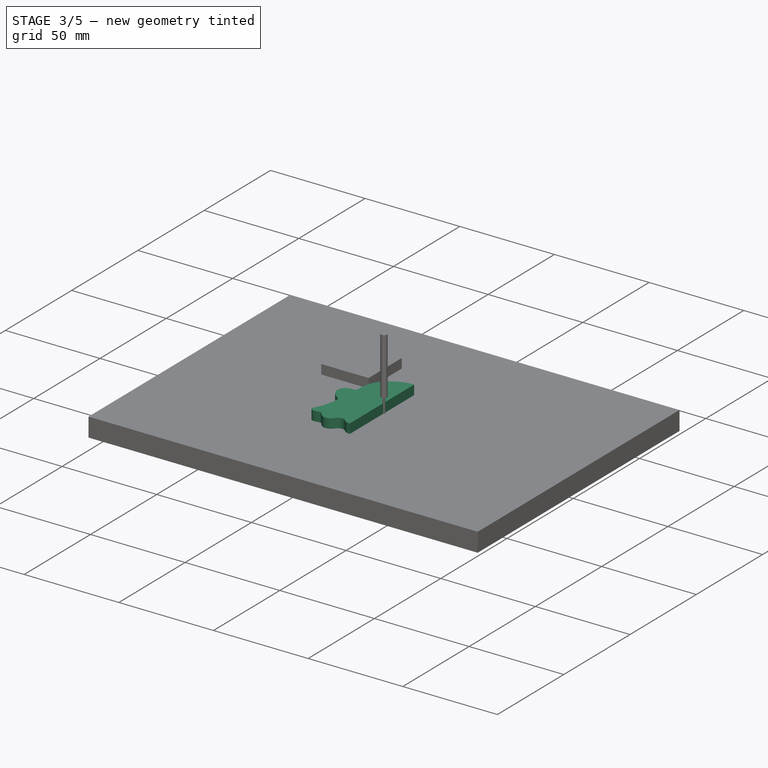
[diagram: stage 3 of 5 — iso view after this stage's code; geometry added in this stage tinted green]
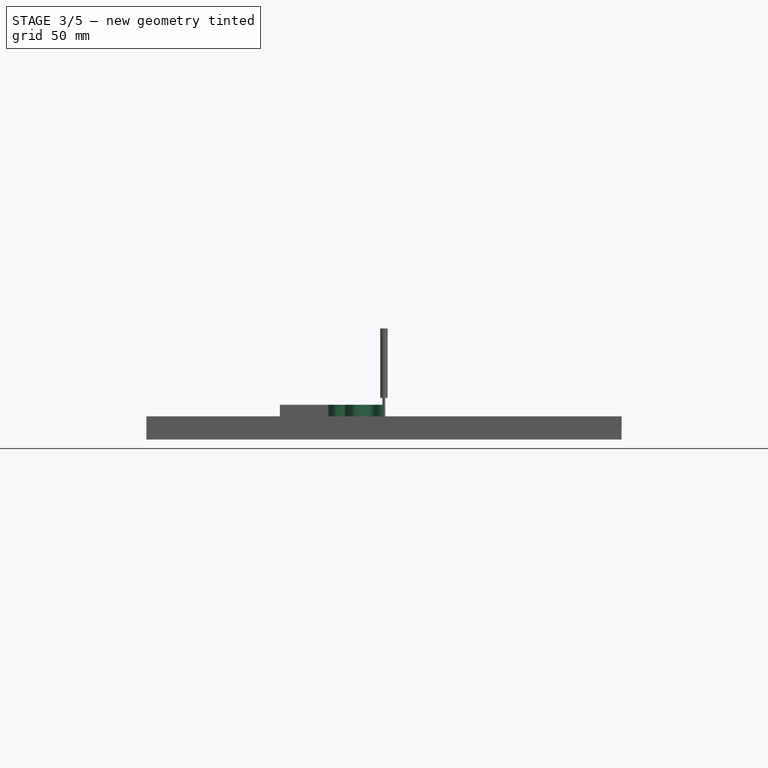
[diagram: stage 3 of 5 — front view after this stage's code; geometry added in this stage tinted green]
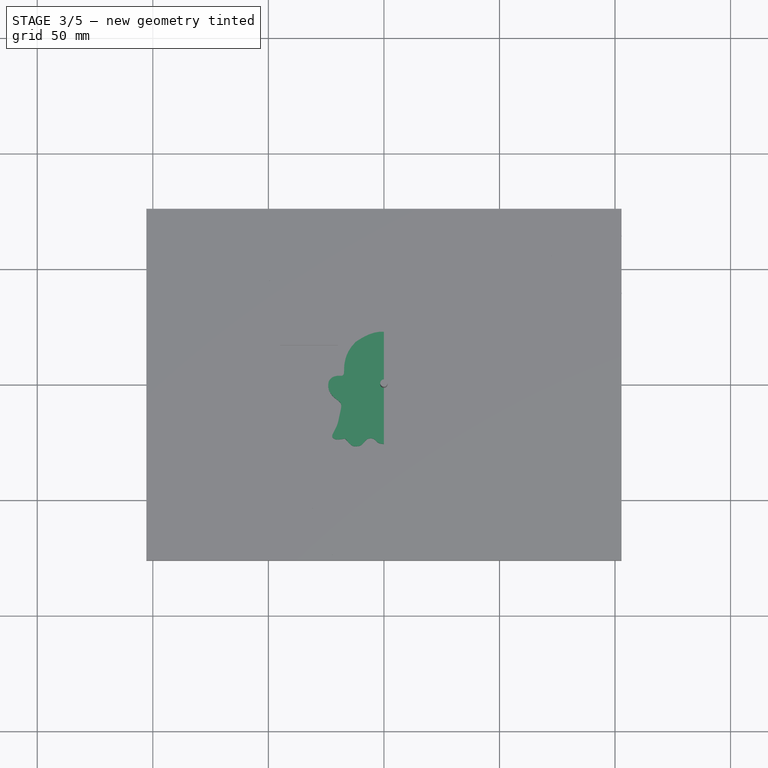
[diagram: stage 3 of 5 — top view after this stage's code; geometry added in this stage tinted green]
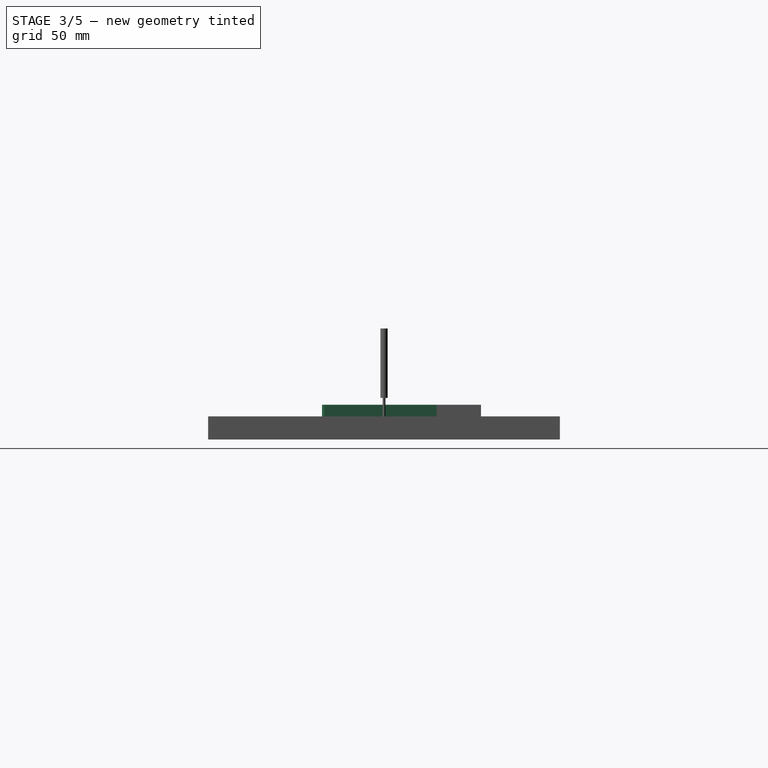
[diagram: stage 3 of 5 — right view after this stage's code; geometry added in this stage tinted green]
FEATURE [Sketcher::SketchObject] Sketch011
  ArcFitTolerance = 1e-06
  AttachmentSupport = -> [XY_Plane006]
  FullyConstrained = false
  MakeInternals = false
  MapMode = 5
  sketch-geometry (127):
    g0: LineSegment StartX=0 StartY=22.764 StartZ=0 EndX=-1.99102 EndY=22.764 EndZ=0
    g1: LineSegment StartX=-1.99102 StartY=22.764 StartZ=0 EndX=-4.07261 EndY=22.4239 EndZ=0
    g2: LineSegment StartX=-4.07261 StartY=22.4239 StartZ=0 EndX=-6.3927 EndY=21.6467 EndZ=0
    g3: LineSegment StartX=-6.3927 StartY=21.6467 StartZ=0 EndX=-8.17497 EndY=20.8304 EndZ=0
    g4: LineSegment StartX=-8.17497 StartY=20.8304 StartZ=0 EndX=-10.2566 EndY=19.6603 EndZ=0
    g5: LineSegment StartX=-10.2566 StartY=19.6603 StartZ=0 EndX=-12.2837 EndY=18.3406 EndZ=0
    g6: LineSegment StartX=-12.2837 StartY=18.3406 StartZ=0 EndX=-13.9624 EndY=16.4178 EndZ=0
    g7: LineSegment StartX=-13.9624 StartY=16.4178 StartZ=0 EndX=-15.3637 EndY=14.2818 EndZ=0
    g8: LineSegment StartX=-15.3637 StartY=14.2818 StartZ=0 EndX=-16.0452 EndY=12.8064 EndZ=0
    g9: LineSegment StartX=-16.0452 StartY=12.8064 StartZ=0 EndX=-16.5622 EndY=11.2827 EndZ=0
    g10: LineSegment StartX=-16.5622 StartY=11.2827 StartZ=0 EndX=-16.916 EndY=9.73169 EndZ=0
    g11: LineSegment StartX=-16.916 StartY=9.73169 StartZ=0 EndX=-17.1609 EndY=8.27594 EndZ=0
    g12: LineSegment StartX=-17.1609 StartY=8.27594 StartZ=0 EndX=-17.2846 EndY=4.90729 EndZ=0
    g13: LineSegment StartX=-17.2846 StartY=4.90729 StartZ=0 EndX=-17.3918 EndY=4.5569 EndZ=0
    g14: LineSegment StartX=-17.3918 StartY=4.5569 StartZ=0 EndX=-17.4958 EndY=4.28514 EndZ=0
    g15: LineSegment StartX=-17.4958 StartY=4.28514 StartZ=0 EndX=-17.6165 EndY=4.09727 EndZ=0
    g16: LineSegment StartX=-17.6165 StartY=4.09727 StartZ=0 EndX=-17.7608 EndY=3.91945 EndZ=0
    g17: LineSegment StartX=-17.7608 StartY=3.91945 StartZ=0 EndX=-17.9755 EndY=3.81545 EndZ=0
    g18: LineSegment StartX=-17.9755 StartY=3.81545 StartZ=0 EndX=-18.2439 EndY=3.74499 EndZ=0
    g19: LineSegment StartX=-18.2439 StartY=3.74499 StartZ=0 EndX=-18.5811 EndY=3.71799 EndZ=0
    g20: LineSegment StartX=-18.5811 StartY=3.71799 StartZ=0 EndX=-18.864 EndY=3.70425 EndZ=0
    g21: LineSegment StartX=-18.864 StartY=3.70425 StartZ=0 EndX=-19.3035 EndY=3.72348 EndZ=0
    g22: LineSegment StartX=-19.3035 StartY=3.72348 StartZ=0 EndX=-19.7128 EndY=3.72348 EndZ=0
    g23: LineSegment StartX=-19.7128 StartY=3.72348 StartZ=0 EndX=-20.1413 EndY=3.70151 EndZ=0
    g24: LineSegment StartX=-20.1413 StartY=3.70151 StartZ=0 EndX=-20.5121 EndY=3.64932 EndZ=0
    g25: LineSegment StartX=-20.5121 StartY=3.64932 StartZ=0 EndX=-20.9918 EndY=3.54452 EndZ=0
    g26: LineSegment StartX=-20.9918 StartY=3.54452 StartZ=0 EndX=-21.3984 EndY=3.44838 EndZ=0
    g27: LineSegment StartX=-21.3984 StartY=3.44838 StartZ=0 EndX=-21.9202 EndY=3.25611 EndZ=0
    g28: LineSegment StartX=-21.9202 StartY=3.25611 StartZ=0 EndX=-22.3103 EndY=3.06108 EndZ=0
    g29: LineSegment StartX=-22.3103 StartY=3.06108 StartZ=0 EndX=-22.7158 EndY=2.77458 EndZ=0
    g30: LineSegment StartX=-22.7158 StartY=2.77458 StartZ=0 EndX=-23.0619 EndY=2.44222 EndZ=0
    g31: LineSegment StartX=-23.0619 StartY=2.44222 StartZ=0 EndX=-23.3563 EndY=2.11436 EndZ=0
    g32: LineSegment StartX=-23.3563 StartY=2.11436 StartZ=0 EndX=-23.5815 EndY=1.81221 EndZ=0
    g33: LineSegment StartX=-23.5815 StartY=1.81221 StartZ=0 EndX=-23.7467 EndY=1.47898 EndZ=0
    g34: LineSegment StartX=-23.7467 StartY=1.47898 StartZ=0 EndX=-23.9252 EndY=1.023 EndZ=0
    g35: LineSegment StartX=-23.9252 StartY=1.023 StartZ=0 EndX=-24.019 EndY=0.620725 EndZ=0
    g36: LineSegment StartX=-24.019 StartY=0.620725 StartZ=0 EndX=-24.0821 EndY=0.162005 EndZ=0
    g37: LineSegment StartX=-24.0821 StartY=0.162005 StartZ=0 EndX=-24.1091 EndY=-0.371894 EndZ=0
    g38: LineSegment StartX=-24.1091 StartY=-0.371894 StartZ=0 EndX=-24.0886 EndY=-0.826749 EndZ=0
    g39: LineSegment StartX=-24.0886 StartY=-0.826749 StartZ=0 EndX=-24.0388 EndY=-1.36101 EndZ=0
    g40: LineSegment StartX=-24.0388 StartY=-1.36101 StartZ=0 EndX=-23.9446 EndY=-1.83636 EndZ=0
    g41: LineSegment StartX=-23.9446 StartY=-1.83636 StartZ=0 EndX=-23.8297 EndY=-2.27704 EndZ=0
    g42: LineSegment StartX=-23.8297 StartY=-2.27704 StartZ=0 EndX=-23.6617 EndY=-2.75238 EndZ=0
    g43: LineSegment StartX=-23.6617 StartY=-2.75238 StartZ=0 EndX=-23.4445 EndY=-3.19904 EndZ=0
    g44: LineSegment StartX=-23.4445 StartY=-3.19904 StartZ=0 EndX=-23.1781 EndY=-3.6539 EndZ=0
    g45: LineSegment StartX=-23.1781 StartY=-3.6539 StartZ=0 EndX=-22.8741 EndY=-4.1274 EndZ=0
    g46: LineSegment StartX=-22.8741 StartY=-4.1274 StartZ=0 EndX=-22.5217 EndY=-4.61914 EndZ=0
    g47: LineSegment StartX=-22.5217 StartY=-4.61914 StartZ=0 EndX=-22.116 EndY=-5.0576 EndZ=0
    g48: LineSegment StartX=-22.116 StartY=-5.0576 StartZ=0 EndX=-21.7513 EndY=-5.44689 EndZ=0
    g49: LineSegment StartX=-21.7513 StartY=-5.44689 StartZ=0 EndX=-21.041 EndY=-6.06755 EndZ=0
    g50: LineSegment StartX=-21.041 StartY=-6.06755 StartZ=0 EndX=-20.2707 EndY=-6.65353 EndZ=0
    g51: LineSegment StartX=-20.2707 StartY=-6.65353 StartZ=0 EndX=-19.8843 EndY=-6.92972 EndZ=0
    g52: LineSegment StartX=-19.8843 StartY=-6.92972 StartZ=0 EndX=-19.5606 EndY=-7.18788 EndZ=0
    g53: LineSegment StartX=-19.5606 StartY=-7.18788 StartZ=0 EndX=-19.1467 EndY=-7.56898 EndZ=0
    g54: LineSegment StartX=-19.1467 StartY=-7.56898 StartZ=0 EndX=-18.8464 EndY=-7.86544 EndZ=0
    g55: LineSegment StartX=-18.8464 StartY=-7.86544 StartZ=0 EndX=-18.6866 EndY=-8.21785 EndZ=0
    g56: LineSegment StartX=-18.6866 StartY=-8.21785 StartZ=0 EndX=-18.621 EndY=-8.43504 EndZ=0
    g57: LineSegment StartX=-18.621 StartY=-8.43504 StartZ=0 EndX=-18.4817 EndY=-8.96775 EndZ=0
    g58: LineSegment StartX=-18.4817 StartY=-8.96775 StartZ=0 EndX=-18.4817 EndY=-9.40253 EndZ=0
    g59: LineSegment StartX=-18.4817 StartY=-9.40253 StartZ=0 EndX=-18.4975 EndY=-9.82758 EndZ=0
    g60: LineSegment StartX=-18.4975 StartY=-9.82758 StartZ=0 EndX=-18.5786 EndY=-10.4 EndZ=0
    g61: LineSegment StartX=-18.5786 StartY=-10.4 StartZ=0 EndX=-18.6641 EndY=-10.888 EndZ=0
    g62: LineSegment StartX=-18.6641 StartY=-10.888 StartZ=0 EndX=-19.8704 EndY=-16.4561 EndZ=0
    g63: LineSegment StartX=-19.8704 StartY=-16.4561 StartZ=0 EndX=-20.2764 EndY=-17.6536 EndZ=0
    g64: LineSegment StartX=-20.2764 StartY=-17.6536 StartZ=0 EndX=-20.6011 EndY=-18.3437 EndZ=0
    g65: LineSegment StartX=-20.6011 StartY=-18.3437 StartZ=0 EndX=-21.4642 EndY=-20.068 EndZ=0
    g66: LineSegment StartX=-21.4642 StartY=-20.068 StartZ=0 EndX=-22.0167 EndY=-21.1656 EndZ=0
    g67: LineSegment StartX=-22.0167 StartY=-21.1656 StartZ=0 EndX=-22.2332 EndY=-21.5912 EndZ=0
    g68: LineSegment StartX=-22.2332 StartY=-21.5912 StartZ=0 EndX=-22.3751 EndY=-22.0019 EndZ=0
    g69: LineSegment StartX=-22.3751 StartY=-22.0019 StartZ=0 EndX=-22.3751 EndY=-22.4439 EndZ=0
    g70: LineSegment StartX=-22.3751 StartY=-22.4439 StartZ=0 EndX=-22.2996 EndY=-22.7996 EndZ=0
    g71: LineSegment StartX=-22.2996 StartY=-22.7996 StartZ=0 EndX=-22.1251 EndY=-23.0378 EndZ=0
    g72: LineSegment StartX=-22.1251 StartY=-23.0378 StartZ=0 EndX=-21.8802 EndY=-23.2995 EndZ=0
    g73: LineSegment StartX=-21.8802 StartY=-23.2995 StartZ=0 EndX=-21.3421 EndY=-23.6328 EndZ=0
    g74: LineSegment StartX=-21.3421 StartY=-23.6328 StartZ=0 EndX=-21.0603 EndY=-23.7334 EndZ=0
    g75: LineSegment StartX=-21.0603 StartY=-23.7334 StartZ=0 EndX=-20.765 EndY=-23.7972 EndZ=0
    g76: LineSegment StartX=-20.765 StartY=-23.7972 StartZ=0 EndX=-20.2618 EndY=-23.8408 EndZ=0
    g77: LineSegment StartX=-20.2618 StartY=-23.8408 StartZ=0 EndX=-19.7183 EndY=-23.8408 EndZ=0
    g78: LineSegment StartX=-19.7183 StartY=-23.8408 StartZ=0 EndX=-19.0525 EndY=-23.7972 EndZ=0
    g79: LineSegment StartX=-19.0525 StartY=-23.7972 StartZ=0 EndX=-18.2708 EndY=-23.6765 EndZ=0
    g80: LineSegment StartX=-18.2708 StartY=-23.6765 StartZ=0 EndX=-17.6769 EndY=-23.5926 EndZ=0
    g81: LineSegment StartX=-17.6769 StartY=-23.5926 StartZ=0 EndX=-17.2827 EndY=-23.5285 EndZ=0
    g82: LineSegment StartX=-17.2827 StartY=-23.5285 StartZ=0 EndX=-16.974 EndY=-23.505 EndZ=0
    g83: LineSegment StartX=-16.974 StartY=-23.505 StartZ=0 EndX=-16.7627 EndY=-23.5788 EndZ=0
    g84: LineSegment StartX=-16.7627 StartY=-23.5788 StartZ=0 EndX=-16.5916 EndY=-23.7163 EndZ=0
    g85: LineSegment StartX=-16.5916 StartY=-23.7163 StartZ=0 EndX=-16.0972 EndY=-24.2139 EndZ=0
    g86: LineSegment StartX=-16.0972 StartY=-24.2139 StartZ=0 EndX=-15.6476 EndY=-24.8011 EndZ=0
    g87: LineSegment StartX=-15.6476 StartY=-24.8011 StartZ=0 EndX=-15.3416 EndY=-25.1409 EndZ=0
    g88: LineSegment StartX=-15.3416 StartY=-25.1409 StartZ=0 EndX=-15.043 EndY=-25.4294 EndZ=0
    g89: LineSegment StartX=-15.043 StartY=-25.4294 StartZ=0 EndX=-14.3941 EndY=-26.0415 EndZ=0
    g90: LineSegment StartX=-14.3941 StartY=-26.0415 StartZ=0 EndX=-13.901 EndY=-26.387 EndZ=0
    g91: LineSegment StartX=-13.901 StartY=-26.387 StartZ=0 EndX=-13.5104 EndY=-26.6068 EndZ=0
    g92: LineSegment StartX=-13.5104 StartY=-26.6068 StartZ=0 EndX=-13.0407 EndY=-26.7645 EndZ=0
    g93: LineSegment StartX=-13.0407 StartY=-26.7645 StartZ=0 EndX=-12.6314 EndY=-26.8282 EndZ=0
    g94: LineSegment StartX=-12.6314 StartY=-26.8282 StartZ=0 EndX=-12.2322 EndY=-26.8282 EndZ=0
    g95: LineSegment StartX=-12.2322 StartY=-26.8282 StartZ=0 EndX=-11.276 EndY=-26.7242 EndZ=0
    g96: LineSegment StartX=-11.276 StartY=-26.7242 StartZ=0 EndX=-10.7908 EndY=-26.6634 EndZ=0
    g97: LineSegment StartX=-10.7908 StartY=-26.6634 StartZ=0 EndX=-10.415 EndY=-26.5795 EndZ=0
    g98: LineSegment StartX=-10.415 StartY=-26.5795 StartZ=0 EndX=-10.0963 EndY=-26.4319 EndZ=0
    g99: LineSegment StartX=-10.0963 StartY=-26.4319 StartZ=0 EndX=-9.78092 EndY=-26.2138 EndZ=0
    g100: LineSegment StartX=-9.78092 StartY=-26.2138 StartZ=0 EndX=-9.24321 EndY=-25.7804 EndZ=0
    g101: LineSegment StartX=-9.24321 StartY=-25.7804 StartZ=0 EndX=-8.77016 EndY=-25.2235 EndZ=0
    g102: LineSegment StartX=-8.77016 StartY=-25.2235 StartZ=0 EndX=-8.19855 EndY=-24.5672 EndZ=0
    g103: LineSegment StartX=-8.19855 StartY=-24.5672 StartZ=0 EndX=-7.83957 EndY=-24.1847 EndZ=0
    g104: LineSegment StartX=-7.83957 StartY=-24.1847 StartZ=0 EndX=-7.51413 EndY=-23.8962 EndZ=0
    g105: LineSegment StartX=-7.51413 StartY=-23.8962 StartZ=0 EndX=-6.97545 EndY=-23.5791 EndZ=0
    g106: LineSegment StartX=-6.97545 StartY=-23.5791 StartZ=0 EndX=-6.45058 EndY=-23.3987 EndZ=0
    g107: LineSegment StartX=-6.45058 StartY=-23.3987 StartZ=0 EndX=-5.83406 EndY=-23.3477 EndZ=0
    g108: LineSegment StartX=-5.83406 StartY=-23.3477 StartZ=0 EndX=-5.4214 EndY=-23.3477 EndZ=0
    g109: LineSegment StartX=-5.4214 StartY=-23.3477 StartZ=0 EndX=-5.1228 EndY=-23.3947 EndZ=0
    g110: LineSegment StartX=-5.1228 StartY=-23.3947 StartZ=0 EndX=-4.82085 EndY=-23.4685 EndZ=0
    g111: LineSegment StartX=-4.82085 StartY=-23.4685 StartZ=0 EndX=-4.61462 EndY=-23.5423 EndZ=0
    g112: LineSegment StartX=-4.61462 StartY=-23.5423 StartZ=0 EndX=-4.37306 EndY=-23.6497 EndZ=0
    g113: LineSegment StartX=-4.37306 StartY=-23.6497 StartZ=0 EndX=-4.15499 EndY=-23.7839 EndZ=0
    g114: LineSegment StartX=-4.15499 StartY=-23.7839 StartZ=0 EndX=-3.95369 EndY=-23.9315 EndZ=0
    g115: LineSegment StartX=-3.95369 StartY=-23.9315 StartZ=0 EndX=-3.52335 EndY=-24.3449 EndZ=0
    g116: LineSegment StartX=-3.52335 StartY=-24.3449 StartZ=0 EndX=-3.20417 EndY=-24.6706 EndZ=0
    g117: LineSegment StartX=-3.20417 StartY=-24.6706 StartZ=0 EndX=-2.94891 EndY=-24.9008 EndZ=0
    g118: LineSegment StartX=-2.94891 StartY=-24.9008 StartZ=0 EndX=-2.58421 EndY=-25.1438 EndZ=0
    g119: LineSegment StartX=-2.58421 StartY=-25.1438 StartZ=0 EndX=-2.23811 EndY=-25.3471 EndZ=0
    g120: LineSegment StartX=-2.23811 StartY=-25.3471 StartZ=0 EndX=-1.96228 EndY=-25.4768 EndZ=0
    g121: LineSegment StartX=-1.96228 StartY=-25.4768 StartZ=0 EndX=-1.77 EndY=-25.5482 EndZ=0
    g122: LineSegment StartX=-1.77 StartY=-25.5482 StartZ=0 EndX=-1.44862 EndY=-25.6361 EndZ=0
    g123: LineSegment StartX=-1.44862 StartY=-25.6361 StartZ=0 EndX=-1.05033 EndY=-25.7075 EndZ=0
    g124: LineSegment StartX=-1.05033 StartY=-25.7075 StartZ=0 EndX=-0.48349 EndY=-25.76 EndZ=0
    g125: LineSegment StartX=-0.48349 StartY=-25.76 StartZ=0 EndX=0 EndY=-25.7792 EndZ=0
    g126: LineSegment StartX=0 StartY=-25.7792 StartZ=0 EndX=0 EndY=22.764 EndZ=0
  constraints (135):
    c: PointOnObject(g0,g-2)
    c: Horizontal(g0)
    c: Coincident(g0,g1)
    c: Coincident(g1,g2)
    c: Coincident(g2,g3)
    c: Coincident(g3,g4)
    c: Coincident(g4,g5)
    c: Coincident(g5,g6)
    c: Coincident(g6,g7)
    c: Coincident(g7,g8)
    c: Coincident(g8,g9)
    c: Coincident(g9,g10)
    c: Coincident(g10,g11)
    c: Coincident(g11,g12)
    c: Coincident(g12,g13)
    c: Coincident(g13,g14)
    c: Coincident(g14,g15)
    c: Coincident(g15,g16)
    c: Coincident(g16,g17)
    c: Coincident(g17,g18)
    c: Coincident(g18,g19)
    c: Coincident(g19,g20)
    c: Coincident(g20,g21)
    c: Coincident(g21,g22)
    c: Horizontal(g22)
    c: Coincident(g22,g23)
    c: Coincident(g23,g24)
    c: Coincident(g24,g25)
    c: Coincident(g25,g26)
    c: Coincident(g26,g27)
    c: Coincident(g27,g28)
    c: Coincident(g28,g29)
    c: Coincident(g29,g30)
    c: Coincident(g30,g31)
    c: Coincident(g31,g32)
    c: Coincident(g32,g33)
    c: Coincident(g33,g34)
    c: Coincident(g34,g35)
    c: Coincident(g35,g36)
    c: Coincident(g36,g37)
    c: Coincident(g37,g38)
    c: Coincident(g38,g39)
    c: Coincident(g39,g40)
    c: Coincident(g40,g41)
    c: Coincident(g41,g42)
    c: Coincident(g42,g43)
    c: Coincident(g43,g44)
    c: Coincident(g44,g45)
    c: Coincident(g45,g46)
    c: Coincident(g46,g47)
    c: Coincident(g47,g48)
    c: Coincident(g48,g49)
    c: Coincident(g49,g50)
    c: Coincident(g50,g51)
    c: Coincident(g51,g52)
    c: Coincident(g52,g53)
    c: Coincident(g53,g54)
    c: Coincident(g54,g55)
    c: Coincident(g55,g56)
    c: Coincident(g56,g57)
    c: Coincident(g57,g58)
    c: Vertical(g58)
    c: Coincident(g58,g59)
    c: Coincident(g59,g60)
    c: Coincident(g60,g61)
    c: Coincident(g61,g62)
    c: Coincident(g62,g63)
    c: Coincident(g63,g64)
    c: Coincident(g64,g65)
    c: Coincident(g65,g66)
    c: Coincident(g66,g67)
    c: Coincident(g67,g68)
    c: Coincident(g68,g69)
    c: Vertical(g69)
    c: Coincident(g69,g70)
    c: Coincident(g70,g71)
    c: Coincident(g71,g72)
    c: Coincident(g72,g73)
    c: Coincident(g73,g74)
    c: Coincident(g74,g75)
    c: Coincident(g75,g76)
    c: Coincident(g76,g77)
    c: Horizontal(g77)
    c: Coincident(g77,g78)
    c: Coincident(g78,g79)
    c: Coincident(g79,g80)
    c: Coincident(g80,g81)
    c: Coincident(g81,g82)
    c: Coincident(g82,g83)
    c: Coincident(g83,g84)
    c: Coincident(g84,g85)
    c: Coincident(g85,g86)
    c: Coincident(g86,g87)
    c: Coincident(g87,g88)
    c: Coincident(g88,g89)
    c: Coincident(g89,g90)
    c: Coincident(g90,g91)
    c: Coincident(g91,g92)
    c: Coincident(g92,g93)
    c: Coincident(g93,g94)
    c: Horizontal(g94)
    c: Coincident(g94,g95)
    c: Coincident(g95,g96)
    c: Coincident(g96,g97)
    c: Coincident(g97,g98)
    c: Coincident(g98,g99)
    c: Coincident(g99,g100)
    c: Coincident(g100,g101)
    c: Coincident(g101,g102)
    c: Coincident(g102,g103)
    c: Coincident(g103,g104)
    c: Coincident(g104,g105)
    c: Coincident(g105,g106)
    c: Coincident(g106,g107)
    c: Coincident(g107,g108)
    c: Horizontal(g108)
    c: Coincident(g108,g109)
    c: Coincident(g109,g110)
    c: Coincident(g110,g111)
    c: Coincident(g111,g112)
    c: Coincident(g112,g113)
    c: Coincident(g113,g114)
    c: Coincident(g114,g115)
    c: Coincident(g115,g116)
    c: Coincident(g116,g117)
    c: Coincident(g117,g118)
    c: Coincident(g118,g119)
    c: Coincident(g119,g120)
    c: Coincident(g120,g121)
    c: Coincident(g121,g122)
    c: Coincident(g122,g123)
    c: Coincident(g123,g124)
    c: Coincident(g124,g125)
    c: PointOnObject(g125,g-2)
    c: Coincident(g125,g126)
FEATURE [PartDesign::Pad] Pad006
  Direction = (0,0,1)
  Length = 5
  Length2 = 10
  Profile = -> Sketch011
  ReferenceAxis = -> Sketch011 [N_Axis]
  Refine = true
  Suppressed = false
  Type = 0
FEATURE [Sketcher::SketchObject] Sketch013
  ArcFitTolerance = 1e-06
  AttachmentSupport = -> [XY_Plane007]
  FullyConstrained = false
  MakeInternals = false
  MapMode = 5
  sketch-geometry (127):
    g0: LineSegment StartX=0 StartY=22.764 StartZ=0 EndX=-1.99102 EndY=22.764 EndZ=0
    g1: LineSegment StartX=-1.99102 StartY=22.764 StartZ=0 EndX=-4.07261 EndY=22.4239 EndZ=0
    g2: LineSegment StartX=-4.07261 StartY=22.4239 StartZ=0 EndX=-6.3927 EndY=21.6467 EndZ=0
    g3: LineSegment StartX=-6.3927 StartY=21.6467 StartZ=0 EndX=-8.17497 EndY=20.8304 EndZ=0
    g4: LineSegment StartX=-8.17497 StartY=20.8304 StartZ=0 EndX=-10.2566 EndY=19.6603 EndZ=0
    g5: LineSegment StartX=-10.2566 StartY=19.6603 StartZ=0 EndX=-12.2837 EndY=18.3406 EndZ=0
    g6: LineSegment StartX=-12.2837 StartY=18.3406 StartZ=0 EndX=-13.9624 EndY=16.4178 EndZ=0
    g7: LineSegment StartX=-13.9624 StartY=16.4178 StartZ=0 EndX=-15.3637 EndY=14.2818 EndZ=0
    g8: LineSegment StartX=-15.3637 StartY=14.2818 StartZ=0 EndX=-16.0452 EndY=12.8064 EndZ=0
    g9: LineSegment StartX=-16.0452 StartY=12.8064 StartZ=0 EndX=-16.5622 EndY=11.2827 EndZ=0
    g10: LineSegment StartX=-16.5622 StartY=11.2827 StartZ=0 EndX=-16.916 EndY=9.73169 EndZ=0
    g11: LineSegment StartX=-16.916 StartY=9.73169 StartZ=0 EndX=-17.1609 EndY=8.27594 EndZ=0
    g12: LineSegment StartX=-17.1609 StartY=8.27594 StartZ=0 EndX=-17.2846 EndY=4.90729 EndZ=0
    g13: LineSegment StartX=-17.2846 StartY=4.90729 StartZ=0 EndX=-17.3918 EndY=4.5569 EndZ=0
    g14: LineSegment StartX=-17.3918 StartY=4.5569 StartZ=0 EndX=-17.4958 EndY=4.28514 EndZ=0
    g15: LineSegment StartX=-17.4958 StartY=4.28514 StartZ=0 EndX=-17.6165 EndY=4.09727 EndZ=0
    g16: LineSegment StartX=-17.6165 StartY=4.09727 StartZ=0 EndX=-17.7608 EndY=3.91945 EndZ=0
    g17: LineSegment StartX=-17.7608 StartY=3.91945 StartZ=0 EndX=-17.9755 EndY=3.81545 EndZ=0
    g18: LineSegment StartX=-17.9755 StartY=3.81545 StartZ=0 EndX=-18.2439 EndY=3.74499 EndZ=0
    g19: LineSegment StartX=-18.2439 StartY=3.74499 StartZ=0 EndX=-18.5811 EndY=3.71799 EndZ=0
    g20: LineSegment StartX=-18.5811 StartY=3.71799 StartZ=0 EndX=-18.864 EndY=3.70425 EndZ=0
    g21: LineSegment StartX=-18.864 StartY=3.70425 StartZ=0 EndX=-19.3035 EndY=3.72348 EndZ=0
    g22: LineSegment StartX=-19.3035 StartY=3.72348 StartZ=0 EndX=-19.7128 EndY=3.72348 EndZ=0
    g23: LineSegment StartX=-19.7128 StartY=3.72348 StartZ=0 EndX=-20.1413 EndY=3.70151 EndZ=0
    g24: LineSegment StartX=-20.1413 StartY=3.70151 StartZ=0 EndX=-20.5121 EndY=3.64932 EndZ=0
    g25: LineSegment StartX=-20.5121 StartY=3.64932 StartZ=0 EndX=-20.9918 EndY=3.54452 EndZ=0
    g26: LineSegment StartX=-20.9918 StartY=3.54452 StartZ=0 EndX=-21.3984 EndY=3.44838 EndZ=0
    g27: LineSegment StartX=-21.3984 StartY=3.44838 StartZ=0 EndX=-21.9202 EndY=3.25611 EndZ=0
    g28: LineSegment StartX=-21.9202 StartY=3.25611 StartZ=0 EndX=-22.3103 EndY=3.06108 EndZ=0
    g29: LineSegment StartX=-22.3103 StartY=3.06108 StartZ=0 EndX=-22.7158 EndY=2.77458 EndZ=0
    g30: LineSegment StartX=-22.7158 StartY=2.77458 StartZ=0 EndX=-23.0619 EndY=2.44222 EndZ=0
    g31: LineSegment StartX=-23.0619 StartY=2.44222 StartZ=0 EndX=-23.3563 EndY=2.11436 EndZ=0
    g32: LineSegment StartX=-23.3563 StartY=2.11436 StartZ=0 EndX=-23.5815 EndY=1.81221 EndZ=0
    g33: LineSegment StartX=-23.5815 StartY=1.81221 StartZ=0 EndX=-23.7467 EndY=1.47898 EndZ=0
    g34: LineSegment StartX=-23.7467 StartY=1.47898 StartZ=0 EndX=-23.9252 EndY=1.023 EndZ=0
    g35: LineSegment StartX=-23.9252 StartY=1.023 StartZ=0 EndX=-24.019 EndY=0.620725 EndZ=0
    g36: LineSegment StartX=-24.019 StartY=0.620725 StartZ=0 EndX=-24.0821 EndY=0.162005 EndZ=0
    g37: LineSegment StartX=-24.0821 StartY=0.162005 StartZ=0 EndX=-24.1091 EndY=-0.371894 EndZ=0
    g38: LineSegment StartX=-24.1091 StartY=-0.371894 StartZ=0 EndX=-24.0886 EndY=-0.826749 EndZ=0
    g39: LineSegment StartX=-24.0886 StartY=-0.826749 StartZ=0 EndX=-24.0388 EndY=-1.36101 EndZ=0
    g40: LineSegment StartX=-24.0388 StartY=-1.36101 StartZ=0 EndX=-23.9446 EndY=-1.83636 EndZ=0
    g41: LineSegment StartX=-23.9446 StartY=-1.83636 StartZ=0 EndX=-23.8297 EndY=-2.27704 EndZ=0
    g42: LineSegment StartX=-23.8297 StartY=-2.27704 StartZ=0 EndX=-23.6617 EndY=-2.75238 EndZ=0
    g43: LineSegment StartX=-23.6617 StartY=-2.75238 StartZ=0 EndX=-23.4445 EndY=-3.19904 EndZ=0
    g44: LineSegment StartX=-23.4445 StartY=-3.19904 StartZ=0 EndX=-23.1781 EndY=-3.6539 EndZ=0
    g45: LineSegment StartX=-23.1781 StartY=-3.6539 StartZ=0 EndX=-22.8741 EndY=-4.1274 EndZ=0
    g46: LineSegment StartX=-22.8741 StartY=-4.1274 StartZ=0 EndX=-22.5217 EndY=-4.61914 EndZ=0
    g47: LineSegment StartX=-22.5217 StartY=-4.61914 StartZ=0 EndX=-22.116 EndY=-5.0576 EndZ=0
    g48: LineSegment StartX=-22.116 StartY=-5.0576 StartZ=0 EndX=-21.7513 EndY=-5.44689 EndZ=0
    g49: LineSegment StartX=-21.7513 StartY=-5.44689 StartZ=0 EndX=-21.041 EndY=-6.06755 EndZ=0
    g50: LineSegment StartX=-21.041 StartY=-6.06755 StartZ=0 EndX=-20.2707 EndY=-6.65353 EndZ=0
    g51: LineSegment StartX=-20.2707 StartY=-6.65353 StartZ=0 EndX=-19.8843 EndY=-6.92972 EndZ=0
    g52: LineSegment StartX=-19.8843 StartY=-6.92972 StartZ=0 EndX=-19.5606 EndY=-7.18788 EndZ=0
    g53: LineSegment StartX=-19.5606 StartY=-7.18788 StartZ=0 EndX=-19.1467 EndY=-7.56898 EndZ=0
    g54: LineSegment StartX=-19.1467 StartY=-7.56898 StartZ=0 EndX=-18.8464 EndY=-7.86544 EndZ=0
    g55: LineSegment StartX=-18.8464 StartY=-7.86544 StartZ=0 EndX=-18.6866 EndY=-8.21785 EndZ=0
    g56: LineSegment StartX=-18.6866 StartY=-8.21785 StartZ=0 EndX=-18.621 EndY=-8.43504 EndZ=0
    g57: LineSegment StartX=-18.621 StartY=-8.43504 StartZ=0 EndX=-18.4817 EndY=-8.96775 EndZ=0
    g58: LineSegment StartX=-18.4817 StartY=-8.96775 StartZ=0 EndX=-18.4817 EndY=-9.40253 EndZ=0
    g59: LineSegment StartX=-18.4817 StartY=-9.40253 StartZ=0 EndX=-18.4975 EndY=-9.82758 EndZ=0
    g60: LineSegment StartX=-18.4975 StartY=-9.82758 StartZ=0 EndX=-18.5786 EndY=-10.4 EndZ=0
    g61: LineSegment StartX=-18.5786 StartY=-10.4 StartZ=0 EndX=-18.6641 EndY=-10.888 EndZ=0
    g62: LineSegment StartX=-18.6641 StartY=-10.888 StartZ=0 EndX=-19.8704 EndY=-16.4561 EndZ=0
    g63: LineSegment StartX=-19.8704 StartY=-16.4561 StartZ=0 EndX=-20.2764 EndY=-17.6536 EndZ=0
    g64: LineSegment StartX=-20.2764 StartY=-17.6536 StartZ=0 EndX=-20.6011 EndY=-18.3437 EndZ=0
    g65: LineSegment StartX=-20.6011 StartY=-18.3437 StartZ=0 EndX=-21.4642 EndY=-20.068 EndZ=0
    g66: LineSegment StartX=-21.4642 StartY=-20.068 StartZ=0 EndX=-22.0167 EndY=-21.1656 EndZ=0
    g67: LineSegment StartX=-22.0167 StartY=-21.1656 StartZ=0 EndX=-22.2332 EndY=-21.5912 EndZ=0
    g68: LineSegment StartX=-22.2332 StartY=-21.5912 StartZ=0 EndX=-22.3751 EndY=-22.0019 EndZ=0
    g69: LineSegment StartX=-22.3751 StartY=-22.0019 StartZ=0 EndX=-22.3751 EndY=-22.4439 EndZ=0
    g70: LineSegment StartX=-22.3751 StartY=-22.4439 StartZ=0 EndX=-22.2996 EndY=-22.7996 EndZ=0
    g71: LineSegment StartX=-22.2996 StartY=-22.7996 StartZ=0 EndX=-22.1251 EndY=-23.0378 EndZ=0
    g72: LineSegment StartX=-22.1251 StartY=-23.0378 StartZ=0 EndX=-21.8802 EndY=-23.2995 EndZ=0
    g73: LineSegment StartX=-21.8802 StartY=-23.2995 StartZ=0 EndX=-21.3421 EndY=-23.6328 EndZ=0
    g74: LineSegment StartX=-21.3421 StartY=-23.6328 StartZ=0 EndX=-21.0603 EndY=-23.7334 EndZ=0
    g75: LineSegment StartX=-21.0603 StartY=-23.7334 StartZ=0 EndX=-20.765 EndY=-23.7972 EndZ=0
    g76: LineSegment StartX=-20.765 StartY=-23.7972 StartZ=0 EndX=-20.2618 EndY=-23.8408 EndZ=0
    g77: LineSegment StartX=-20.2618 StartY=-23.8408 StartZ=0 EndX=-19.7183 EndY=-23.8408 EndZ=0
    g78: LineSegment StartX=-19.7183 StartY=-23.8408 StartZ=0 EndX=-19.0525 EndY=-23.7972 EndZ=0
    g79: LineSegment StartX=-19.0525 StartY=-23.7972 StartZ=0 EndX=-18.2708 EndY=-23.6765 EndZ=0
    g80: LineSegment StartX=-18.2708 StartY=-23.6765 StartZ=0 EndX=-17.6769 EndY=-23.5926 EndZ=0
    g81: LineSegment StartX=-17.6769 StartY=-23.5926 StartZ=0 EndX=-17.2827 EndY=-23.5285 EndZ=0
    g82: LineSegment StartX=-17.2827 StartY=-23.5285 StartZ=0 EndX=-16.974 EndY=-23.505 EndZ=0
    g83: LineSegment StartX=-16.974 StartY=-23.505 StartZ=0 EndX=-16.7627 EndY=-23.5788 EndZ=0
    g84: LineSegment StartX=-16.7627 StartY=-23.5788 StartZ=0 EndX=-16.5916 EndY=-23.7163 EndZ=0
    g85: LineSegment StartX=-16.5916 StartY=-23.7163 StartZ=0 EndX=-16.0972 EndY=-24.2139 EndZ=0
    g86: LineSegment StartX=-16.0972 StartY=-24.2139 StartZ=0 EndX=-15.6476 EndY=-24.8011 EndZ=0
    g87: LineSegment StartX=-15.6476 StartY=-24.8011 StartZ=0 EndX=-15.3416 EndY=-25.1409 EndZ=0
    g88: LineSegment StartX=-15.3416 StartY=-25.1409 StartZ=0 EndX=-15.043 EndY=-25.4294 EndZ=0
    g89: LineSegment StartX=-15.043 StartY=-25.4294 StartZ=0 EndX=-14.3941 EndY=-26.0415 EndZ=0
    g90: LineSegment StartX=-14.3941 StartY=-26.0415 StartZ=0 EndX=-13.901 EndY=-26.387 EndZ=0
    g91: LineSegment StartX=-13.901 StartY=-26.387 StartZ=0 EndX=-13.5104 EndY=-26.6068 EndZ=0
    g92: LineSegment StartX=-13.5104 StartY=-26.6068 StartZ=0 EndX=-13.0407 EndY=-26.7645 EndZ=0
    g93: LineSegment StartX=-13.0407 StartY=-26.7645 StartZ=0 EndX=-12.6314 EndY=-26.8282 EndZ=0
    g94: LineSegment StartX=-12.6314 StartY=-26.8282 StartZ=0 EndX=-12.2322 EndY=-26.8282 EndZ=0
    g95: LineSegment StartX=-12.2322 StartY=-26.8282 StartZ=0 EndX=-11.276 EndY=-26.7242 EndZ=0
    g96: LineSegment StartX=-11.276 StartY=-26.7242 StartZ=0 EndX=-10.7908 EndY=-26.6634 EndZ=0
    g97: LineSegment StartX=-10.7908 StartY=-26.6634 StartZ=0 EndX=-10.415 EndY=-26.5795 EndZ=0
    g98: LineSegment StartX=-10.415 StartY=-26.5795 StartZ=0 EndX=-10.0963 EndY=-26.4319 EndZ=0
    g99: LineSegment StartX=-10.0963 StartY=-26.4319 StartZ=0 EndX=-9.78092 EndY=-26.2138 EndZ=0
    g100: LineSegment StartX=-9.78092 StartY=-26.2138 StartZ=0 EndX=-9.24321 EndY=-25.7804 EndZ=0
    g101: LineSegment StartX=-9.24321 StartY=-25.7804 StartZ=0 EndX=-8.77016 EndY=-25.2235 EndZ=0
    g102: LineSegment StartX=-8.77016 StartY=-25.2235 StartZ=0 EndX=-8.19855 EndY=-24.5672 EndZ=0
    g103: LineSegment StartX=-8.19855 StartY=-24.5672 StartZ=0 EndX=-7.83957 EndY=-24.1847 EndZ=0
    g104: LineSegment StartX=-7.83957 StartY=-24.1847 StartZ=0 EndX=-7.51413 EndY=-23.8962 EndZ=0
    g105: LineSegment StartX=-7.51413 StartY=-23.8962 StartZ=0 EndX=-6.97545 EndY=-23.5791 EndZ=0
    g106: LineSegment StartX=-6.97545 StartY=-23.5791 StartZ=0 EndX=-6.45058 EndY=-23.3987 EndZ=0
    g107: LineSegment StartX=-6.45058 StartY=-23.3987 StartZ=0 EndX=-5.83406 EndY=-23.3477 EndZ=0
    g108: LineSegment StartX=-5.83406 StartY=-23.3477 StartZ=0 EndX=-5.4214 EndY=-23.3477 EndZ=0
    g109: LineSegment StartX=-5.4214 StartY=-23.3477 StartZ=0 EndX=-5.1228 EndY=-23.3947 EndZ=0
    g110: LineSegment StartX=-5.1228 StartY=-23.3947 StartZ=0 EndX=-4.82085 EndY=-23.4685 EndZ=0
    g111: LineSegment StartX=-4.82085 StartY=-23.4685 StartZ=0 EndX=-4.61462 EndY=-23.5423 EndZ=0
    g112: LineSegment StartX=-4.61462 StartY=-23.5423 StartZ=0 EndX=-4.37306 EndY=-23.6497 EndZ=0
    g113: LineSegment StartX=-4.37306 StartY=-23.6497 StartZ=0 EndX=-4.15499 EndY=-23.7839 EndZ=0
    g114: LineSegment StartX=-4.15499 StartY=-23.7839 StartZ=0 EndX=-3.95369 EndY=-23.9315 EndZ=0
    g115: LineSegment StartX=-3.95369 StartY=-23.9315 StartZ=0 EndX=-3.52335 EndY=-24.3449 EndZ=0
    g116: LineSegment StartX=-3.52335 StartY=-24.3449 StartZ=0 EndX=-3.20417 EndY=-24.6706 EndZ=0
    g117: LineSegment StartX=-3.20417 StartY=-24.6706 StartZ=0 EndX=-2.94891 EndY=-24.9008 EndZ=0
    g118: LineSegment StartX=-2.94891 StartY=-24.9008 StartZ=0 EndX=-2.58421 EndY=-25.1438 EndZ=0
    g119: LineSegment StartX=-2.58421 StartY=-25.1438 StartZ=0 EndX=-2.23811 EndY=-25.3471 EndZ=0
    g120: LineSegment StartX=-2.23811 StartY=-25.3471 StartZ=0 EndX=-1.96228 EndY=-25.4768 EndZ=0
    g121: LineSegment StartX=-1.96228 StartY=-25.4768 StartZ=0 EndX=-1.77 EndY=-25.5482 EndZ=0
    g122: LineSegment StartX=-1.77 StartY=-25.5482 StartZ=0 EndX=-1.44862 EndY=-25.6361 EndZ=0
    g123: LineSegment StartX=-1.44862 StartY=-25.6361 StartZ=0 EndX=-1.05033 EndY=-25.7075 EndZ=0
    g124: LineSegment StartX=-1.05033 StartY=-25.7075 StartZ=0 EndX=-0.48349 EndY=-25.76 EndZ=0
    g125: LineSegment StartX=-0.48349 StartY=-25.76 StartZ=0 EndX=0 EndY=-25.7792 EndZ=0
    g126: LineSegment StartX=0 StartY=-25.7792 StartZ=0 EndX=0 EndY=22.764 EndZ=0
  constraints (135):
    c: PointOnObject(g0,g-2)
    c: Horizontal(g0)
    c: Coincident(g0,g1)
    c: Coincident(g1,g2)
    c: Coincident(g2,g3)
    c: Coincident(g3,g4)
    c: Coincident(g4,g5)
    c: Coincident(g5,g6)
    c: Coincident(g6,g7)
    c: Coincident(g7,g8)
    c: Coincident(g8,g9)
    c: Coincident(g9,g10)
    c: Coincident(g10,g11)
    c: Coincident(g11,g12)
    c: Coincident(g12,g13)
    c: Coincident(g13,g14)
    c: Coincident(g14,g15)
    c: Coincident(g15,g16)
    c: Coincident(g16,g17)
    c: Coincident(g17,g18)
    c: Coincident(g18,g19)
    c: Coincident(g19,g20)
    c: Coincident(g20,g21)
    c: Coincident(g21,g22)
    c: Horizontal(g22)
    c: Coincident(g22,g23)
    c: Coincident(g23,g24)
    c: Coincident(g24,g25)
    c: Coincident(g25,g26)
    c: Coincident(g26,g27)
    c: Coincident(g27,g28)
    c: Coincident(g28,g29)
    c: Coincident(g29,g30)
    c: Coincident(g30,g31)
    c: Coincident(g31,g32)
    c: Coincident(g32,g33)
    c: Coincident(g33,g34)
    c: Coincident(g34,g35)
    c: Coincident(g35,g36)
    c: Coincident(g36,g37)
    c: Coincident(g37,g38)
    c: Coincident(g38,g39)
    c: Coincident(g39,g40)
    c: Coincident(g40,g41)
    c: Coincident(g41,g42)
    c: Coincident(g42,g43)
    c: Coincident(g43,g44)
    c: Coincident(g44,g45)
    c: Coincident(g45,g46)
    c: Coincident(g46,g47)
    c: Coincident(g47,g48)
    c: Coincident(g48,g49)
    c: Coincident(g49,g50)
    c: Coincident(g50,g51)
    c: Coincident(g51,g52)
    c: Coincident(g52,g53)
    c: Coincident(g53,g54)
    c: Coincident(g54,g55)
    c: Coincident(g55,g56)
    c: Coincident(g56,g57)
    c: Coincident(g57,g58)
    c: Vertical(g58)
    c: Coincident(g58,g59)
    c: Coincident(g59,g60)
    c: Coincident(g60,g61)
    c: Coincident(g61,g62)
    c: Coincident(g62,g63)
    c: Coincident(g63,g64)
    c: Coincident(g64,g65)
    c: Coincident(g65,g66)
    c: Coincident(g66,g67)
    c: Coincident(g67,g68)
    c: Coincident(g68,g69)
    c: Vertical(g69)
    c: Coincident(g69,g70)
    c: Coincident(g70,g71)
    c: Coincident(g71,g72)
    c: Coincident(g72,g73)
    c: Coincident(g73,g74)
    c: Coincident(g74,g75)
    c: Coincident(g75,g76)
    c: Coincident(g76,g77)
    c: Horizontal(g77)
    c: Coincident(g77,g78)
    c: Coincident(g78,g79)
    c: Coincident(g79,g80)
    c: Coincident(g80,g81)
    c: Coincident(g81,g82)
    c: Coincident(g82,g83)
    c: Coincident(g83,g84)
    c: Coincident(g84,g85)
    c: Coincident(g85,g86)
    c: Coincident(g86,g87)
    c: Coincident(g87,g88)
    c: Coincident(g88,g89)
    c: Coincident(g89,g90)
    c: Coincident(g90,g91)
    c: Coincident(g91,g92)
    c: Coincident(g92,g93)
    c: Coincident(g93,g94)
    c: Horizontal(g94)
    c: Coincident(g94,g95)
    c: Coincident(g95,g96)
    c: Coincident(g96,g97)
    c: Coincident(g97,g98)
    c: Coincident(g98,g99)
    c: Coincident(g99,g100)
    c: Coincident(g100,g101)
    c: Coincident(g101,g102)
    c: Coincident(g102,g103)
    c: Coincident(g103,g104)
    c: Coincident(g104,g105)
    c: Coincident(g105,g106)
    c: Coincident(g106,g107)
    c: Coincident(g107,g108)
    c: Horizontal(g108)
    c: Coincident(g108,g109)
    c: Coincident(g109,g110)
    c: Coincident(g110,g111)
    c: Coincident(g111,g112)
    c: Coincident(g112,g113)
    c: Coincident(g113,g114)
    c: Coincident(g114,g115)
    c: Coincident(g115,g116)
    c: Coincident(g116,g117)
    c: Coincident(g117,g118)
    c: Coincident(g118,g119)
    c: Coincident(g119,g120)
    c: Coincident(g120,g121)
    c: Coincident(g121,g122)
    c: Coincident(g122,g123)
    c: Coincident(g123,g124)
    c: Coincident(g124,g125)
    c: PointOnObject(g125,g-2)
    c: Coincident(g125,g126)
FEATURE [PartDesign::Pad] Pad007
  Direction = (0,0,1)
  Length = 5
  Length2 = 10
  Profile = -> Sketch013
  ReferenceAxis = -> Sketch013 [N_Axis]
  Refine = true
  Suppressed = false
  Type = 0
FEATURE [Sketcher::SketchObject] Sketch014
  ArcFitTolerance = 1e-06
  AttachmentSupport = -> [Pad007]
  FullyConstrained = false
  MakeInternals = false
  MapMode = 5
  Placement = pos=(0,0,5) rot=(0,0,1;0rad)
  sketch-geometry (112):
    g0: Ellipse CenterX=-6.84184 CenterY=9.93713 CenterZ=0 NormalX=0 NormalY=0 NormalZ=1 MajorRadius=2.85356 MinorRadius=2.13212 AngleXU=1.52735
    g1: LineSegment [constr] StartX=-6.71789 StartY=12.788 StartZ=0 EndX=-6.96579 EndY=7.08626 EndZ=0
    g2: LineSegment [constr] StartX=-8.97195 StartY=10.0297 StartZ=0 EndX=-4.71174 EndY=9.84451 EndZ=0
    g3: GeomPoint [constr] X=-6.75946 Y=11.8319 Z=0
    g4: GeomPoint [constr] X=-6.92422 Y=8.04237 Z=0
    g5: LineSegment StartX=0 StartY=2.1596 StartZ=0 EndX=-0.250505 EndY=2.17189 EndZ=0
    g6: LineSegment StartX=-0.250505 StartY=2.17189 StartZ=0 EndX=-0.510897 EndY=2.18637 EndZ=0
    g7: LineSegment StartX=-0.510897 StartY=2.18637 StartZ=0 EndX=-0.770086 EndY=2.2271 EndZ=0
    g8: LineSegment StartX=-0.770086 StartY=2.2271 StartZ=0 EndX=-0.944502 EndY=2.28892 EndZ=0
    g9: LineSegment StartX=-0.944502 StartY=2.28892 StartZ=0 EndX=-1.09261 EndY=2.35927 EndZ=0
    g10: LineSegment StartX=-1.09261 StartY=2.35927 StartZ=0 EndX=-1.19258 EndY=2.41605 EndZ=0
    g11: LineSegment StartX=-1.19258 StartY=2.41605 StartZ=0 EndX=-1.28762 EndY=2.48393 EndZ=0
    g12: LineSegment StartX=-1.28762 StartY=2.48393 StartZ=0 EndX=-1.38204 EndY=2.5709 EndZ=0
    g13: LineSegment StartX=-1.38204 StartY=2.5709 StartZ=0 EndX=-1.47338 EndY=2.66964 EndZ=0
    g14: LineSegment StartX=-1.47338 StartY=2.66964 StartZ=0 EndX=-1.56347 EndY=2.76837 EndZ=0
    g15: LineSegment StartX=-1.56347 StartY=2.76837 StartZ=0 EndX=-1.65604 EndY=2.88686 EndZ=0
    g16: LineSegment StartX=-1.65604 StartY=2.88686 StartZ=0 EndX=-1.78485 EndY=3.10862 EndZ=0
    g17: LineSegment StartX=-1.78485 StartY=3.10862 StartZ=0 EndX=-1.92185 EndY=3.30117 EndZ=0
    g18: LineSegment StartX=-1.92185 StartY=3.30117 StartZ=0 EndX=-2.06131 EndY=3.49124 EndZ=0
    g19: LineSegment StartX=-2.06131 StartY=3.49124 StartZ=0 EndX=-2.14277 EndY=3.57517 EndZ=0
    g20: LineSegment StartX=-2.14277 StartY=3.57517 StartZ=0 EndX=-2.21806 EndY=3.63317 EndZ=0
    g21: LineSegment StartX=-2.21806 StartY=3.63317 StartZ=0 EndX=-2.42738 EndY=3.7165 EndZ=0
    g22: LineSegment StartX=-2.42738 StartY=3.7165 StartZ=0 EndX=-2.60018 EndY=3.75353 EndZ=0
    g23: LineSegment StartX=-2.60018 StartY=3.75353 StartZ=0 EndX=-2.73471 EndY=3.76464 EndZ=0
    g24: LineSegment StartX=-2.73471 StartY=3.76464 StartZ=0 EndX=-2.85196 EndY=3.76464 EndZ=0
    g25: LineSegment StartX=-2.85196 StartY=3.76464 StartZ=0 EndX=-2.96952 EndY=3.75115 EndZ=0
    g26: LineSegment StartX=-2.96952 StartY=3.75115 StartZ=0 EndX=-3.09295 EndY=3.72276 EndZ=0
    g27: LineSegment StartX=-3.09295 StartY=3.72276 StartZ=0 EndX=-3.40767 EndY=3.64501 EndZ=0
    g28: LineSegment StartX=-3.40767 StartY=3.64501 StartZ=0 EndX=-3.68236 EndY=3.53747 EndZ=0
    g29: LineSegment StartX=-3.68236 StartY=3.53747 StartZ=0 EndX=-3.84281 EndY=3.45107 EndZ=0
    g30: LineSegment StartX=-3.84281 StartY=3.45107 StartZ=0 EndX=-4.02425 EndY=3.33259 EndZ=0
    g31: LineSegment StartX=-4.02425 StartY=3.33259 StartZ=0 EndX=-4.36036 EndY=3.01489 EndZ=0
    g32: LineSegment StartX=-4.36036 StartY=3.01489 StartZ=0 EndX=-4.53232 EndY=2.84331 EndZ=0
    g33: LineSegment StartX=-4.53232 StartY=2.84331 StartZ=0 EndX=-4.66121 EndY=2.68312 EndZ=0
    g34: LineSegment StartX=-4.66121 StartY=2.68312 StartZ=0 EndX=-4.80667 EndY=2.42166 EndZ=0
    g35: LineSegment StartX=-4.80667 StartY=2.42166 StartZ=0 EndX=-4.8748 EndY=2.35538 EndZ=0
    g36: LineSegment StartX=-4.8748 StartY=2.35538 StartZ=0 EndX=-4.97607 EndY=2.28357 EndZ=0
    g37: LineSegment StartX=-4.97607 StartY=2.28357 StartZ=0 EndX=-5.10311 EndY=2.22833 EndZ=0
    g38: LineSegment StartX=-5.10311 StartY=2.22833 StartZ=0 EndX=-5.24121 EndY=2.1823 EndZ=0
    g39: LineSegment StartX=-5.24121 StartY=2.1823 StartZ=0 EndX=-5.35352 EndY=2.1823 EndZ=0
    g40: LineSegment StartX=-5.35352 StartY=2.1823 StartZ=0 EndX=-5.45847 EndY=2.20071 EndZ=0
    g41: LineSegment StartX=-5.45847 StartY=2.20071 StartZ=0 EndX=-5.61417 EndY=2.29454 EndZ=0
    g42: LineSegment StartX=-5.61417 StartY=2.29454 StartZ=0 EndX=-5.767 EndY=2.43079 EndZ=0
    g43: LineSegment StartX=-5.767 StartY=2.43079 StartZ=0 EndX=-5.92903 EndY=2.74565 EndZ=0
    g44: LineSegment StartX=-5.92903 StartY=2.74565 StartZ=0 EndX=-6.08185 EndY=3.11205 EndZ=0
    g45: LineSegment StartX=-6.08185 StartY=3.11205 StartZ=0 EndX=-6.28441 EndY=3.33426 EndZ=0
    g46: LineSegment StartX=-6.28441 StartY=3.33426 StartZ=0 EndX=-6.4497 EndY=3.46092 EndZ=0
    g47: LineSegment StartX=-6.4497 StartY=3.46092 StartZ=0 EndX=-6.69222 EndY=3.59936 EndZ=0
    g48: LineSegment StartX=-6.69222 StartY=3.59936 StartZ=0 EndX=-6.86098 EndY=3.65292 EndZ=0
    g49: LineSegment StartX=-6.86098 StartY=3.65292 StartZ=0 EndX=-7.00548 EndY=3.68222 EndZ=0
    g50: LineSegment StartX=-7.00548 StartY=3.68222 StartZ=0 EndX=-7.53681 EndY=3.7058 EndZ=0
    g51: LineSegment StartX=-7.53681 StartY=3.7058 StartZ=0 EndX=-8.15226 EndY=3.66948 EndZ=0
    g52: LineSegment StartX=-8.15226 StartY=3.66948 StartZ=0 EndX=-8.44462 EndY=3.59077 EndZ=0
    g53: LineSegment StartX=-8.44462 StartY=3.59077 StartZ=0 EndX=-8.75722 EndY=3.46932 EndZ=0
    g54: LineSegment StartX=-8.75722 StartY=3.46932 StartZ=0 EndX=-8.98436 EndY=3.27142 EndZ=0
    g55: LineSegment StartX=-8.98436 StartY=3.27142 StartZ=0 EndX=-9.17551 EndY=3.05103 EndZ=0
    g56: LineSegment StartX=-9.17551 StartY=3.05103 StartZ=0 EndX=-9.4934 EndY=2.3951 EndZ=0
    g57: LineSegment StartX=-9.4934 StartY=2.3951 StartZ=0 EndX=-9.69378 EndY=1.65213 EndZ=0
    g58: LineSegment StartX=-9.69378 StartY=1.65213 StartZ=0 EndX=-9.80486 EndY=0.869925 EndZ=0
    g59: LineSegment StartX=-9.80486 StartY=0.869925 StartZ=0 EndX=-9.90496 EndY=0.094142 EndZ=0
    g60: LineSegment StartX=-9.90496 StartY=0.094142 StartZ=0 EndX=-10.3412 EndY=-2.83169 EndZ=0
    g61: LineSegment StartX=-10.3412 StartY=-2.83169 StartZ=0 EndX=-10.3013 EndY=-3.11704 EndZ=0
    g62: LineSegment StartX=-10.3013 StartY=-3.11704 StartZ=0 EndX=-10.2455 EndY=-3.37181 EndZ=0
    g63: LineSegment StartX=-10.2455 StartY=-3.37181 StartZ=0 EndX=-10.1279 EndY=-3.55422 EndZ=0
    g64: LineSegment StartX=-10.1279 StartY=-3.55422 StartZ=0 EndX=-9.99224 EndY=-3.74265 EndZ=0
    g65: LineSegment StartX=-9.99224 StartY=-3.74265 StartZ=0 EndX=-9.79295 EndY=-3.87296 EndZ=0
    g66: LineSegment StartX=-9.79295 StartY=-3.87296 StartZ=0 EndX=-9.56381 EndY=-3.98904 EndZ=0
    g67: LineSegment StartX=-9.56381 StartY=-3.98904 StartZ=0 EndX=-9.1794 EndY=-4.15788 EndZ=0
    g68: LineSegment StartX=-9.1794 StartY=-4.15788 StartZ=0 EndX=-9.03549 EndY=-4.16863 EndZ=0
    g69: LineSegment StartX=-9.03549 StartY=-4.16863 StartZ=0 EndX=-8.85459 EndY=-4.15807 EndZ=0
    g70: LineSegment StartX=-8.85459 StartY=-4.15807 StartZ=0 EndX=-8.49507 EndY=-4.07792 EndZ=0
    g71: LineSegment StartX=-8.49507 StartY=-4.07792 StartZ=0 EndX=-8.27028 EndY=-4.00746 EndZ=0
    g72: LineSegment StartX=-8.27028 StartY=-4.00746 StartZ=0 EndX=-7.69658 EndY=-3.729 EndZ=0
    g73: LineSegment StartX=-7.69658 StartY=-3.729 StartZ=0 EndX=-7.32082 EndY=-3.37337 EndZ=0
    g74: LineSegment StartX=-7.32082 StartY=-3.37337 StartZ=0 EndX=-6.93727 EndY=-2.95221 EndZ=0
    g75: LineSegment StartX=-6.93727 StartY=-2.95221 StartZ=0 EndX=-6.66216 EndY=-2.50935 EndZ=0
    g76: LineSegment StartX=-6.66216 StartY=-2.50935 StartZ=0 EndX=-6.51699 EndY=-2.34735 EndZ=0
    g77: LineSegment StartX=-6.51699 StartY=-2.34735 StartZ=0 EndX=-6.37706 EndY=-2.25712 EndZ=0
    g78: LineSegment StartX=-6.37706 StartY=-2.25712 StartZ=0 EndX=-6.25001 EndY=-2.23319 EndZ=0
    g79: LineSegment StartX=-6.25001 StartY=-2.23319 StartZ=0 EndX=-6.11008 EndY=-2.23871 EndZ=0
    g80: LineSegment StartX=-6.11008 StartY=-2.23871 StartZ=0 EndX=-5.96646 EndY=-2.2737 EndZ=0
    g81: LineSegment StartX=-5.96646 StartY=-2.2737 StartZ=0 EndX=-5.85414 EndY=-2.31604 EndZ=0
    g82: LineSegment StartX=-5.85414 StartY=-2.31604 StartZ=0 EndX=-5.71926 EndY=-2.44534 EndZ=0
    g83: LineSegment StartX=-5.71926 StartY=-2.44534 StartZ=0 EndX=-5.61615 EndY=-2.60553 EndZ=0
    g84: LineSegment StartX=-5.61615 StartY=-2.60553 StartZ=0 EndX=-5.49106 EndY=-2.96628 EndZ=0
    g85: LineSegment StartX=-5.49106 StartY=-2.96628 StartZ=0 EndX=-5.378 EndY=-3.34014 EndZ=0
    g86: LineSegment StartX=-5.378 StartY=-3.34014 StartZ=0 EndX=-5.28721 EndY=-3.52187 EndZ=0
    g87: LineSegment StartX=-5.28721 StartY=-3.52187 StartZ=0 EndX=-5.17868 EndY=-3.6907 EndZ=0
    g88: LineSegment StartX=-5.17868 StartY=-3.6907 StartZ=0 EndX=-5.05609 EndY=-3.85417 EndZ=0
    g89: LineSegment StartX=-5.05609 StartY=-3.85417 StartZ=0 EndX=-4.91288 EndY=-4.00643 EndZ=0
    g90: LineSegment StartX=-4.91288 StartY=-4.00643 StartZ=0 EndX=-4.73173 EndY=-4.10176 EndZ=0
    g91: LineSegment StartX=-4.73173 StartY=-4.10176 StartZ=0 EndX=-4.53274 EndY=-4.16959 EndZ=0
    g92: LineSegment StartX=-4.53274 StartY=-4.16959 StartZ=0 EndX=-4.15285 EndY=-4.3113 EndZ=0
    g93: LineSegment StartX=-4.15285 StartY=-4.3113 StartZ=0 EndX=-3.95473 EndY=-4.32799 EndZ=0
    g94: LineSegment StartX=-3.95473 StartY=-4.32799 StartZ=0 EndX=-3.75574 EndY=-4.32799 EndZ=0
    g95: LineSegment StartX=-3.75574 StartY=-4.32799 StartZ=0 EndX=-3.47233 EndY=-4.27825 EndZ=0
    g96: LineSegment StartX=-3.47233 StartY=-4.27825 StartZ=0 EndX=-3.27086 EndY=-4.22713 EndZ=0
    g97: LineSegment StartX=-3.27086 StartY=-4.22713 StartZ=0 EndX=-3.08957 EndY=-4.1667 EndZ=0
    g98: LineSegment StartX=-3.08957 StartY=-4.1667 StartZ=0 EndX=-2.82038 EndY=-3.93871 EndZ=0
    g99: LineSegment StartX=-2.82038 StartY=-3.93871 StartZ=0 EndX=-2.52647 EndY=-3.53767 EndZ=0
    g100: LineSegment StartX=-2.52647 StartY=-3.53767 StartZ=0 EndX=-2.31161 EndY=-3.13562 EndZ=0
    g101: LineSegment StartX=-2.31161 StartY=-3.13562 StartZ=0 EndX=-2.11109 EndY=-2.82248 EndZ=0
    g102: LineSegment StartX=-2.11109 StartY=-2.82248 StartZ=0 EndX=-1.91881 EndY=-2.61922 EndZ=0
    g103: LineSegment StartX=-1.91881 StartY=-2.61922 StartZ=0 EndX=-1.6375 EndY=-2.3401 EndZ=0
    g104: LineSegment StartX=-1.6375 StartY=-2.3401 StartZ=0 EndX=-1.46994 EndY=-2.18628 EndZ=0
    g105: LineSegment StartX=-1.46994 StartY=-2.18628 StartZ=0 EndX=-1.27492 EndY=-2.08739 EndZ=0
    g106: LineSegment StartX=-1.27492 StartY=-2.08739 StartZ=0 EndX=-1.05517 EndY=-1.99126 EndZ=0
    g107: LineSegment StartX=-1.05517 StartY=-1.99126 StartZ=0 EndX=-0.629411 EndY=-1.85391 EndZ=0
    g108: LineSegment StartX=-0.629411 StartY=-1.85391 StartZ=0 EndX=-0.229856 EndY=-1.75175 EndZ=0
    g109: LineSegment StartX=-0.229856 StartY=-1.75175 StartZ=0 EndX=-0.064108 EndY=-1.73807 EndZ=0
    g110: LineSegment StartX=-0.064108 StartY=-1.73807 StartZ=0 EndX=0 EndY=-1.7356 EndZ=0
    g111: LineSegment StartX=0 StartY=-1.7356 StartZ=0 EndX=0 EndY=2.1596 EndZ=0
  constraints (112):
    c: InternalAlignment(g1-g4 -> g0) x4
    c: PointOnObject(g5,g-2)
    c: Coincident(g5,g6)
    c: Coincident(g6,g7)
    c: Coincident(g7,g8)
    c: Coincident(g8,g9)
    c: Coincident(g9,g10)
    c: Coincident(g10,g11)
    c: Coincident(g11,g12)
    c: Coincident(g12,g13)
    c: Coincident(g13,g14)
    c: Coincident(g14,g15)
    c: Coincident(g15,g16)
    c: Coincident(g16,g17)
    c: Coincident(g17,g18)
    c: Coincident(g18,g19)
    c: Coincident(g19,g20)
    c: Coincident(g20,g21)
    c: Coincident(g21,g22)
    c: Coincident(g22,g23)
    c: Coincident(g23,g24)
    c: Horizontal(g24)
    c: Coincident(g24,g25)
    c: Coincident(g25,g26)
    c: Coincident(g26,g27)
    c: Coincident(g27,g28)
    c: Coincident(g28,g29)
    c: Coincident(g29,g30)
    c: Coincident(g30,g31)
    c: Coincident(g31,g32)
    c: Coincident(g32,g33)
    c: Coincident(g33,g34)
    c: Coincident(g34,g35)
    c: Coincident(g35,g36)
    c: Coincident(g36,g37)
    c: Coincident(g37,g38)
    c: Coincident(g38,g39)
    c: Horizontal(g39)
    c: Coincident(g39,g40)
    c: Coincident(g40,g41)
    c: Coincident(g41,g42)
    c: Coincident(g42,g43)
    c: Coincident(g43,g44)
    c: Coincident(g44,g45)
    c: Coincident(g45,g46)
    c: Coincident(g46,g47)
    c: Coincident(g47,g48)
    c: Coincident(g48,g49)
    c: Coincident(g49,g50)
    c: Coincident(g50,g51)
    c: Coincident(g51,g52)
    c: Coincident(g52,g53)
    c: Coincident(g53,g54)
    c: Coincident(g54,g55)
    c: Coincident(g55,g56)
    c: Coincident(g56,g57)
    c: Coincident(g57,g58)
    c: Coincident(g58,g59)
    c: Coincident(g59,g60)
    c: Coincident(g60,g61)
    c: Coincident(g61,g62)
    c: Coincident(g62,g63)
    c: Coincident(g63,g64)
    c: Coincident(g64,g65)
    c: Coincident(g65,g66)
    c: Coincident(g66,g67)
    c: Coincident(g67,g68)
    c: Coincident(g68,g69)
    c: Coincident(g69,g70)
    c: Coincident(g70,g71)
    c: Coincident(g71,g72)
    c: Coincident(g72,g73)
    c: Coincident(g73,g74)
    c: Coincident(g74,g75)
    c: Coincident(g75,g76)
    c: Coincident(g76,g77)
    c: Coincident(g77,g78)
    c: Coincident(g78,g79)
    c: Coincident(g79,g80)
    c: Coincident(g80,g81)
    c: Coincident(g81,g82)
    c: Coincident(g82,g83)
    c: Coincident(g83,g84)
    c: Coincident(g84,g85)
    c: Coincident(g85,g86)
    c: Coincident(g86,g87)
    c: Coincident(g87,g88)
    c: Coincident(g88,g89)
    c: Coincident(g89,g90)
    c: Coincident(g90,g91)
    c: Coincident(g91,g92)
    c: Coincident(g92,g93)
    c: Coincident(g93,g94)
    c: Horizontal(g94)
    c: Coincident(g94,g95)
    c: Coincident(g95,g96)
    c: Coincident(g96,g97)
    c: Coincident(g97,g98)
    c: Coincident(g98,g99)
    c: Coincident(g99,g100)
    c: Coincident(g100,g101)
    c: Coincident(g101,g102)
    c: Coincident(g102,g103)
    c: Coincident(g103,g104)
    c: Coincident(g104,g105)
    c: Coincident(g105,g106)
    c: Coincident(g106,g107)
    c: Coincident(g107,g108)
    c: Coincident(g108,g109)
    c: Coincident(g109,g110)
    c: PointOnObject(g110,g-2)
    c: Coincident(g110,g111)
FEATURE [PartDesign::Pocket] Pocket006
  BaseFeature = -> Pad007
  Direction = (0,0,-1)
  Length = 5
  Length2 = 5
  Profile = -> Sketch014
  ReferenceAxis = -> Sketch014 [N_Axis]
  Refine = true
  Suppressed = false
  Type = 0
FEATURE [PartDesign::Body] Body007  label="Ghost_half006"
  AllowCompound = false
  Group = -> [Sketch013,Pad007,Sketch014,Pocket006]
  Origin = -> Origin007
  Placement = pos=(0,0,-5) rot=(0,0,1;0rad)
  Tip = -> Pocket006
FEATURE [Part::Mirroring] Part__Mirroring006  label="Ghost_mirror006"
  Base = (0,0,0)
  Normal = (1,0,0)
  Source = -> Body007
FEATURE [Part::MultiFuse] Fusion006  label="Ghost_Finel006"
  Placement = pos=(-30,-30,0) rot=(0,0,1;1.5708rad)
  Refine = true
  Shapes = -> [Part__Mirroring006,Body007]
FEATURE [Sketcher::SketchObject] Sketch015
  ArcFitTolerance = 1e-06
  AttachmentSupport = -> [XY_Plane008]
  FullyConstrained = false
  MakeInternals = false
  MapMode = 5
  sketch-geometry (127):
    g0: LineSegment StartX=0 StartY=22.764 StartZ=0 EndX=-1.99102 EndY=22.764 EndZ=0
    g1: LineSegment StartX=-1.99102 StartY=22.764 StartZ=0 EndX=-4.07261 EndY=22.4239 EndZ=0
    g2: LineSegment StartX=-4.07261 StartY=22.4239 StartZ=0 EndX=-6.3927 EndY=21.6467 EndZ=0
    g3: LineSegment StartX=-6.3927 StartY=21.6467 StartZ=0 EndX=-8.17497 EndY=20.8304 EndZ=0
    g4: LineSegment StartX=-8.17497 StartY=20.8304 StartZ=0 EndX=-10.2566 EndY=19.6603 EndZ=0
    g5: LineSegment StartX=-10.2566 StartY=19.6603 StartZ=0 EndX=-12.2837 EndY=18.3406 EndZ=0
    g6: LineSegment StartX=-12.2837 StartY=18.3406 StartZ=0 EndX=-13.9624 EndY=16.4178 EndZ=0
    g7: LineSegment StartX=-13.9624 StartY=16.4178 StartZ=0 EndX=-15.3637 EndY=14.2818 EndZ=0
    g8: LineSegment StartX=-15.3637 StartY=14.2818 StartZ=0 EndX=-16.0452 EndY=12.8064 EndZ=0
    g9: LineSegment StartX=-16.0452 StartY=12.8064 StartZ=0 EndX=-16.5622 EndY=11.2827 EndZ=0
    g10: LineSegment StartX=-16.5622 StartY=11.2827 StartZ=0 EndX=-16.916 EndY=9.73169 EndZ=0
    g11: LineSegment StartX=-16.916 StartY=9.73169 StartZ=0 EndX=-17.1609 EndY=8.27594 EndZ=0
    g12: LineSegment StartX=-17.1609 StartY=8.27594 StartZ=0 EndX=-17.2846 EndY=4.90729 EndZ=0
    g13: LineSegment StartX=-17.2846 StartY=4.90729 StartZ=0 EndX=-17.3918 EndY=4.5569 EndZ=0
    g14: LineSegment StartX=-17.3918 StartY=4.5569 StartZ=0 EndX=-17.4958 EndY=4.28514 EndZ=0
    g15: LineSegment StartX=-17.4958 StartY=4.28514 StartZ=0 EndX=-17.6165 EndY=4.09727 EndZ=0
    g16: LineSegment StartX=-17.6165 StartY=4.09727 StartZ=0 EndX=-17.7608 EndY=3.91945 EndZ=0
    g17: LineSegment StartX=-17.7608 StartY=3.91945 StartZ=0 EndX=-17.9755 EndY=3.81545 EndZ=0
    g18: LineSegment StartX=-17.9755 StartY=3.81545 StartZ=0 EndX=-18.2439 EndY=3.74499 EndZ=0
    g19: LineSegment StartX=-18.2439 StartY=3.74499 StartZ=0 EndX=-18.5811 EndY=3.71799 EndZ=0
    g20: LineSegment StartX=-18.5811 StartY=3.71799 StartZ=0 EndX=-18.864 EndY=3.70425 EndZ=0
    g21: LineSegment StartX=-18.864 StartY=3.70425 StartZ=0 EndX=-19.3035 EndY=3.72348 EndZ=0
    g22: LineSegment StartX=-19.3035 StartY=3.72348 StartZ=0 EndX=-19.7128 EndY=3.72348 EndZ=0
    g23: LineSegment StartX=-19.7128 StartY=3.72348 StartZ=0 EndX=-20.1413 EndY=3.70151 EndZ=0
    g24: LineSegment StartX=-20.1413 StartY=3.70151 StartZ=0 EndX=-20.5121 EndY=3.64932 EndZ=0
    g25: LineSegment StartX=-20.5121 StartY=3.64932 StartZ=0 EndX=-20.9918 EndY=3.54452 EndZ=0
    g26: LineSegment StartX=-20.9918 StartY=3.54452 StartZ=0 EndX=-21.3984 EndY=3.44838 EndZ=0
    g27: LineSegment StartX=-21.3984 StartY=3.44838 StartZ=0 EndX=-21.9202 EndY=3.25611 EndZ=0
    g28: LineSegment StartX=-21.9202 StartY=3.25611 StartZ=0 EndX=-22.3103 EndY=3.06108 EndZ=0
    g29: LineSegment StartX=-22.3103 StartY=3.06108 StartZ=0 EndX=-22.7158 EndY=2.77458 EndZ=0
    g30: LineSegment StartX=-22.7158 StartY=2.77458 StartZ=0 EndX=-23.0619 EndY=2.44222 EndZ=0
    g31: LineSegment StartX=-23.0619 StartY=2.44222 StartZ=0 EndX=-23.3563 EndY=2.11436 EndZ=0
    g32: LineSegment StartX=-23.3563 StartY=2.11436 StartZ=0 EndX=-23.5815 EndY=1.81221 EndZ=0
    g33: LineSegment StartX=-23.5815 StartY=1.81221 StartZ=0 EndX=-23.7467 EndY=1.47898 EndZ=0
    g34: LineSegment StartX=-23.7467 StartY=1.47898 StartZ=0 EndX=-23.9252 EndY=1.023 EndZ=0
    g35: LineSegment StartX=-23.9252 StartY=1.023 StartZ=0 EndX=-24.019 EndY=0.620725 EndZ=0
    g36: LineSegment StartX=-24.019 StartY=0.620725 StartZ=0 EndX=-24.0821 EndY=0.162005 EndZ=0
    g37: LineSegment StartX=-24.0821 StartY=0.162005 StartZ=0 EndX=-24.1091 EndY=-0.371894 EndZ=0
    g38: LineSegment StartX=-24.1091 StartY=-0.371894 StartZ=0 EndX=-24.0886 EndY=-0.826749 EndZ=0
    g39: LineSegment StartX=-24.0886 StartY=-0.826749 StartZ=0 EndX=-24.0388 EndY=-1.36101 EndZ=0
    g40: LineSegment StartX=-24.0388 StartY=-1.36101 StartZ=0 EndX=-23.9446 EndY=-1.83636 EndZ=0
    g41: LineSegment StartX=-23.9446 StartY=-1.83636 StartZ=0 EndX=-23.8297 EndY=-2.27704 EndZ=0
    g42: LineSegment StartX=-23.8297 StartY=-2.27704 StartZ=0 EndX=-23.6617 EndY=-2.75238 EndZ=0
    g43: LineSegment StartX=-23.6617 StartY=-2.75238 StartZ=0 EndX=-23.4445 EndY=-3.19904 EndZ=0
    g44: LineSegment StartX=-23.4445 StartY=-3.19904 StartZ=0 EndX=-23.1781 EndY=-3.6539 EndZ=0
    g45: LineSegment StartX=-23.1781 StartY=-3.6539 StartZ=0 EndX=-22.8741 EndY=-4.1274 EndZ=0
    g46: LineSegment StartX=-22.8741 StartY=-4.1274 StartZ=0 EndX=-22.5217 EndY=-4.61914 EndZ=0
    g47: LineSegment StartX=-22.5217 StartY=-4.61914 StartZ=0 EndX=-22.116 EndY=-5.0576 EndZ=0
    g48: LineSegment StartX=-22.116 StartY=-5.0576 StartZ=0 EndX=-21.7513 EndY=-5.44689 EndZ=0
    g49: LineSegment StartX=-21.7513 StartY=-5.44689 StartZ=0 EndX=-21.041 EndY=-6.06755 EndZ=0
    g50: LineSegment StartX=-21.041 StartY=-6.06755 StartZ=0 EndX=-20.2707 EndY=-6.65353 EndZ=0
    g51: LineSegment StartX=-20.2707 StartY=-6.65353 StartZ=0 EndX=-19.8843 EndY=-6.92972 EndZ=0
    g52: LineSegment StartX=-19.8843 StartY=-6.92972 StartZ=0 EndX=-19.5606 EndY=-7.18788 EndZ=0
    g53: LineSegment StartX=-19.5606 StartY=-7.18788 StartZ=0 EndX=-19.1467 EndY=-7.56898 EndZ=0
    g54: LineSegment StartX=-19.1467 StartY=-7.56898 StartZ=0 EndX=-18.8464 EndY=-7.86544 EndZ=0
    g55: LineSegment StartX=-18.8464 StartY=-7.86544 StartZ=0 EndX=-18.6866 EndY=-8.21785 EndZ=0
    g56: LineSegment StartX=-18.6866 StartY=-8.21785 StartZ=0 EndX=-18.621 EndY=-8.43504 EndZ=0
    g57: LineSegment StartX=-18.621 StartY=-8.43504 StartZ=0 EndX=-18.4817 EndY=-8.96775 EndZ=0
    g58: LineSegment StartX=-18.4817 StartY=-8.96775 StartZ=0 EndX=-18.4817 EndY=-9.40253 EndZ=0
    g59: LineSegment StartX=-18.4817 StartY=-9.40253 StartZ=0 EndX=-18.4975 EndY=-9.82758 EndZ=0
    g60: LineSegment StartX=-18.4975 StartY=-9.82758 StartZ=0 EndX=-18.5786 EndY=-10.4 EndZ=0
    g61: LineSegment StartX=-18.5786 StartY=-10.4 StartZ=0 EndX=-18.6641 EndY=-10.888 EndZ=0
    g62: LineSegment StartX=-18.6641 StartY=-10.888 StartZ=0 EndX=-19.8704 EndY=-16.4561 EndZ=0
    g63: LineSegment StartX=-19.8704 StartY=-16.4561 StartZ=0 EndX=-20.2764 EndY=-17.6536 EndZ=0
    g64: LineSegment StartX=-20.2764 StartY=-17.6536 StartZ=0 EndX=-20.6011 EndY=-18.3437 EndZ=0
    g65: LineSegment StartX=-20.6011 StartY=-18.3437 StartZ=0 EndX=-21.4642 EndY=-20.068 EndZ=0
    g66: LineSegment StartX=-21.4642 StartY=-20.068 StartZ=0 EndX=-22.0167 EndY=-21.1656 EndZ=0
    g67: LineSegment StartX=-22.0167 StartY=-21.1656 StartZ=0 EndX=-22.2332 EndY=-21.5912 EndZ=0
    g68: LineSegment StartX=-22.2332 StartY=-21.5912 StartZ=0 EndX=-22.3751 EndY=-22.0019 EndZ=0
    g69: LineSegment StartX=-22.3751 StartY=-22.0019 StartZ=0 EndX=-22.3751 EndY=-22.4439 EndZ=0
    g70: LineSegment StartX=-22.3751 StartY=-22.4439 StartZ=0 EndX=-22.2996 EndY=-22.7996 EndZ=0
    g71: LineSegment StartX=-22.2996 StartY=-22.7996 StartZ=0 EndX=-22.1251 EndY=-23.0378 EndZ=0
    g72: LineSegment StartX=-22.1251 StartY=-23.0378 StartZ=0 EndX=-21.8802 EndY=-23.2995 EndZ=0
    g73: LineSegment StartX=-21.8802 StartY=-23.2995 StartZ=0 EndX=-21.3421 EndY=-23.6328 EndZ=0
    g74: LineSegment StartX=-21.3421 StartY=-23.6328 StartZ=0 EndX=-21.0603 EndY=-23.7334 EndZ=0
    g75: LineSegment StartX=-21.0603 StartY=-23.7334 StartZ=0 EndX=-20.765 EndY=-23.7972 EndZ=0
    g76: LineSegment StartX=-20.765 StartY=-23.7972 StartZ=0 EndX=-20.2618 EndY=-23.8408 EndZ=0
    g77: LineSegment StartX=-20.2618 StartY=-23.8408 StartZ=0 EndX=-19.7183 EndY=-23.8408 EndZ=0
    g78: LineSegment StartX=-19.7183 StartY=-23.8408 StartZ=0 EndX=-19.0525 EndY=-23.7972 EndZ=0
    g79: LineSegment StartX=-19.0525 StartY=-23.7972 StartZ=0 EndX=-18.2708 EndY=-23.6765 EndZ=0
    g80: LineSegment StartX=-18.2708 StartY=-23.6765 StartZ=0 EndX=-17.6769 EndY=-23.5926 EndZ=0
    g81: LineSegment StartX=-17.6769 StartY=-23.5926 StartZ=0 EndX=-17.2827 EndY=-23.5285 EndZ=0
    g82: LineSegment StartX=-17.2827 StartY=-23.5285 StartZ=0 EndX=-16.974 EndY=-23.505 EndZ=0
    g83: LineSegment StartX=-16.974 StartY=-23.505 StartZ=0 EndX=-16.7627 EndY=-23.5788 EndZ=0
    g84: LineSegment StartX=-16.7627 StartY=-23.5788 StartZ=0 EndX=-16.5916 EndY=-23.7163 EndZ=0
    g85: LineSegment StartX=-16.5916 StartY=-23.7163 StartZ=0 EndX=-16.0972 EndY=-24.2139 EndZ=0
    g86: LineSegment StartX=-16.0972 StartY=-24.2139 StartZ=0 EndX=-15.6476 EndY=-24.8011 EndZ=0
    g87: LineSegment StartX=-15.6476 StartY=-24.8011 StartZ=0 EndX=-15.3416 EndY=-25.1409 EndZ=0
    g88: LineSegment StartX=-15.3416 StartY=-25.1409 StartZ=0 EndX=-15.043 EndY=-25.4294 EndZ=0
    g89: LineSegment StartX=-15.043 StartY=-25.4294 StartZ=0 EndX=-14.3941 EndY=-26.0415 EndZ=0
    g90: LineSegment StartX=-14.3941 StartY=-26.0415 StartZ=0 EndX=-13.901 EndY=-26.387 EndZ=0
    g91: LineSegment StartX=-13.901 StartY=-26.387 StartZ=0 EndX=-13.5104 EndY=-26.6068 EndZ=0
    g92: LineSegment StartX=-13.5104 StartY=-26.6068 StartZ=0 EndX=-13.0407 EndY=-26.7645 EndZ=0
    g93: LineSegment StartX=-13.0407 StartY=-26.7645 StartZ=0 EndX=-12.6314 EndY=-26.8282 EndZ=0
    g94: LineSegment StartX=-12.6314 StartY=-26.8282 StartZ=0 EndX=-12.2322 EndY=-26.8282 EndZ=0
    g95: LineSegment StartX=-12.2322 StartY=-26.8282 StartZ=0 EndX=-11.276 EndY=-26.7242 EndZ=0
    g96: LineSegment StartX=-11.276 StartY=-26.7242 StartZ=0 EndX=-10.7908 EndY=-26.6634 EndZ=0
    g97: LineSegment StartX=-10.7908 StartY=-26.6634 StartZ=0 EndX=-10.415 EndY=-26.5795 EndZ=0
    g98: LineSegment StartX=-10.415 StartY=-26.5795 StartZ=0 EndX=-10.0963 EndY=-26.4319 EndZ=0
    g99: LineSegment StartX=-10.0963 StartY=-26.4319 StartZ=0 EndX=-9.78092 EndY=-26.2138 EndZ=0
    g100: LineSegment StartX=-9.78092 StartY=-26.2138 StartZ=0 EndX=-9.24321 EndY=-25.7804 EndZ=0
    g101: LineSegment StartX=-9.24321 StartY=-25.7804 StartZ=0 EndX=-8.77016 EndY=-25.2235 EndZ=0
    g102: LineSegment StartX=-8.77016 StartY=-25.2235 StartZ=0 EndX=-8.19855 EndY=-24.5672 EndZ=0
    g103: LineSegment StartX=-8.19855 StartY=-24.5672 StartZ=0 EndX=-7.83957 EndY=-24.1847 EndZ=0
    g104: LineSegment StartX=-7.83957 StartY=-24.1847 StartZ=0 EndX=-7.51413 EndY=-23.8962 EndZ=0
    g105: LineSegment StartX=-7.51413 StartY=-23.8962 StartZ=0 EndX=-6.97545 EndY=-23.5791 EndZ=0
    g106: LineSegment StartX=-6.97545 StartY=-23.5791 StartZ=0 EndX=-6.45058 EndY=-23.3987 EndZ=0
    g107: LineSegment StartX=-6.45058 StartY=-23.3987 StartZ=0 EndX=-5.83406 EndY=-23.3477 EndZ=0
    g108: LineSegment StartX=-5.83406 StartY=-23.3477 StartZ=0 EndX=-5.4214 EndY=-23.3477 EndZ=0
    g109: LineSegment StartX=-5.4214 StartY=-23.3477 StartZ=0 EndX=-5.1228 EndY=-23.3947 EndZ=0
    g110: LineSegment StartX=-5.1228 StartY=-23.3947 StartZ=0 EndX=-4.82085 EndY=-23.4685 EndZ=0
    g111: LineSegment StartX=-4.82085 StartY=-23.4685 StartZ=0 EndX=-4.61462 EndY=-23.5423 EndZ=0
    g112: LineSegment StartX=-4.61462 StartY=-23.5423 StartZ=0 EndX=-4.37306 EndY=-23.6497 EndZ=0
    g113: LineSegment StartX=-4.37306 StartY=-23.6497 StartZ=0 EndX=-4.15499 EndY=-23.7839 EndZ=0
    g114: LineSegment StartX=-4.15499 StartY=-23.7839 StartZ=0 EndX=-3.95369 EndY=-23.9315 EndZ=0
    g115: LineSegment StartX=-3.95369 StartY=-23.9315 StartZ=0 EndX=-3.52335 EndY=-24.3449 EndZ=0
    g116: LineSegment StartX=-3.52335 StartY=-24.3449 StartZ=0 EndX=-3.20417 EndY=-24.6706 EndZ=0
    g117: LineSegment StartX=-3.20417 StartY=-24.6706 StartZ=0 EndX=-2.94891 EndY=-24.9008 EndZ=0
    g118: LineSegment StartX=-2.94891 StartY=-24.9008 StartZ=0 EndX=-2.58421 EndY=-25.1438 EndZ=0
    g119: LineSegment StartX=-2.58421 StartY=-25.1438 StartZ=0 EndX=-2.23811 EndY=-25.3471 EndZ=0
    g120: LineSegment StartX=-2.23811 StartY=-25.3471 StartZ=0 EndX=-1.96228 EndY=-25.4768 EndZ=0
    g121: LineSegment StartX=-1.96228 StartY=-25.4768 StartZ=0 EndX=-1.77 EndY=-25.5482 EndZ=0
    g122: LineSegment StartX=-1.77 StartY=-25.5482 StartZ=0 EndX=-1.44862 EndY=-25.6361 EndZ=0
    g123: LineSegment StartX=-1.44862 StartY=-25.6361 StartZ=0 EndX=-1.05033 EndY=-25.7075 EndZ=0
    g124: LineSegment StartX=-1.05033 StartY=-25.7075 StartZ=0 EndX=-0.48349 EndY=-25.76 EndZ=0
    g125: LineSegment StartX=-0.48349 StartY=-25.76 StartZ=0 EndX=0 EndY=-25.7792 EndZ=0
    g126: LineSegment StartX=0 StartY=-25.7792 StartZ=0 EndX=0 EndY=22.764 EndZ=0
  constraints (135):
    c: PointOnObject(g0,g-2)
    c: Horizontal(g0)
    c: Coincident(g0,g1)
    c: Coincident(g1,g2)
    c: Coincident(g2,g3)
    c: Coincident(g3,g4)
    c: Coincident(g4,g5)
    c: Coincident(g5,g6)
    c: Coincident(g6,g7)
    c: Coincident(g7,g8)
    c: Coincident(g8,g9)
    c: Coincident(g9,g10)
    c: Coincident(g10,g11)
    c: Coincident(g11,g12)
    c: Coincident(g12,g13)
    c: Coincident(g13,g14)
    c: Coincident(g14,g15)
    c: Coincident(g15,g16)
    c: Coincident(g16,g17)
    c: Coincident(g17,g18)
    c: Coincident(g18,g19)
    c: Coincident(g19,g20)
    c: Coincident(g20,g21)
    c: Coincident(g21,g22)
    c: Horizontal(g22)
    c: Coincident(g22,g23)
    c: Coincident(g23,g24)
    c: Coincident(g24,g25)
    c: Coincident(g25,g26)
    c: Coincident(g26,g27)
    c: Coincident(g27,g28)
    c: Coincident(g28,g29)
    c: Coincident(g29,g30)
    c: Coincident(g30,g31)
    c: Coincident(g31,g32)
    c: Coincident(g32,g33)
    c: Coincident(g33,g34)
    c: Coincident(g34,g35)
    c: Coincident(g35,g36)
    c: Coincident(g36,g37)
    c: Coincident(g37,g38)
    c: Coincident(g38,g39)
    c: Coincident(g39,g40)
    c: Coincident(g40,g41)
    c: Coincident(g41,g42)
    c: Coincident(g42,g43)
    c: Coincident(g43,g44)
    c: Coincident(g44,g45)
    c: Coincident(g45,g46)
    c: Coincident(g46,g47)
    c: Coincident(g47,g48)
    c: Coincident(g48,g49)
    c: Coincident(g49,g50)
    c: Coincident(g50,g51)
    c: Coincident(g51,g52)
    c: Coincident(g52,g53)
    c: Coincident(g53,g54)
    c: Coincident(g54,g55)
    c: Coincident(g55,g56)
    c: Coincident(g56,g57)
    c: Coincident(g57,g58)
    c: Vertical(g58)
    c: Coincident(g58,g59)
    c: Coincident(g59,g60)
    c: Coincident(g60,g61)
    c: Coincident(g61,g62)
    c: Coincident(g62,g63)
    c: Coincident(g63,g64)
    c: Coincident(g64,g65)
    c: Coincident(g65,g66)
    c: Coincident(g66,g67)
    c: Coincident(g67,g68)
    c: Coincident(g68,g69)
    c: Vertical(g69)
    c: Coincident(g69,g70)
    c: Coincident(g70,g71)
    c: Coincident(g71,g72)
    c: Coincident(g72,g73)
    c: Coincident(g73,g74)
    c: Coincident(g74,g75)
    c: Coincident(g75,g76)
    c: Coincident(g76,g77)
    c: Horizontal(g77)
    c: Coincident(g77,g78)
    c: Coincident(g78,g79)
    c: Coincident(g79,g80)
    c: Coincident(g80,g81)
    c: Coincident(g81,g82)
    c: Coincident(g82,g83)
    c: Coincident(g83,g84)
    c: Coincident(g84,g85)
    c: Coincident(g85,g86)
    c: Coincident(g86,g87)
    c: Coincident(g87,g88)
    c: Coincident(g88,g89)
    c: Coincident(g89,g90)
    c: Coincident(g90,g91)
    c: Coincident(g91,g92)
    c: Coincident(g92,g93)
    c: Coincident(g93,g94)
    c: Horizontal(g94)
    c: Coincident(g94,g95)
    c: Coincident(g95,g96)
    c: Coincident(g96,g97)
    c: Coincident(g97,g98)
    c: Coincident(g98,g99)
    c: Coincident(g99,g100)
    c: Coincident(g100,g101)
    c: Coincident(g101,g102)
    c: Coincident(g102,g103)
    c: Coincident(g103,g104)
    c: Coincident(g104,g105)
    c: Coincident(g105,g106)
    c: Coincident(g106,g107)
    c: Coincident(g107,g108)
    c: Horizontal(g108)
    c: Coincident(g108,g109)
    c: Coincident(g109,g110)
    c: Coincident(g110,g111)
    c: Coincident(g111,g112)
    c: Coincident(g112,g113)
    c: Coincident(g113,g114)
    c: Coincident(g114,g115)
    c: Coincident(g115,g116)
    c: Coincident(g116,g117)
    c: Coincident(g117,g118)
    c: Coincident(g118,g119)
    c: Coincident(g119,g120)
    c: Coincident(g120,g121)
    c: Coincident(g121,g122)
    c: Coincident(g122,g123)
    c: Coincident(g123,g124)
    c: Coincident(g124,g125)
    c: PointOnObject(g125,g-2)
    c: Coincident(g125,g126)
FEATURE [PartDesign::Pad] Pad008
  Direction = (0,0,1)
  Length = 5
  Length2 = 10
  Profile = -> Sketch015
  ReferenceAxis = -> Sketch015 [N_Axis]
  Refine = true
  Suppressed = false
  Type = 0
FEATURE [Sketcher::SketchObject] Sketch016
  ArcFitTolerance = 1e-06
  AttachmentSupport = -> [Pad008]
  FullyConstrained = false
  MakeInternals = false
  MapMode = 5
  Placement = pos=(0,0,5) rot=(0,0,1;0rad)
  sketch-geometry (112):
    g0: Ellipse CenterX=-6.84184 CenterY=9.93713 CenterZ=0 NormalX=0 NormalY=0 NormalZ=1 MajorRadius=2.85356 MinorRadius=2.13212 AngleXU=1.52735
    g1: LineSegment [constr] StartX=-6.71789 StartY=12.788 StartZ=0 EndX=-6.96579 EndY=7.08626 EndZ=0
    g2: LineSegment [constr] StartX=-8.97195 StartY=10.0297 StartZ=0 EndX=-4.71174 EndY=9.84451 EndZ=0
    g3: GeomPoint [constr] X=-6.75946 Y=11.8319 Z=0
    g4: GeomPoint [constr] X=-6.92422 Y=8.04237 Z=0
    g5: LineSegment StartX=0 StartY=2.1596 StartZ=0 EndX=-0.250505 EndY=2.17189 EndZ=0
    g6: LineSegment StartX=-0.250505 StartY=2.17189 StartZ=0 EndX=-0.510897 EndY=2.18637 EndZ=0
    g7: LineSegment StartX=-0.510897 StartY=2.18637 StartZ=0 EndX=-0.770086 EndY=2.2271 EndZ=0
    g8: LineSegment StartX=-0.770086 StartY=2.2271 StartZ=0 EndX=-0.944502 EndY=2.28892 EndZ=0
    g9: LineSegment StartX=-0.944502 StartY=2.28892 StartZ=0 EndX=-1.09261 EndY=2.35927 EndZ=0
    g10: LineSegment StartX=-1.09261 StartY=2.35927 StartZ=0 EndX=-1.19258 EndY=2.41605 EndZ=0
    g11: LineSegment StartX=-1.19258 StartY=2.41605 StartZ=0 EndX=-1.28762 EndY=2.48393 EndZ=0
    g12: LineSegment StartX=-1.28762 StartY=2.48393 StartZ=0 EndX=-1.38204 EndY=2.5709 EndZ=0
    g13: LineSegment StartX=-1.38204 StartY=2.5709 StartZ=0 EndX=-1.47338 EndY=2.66964 EndZ=0
    g14: LineSegment StartX=-1.47338 StartY=2.66964 StartZ=0 EndX=-1.56347 EndY=2.76837 EndZ=0
    g15: LineSegment StartX=-1.56347 StartY=2.76837 StartZ=0 EndX=-1.65604 EndY=2.88686 EndZ=0
    g16: LineSegment StartX=-1.65604 StartY=2.88686 StartZ=0 EndX=-1.78485 EndY=3.10862 EndZ=0
    g17: LineSegment StartX=-1.78485 StartY=3.10862 StartZ=0 EndX=-1.92185 EndY=3.30117 EndZ=0
    g18: LineSegment StartX=-1.92185 StartY=3.30117 StartZ=0 EndX=-2.06131 EndY=3.49124 EndZ=0
    g19: LineSegment StartX=-2.06131 StartY=3.49124 StartZ=0 EndX=-2.14277 EndY=3.57517 EndZ=0
    g20: LineSegment StartX=-2.14277 StartY=3.57517 StartZ=0 EndX=-2.21806 EndY=3.63317 EndZ=0
    g21: LineSegment StartX=-2.21806 StartY=3.63317 StartZ=0 EndX=-2.42738 EndY=3.7165 EndZ=0
    g22: LineSegment StartX=-2.42738 StartY=3.7165 StartZ=0 EndX=-2.60018 EndY=3.75353 EndZ=0
    g23: LineSegment StartX=-2.60018 StartY=3.75353 StartZ=0 EndX=-2.73471 EndY=3.76464 EndZ=0
    g24: LineSegment StartX=-2.73471 StartY=3.76464 StartZ=0 EndX=-2.85196 EndY=3.76464 EndZ=0
    g25: LineSegment StartX=-2.85196 StartY=3.76464 StartZ=0 EndX=-2.96952 EndY=3.75115 EndZ=0
    g26: LineSegment StartX=-2.96952 StartY=3.75115 StartZ=0 EndX=-3.09295 EndY=3.72276 EndZ=0
    g27: LineSegment StartX=-3.09295 StartY=3.72276 StartZ=0 EndX=-3.40767 EndY=3.64501 EndZ=0
    g28: LineSegment StartX=-3.40767 StartY=3.64501 StartZ=0 EndX=-3.68236 EndY=3.53747 EndZ=0
    g29: LineSegment StartX=-3.68236 StartY=3.53747 StartZ=0 EndX=-3.84281 EndY=3.45107 EndZ=0
    g30: LineSegment StartX=-3.84281 StartY=3.45107 StartZ=0 EndX=-4.02425 EndY=3.33259 EndZ=0
    g31: LineSegment StartX=-4.02425 StartY=3.33259 StartZ=0 EndX=-4.36036 EndY=3.01489 EndZ=0
    g32: LineSegment StartX=-4.36036 StartY=3.01489 StartZ=0 EndX=-4.53232 EndY=2.84331 EndZ=0
    g33: LineSegment StartX=-4.53232 StartY=2.84331 StartZ=0 EndX=-4.66121 EndY=2.68312 EndZ=0
    g34: LineSegment StartX=-4.66121 StartY=2.68312 StartZ=0 EndX=-4.80667 EndY=2.42166 EndZ=0
    g35: LineSegment StartX=-4.80667 StartY=2.42166 StartZ=0 EndX=-4.8748 EndY=2.35538 EndZ=0
    g36: LineSegment StartX=-4.8748 StartY=2.35538 StartZ=0 EndX=-4.97607 EndY=2.28357 EndZ=0
    g37: LineSegment StartX=-4.97607 StartY=2.28357 StartZ=0 EndX=-5.10311 EndY=2.22833 EndZ=0
    g38: LineSegment StartX=-5.10311 StartY=2.22833 StartZ=0 EndX=-5.24121 EndY=2.1823 EndZ=0
    g39: LineSegment StartX=-5.24121 StartY=2.1823 StartZ=0 EndX=-5.35352 EndY=2.1823 EndZ=0
    g40: LineSegment StartX=-5.35352 StartY=2.1823 StartZ=0 EndX=-5.45847 EndY=2.20071 EndZ=0
    g41: LineSegment StartX=-5.45847 StartY=2.20071 StartZ=0 EndX=-5.61417 EndY=2.29454 EndZ=0
    g42: LineSegment StartX=-5.61417 StartY=2.29454 StartZ=0 EndX=-5.767 EndY=2.43079 EndZ=0
    g43: LineSegment StartX=-5.767 StartY=2.43079 StartZ=0 EndX=-5.92903 EndY=2.74565 EndZ=0
    g44: LineSegment StartX=-5.92903 StartY=2.74565 StartZ=0 EndX=-6.08185 EndY=3.11205 EndZ=0
    g45: LineSegment StartX=-6.08185 StartY=3.11205 StartZ=0 EndX=-6.28441 EndY=3.33426 EndZ=0
    g46: LineSegment StartX=-6.28441 StartY=3.33426 StartZ=0 EndX=-6.4497 EndY=3.46092 EndZ=0
    g47: LineSegment StartX=-6.4497 StartY=3.46092 StartZ=0 EndX=-6.69222 EndY=3.59936 EndZ=0
    g48: LineSegment StartX=-6.69222 StartY=3.59936 StartZ=0 EndX=-6.86098 EndY=3.65292 EndZ=0
    g49: LineSegment StartX=-6.86098 StartY=3.65292 StartZ=0 EndX=-7.00548 EndY=3.68222 EndZ=0
    g50: LineSegment StartX=-7.00548 StartY=3.68222 StartZ=0 EndX=-7.53681 EndY=3.7058 EndZ=0
    g51: LineSegment StartX=-7.53681 StartY=3.7058 StartZ=0 EndX=-8.15226 EndY=3.66948 EndZ=0
    g52: LineSegment StartX=-8.15226 StartY=3.66948 StartZ=0 EndX=-8.44462 EndY=3.59077 EndZ=0
    g53: LineSegment StartX=-8.44462 StartY=3.59077 StartZ=0 EndX=-8.75722 EndY=3.46932 EndZ=0
    g54: LineSegment StartX=-8.75722 StartY=3.46932 StartZ=0 EndX=-8.98436 EndY=3.27142 EndZ=0
    g55: LineSegment StartX=-8.98436 StartY=3.27142 StartZ=0 EndX=-9.17551 EndY=3.05103 EndZ=0
    g56: LineSegment StartX=-9.17551 StartY=3.05103 StartZ=0 EndX=-9.4934 EndY=2.3951 EndZ=0
    g57: LineSegment StartX=-9.4934 StartY=2.3951 StartZ=0 EndX=-9.69378 EndY=1.65213 EndZ=0
    g58: LineSegment StartX=-9.69378 StartY=1.65213 StartZ=0 EndX=-9.80486 EndY=0.869925 EndZ=0
    g59: LineSegment StartX=-9.80486 StartY=0.869925 StartZ=0 EndX=-9.90496 EndY=0.094142 EndZ=0
    g60: LineSegment StartX=-9.90496 StartY=0.094142 StartZ=0 EndX=-10.3412 EndY=-2.83169 EndZ=0
    g61: LineSegment StartX=-10.3412 StartY=-2.83169 StartZ=0 EndX=-10.3013 EndY=-3.11704 EndZ=0
    g62: LineSegment StartX=-10.3013 StartY=-3.11704 StartZ=0 EndX=-10.2455 EndY=-3.37181 EndZ=0
    g63: LineSegment StartX=-10.2455 StartY=-3.37181 StartZ=0 EndX=-10.1279 EndY=-3.55422 EndZ=0
    g64: LineSegment StartX=-10.1279 StartY=-3.55422 StartZ=0 EndX=-9.99224 EndY=-3.74265 EndZ=0
    g65: LineSegment StartX=-9.99224 StartY=-3.74265 StartZ=0 EndX=-9.79295 EndY=-3.87296 EndZ=0
    g66: LineSegment StartX=-9.79295 StartY=-3.87296 StartZ=0 EndX=-9.56381 EndY=-3.98904 EndZ=0
    g67: LineSegment StartX=-9.56381 StartY=-3.98904 StartZ=0 EndX=-9.1794 EndY=-4.15788 EndZ=0
    g68: LineSegment StartX=-9.1794 StartY=-4.15788 StartZ=0 EndX=-9.03549 EndY=-4.16863 EndZ=0
    g69: LineSegment StartX=-9.03549 StartY=-4.16863 StartZ=0 EndX=-8.85459 EndY=-4.15807 EndZ=0
    g70: LineSegment StartX=-8.85459 StartY=-4.15807 StartZ=0 EndX=-8.49507 EndY=-4.07792 EndZ=0
    g71: LineSegment StartX=-8.49507 StartY=-4.07792 StartZ=0 EndX=-8.27028 EndY=-4.00746 EndZ=0
    g72: LineSegment StartX=-8.27028 StartY=-4.00746 StartZ=0 EndX=-7.69658 EndY=-3.729 EndZ=0
    g73: LineSegment StartX=-7.69658 StartY=-3.729 StartZ=0 EndX=-7.32082 EndY=-3.37337 EndZ=0
    g74: LineSegment StartX=-7.32082 StartY=-3.37337 StartZ=0 EndX=-6.93727 EndY=-2.95221 EndZ=0
    g75: LineSegment StartX=-6.93727 StartY=-2.95221 StartZ=0 EndX=-6.66216 EndY=-2.50935 EndZ=0
    g76: LineSegment StartX=-6.66216 StartY=-2.50935 StartZ=0 EndX=-6.51699 EndY=-2.34735 EndZ=0
    g77: LineSegment StartX=-6.51699 StartY=-2.34735 StartZ=0 EndX=-6.37706 EndY=-2.25712 EndZ=0
    g78: LineSegment StartX=-6.37706 StartY=-2.25712 StartZ=0 EndX=-6.25001 EndY=-2.23319 EndZ=0
    g79: LineSegment StartX=-6.25001 StartY=-2.23319 StartZ=0 EndX=-6.11008 EndY=-2.23871 EndZ=0
    g80: LineSegment StartX=-6.11008 StartY=-2.23871 StartZ=0 EndX=-5.96646 EndY=-2.2737 EndZ=0
    g81: LineSegment StartX=-5.96646 StartY=-2.2737 StartZ=0 EndX=-5.85414 EndY=-2.31604 EndZ=0
    g82: LineSegment StartX=-5.85414 StartY=-2.31604 StartZ=0 EndX=-5.71926 EndY=-2.44534 EndZ=0
    g83: LineSegment StartX=-5.71926 StartY=-2.44534 StartZ=0 EndX=-5.61615 EndY=-2.60553 EndZ=0
    g84: LineSegment StartX=-5.61615 StartY=-2.60553 StartZ=0 EndX=-5.49106 EndY=-2.96628 EndZ=0
    g85: LineSegment StartX=-5.49106 StartY=-2.96628 StartZ=0 EndX=-5.378 EndY=-3.34014 EndZ=0
    g86: LineSegment StartX=-5.378 StartY=-3.34014 StartZ=0 EndX=-5.28721 EndY=-3.52187 EndZ=0
    g87: LineSegment StartX=-5.28721 StartY=-3.52187 StartZ=0 EndX=-5.17868 EndY=-3.6907 EndZ=0
    g88: LineSegment StartX=-5.17868 StartY=-3.6907 StartZ=0 EndX=-5.05609 EndY=-3.85417 EndZ=0
    g89: LineSegment StartX=-5.05609 StartY=-3.85417 StartZ=0 EndX=-4.91288 EndY=-4.00643 EndZ=0
    g90: LineSegment StartX=-4.91288 StartY=-4.00643 StartZ=0 EndX=-4.73173 EndY=-4.10176 EndZ=0
    g91: LineSegment StartX=-4.73173 StartY=-4.10176 StartZ=0 EndX=-4.53274 EndY=-4.16959 EndZ=0
    g92: LineSegment StartX=-4.53274 StartY=-4.16959 StartZ=0 EndX=-4.15285 EndY=-4.3113 EndZ=0
    g93: LineSegment StartX=-4.15285 StartY=-4.3113 StartZ=0 EndX=-3.95473 EndY=-4.32799 EndZ=0
    g94: LineSegment StartX=-3.95473 StartY=-4.32799 StartZ=0 EndX=-3.75574 EndY=-4.32799 EndZ=0
    g95: LineSegment StartX=-3.75574 StartY=-4.32799 StartZ=0 EndX=-3.47233 EndY=-4.27825 EndZ=0
    g96: LineSegment StartX=-3.47233 StartY=-4.27825 StartZ=0 EndX=-3.27086 EndY=-4.22713 EndZ=0
    g97: LineSegment StartX=-3.27086 StartY=-4.22713 StartZ=0 EndX=-3.08957 EndY=-4.1667 EndZ=0
    g98: LineSegment StartX=-3.08957 StartY=-4.1667 StartZ=0 EndX=-2.82038 EndY=-3.93871 EndZ=0
    g99: LineSegment StartX=-2.82038 StartY=-3.93871 StartZ=0 EndX=-2.52647 EndY=-3.53767 EndZ=0
    g100: LineSegment StartX=-2.52647 StartY=-3.53767 StartZ=0 EndX=-2.31161 EndY=-3.13562 EndZ=0
    g101: LineSegment StartX=-2.31161 StartY=-3.13562 StartZ=0 EndX=-2.11109 EndY=-2.82248 EndZ=0
    g102: LineSegment StartX=-2.11109 StartY=-2.82248 StartZ=0 EndX=-1.91881 EndY=-2.61922 EndZ=0
    g103: LineSegment StartX=-1.91881 StartY=-2.61922 StartZ=0 EndX=-1.6375 EndY=-2.3401 EndZ=0
    g104: LineSegment StartX=-1.6375 StartY=-2.3401 StartZ=0 EndX=-1.46994 EndY=-2.18628 EndZ=0
    g105: LineSegment StartX=-1.46994 StartY=-2.18628 StartZ=0 EndX=-1.27492 EndY=-2.08739 EndZ=0
    g106: LineSegment StartX=-1.27492 StartY=-2.08739 StartZ=0 EndX=-1.05517 EndY=-1.99126 EndZ=0
    g107: LineSegment StartX=-1.05517 StartY=-1.99126 StartZ=0 EndX=-0.629411 EndY=-1.85391 EndZ=0
    g108: LineSegment StartX=-0.629411 StartY=-1.85391 StartZ=0 EndX=-0.229856 EndY=-1.75175 EndZ=0
    g109: LineSegment StartX=-0.229856 StartY=-1.75175 StartZ=0 EndX=-0.064108 EndY=-1.73807 EndZ=0
    g110: LineSegment StartX=-0.064108 StartY=-1.73807 StartZ=0 EndX=0 EndY=-1.7356 EndZ=0
    g111: LineSegment StartX=0 StartY=-1.7356 StartZ=0 EndX=0 EndY=2.1596 EndZ=0
  constraints (112):
    c: InternalAlignment(g1-g4 -> g0) x4
    c: PointOnObject(g5,g-2)
    c: Coincident(g5,g6)
    c: Coincident(g6,g7)
    c: Coincident(g7,g8)
    c: Coincident(g8,g9)
    c: Coincident(g9,g10)
    c: Coincident(g10,g11)
    c: Coincident(g11,g12)
    c: Coincident(g12,g13)
    c: Coincident(g13,g14)
    c: Coincident(g14,g15)
    c: Coincident(g15,g16)
    c: Coincident(g16,g17)
    c: Coincident(g17,g18)
    c: Coincident(g18,g19)
    c: Coincident(g19,g20)
    c: Coincident(g20,g21)
    c: Coincident(g21,g22)
    c: Coincident(g22,g23)
    c: Coincident(g23,g24)
    c: Horizontal(g24)
    c: Coincident(g24,g25)
    c: Coincident(g25,g26)
    c: Coincident(g26,g27)
    c: Coincident(g27,g28)
    c: Coincident(g28,g29)
    c: Coincident(g29,g30)
    c: Coincident(g30,g31)
    c: Coincident(g31,g32)
    c: Coincident(g32,g33)
    c: Coincident(g33,g34)
    c: Coincident(g34,g35)
    c: Coincident(g35,g36)
    c: Coincident(g36,g37)
    c: Coincident(g37,g38)
    c: Coincident(g38,g39)
    c: Horizontal(g39)
    c: Coincident(g39,g40)
    c: Coincident(g40,g41)
    c: Coincident(g41,g42)
    c: Coincident(g42,g43)
    c: Coincident(g43,g44)
    c: Coincident(g44,g45)
    c: Coincident(g45,g46)
    c: Coincident(g46,g47)
    c: Coincident(g47,g48)
    c: Coincident(g48,g49)
    c: Coincident(g49,g50)
    c: Coincident(g50,g51)
    c: Coincident(g51,g52)
    c: Coincident(g52,g53)
    c: Coincident(g53,g54)
    c: Coincident(g54,g55)
    c: Coincident(g55,g56)
    c: Coincident(g56,g57)
    c: Coincident(g57,g58)
    c: Coincident(g58,g59)
    c: Coincident(g59,g60)
    c: Coincident(g60,g61)
    c: Coincident(g61,g62)
    c: Coincident(g62,g63)
    c: Coincident(g63,g64)
    c: Coincident(g64,g65)
    c: Coincident(g65,g66)
    c: Coincident(g66,g67)
    c: Coincident(g67,g68)
    c: Coincident(g68,g69)
    c: Coincident(g69,g70)
    c: Coincident(g70,g71)
    c: Coincident(g71,g72)
    c: Coincident(g72,g73)
    c: Coincident(g73,g74)
    c: Coincident(g74,g75)
    c: Coincident(g75,g76)
    c: Coincident(g76,g77)
    c: Coincident(g77,g78)
    c: Coincident(g78,g79)
    c: Coincident(g79,g80)
    c: Coincident(g80,g81)
    c: Coincident(g81,g82)
    c: Coincident(g82,g83)
    c: Coincident(g83,g84)
    c: Coincident(g84,g85)
    c: Coincident(g85,g86)
    c: Coincident(g86,g87)
    c: Coincident(g87,g88)
    c: Coincident(g88,g89)
    c: Coincident(g89,g90)
    c: Coincident(g90,g91)
    c: Coincident(g91,g92)
    c: Coincident(g92,g93)
    c: Coincident(g93,g94)
    c: Horizontal(g94)
    c: Coincident(g94,g95)
    c: Coincident(g95,g96)
    c: Coincident(g96,g97)
    c: Coincident(g97,g98)
    c: Coincident(g98,g99)
    c: Coincident(g99,g100)
    c: Coincident(g100,g101)
    c: Coincident(g101,g102)
    c: Coincident(g102,g103)
    c: Coincident(g103,g104)
    c: Coincident(g104,g105)
    c: Coincident(g105,g106)
    c: Coincident(g106,g107)
    c: Coincident(g107,g108)
    c: Coincident(g108,g109)
    c: Coincident(g109,g110)
    c: PointOnObject(g110,g-2)
    c: Coincident(g110,g111)
FEATURE [PartDesign::Pocket] Pocket007
  BaseFeature = -> Pad008
  Direction = (0,0,-1)
  Length = 5
  Length2 = 5
  Profile = -> Sketch016
  ReferenceAxis = -> Sketch016 [N_Axis]
  Refine = true
  Suppressed = false
  Type = 0
FEATURE [PartDesign::Body] Body008  label="Ghost_half007"
  AllowCompound = false
  Group = -> [Sketch015,Pad008,Sketch016,Pocket007]
  Origin = -> Origin008
  Placement = pos=(0,0,-5) rot=(0,0,1;0rad)
  Tip = -> Pocket007
FEATURE [Part::Mirroring] Part__Mirroring007  label="Ghost_mirror007"
  Base = (0,0,0)
  Normal = (1,0,0)
  Source = -> Body008
FEATURE [Part::MultiFuse] Fusion007  label="Ghost_Finel007"
  Placement = pos=(-90,30,0) rot=(0,0,1;1.5708rad)
  Refine = true
  Shapes = -> [Part__Mirroring007,Body008]
FEATURE [Sketcher::SketchObject] Sketch019
  ArcFitTolerance = 1e-06
  AttachmentSupport = -> [XY_Plane010]
  FullyConstrained = true
  MakeInternals = false
  MapMode = 5
  sketch-geometry (4):
    g0: LineSegment StartX=-45 StartY=42 StartZ=0 EndX=-45 EndY=17 EndZ=0
    g1: LineSegment StartX=-45 StartY=17 StartZ=0 EndX=-20 EndY=17 EndZ=0
    g2: LineSegment StartX=-20 StartY=17 StartZ=0 EndX=-20 EndY=42 EndZ=0
    g3: LineSegment StartX=-20 StartY=42 StartZ=0 EndX=-45 EndY=42 EndZ=0
  constraints (12):
    c: Coincident(g0,g1)
    c: Coincident(g1,g2)
    c: Coincident(g2,g3)
    c: Coincident(g3,g0)
    c: Vertical(g0)
    c: Vertical(g2)
    c: Horizontal(g1)
    c: Horizontal(g3)
    c: Distance(g0,g2) = 25
    c: Distance(g1,g3) = 25
    c: Distance(g-2,g0) = 45
    c: Distance(g-1,g3) = 42
FEATURE [PartDesign::Pad] Pad010
  Direction = (0,0,1)
  Length = 5
  Length2 = 10
  Profile = -> Sketch019
  ReferenceAxis = -> Sketch019 [N_Axis]
  Refine = true
  Suppressed = false
  Type = 0
FEATURE [PartDesign::Body] Body010  label="Body"
  AllowCompound = false
  Group = -> [Sketch019,Pad010]
  Origin = -> Origin010
  Placement = pos=(0,0,-10) rot=(0,0,1;0rad)
  Tip = -> Pad010
FEATURE [Sketcher::SketchObject] Sketch020
  ArcFitTolerance = 1e-06
  AttachmentSupport = -> [XY_Plane011]
  FullyConstrained = true
  MakeInternals = false
  MapMode = 5
  sketch-geometry (4):
    g0: LineSegment StartX=-45 StartY=42 StartZ=0 EndX=-45 EndY=17 EndZ=0
    g1: LineSegment StartX=-45 StartY=17 StartZ=0 EndX=-20 EndY=17 EndZ=0
    g2: LineSegment StartX=-20 StartY=17 StartZ=0 EndX=-20 EndY=42 EndZ=0
    g3: LineSegment StartX=-20 StartY=42 StartZ=0 EndX=-45 EndY=42 EndZ=0
  constraints (12):
    c: Coincident(g0,g1)
    c: Coincident(g1,g2)
    c: Coincident(g2,g3)
    c: Coincident(g3,g0)
    c: Vertical(g0)
    c: Vertical(g2)
    c: Horizontal(g1)
    c: Horizontal(g3)
    c: Distance(g0,g2) = 25
    c: Distance(g1,g3) = 25
    c: Distance(g-2,g0) = 45
    c: Distance(g-1,g3) = 42
FEATURE [PartDesign::Pad] Pad011
  Direction = (0,0,1)
  Length = 5
  Length2 = 10
  Profile = -> Sketch020
  ReferenceAxis = -> Sketch020 [N_Axis]
  Refine = true
  Suppressed = false
  Type = 0
FEATURE [PartDesign::Body] Body011
  AllowCompound = false
  Group = -> [Sketch020,Pad011]
  Origin = -> Origin011
  Placement = pos=(0,-60,-10) rot=(0,0,1;0rad)
  Tip = -> Pad011
FEATURE [Sketcher::SketchObject] Sketch021
  ArcFitTolerance = 1e-06
  AttachmentSupport = -> [XY_Plane012]
  FullyConstrained = true
  MakeInternals = false
  MapMode = 5
  sketch-geometry (4):
    g0: LineSegment StartX=-45 StartY=42 StartZ=0 EndX=-45 EndY=17 EndZ=0
    g1: LineSegment StartX=-45 StartY=17 StartZ=0 EndX=-20 EndY=17 EndZ=0
    g2: LineSegment StartX=-20 StartY=17 StartZ=0 EndX=-20 EndY=42 EndZ=0
    g3: LineSegment StartX=-20 StartY=42 StartZ=0 EndX=-45 EndY=42 EndZ=0
  constraints (12):
    c: Coincident(g0,g1)
    c: Coincident(g1,g2)
    c: Coincident(g2,g3)
    c: Coincident(g3,g0)
    c: Vertical(g0)
    c: Vertical(g2)
    c: Horizontal(g1)
    c: Horizontal(g3)
    c: Distance(g0,g2) = 25
    c: Distance(g1,g3) = 25
    c: Distance(g-2,g0) = 45
    c: Distance(g-1,g3) = 42
FEATURE [PartDesign::Pad] Pad012
  Direction = (0,0,1)
  Length = 5
  Length2 = 10
  Profile = -> Sketch021
  ReferenceAxis = -> Sketch021 [N_Axis]
  Refine = true
  Suppressed = false
  Type = 0
FEATURE [Part::MultiFuse] Fusion014
  Placement = pos=(2,-22,0) rot=(0,0,1;0rad)
  Refine = true
  Shapes = -> [Body011,Fusion006]
FEATURE [Part::MultiFuse] Fusion015
  Placement = pos=(10,-30,0) rot=(0,0,1;0rad)
  Refine = true
  Shapes = -> [Body012,Fusion007]
FEATURE [Part::MultiFuse] Fusion016
  Placement = pos=(10,-22,0) rot=(0,0,1;0rad)
  Refine = true
  Shapes = -> [Fusion008,Body013]
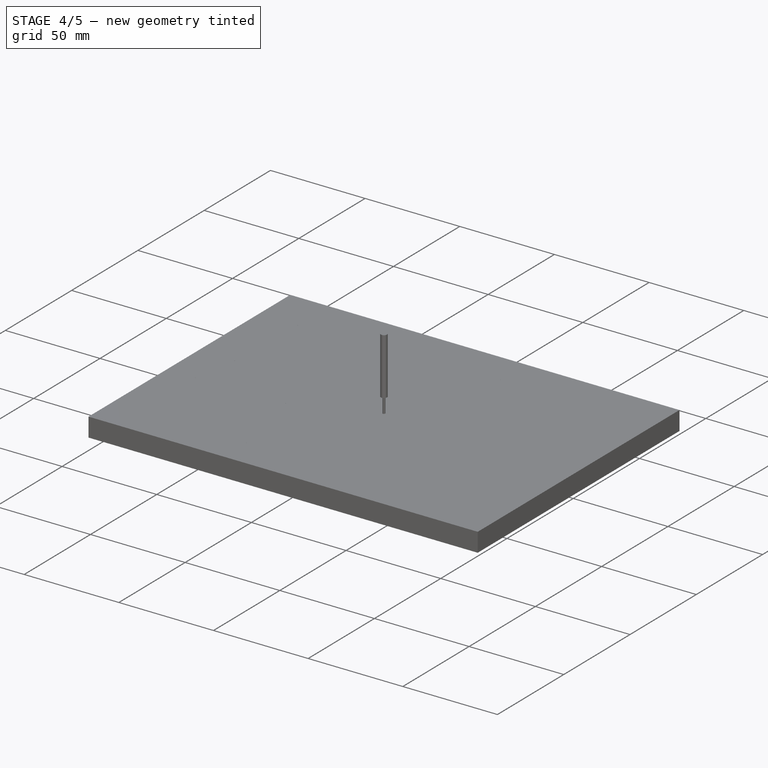
[diagram: stage 4 of 5 — iso view after this stage's code; geometry added in this stage tinted green]
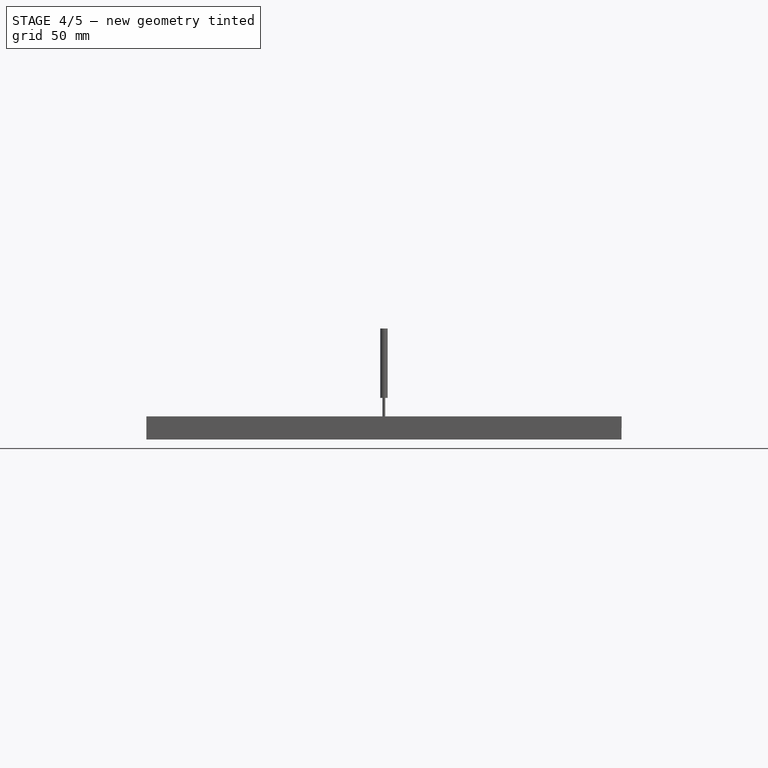
[diagram: stage 4 of 5 — front view after this stage's code; geometry added in this stage tinted green]
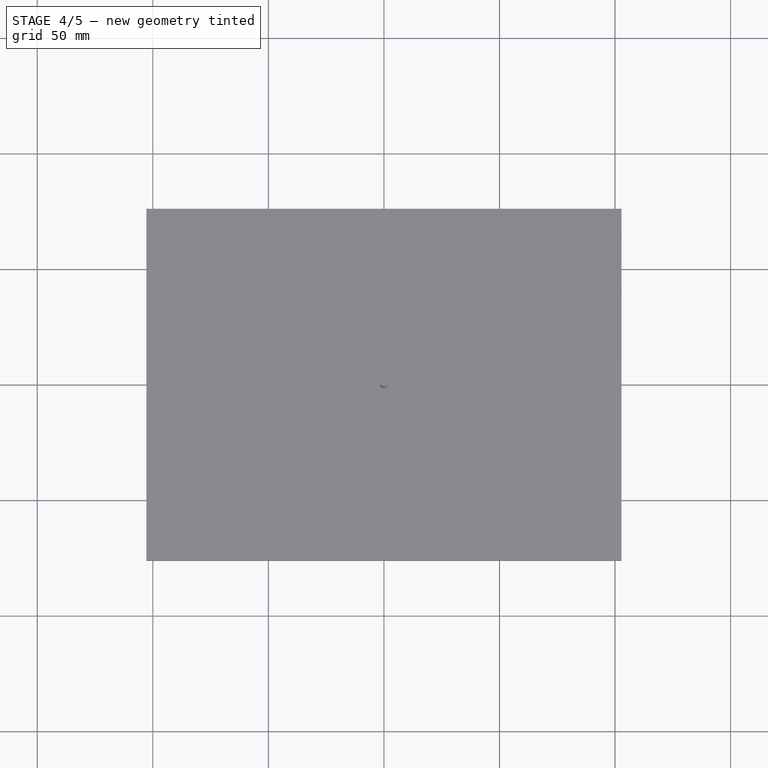
[diagram: stage 4 of 5 — top view after this stage's code; geometry added in this stage tinted green]
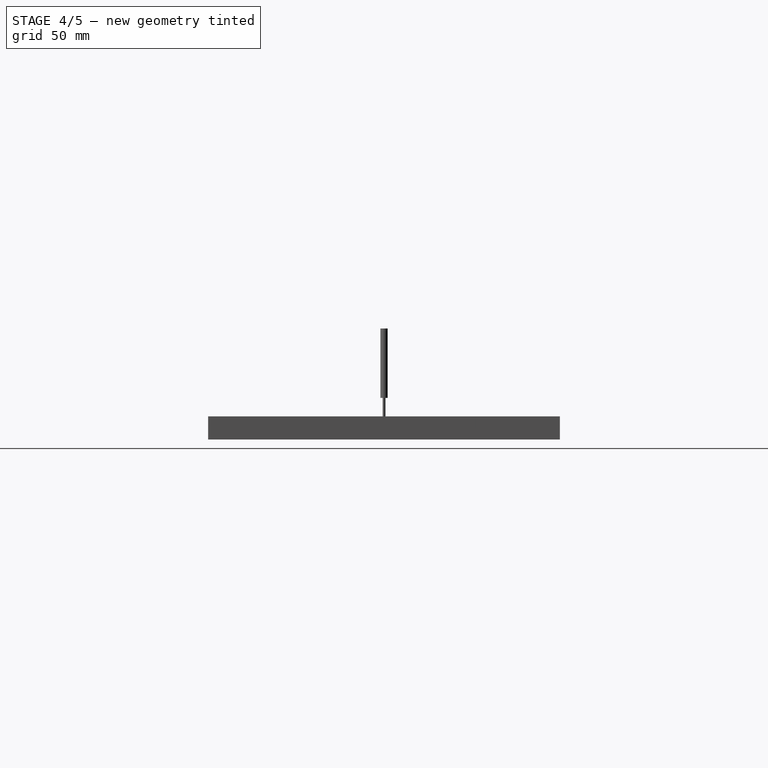
[diagram: stage 4 of 5 — right view after this stage's code; geometry added in this stage tinted green]
FEATURE [Sketcher::SketchObject] Sketch007
  ArcFitTolerance = 1e-06
  AttachmentSupport = -> [XY_Plane004]
  FullyConstrained = false
  MakeInternals = false
  MapMode = 5
  sketch-geometry (127):
    g0: LineSegment StartX=0 StartY=22.764 StartZ=0 EndX=-1.99102 EndY=22.764 EndZ=0
    g1: LineSegment StartX=-1.99102 StartY=22.764 StartZ=0 EndX=-4.07261 EndY=22.4239 EndZ=0
    g2: LineSegment StartX=-4.07261 StartY=22.4239 StartZ=0 EndX=-6.3927 EndY=21.6467 EndZ=0
    g3: LineSegment StartX=-6.3927 StartY=21.6467 StartZ=0 EndX=-8.17497 EndY=20.8304 EndZ=0
    g4: LineSegment StartX=-8.17497 StartY=20.8304 StartZ=0 EndX=-10.2566 EndY=19.6603 EndZ=0
    g5: LineSegment StartX=-10.2566 StartY=19.6603 StartZ=0 EndX=-12.2837 EndY=18.3406 EndZ=0
    g6: LineSegment StartX=-12.2837 StartY=18.3406 StartZ=0 EndX=-13.9624 EndY=16.4178 EndZ=0
    g7: LineSegment StartX=-13.9624 StartY=16.4178 StartZ=0 EndX=-15.3637 EndY=14.2818 EndZ=0
    g8: LineSegment StartX=-15.3637 StartY=14.2818 StartZ=0 EndX=-16.0452 EndY=12.8064 EndZ=0
    g9: LineSegment StartX=-16.0452 StartY=12.8064 StartZ=0 EndX=-16.5622 EndY=11.2827 EndZ=0
    g10: LineSegment StartX=-16.5622 StartY=11.2827 StartZ=0 EndX=-16.916 EndY=9.73169 EndZ=0
    g11: LineSegment StartX=-16.916 StartY=9.73169 StartZ=0 EndX=-17.1609 EndY=8.27594 EndZ=0
    g12: LineSegment StartX=-17.1609 StartY=8.27594 StartZ=0 EndX=-17.2846 EndY=4.90729 EndZ=0
    g13: LineSegment StartX=-17.2846 StartY=4.90729 StartZ=0 EndX=-17.3918 EndY=4.5569 EndZ=0
    g14: LineSegment StartX=-17.3918 StartY=4.5569 StartZ=0 EndX=-17.4958 EndY=4.28514 EndZ=0
    g15: LineSegment StartX=-17.4958 StartY=4.28514 StartZ=0 EndX=-17.6165 EndY=4.09727 EndZ=0
    g16: LineSegment StartX=-17.6165 StartY=4.09727 StartZ=0 EndX=-17.7608 EndY=3.91945 EndZ=0
    g17: LineSegment StartX=-17.7608 StartY=3.91945 StartZ=0 EndX=-17.9755 EndY=3.81545 EndZ=0
    g18: LineSegment StartX=-17.9755 StartY=3.81545 StartZ=0 EndX=-18.2439 EndY=3.74499 EndZ=0
    g19: LineSegment StartX=-18.2439 StartY=3.74499 StartZ=0 EndX=-18.5811 EndY=3.71799 EndZ=0
    g20: LineSegment StartX=-18.5811 StartY=3.71799 StartZ=0 EndX=-18.864 EndY=3.70425 EndZ=0
    g21: LineSegment StartX=-18.864 StartY=3.70425 StartZ=0 EndX=-19.3035 EndY=3.72348 EndZ=0
    g22: LineSegment StartX=-19.3035 StartY=3.72348 StartZ=0 EndX=-19.7128 EndY=3.72348 EndZ=0
    g23: LineSegment StartX=-19.7128 StartY=3.72348 StartZ=0 EndX=-20.1413 EndY=3.70151 EndZ=0
    g24: LineSegment StartX=-20.1413 StartY=3.70151 StartZ=0 EndX=-20.5121 EndY=3.64932 EndZ=0
    g25: LineSegment StartX=-20.5121 StartY=3.64932 StartZ=0 EndX=-20.9918 EndY=3.54452 EndZ=0
    g26: LineSegment StartX=-20.9918 StartY=3.54452 StartZ=0 EndX=-21.3984 EndY=3.44838 EndZ=0
    g27: LineSegment StartX=-21.3984 StartY=3.44838 StartZ=0 EndX=-21.9202 EndY=3.25611 EndZ=0
    g28: LineSegment StartX=-21.9202 StartY=3.25611 StartZ=0 EndX=-22.3103 EndY=3.06108 EndZ=0
    g29: LineSegment StartX=-22.3103 StartY=3.06108 StartZ=0 EndX=-22.7158 EndY=2.77458 EndZ=0
    g30: LineSegment StartX=-22.7158 StartY=2.77458 StartZ=0 EndX=-23.0619 EndY=2.44222 EndZ=0
    g31: LineSegment StartX=-23.0619 StartY=2.44222 StartZ=0 EndX=-23.3563 EndY=2.11436 EndZ=0
    g32: LineSegment StartX=-23.3563 StartY=2.11436 StartZ=0 EndX=-23.5815 EndY=1.81221 EndZ=0
    g33: LineSegment StartX=-23.5815 StartY=1.81221 StartZ=0 EndX=-23.7467 EndY=1.47898 EndZ=0
    g34: LineSegment StartX=-23.7467 StartY=1.47898 StartZ=0 EndX=-23.9252 EndY=1.023 EndZ=0
    g35: LineSegment StartX=-23.9252 StartY=1.023 StartZ=0 EndX=-24.019 EndY=0.620725 EndZ=0
    g36: LineSegment StartX=-24.019 StartY=0.620725 StartZ=0 EndX=-24.0821 EndY=0.162005 EndZ=0
    g37: LineSegment StartX=-24.0821 StartY=0.162005 StartZ=0 EndX=-24.1091 EndY=-0.371894 EndZ=0
    g38: LineSegment StartX=-24.1091 StartY=-0.371894 StartZ=0 EndX=-24.0886 EndY=-0.826749 EndZ=0
    g39: LineSegment StartX=-24.0886 StartY=-0.826749 StartZ=0 EndX=-24.0388 EndY=-1.36101 EndZ=0
    g40: LineSegment StartX=-24.0388 StartY=-1.36101 StartZ=0 EndX=-23.9446 EndY=-1.83636 EndZ=0
    g41: LineSegment StartX=-23.9446 StartY=-1.83636 StartZ=0 EndX=-23.8297 EndY=-2.27704 EndZ=0
    g42: LineSegment StartX=-23.8297 StartY=-2.27704 StartZ=0 EndX=-23.6617 EndY=-2.75238 EndZ=0
    g43: LineSegment StartX=-23.6617 StartY=-2.75238 StartZ=0 EndX=-23.4445 EndY=-3.19904 EndZ=0
    g44: LineSegment StartX=-23.4445 StartY=-3.19904 StartZ=0 EndX=-23.1781 EndY=-3.6539 EndZ=0
    g45: LineSegment StartX=-23.1781 StartY=-3.6539 StartZ=0 EndX=-22.8741 EndY=-4.1274 EndZ=0
    g46: LineSegment StartX=-22.8741 StartY=-4.1274 StartZ=0 EndX=-22.5217 EndY=-4.61914 EndZ=0
    g47: LineSegment StartX=-22.5217 StartY=-4.61914 StartZ=0 EndX=-22.116 EndY=-5.0576 EndZ=0
    g48: LineSegment StartX=-22.116 StartY=-5.0576 StartZ=0 EndX=-21.7513 EndY=-5.44689 EndZ=0
    g49: LineSegment StartX=-21.7513 StartY=-5.44689 StartZ=0 EndX=-21.041 EndY=-6.06755 EndZ=0
    g50: LineSegment StartX=-21.041 StartY=-6.06755 StartZ=0 EndX=-20.2707 EndY=-6.65353 EndZ=0
    g51: LineSegment StartX=-20.2707 StartY=-6.65353 StartZ=0 EndX=-19.8843 EndY=-6.92972 EndZ=0
    g52: LineSegment StartX=-19.8843 StartY=-6.92972 StartZ=0 EndX=-19.5606 EndY=-7.18788 EndZ=0
    g53: LineSegment StartX=-19.5606 StartY=-7.18788 StartZ=0 EndX=-19.1467 EndY=-7.56898 EndZ=0
    g54: LineSegment StartX=-19.1467 StartY=-7.56898 StartZ=0 EndX=-18.8464 EndY=-7.86544 EndZ=0
    g55: LineSegment StartX=-18.8464 StartY=-7.86544 StartZ=0 EndX=-18.6866 EndY=-8.21785 EndZ=0
    g56: LineSegment StartX=-18.6866 StartY=-8.21785 StartZ=0 EndX=-18.621 EndY=-8.43504 EndZ=0
    g57: LineSegment StartX=-18.621 StartY=-8.43504 StartZ=0 EndX=-18.4817 EndY=-8.96775 EndZ=0
    g58: LineSegment StartX=-18.4817 StartY=-8.96775 StartZ=0 EndX=-18.4817 EndY=-9.40253 EndZ=0
    g59: LineSegment StartX=-18.4817 StartY=-9.40253 StartZ=0 EndX=-18.4975 EndY=-9.82758 EndZ=0
    g60: LineSegment StartX=-18.4975 StartY=-9.82758 StartZ=0 EndX=-18.5786 EndY=-10.4 EndZ=0
    g61: LineSegment StartX=-18.5786 StartY=-10.4 StartZ=0 EndX=-18.6641 EndY=-10.888 EndZ=0
    g62: LineSegment StartX=-18.6641 StartY=-10.888 StartZ=0 EndX=-19.8704 EndY=-16.4561 EndZ=0
    g63: LineSegment StartX=-19.8704 StartY=-16.4561 StartZ=0 EndX=-20.2764 EndY=-17.6536 EndZ=0
    g64: LineSegment StartX=-20.2764 StartY=-17.6536 StartZ=0 EndX=-20.6011 EndY=-18.3437 EndZ=0
    g65: LineSegment StartX=-20.6011 StartY=-18.3437 StartZ=0 EndX=-21.4642 EndY=-20.068 EndZ=0
    g66: LineSegment StartX=-21.4642 StartY=-20.068 StartZ=0 EndX=-22.0167 EndY=-21.1656 EndZ=0
    g67: LineSegment StartX=-22.0167 StartY=-21.1656 StartZ=0 EndX=-22.2332 EndY=-21.5912 EndZ=0
    g68: LineSegment StartX=-22.2332 StartY=-21.5912 StartZ=0 EndX=-22.3751 EndY=-22.0019 EndZ=0
    g69: LineSegment StartX=-22.3751 StartY=-22.0019 StartZ=0 EndX=-22.3751 EndY=-22.4439 EndZ=0
    g70: LineSegment StartX=-22.3751 StartY=-22.4439 StartZ=0 EndX=-22.2996 EndY=-22.7996 EndZ=0
    g71: LineSegment StartX=-22.2996 StartY=-22.7996 StartZ=0 EndX=-22.1251 EndY=-23.0378 EndZ=0
    g72: LineSegment StartX=-22.1251 StartY=-23.0378 StartZ=0 EndX=-21.8802 EndY=-23.2995 EndZ=0
    g73: LineSegment StartX=-21.8802 StartY=-23.2995 StartZ=0 EndX=-21.3421 EndY=-23.6328 EndZ=0
    g74: LineSegment StartX=-21.3421 StartY=-23.6328 StartZ=0 EndX=-21.0603 EndY=-23.7334 EndZ=0
    g75: LineSegment StartX=-21.0603 StartY=-23.7334 StartZ=0 EndX=-20.765 EndY=-23.7972 EndZ=0
    g76: LineSegment StartX=-20.765 StartY=-23.7972 StartZ=0 EndX=-20.2618 EndY=-23.8408 EndZ=0
    g77: LineSegment StartX=-20.2618 StartY=-23.8408 StartZ=0 EndX=-19.7183 EndY=-23.8408 EndZ=0
    g78: LineSegment StartX=-19.7183 StartY=-23.8408 StartZ=0 EndX=-19.0525 EndY=-23.7972 EndZ=0
    g79: LineSegment StartX=-19.0525 StartY=-23.7972 StartZ=0 EndX=-18.2708 EndY=-23.6765 EndZ=0
    g80: LineSegment StartX=-18.2708 StartY=-23.6765 StartZ=0 EndX=-17.6769 EndY=-23.5926 EndZ=0
    g81: LineSegment StartX=-17.6769 StartY=-23.5926 StartZ=0 EndX=-17.2827 EndY=-23.5285 EndZ=0
    g82: LineSegment StartX=-17.2827 StartY=-23.5285 StartZ=0 EndX=-16.974 EndY=-23.505 EndZ=0
    g83: LineSegment StartX=-16.974 StartY=-23.505 StartZ=0 EndX=-16.7627 EndY=-23.5788 EndZ=0
    g84: LineSegment StartX=-16.7627 StartY=-23.5788 StartZ=0 EndX=-16.5916 EndY=-23.7163 EndZ=0
    g85: LineSegment StartX=-16.5916 StartY=-23.7163 StartZ=0 EndX=-16.0972 EndY=-24.2139 EndZ=0
    g86: LineSegment StartX=-16.0972 StartY=-24.2139 StartZ=0 EndX=-15.6476 EndY=-24.8011 EndZ=0
    g87: LineSegment StartX=-15.6476 StartY=-24.8011 StartZ=0 EndX=-15.3416 EndY=-25.1409 EndZ=0
    g88: LineSegment StartX=-15.3416 StartY=-25.1409 StartZ=0 EndX=-15.043 EndY=-25.4294 EndZ=0
    g89: LineSegment StartX=-15.043 StartY=-25.4294 StartZ=0 EndX=-14.3941 EndY=-26.0415 EndZ=0
    g90: LineSegment StartX=-14.3941 StartY=-26.0415 StartZ=0 EndX=-13.901 EndY=-26.387 EndZ=0
    g91: LineSegment StartX=-13.901 StartY=-26.387 StartZ=0 EndX=-13.5104 EndY=-26.6068 EndZ=0
    g92: LineSegment StartX=-13.5104 StartY=-26.6068 StartZ=0 EndX=-13.0407 EndY=-26.7645 EndZ=0
    g93: LineSegment StartX=-13.0407 StartY=-26.7645 StartZ=0 EndX=-12.6314 EndY=-26.8282 EndZ=0
    g94: LineSegment StartX=-12.6314 StartY=-26.8282 StartZ=0 EndX=-12.2322 EndY=-26.8282 EndZ=0
    g95: LineSegment StartX=-12.2322 StartY=-26.8282 StartZ=0 EndX=-11.276 EndY=-26.7242 EndZ=0
    g96: LineSegment StartX=-11.276 StartY=-26.7242 StartZ=0 EndX=-10.7908 EndY=-26.6634 EndZ=0
    g97: LineSegment StartX=-10.7908 StartY=-26.6634 StartZ=0 EndX=-10.415 EndY=-26.5795 EndZ=0
    g98: LineSegment StartX=-10.415 StartY=-26.5795 StartZ=0 EndX=-10.0963 EndY=-26.4319 EndZ=0
    g99: LineSegment StartX=-10.0963 StartY=-26.4319 StartZ=0 EndX=-9.78092 EndY=-26.2138 EndZ=0
    g100: LineSegment StartX=-9.78092 StartY=-26.2138 StartZ=0 EndX=-9.24321 EndY=-25.7804 EndZ=0
    g101: LineSegment StartX=-9.24321 StartY=-25.7804 StartZ=0 EndX=-8.77016 EndY=-25.2235 EndZ=0
    g102: LineSegment StartX=-8.77016 StartY=-25.2235 StartZ=0 EndX=-8.19855 EndY=-24.5672 EndZ=0
    g103: LineSegment StartX=-8.19855 StartY=-24.5672 StartZ=0 EndX=-7.83957 EndY=-24.1847 EndZ=0
    g104: LineSegment StartX=-7.83957 StartY=-24.1847 StartZ=0 EndX=-7.51413 EndY=-23.8962 EndZ=0
    g105: LineSegment StartX=-7.51413 StartY=-23.8962 StartZ=0 EndX=-6.97545 EndY=-23.5791 EndZ=0
    g106: LineSegment StartX=-6.97545 StartY=-23.5791 StartZ=0 EndX=-6.45058 EndY=-23.3987 EndZ=0
    g107: LineSegment StartX=-6.45058 StartY=-23.3987 StartZ=0 EndX=-5.83406 EndY=-23.3477 EndZ=0
    g108: LineSegment StartX=-5.83406 StartY=-23.3477 StartZ=0 EndX=-5.4214 EndY=-23.3477 EndZ=0
    g109: LineSegment StartX=-5.4214 StartY=-23.3477 StartZ=0 EndX=-5.1228 EndY=-23.3947 EndZ=0
    g110: LineSegment StartX=-5.1228 StartY=-23.3947 StartZ=0 EndX=-4.82085 EndY=-23.4685 EndZ=0
    g111: LineSegment StartX=-4.82085 StartY=-23.4685 StartZ=0 EndX=-4.61462 EndY=-23.5423 EndZ=0
    g112: LineSegment StartX=-4.61462 StartY=-23.5423 StartZ=0 EndX=-4.37306 EndY=-23.6497 EndZ=0
    g113: LineSegment StartX=-4.37306 StartY=-23.6497 StartZ=0 EndX=-4.15499 EndY=-23.7839 EndZ=0
    g114: LineSegment StartX=-4.15499 StartY=-23.7839 StartZ=0 EndX=-3.95369 EndY=-23.9315 EndZ=0
    g115: LineSegment StartX=-3.95369 StartY=-23.9315 StartZ=0 EndX=-3.52335 EndY=-24.3449 EndZ=0
    g116: LineSegment StartX=-3.52335 StartY=-24.3449 StartZ=0 EndX=-3.20417 EndY=-24.6706 EndZ=0
    g117: LineSegment StartX=-3.20417 StartY=-24.6706 StartZ=0 EndX=-2.94891 EndY=-24.9008 EndZ=0
    g118: LineSegment StartX=-2.94891 StartY=-24.9008 StartZ=0 EndX=-2.58421 EndY=-25.1438 EndZ=0
    g119: LineSegment StartX=-2.58421 StartY=-25.1438 StartZ=0 EndX=-2.23811 EndY=-25.3471 EndZ=0
    g120: LineSegment StartX=-2.23811 StartY=-25.3471 StartZ=0 EndX=-1.96228 EndY=-25.4768 EndZ=0
    g121: LineSegment StartX=-1.96228 StartY=-25.4768 StartZ=0 EndX=-1.77 EndY=-25.5482 EndZ=0
    g122: LineSegment StartX=-1.77 StartY=-25.5482 StartZ=0 EndX=-1.44862 EndY=-25.6361 EndZ=0
    g123: LineSegment StartX=-1.44862 StartY=-25.6361 StartZ=0 EndX=-1.05033 EndY=-25.7075 EndZ=0
    g124: LineSegment StartX=-1.05033 StartY=-25.7075 StartZ=0 EndX=-0.48349 EndY=-25.76 EndZ=0
    g125: LineSegment StartX=-0.48349 StartY=-25.76 StartZ=0 EndX=0 EndY=-25.7792 EndZ=0
    g126: LineSegment StartX=0 StartY=-25.7792 StartZ=0 EndX=0 EndY=22.764 EndZ=0
  constraints (135):
    c: PointOnObject(g0,g-2)
    c: Horizontal(g0)
    c: Coincident(g0,g1)
    c: Coincident(g1,g2)
    c: Coincident(g2,g3)
    c: Coincident(g3,g4)
    c: Coincident(g4,g5)
    c: Coincident(g5,g6)
    c: Coincident(g6,g7)
    c: Coincident(g7,g8)
    c: Coincident(g8,g9)
    c: Coincident(g9,g10)
    c: Coincident(g10,g11)
    c: Coincident(g11,g12)
    c: Coincident(g12,g13)
    c: Coincident(g13,g14)
    c: Coincident(g14,g15)
    c: Coincident(g15,g16)
    c: Coincident(g16,g17)
    c: Coincident(g17,g18)
    c: Coincident(g18,g19)
    c: Coincident(g19,g20)
    c: Coincident(g20,g21)
    c: Coincident(g21,g22)
    c: Horizontal(g22)
    c: Coincident(g22,g23)
    c: Coincident(g23,g24)
    c: Coincident(g24,g25)
    c: Coincident(g25,g26)
    c: Coincident(g26,g27)
    c: Coincident(g27,g28)
    c: Coincident(g28,g29)
    c: Coincident(g29,g30)
    c: Coincident(g30,g31)
    c: Coincident(g31,g32)
    c: Coincident(g32,g33)
    c: Coincident(g33,g34)
    c: Coincident(g34,g35)
    c: Coincident(g35,g36)
    c: Coincident(g36,g37)
    c: Coincident(g37,g38)
    c: Coincident(g38,g39)
    c: Coincident(g39,g40)
    c: Coincident(g40,g41)
    c: Coincident(g41,g42)
    c: Coincident(g42,g43)
    c: Coincident(g43,g44)
    c: Coincident(g44,g45)
    c: Coincident(g45,g46)
    c: Coincident(g46,g47)
    c: Coincident(g47,g48)
    c: Coincident(g48,g49)
    c: Coincident(g49,g50)
    c: Coincident(g50,g51)
    c: Coincident(g51,g52)
    c: Coincident(g52,g53)
    c: Coincident(g53,g54)
    c: Coincident(g54,g55)
    c: Coincident(g55,g56)
    c: Coincident(g56,g57)
    c: Coincident(g57,g58)
    c: Vertical(g58)
    c: Coincident(g58,g59)
    c: Coincident(g59,g60)
    c: Coincident(g60,g61)
    c: Coincident(g61,g62)
    c: Coincident(g62,g63)
    c: Coincident(g63,g64)
    c: Coincident(g64,g65)
    c: Coincident(g65,g66)
    c: Coincident(g66,g67)
    c: Coincident(g67,g68)
    c: Coincident(g68,g69)
    c: Vertical(g69)
    c: Coincident(g69,g70)
    c: Coincident(g70,g71)
    c: Coincident(g71,g72)
    c: Coincident(g72,g73)
    c: Coincident(g73,g74)
    c: Coincident(g74,g75)
    c: Coincident(g75,g76)
    c: Coincident(g76,g77)
    c: Horizontal(g77)
    c: Coincident(g77,g78)
    c: Coincident(g78,g79)
    c: Coincident(g79,g80)
    c: Coincident(g80,g81)
    c: Coincident(g81,g82)
    c: Coincident(g82,g83)
    c: Coincident(g83,g84)
    c: Coincident(g84,g85)
    c: Coincident(g85,g86)
    c: Coincident(g86,g87)
    c: Coincident(g87,g88)
    c: Coincident(g88,g89)
    c: Coincident(g89,g90)
    c: Coincident(g90,g91)
    c: Coincident(g91,g92)
    c: Coincident(g92,g93)
    c: Coincident(g93,g94)
    c: Horizontal(g94)
    c: Coincident(g94,g95)
    c: Coincident(g95,g96)
    c: Coincident(g96,g97)
    c: Coincident(g97,g98)
    c: Coincident(g98,g99)
    c: Coincident(g99,g100)
    c: Coincident(g100,g101)
    c: Coincident(g101,g102)
    c: Coincident(g102,g103)
    c: Coincident(g103,g104)
    c: Coincident(g104,g105)
    c: Coincident(g105,g106)
    c: Coincident(g106,g107)
    c: Coincident(g107,g108)
    c: Horizontal(g108)
    c: Coincident(g108,g109)
    c: Coincident(g109,g110)
    c: Coincident(g110,g111)
    c: Coincident(g111,g112)
    c: Coincident(g112,g113)
    c: Coincident(g113,g114)
    c: Coincident(g114,g115)
    c: Coincident(g115,g116)
    c: Coincident(g116,g117)
    c: Coincident(g117,g118)
    c: Coincident(g118,g119)
    c: Coincident(g119,g120)
    c: Coincident(g120,g121)
    c: Coincident(g121,g122)
    c: Coincident(g122,g123)
    c: Coincident(g123,g124)
    c: Coincident(g124,g125)
    c: PointOnObject(g125,g-2)
    c: Coincident(g125,g126)
FEATURE [PartDesign::Pad] Pad004
  Direction = (0,0,1)
  Length = 5
  Length2 = 10
  Profile = -> Sketch007
  ReferenceAxis = -> Sketch007 [N_Axis]
  Refine = true
  Suppressed = false
  Type = 0
FEATURE [Sketcher::SketchObject] Sketch008
  ArcFitTolerance = 1e-06
  AttachmentSupport = -> [Pad004]
  FullyConstrained = false
  MakeInternals = false
  MapMode = 5
  Placement = pos=(0,0,5) rot=(0,0,1;0rad)
  sketch-geometry (112):
    g0: Ellipse CenterX=-6.84184 CenterY=9.93713 CenterZ=0 NormalX=0 NormalY=0 NormalZ=1 MajorRadius=2.85356 MinorRadius=2.13212 AngleXU=1.52735
    g1: LineSegment [constr] StartX=-6.71789 StartY=12.788 StartZ=0 EndX=-6.96579 EndY=7.08626 EndZ=0
    g2: LineSegment [constr] StartX=-8.97195 StartY=10.0297 StartZ=0 EndX=-4.71174 EndY=9.84451 EndZ=0
    g3: GeomPoint [constr] X=-6.75946 Y=11.8319 Z=0
    g4: GeomPoint [constr] X=-6.92422 Y=8.04237 Z=0
    g5: LineSegment StartX=0 StartY=2.1596 StartZ=0 EndX=-0.250505 EndY=2.17189 EndZ=0
    g6: LineSegment StartX=-0.250505 StartY=2.17189 StartZ=0 EndX=-0.510897 EndY=2.18637 EndZ=0
    g7: LineSegment StartX=-0.510897 StartY=2.18637 StartZ=0 EndX=-0.770086 EndY=2.2271 EndZ=0
    g8: LineSegment StartX=-0.770086 StartY=2.2271 StartZ=0 EndX=-0.944502 EndY=2.28892 EndZ=0
    g9: LineSegment StartX=-0.944502 StartY=2.28892 StartZ=0 EndX=-1.09261 EndY=2.35927 EndZ=0
    g10: LineSegment StartX=-1.09261 StartY=2.35927 StartZ=0 EndX=-1.19258 EndY=2.41605 EndZ=0
    g11: LineSegment StartX=-1.19258 StartY=2.41605 StartZ=0 EndX=-1.28762 EndY=2.48393 EndZ=0
    g12: LineSegment StartX=-1.28762 StartY=2.48393 StartZ=0 EndX=-1.38204 EndY=2.5709 EndZ=0
    g13: LineSegment StartX=-1.38204 StartY=2.5709 StartZ=0 EndX=-1.47338 EndY=2.66964 EndZ=0
    g14: LineSegment StartX=-1.47338 StartY=2.66964 StartZ=0 EndX=-1.56347 EndY=2.76837 EndZ=0
    g15: LineSegment StartX=-1.56347 StartY=2.76837 StartZ=0 EndX=-1.65604 EndY=2.88686 EndZ=0
    g16: LineSegment StartX=-1.65604 StartY=2.88686 StartZ=0 EndX=-1.78485 EndY=3.10862 EndZ=0
    g17: LineSegment StartX=-1.78485 StartY=3.10862 StartZ=0 EndX=-1.92185 EndY=3.30117 EndZ=0
    g18: LineSegment StartX=-1.92185 StartY=3.30117 StartZ=0 EndX=-2.06131 EndY=3.49124 EndZ=0
    g19: LineSegment StartX=-2.06131 StartY=3.49124 StartZ=0 EndX=-2.14277 EndY=3.57517 EndZ=0
    g20: LineSegment StartX=-2.14277 StartY=3.57517 StartZ=0 EndX=-2.21806 EndY=3.63317 EndZ=0
    g21: LineSegment StartX=-2.21806 StartY=3.63317 StartZ=0 EndX=-2.42738 EndY=3.7165 EndZ=0
    g22: LineSegment StartX=-2.42738 StartY=3.7165 StartZ=0 EndX=-2.60018 EndY=3.75353 EndZ=0
    g23: LineSegment StartX=-2.60018 StartY=3.75353 StartZ=0 EndX=-2.73471 EndY=3.76464 EndZ=0
    g24: LineSegment StartX=-2.73471 StartY=3.76464 StartZ=0 EndX=-2.85196 EndY=3.76464 EndZ=0
    g25: LineSegment StartX=-2.85196 StartY=3.76464 StartZ=0 EndX=-2.96952 EndY=3.75115 EndZ=0
    g26: LineSegment StartX=-2.96952 StartY=3.75115 StartZ=0 EndX=-3.09295 EndY=3.72276 EndZ=0
    g27: LineSegment StartX=-3.09295 StartY=3.72276 StartZ=0 EndX=-3.40767 EndY=3.64501 EndZ=0
    g28: LineSegment StartX=-3.40767 StartY=3.64501 StartZ=0 EndX=-3.68236 EndY=3.53747 EndZ=0
    g29: LineSegment StartX=-3.68236 StartY=3.53747 StartZ=0 EndX=-3.84281 EndY=3.45107 EndZ=0
    g30: LineSegment StartX=-3.84281 StartY=3.45107 StartZ=0 EndX=-4.02425 EndY=3.33259 EndZ=0
    g31: LineSegment StartX=-4.02425 StartY=3.33259 StartZ=0 EndX=-4.36036 EndY=3.01489 EndZ=0
    g32: LineSegment StartX=-4.36036 StartY=3.01489 StartZ=0 EndX=-4.53232 EndY=2.84331 EndZ=0
    g33: LineSegment StartX=-4.53232 StartY=2.84331 StartZ=0 EndX=-4.66121 EndY=2.68312 EndZ=0
    g34: LineSegment StartX=-4.66121 StartY=2.68312 StartZ=0 EndX=-4.80667 EndY=2.42166 EndZ=0
    g35: LineSegment StartX=-4.80667 StartY=2.42166 StartZ=0 EndX=-4.8748 EndY=2.35538 EndZ=0
    g36: LineSegment StartX=-4.8748 StartY=2.35538 StartZ=0 EndX=-4.97607 EndY=2.28357 EndZ=0
    g37: LineSegment StartX=-4.97607 StartY=2.28357 StartZ=0 EndX=-5.10311 EndY=2.22833 EndZ=0
    g38: LineSegment StartX=-5.10311 StartY=2.22833 StartZ=0 EndX=-5.24121 EndY=2.1823 EndZ=0
    g39: LineSegment StartX=-5.24121 StartY=2.1823 StartZ=0 EndX=-5.35352 EndY=2.1823 EndZ=0
    g40: LineSegment StartX=-5.35352 StartY=2.1823 StartZ=0 EndX=-5.45847 EndY=2.20071 EndZ=0
    g41: LineSegment StartX=-5.45847 StartY=2.20071 StartZ=0 EndX=-5.61417 EndY=2.29454 EndZ=0
    g42: LineSegment StartX=-5.61417 StartY=2.29454 StartZ=0 EndX=-5.767 EndY=2.43079 EndZ=0
    g43: LineSegment StartX=-5.767 StartY=2.43079 StartZ=0 EndX=-5.92903 EndY=2.74565 EndZ=0
    g44: LineSegment StartX=-5.92903 StartY=2.74565 StartZ=0 EndX=-6.08185 EndY=3.11205 EndZ=0
    g45: LineSegment StartX=-6.08185 StartY=3.11205 StartZ=0 EndX=-6.28441 EndY=3.33426 EndZ=0
    g46: LineSegment StartX=-6.28441 StartY=3.33426 StartZ=0 EndX=-6.4497 EndY=3.46092 EndZ=0
    g47: LineSegment StartX=-6.4497 StartY=3.46092 StartZ=0 EndX=-6.69222 EndY=3.59936 EndZ=0
    g48: LineSegment StartX=-6.69222 StartY=3.59936 StartZ=0 EndX=-6.86098 EndY=3.65292 EndZ=0
    g49: LineSegment StartX=-6.86098 StartY=3.65292 StartZ=0 EndX=-7.00548 EndY=3.68222 EndZ=0
    g50: LineSegment StartX=-7.00548 StartY=3.68222 StartZ=0 EndX=-7.53681 EndY=3.7058 EndZ=0
    g51: LineSegment StartX=-7.53681 StartY=3.7058 StartZ=0 EndX=-8.15226 EndY=3.66948 EndZ=0
    g52: LineSegment StartX=-8.15226 StartY=3.66948 StartZ=0 EndX=-8.44462 EndY=3.59077 EndZ=0
    g53: LineSegment StartX=-8.44462 StartY=3.59077 StartZ=0 EndX=-8.75722 EndY=3.46932 EndZ=0
    g54: LineSegment StartX=-8.75722 StartY=3.46932 StartZ=0 EndX=-8.98436 EndY=3.27142 EndZ=0
    g55: LineSegment StartX=-8.98436 StartY=3.27142 StartZ=0 EndX=-9.17551 EndY=3.05103 EndZ=0
    g56: LineSegment StartX=-9.17551 StartY=3.05103 StartZ=0 EndX=-9.4934 EndY=2.3951 EndZ=0
    g57: LineSegment StartX=-9.4934 StartY=2.3951 StartZ=0 EndX=-9.69378 EndY=1.65213 EndZ=0
    g58: LineSegment StartX=-9.69378 StartY=1.65213 StartZ=0 EndX=-9.80486 EndY=0.869925 EndZ=0
    g59: LineSegment StartX=-9.80486 StartY=0.869925 StartZ=0 EndX=-9.90496 EndY=0.094142 EndZ=0
    g60: LineSegment StartX=-9.90496 StartY=0.094142 StartZ=0 EndX=-10.3412 EndY=-2.83169 EndZ=0
    g61: LineSegment StartX=-10.3412 StartY=-2.83169 StartZ=0 EndX=-10.3013 EndY=-3.11704 EndZ=0
    g62: LineSegment StartX=-10.3013 StartY=-3.11704 StartZ=0 EndX=-10.2455 EndY=-3.37181 EndZ=0
    g63: LineSegment StartX=-10.2455 StartY=-3.37181 StartZ=0 EndX=-10.1279 EndY=-3.55422 EndZ=0
    g64: LineSegment StartX=-10.1279 StartY=-3.55422 StartZ=0 EndX=-9.99224 EndY=-3.74265 EndZ=0
    g65: LineSegment StartX=-9.99224 StartY=-3.74265 StartZ=0 EndX=-9.79295 EndY=-3.87296 EndZ=0
    g66: LineSegment StartX=-9.79295 StartY=-3.87296 StartZ=0 EndX=-9.56381 EndY=-3.98904 EndZ=0
    g67: LineSegment StartX=-9.56381 StartY=-3.98904 StartZ=0 EndX=-9.1794 EndY=-4.15788 EndZ=0
    g68: LineSegment StartX=-9.1794 StartY=-4.15788 StartZ=0 EndX=-9.03549 EndY=-4.16863 EndZ=0
    g69: LineSegment StartX=-9.03549 StartY=-4.16863 StartZ=0 EndX=-8.85459 EndY=-4.15807 EndZ=0
    g70: LineSegment StartX=-8.85459 StartY=-4.15807 StartZ=0 EndX=-8.49507 EndY=-4.07792 EndZ=0
    g71: LineSegment StartX=-8.49507 StartY=-4.07792 StartZ=0 EndX=-8.27028 EndY=-4.00746 EndZ=0
    g72: LineSegment StartX=-8.27028 StartY=-4.00746 StartZ=0 EndX=-7.69658 EndY=-3.729 EndZ=0
    g73: LineSegment StartX=-7.69658 StartY=-3.729 StartZ=0 EndX=-7.32082 EndY=-3.37337 EndZ=0
    g74: LineSegment StartX=-7.32082 StartY=-3.37337 StartZ=0 EndX=-6.93727 EndY=-2.95221 EndZ=0
    g75: LineSegment StartX=-6.93727 StartY=-2.95221 StartZ=0 EndX=-6.66216 EndY=-2.50935 EndZ=0
    g76: LineSegment StartX=-6.66216 StartY=-2.50935 StartZ=0 EndX=-6.51699 EndY=-2.34735 EndZ=0
    g77: LineSegment StartX=-6.51699 StartY=-2.34735 StartZ=0 EndX=-6.37706 EndY=-2.25712 EndZ=0
    g78: LineSegment StartX=-6.37706 StartY=-2.25712 StartZ=0 EndX=-6.25001 EndY=-2.23319 EndZ=0
    g79: LineSegment StartX=-6.25001 StartY=-2.23319 StartZ=0 EndX=-6.11008 EndY=-2.23871 EndZ=0
    g80: LineSegment StartX=-6.11008 StartY=-2.23871 StartZ=0 EndX=-5.96646 EndY=-2.2737 EndZ=0
    g81: LineSegment StartX=-5.96646 StartY=-2.2737 StartZ=0 EndX=-5.85414 EndY=-2.31604 EndZ=0
    g82: LineSegment StartX=-5.85414 StartY=-2.31604 StartZ=0 EndX=-5.71926 EndY=-2.44534 EndZ=0
    g83: LineSegment StartX=-5.71926 StartY=-2.44534 StartZ=0 EndX=-5.61615 EndY=-2.60553 EndZ=0
    g84: LineSegment StartX=-5.61615 StartY=-2.60553 StartZ=0 EndX=-5.49106 EndY=-2.96628 EndZ=0
    g85: LineSegment StartX=-5.49106 StartY=-2.96628 StartZ=0 EndX=-5.378 EndY=-3.34014 EndZ=0
    g86: LineSegment StartX=-5.378 StartY=-3.34014 StartZ=0 EndX=-5.28721 EndY=-3.52187 EndZ=0
    g87: LineSegment StartX=-5.28721 StartY=-3.52187 StartZ=0 EndX=-5.17868 EndY=-3.6907 EndZ=0
    g88: LineSegment StartX=-5.17868 StartY=-3.6907 StartZ=0 EndX=-5.05609 EndY=-3.85417 EndZ=0
    g89: LineSegment StartX=-5.05609 StartY=-3.85417 StartZ=0 EndX=-4.91288 EndY=-4.00643 EndZ=0
    g90: LineSegment StartX=-4.91288 StartY=-4.00643 StartZ=0 EndX=-4.73173 EndY=-4.10176 EndZ=0
    g91: LineSegment StartX=-4.73173 StartY=-4.10176 StartZ=0 EndX=-4.53274 EndY=-4.16959 EndZ=0
    g92: LineSegment StartX=-4.53274 StartY=-4.16959 StartZ=0 EndX=-4.15285 EndY=-4.3113 EndZ=0
    g93: LineSegment StartX=-4.15285 StartY=-4.3113 StartZ=0 EndX=-3.95473 EndY=-4.32799 EndZ=0
    g94: LineSegment StartX=-3.95473 StartY=-4.32799 StartZ=0 EndX=-3.75574 EndY=-4.32799 EndZ=0
    g95: LineSegment StartX=-3.75574 StartY=-4.32799 StartZ=0 EndX=-3.47233 EndY=-4.27825 EndZ=0
    g96: LineSegment StartX=-3.47233 StartY=-4.27825 StartZ=0 EndX=-3.27086 EndY=-4.22713 EndZ=0
    g97: LineSegment StartX=-3.27086 StartY=-4.22713 StartZ=0 EndX=-3.08957 EndY=-4.1667 EndZ=0
    g98: LineSegment StartX=-3.08957 StartY=-4.1667 StartZ=0 EndX=-2.82038 EndY=-3.93871 EndZ=0
    g99: LineSegment StartX=-2.82038 StartY=-3.93871 StartZ=0 EndX=-2.52647 EndY=-3.53767 EndZ=0
    g100: LineSegment StartX=-2.52647 StartY=-3.53767 StartZ=0 EndX=-2.31161 EndY=-3.13562 EndZ=0
    g101: LineSegment StartX=-2.31161 StartY=-3.13562 StartZ=0 EndX=-2.11109 EndY=-2.82248 EndZ=0
    g102: LineSegment StartX=-2.11109 StartY=-2.82248 StartZ=0 EndX=-1.91881 EndY=-2.61922 EndZ=0
    g103: LineSegment StartX=-1.91881 StartY=-2.61922 StartZ=0 EndX=-1.6375 EndY=-2.3401 EndZ=0
    g104: LineSegment StartX=-1.6375 StartY=-2.3401 StartZ=0 EndX=-1.46994 EndY=-2.18628 EndZ=0
    g105: LineSegment StartX=-1.46994 StartY=-2.18628 StartZ=0 EndX=-1.27492 EndY=-2.08739 EndZ=0
    g106: LineSegment StartX=-1.27492 StartY=-2.08739 StartZ=0 EndX=-1.05517 EndY=-1.99126 EndZ=0
    g107: LineSegment StartX=-1.05517 StartY=-1.99126 StartZ=0 EndX=-0.629411 EndY=-1.85391 EndZ=0
    g108: LineSegment StartX=-0.629411 StartY=-1.85391 StartZ=0 EndX=-0.229856 EndY=-1.75175 EndZ=0
    g109: LineSegment StartX=-0.229856 StartY=-1.75175 StartZ=0 EndX=-0.064108 EndY=-1.73807 EndZ=0
    g110: LineSegment StartX=-0.064108 StartY=-1.73807 StartZ=0 EndX=0 EndY=-1.7356 EndZ=0
    g111: LineSegment StartX=0 StartY=-1.7356 StartZ=0 EndX=0 EndY=2.1596 EndZ=0
  constraints (112):
    c: InternalAlignment(g1-g4 -> g0) x4
    c: PointOnObject(g5,g-2)
    c: Coincident(g5,g6)
    c: Coincident(g6,g7)
    c: Coincident(g7,g8)
    c: Coincident(g8,g9)
    c: Coincident(g9,g10)
    c: Coincident(g10,g11)
    c: Coincident(g11,g12)
    c: Coincident(g12,g13)
    c: Coincident(g13,g14)
    c: Coincident(g14,g15)
    c: Coincident(g15,g16)
    c: Coincident(g16,g17)
    c: Coincident(g17,g18)
    c: Coincident(g18,g19)
    c: Coincident(g19,g20)
    c: Coincident(g20,g21)
    c: Coincident(g21,g22)
    c: Coincident(g22,g23)
    c: Coincident(g23,g24)
    c: Horizontal(g24)
    c: Coincident(g24,g25)
    c: Coincident(g25,g26)
    c: Coincident(g26,g27)
    c: Coincident(g27,g28)
    c: Coincident(g28,g29)
    c: Coincident(g29,g30)
    c: Coincident(g30,g31)
    c: Coincident(g31,g32)
    c: Coincident(g32,g33)
    c: Coincident(g33,g34)
    c: Coincident(g34,g35)
    c: Coincident(g35,g36)
    c: Coincident(g36,g37)
    c: Coincident(g37,g38)
    c: Coincident(g38,g39)
    c: Horizontal(g39)
    c: Coincident(g39,g40)
    c: Coincident(g40,g41)
    c: Coincident(g41,g42)
    c: Coincident(g42,g43)
    c: Coincident(g43,g44)
    c: Coincident(g44,g45)
    c: Coincident(g45,g46)
    c: Coincident(g46,g47)
    c: Coincident(g47,g48)
    c: Coincident(g48,g49)
    c: Coincident(g49,g50)
    c: Coincident(g50,g51)
    c: Coincident(g51,g52)
    c: Coincident(g52,g53)
    c: Coincident(g53,g54)
    c: Coincident(g54,g55)
    c: Coincident(g55,g56)
    c: Coincident(g56,g57)
    c: Coincident(g57,g58)
    c: Coincident(g58,g59)
    c: Coincident(g59,g60)
    c: Coincident(g60,g61)
    c: Coincident(g61,g62)
    c: Coincident(g62,g63)
    c: Coincident(g63,g64)
    c: Coincident(g64,g65)
    c: Coincident(g65,g66)
    c: Coincident(g66,g67)
    c: Coincident(g67,g68)
    c: Coincident(g68,g69)
    c: Coincident(g69,g70)
    c: Coincident(g70,g71)
    c: Coincident(g71,g72)
    c: Coincident(g72,g73)
    c: Coincident(g73,g74)
    c: Coincident(g74,g75)
    c: Coincident(g75,g76)
    c: Coincident(g76,g77)
    c: Coincident(g77,g78)
    c: Coincident(g78,g79)
    c: Coincident(g79,g80)
    c: Coincident(g80,g81)
    c: Coincident(g81,g82)
    c: Coincident(g82,g83)
    c: Coincident(g83,g84)
    c: Coincident(g84,g85)
    c: Coincident(g85,g86)
    c: Coincident(g86,g87)
    c: Coincident(g87,g88)
    c: Coincident(g88,g89)
    c: Coincident(g89,g90)
    c: Coincident(g90,g91)
    c: Coincident(g91,g92)
    c: Coincident(g92,g93)
    c: Coincident(g93,g94)
    c: Horizontal(g94)
    c: Coincident(g94,g95)
    c: Coincident(g95,g96)
    c: Coincident(g96,g97)
    c: Coincident(g97,g98)
    c: Coincident(g98,g99)
    c: Coincident(g99,g100)
    c: Coincident(g100,g101)
    c: Coincident(g101,g102)
    c: Coincident(g102,g103)
    c: Coincident(g103,g104)
    c: Coincident(g104,g105)
    c: Coincident(g105,g106)
    c: Coincident(g106,g107)
    c: Coincident(g107,g108)
    c: Coincident(g108,g109)
    c: Coincident(g109,g110)
    c: PointOnObject(g110,g-2)
    c: Coincident(g110,g111)
FEATURE [PartDesign::Pocket] Pocket003
  BaseFeature = -> Pad004
  Direction = (0,0,-1)
  Length = 5
  Length2 = 5
  Profile = -> Sketch008
  ReferenceAxis = -> Sketch008 [N_Axis]
  Refine = true
  Suppressed = false
  Type = 0
FEATURE [PartDesign::Body] Body004  label="Ghost_half003"
  AllowCompound = false
  Group = -> [Sketch007,Pad004,Sketch008,Pocket003]
  Origin = -> Origin004
  Placement = pos=(0,0,-5) rot=(0,0,1;0rad)
  Tip = -> Pocket003
FEATURE [Part::Mirroring] Part__Mirroring003  label="Ghost_mirror003"
  Base = (0,0,0)
  Normal = (1,0,0)
  Source = -> Body004
FEATURE [Part::MultiFuse] Fusion003  label="Ghost_Finel003"
  Placement = pos=(30,30,0) rot=(0,0,1;1.5708rad)
  Refine = true
  Shapes = -> [Part__Mirroring003,Body004]
FEATURE [Sketcher::SketchObject] Sketch009
  ArcFitTolerance = 1e-06
  AttachmentSupport = -> [XY_Plane005]
  FullyConstrained = false
  MakeInternals = false
  MapMode = 5
  sketch-geometry (127):
    g0: LineSegment StartX=0 StartY=22.764 StartZ=0 EndX=-1.99102 EndY=22.764 EndZ=0
    g1: LineSegment StartX=-1.99102 StartY=22.764 StartZ=0 EndX=-4.07261 EndY=22.4239 EndZ=0
    g2: LineSegment StartX=-4.07261 StartY=22.4239 StartZ=0 EndX=-6.3927 EndY=21.6467 EndZ=0
    g3: LineSegment StartX=-6.3927 StartY=21.6467 StartZ=0 EndX=-8.17497 EndY=20.8304 EndZ=0
    g4: LineSegment StartX=-8.17497 StartY=20.8304 StartZ=0 EndX=-10.2566 EndY=19.6603 EndZ=0
    g5: LineSegment StartX=-10.2566 StartY=19.6603 StartZ=0 EndX=-12.2837 EndY=18.3406 EndZ=0
    g6: LineSegment StartX=-12.2837 StartY=18.3406 StartZ=0 EndX=-13.9624 EndY=16.4178 EndZ=0
    g7: LineSegment StartX=-13.9624 StartY=16.4178 StartZ=0 EndX=-15.3637 EndY=14.2818 EndZ=0
    g8: LineSegment StartX=-15.3637 StartY=14.2818 StartZ=0 EndX=-16.0452 EndY=12.8064 EndZ=0
    g9: LineSegment StartX=-16.0452 StartY=12.8064 StartZ=0 EndX=-16.5622 EndY=11.2827 EndZ=0
    g10: LineSegment StartX=-16.5622 StartY=11.2827 StartZ=0 EndX=-16.916 EndY=9.73169 EndZ=0
    g11: LineSegment StartX=-16.916 StartY=9.73169 StartZ=0 EndX=-17.1609 EndY=8.27594 EndZ=0
    g12: LineSegment StartX=-17.1609 StartY=8.27594 StartZ=0 EndX=-17.2846 EndY=4.90729 EndZ=0
    g13: LineSegment StartX=-17.2846 StartY=4.90729 StartZ=0 EndX=-17.3918 EndY=4.5569 EndZ=0
    g14: LineSegment StartX=-17.3918 StartY=4.5569 StartZ=0 EndX=-17.4958 EndY=4.28514 EndZ=0
    g15: LineSegment StartX=-17.4958 StartY=4.28514 StartZ=0 EndX=-17.6165 EndY=4.09727 EndZ=0
    g16: LineSegment StartX=-17.6165 StartY=4.09727 StartZ=0 EndX=-17.7608 EndY=3.91945 EndZ=0
    g17: LineSegment StartX=-17.7608 StartY=3.91945 StartZ=0 EndX=-17.9755 EndY=3.81545 EndZ=0
    g18: LineSegment StartX=-17.9755 StartY=3.81545 StartZ=0 EndX=-18.2439 EndY=3.74499 EndZ=0
    g19: LineSegment StartX=-18.2439 StartY=3.74499 StartZ=0 EndX=-18.5811 EndY=3.71799 EndZ=0
    g20: LineSegment StartX=-18.5811 StartY=3.71799 StartZ=0 EndX=-18.864 EndY=3.70425 EndZ=0
    g21: LineSegment StartX=-18.864 StartY=3.70425 StartZ=0 EndX=-19.3035 EndY=3.72348 EndZ=0
    g22: LineSegment StartX=-19.3035 StartY=3.72348 StartZ=0 EndX=-19.7128 EndY=3.72348 EndZ=0
    g23: LineSegment StartX=-19.7128 StartY=3.72348 StartZ=0 EndX=-20.1413 EndY=3.70151 EndZ=0
    g24: LineSegment StartX=-20.1413 StartY=3.70151 StartZ=0 EndX=-20.5121 EndY=3.64932 EndZ=0
    g25: LineSegment StartX=-20.5121 StartY=3.64932 StartZ=0 EndX=-20.9918 EndY=3.54452 EndZ=0
    g26: LineSegment StartX=-20.9918 StartY=3.54452 StartZ=0 EndX=-21.3984 EndY=3.44838 EndZ=0
    g27: LineSegment StartX=-21.3984 StartY=3.44838 StartZ=0 EndX=-21.9202 EndY=3.25611 EndZ=0
    g28: LineSegment StartX=-21.9202 StartY=3.25611 StartZ=0 EndX=-22.3103 EndY=3.06108 EndZ=0
    g29: LineSegment StartX=-22.3103 StartY=3.06108 StartZ=0 EndX=-22.7158 EndY=2.77458 EndZ=0
    g30: LineSegment StartX=-22.7158 StartY=2.77458 StartZ=0 EndX=-23.0619 EndY=2.44222 EndZ=0
    g31: LineSegment StartX=-23.0619 StartY=2.44222 StartZ=0 EndX=-23.3563 EndY=2.11436 EndZ=0
    g32: LineSegment StartX=-23.3563 StartY=2.11436 StartZ=0 EndX=-23.5815 EndY=1.81221 EndZ=0
    g33: LineSegment StartX=-23.5815 StartY=1.81221 StartZ=0 EndX=-23.7467 EndY=1.47898 EndZ=0
    g34: LineSegment StartX=-23.7467 StartY=1.47898 StartZ=0 EndX=-23.9252 EndY=1.023 EndZ=0
    g35: LineSegment StartX=-23.9252 StartY=1.023 StartZ=0 EndX=-24.019 EndY=0.620725 EndZ=0
    g36: LineSegment StartX=-24.019 StartY=0.620725 StartZ=0 EndX=-24.0821 EndY=0.162005 EndZ=0
    g37: LineSegment StartX=-24.0821 StartY=0.162005 StartZ=0 EndX=-24.1091 EndY=-0.371894 EndZ=0
    g38: LineSegment StartX=-24.1091 StartY=-0.371894 StartZ=0 EndX=-24.0886 EndY=-0.826749 EndZ=0
    g39: LineSegment StartX=-24.0886 StartY=-0.826749 StartZ=0 EndX=-24.0388 EndY=-1.36101 EndZ=0
    g40: LineSegment StartX=-24.0388 StartY=-1.36101 StartZ=0 EndX=-23.9446 EndY=-1.83636 EndZ=0
    g41: LineSegment StartX=-23.9446 StartY=-1.83636 StartZ=0 EndX=-23.8297 EndY=-2.27704 EndZ=0
    g42: LineSegment StartX=-23.8297 StartY=-2.27704 StartZ=0 EndX=-23.6617 EndY=-2.75238 EndZ=0
    g43: LineSegment StartX=-23.6617 StartY=-2.75238 StartZ=0 EndX=-23.4445 EndY=-3.19904 EndZ=0
    g44: LineSegment StartX=-23.4445 StartY=-3.19904 StartZ=0 EndX=-23.1781 EndY=-3.6539 EndZ=0
    g45: LineSegment StartX=-23.1781 StartY=-3.6539 StartZ=0 EndX=-22.8741 EndY=-4.1274 EndZ=0
    g46: LineSegment StartX=-22.8741 StartY=-4.1274 StartZ=0 EndX=-22.5217 EndY=-4.61914 EndZ=0
    g47: LineSegment StartX=-22.5217 StartY=-4.61914 StartZ=0 EndX=-22.116 EndY=-5.0576 EndZ=0
    g48: LineSegment StartX=-22.116 StartY=-5.0576 StartZ=0 EndX=-21.7513 EndY=-5.44689 EndZ=0
    g49: LineSegment StartX=-21.7513 StartY=-5.44689 StartZ=0 EndX=-21.041 EndY=-6.06755 EndZ=0
    g50: LineSegment StartX=-21.041 StartY=-6.06755 StartZ=0 EndX=-20.2707 EndY=-6.65353 EndZ=0
    g51: LineSegment StartX=-20.2707 StartY=-6.65353 StartZ=0 EndX=-19.8843 EndY=-6.92972 EndZ=0
    g52: LineSegment StartX=-19.8843 StartY=-6.92972 StartZ=0 EndX=-19.5606 EndY=-7.18788 EndZ=0
    g53: LineSegment StartX=-19.5606 StartY=-7.18788 StartZ=0 EndX=-19.1467 EndY=-7.56898 EndZ=0
    g54: LineSegment StartX=-19.1467 StartY=-7.56898 StartZ=0 EndX=-18.8464 EndY=-7.86544 EndZ=0
    g55: LineSegment StartX=-18.8464 StartY=-7.86544 StartZ=0 EndX=-18.6866 EndY=-8.21785 EndZ=0
    g56: LineSegment StartX=-18.6866 StartY=-8.21785 StartZ=0 EndX=-18.621 EndY=-8.43504 EndZ=0
    g57: LineSegment StartX=-18.621 StartY=-8.43504 StartZ=0 EndX=-18.4817 EndY=-8.96775 EndZ=0
    g58: LineSegment StartX=-18.4817 StartY=-8.96775 StartZ=0 EndX=-18.4817 EndY=-9.40253 EndZ=0
    g59: LineSegment StartX=-18.4817 StartY=-9.40253 StartZ=0 EndX=-18.4975 EndY=-9.82758 EndZ=0
    g60: LineSegment StartX=-18.4975 StartY=-9.82758 StartZ=0 EndX=-18.5786 EndY=-10.4 EndZ=0
    g61: LineSegment StartX=-18.5786 StartY=-10.4 StartZ=0 EndX=-18.6641 EndY=-10.888 EndZ=0
    g62: LineSegment StartX=-18.6641 StartY=-10.888 StartZ=0 EndX=-19.8704 EndY=-16.4561 EndZ=0
    g63: LineSegment StartX=-19.8704 StartY=-16.4561 StartZ=0 EndX=-20.2764 EndY=-17.6536 EndZ=0
    g64: LineSegment StartX=-20.2764 StartY=-17.6536 StartZ=0 EndX=-20.6011 EndY=-18.3437 EndZ=0
    g65: LineSegment StartX=-20.6011 StartY=-18.3437 StartZ=0 EndX=-21.4642 EndY=-20.068 EndZ=0
    g66: LineSegment StartX=-21.4642 StartY=-20.068 StartZ=0 EndX=-22.0167 EndY=-21.1656 EndZ=0
    g67: LineSegment StartX=-22.0167 StartY=-21.1656 StartZ=0 EndX=-22.2332 EndY=-21.5912 EndZ=0
    g68: LineSegment StartX=-22.2332 StartY=-21.5912 StartZ=0 EndX=-22.3751 EndY=-22.0019 EndZ=0
    g69: LineSegment StartX=-22.3751 StartY=-22.0019 StartZ=0 EndX=-22.3751 EndY=-22.4439 EndZ=0
    g70: LineSegment StartX=-22.3751 StartY=-22.4439 StartZ=0 EndX=-22.2996 EndY=-22.7996 EndZ=0
    g71: LineSegment StartX=-22.2996 StartY=-22.7996 StartZ=0 EndX=-22.1251 EndY=-23.0378 EndZ=0
    g72: LineSegment StartX=-22.1251 StartY=-23.0378 StartZ=0 EndX=-21.8802 EndY=-23.2995 EndZ=0
    g73: LineSegment StartX=-21.8802 StartY=-23.2995 StartZ=0 EndX=-21.3421 EndY=-23.6328 EndZ=0
    g74: LineSegment StartX=-21.3421 StartY=-23.6328 StartZ=0 EndX=-21.0603 EndY=-23.7334 EndZ=0
    g75: LineSegment StartX=-21.0603 StartY=-23.7334 StartZ=0 EndX=-20.765 EndY=-23.7972 EndZ=0
    g76: LineSegment StartX=-20.765 StartY=-23.7972 StartZ=0 EndX=-20.2618 EndY=-23.8408 EndZ=0
    g77: LineSegment StartX=-20.2618 StartY=-23.8408 StartZ=0 EndX=-19.7183 EndY=-23.8408 EndZ=0
    g78: LineSegment StartX=-19.7183 StartY=-23.8408 StartZ=0 EndX=-19.0525 EndY=-23.7972 EndZ=0
    g79: LineSegment StartX=-19.0525 StartY=-23.7972 StartZ=0 EndX=-18.2708 EndY=-23.6765 EndZ=0
    g80: LineSegment StartX=-18.2708 StartY=-23.6765 StartZ=0 EndX=-17.6769 EndY=-23.5926 EndZ=0
    g81: LineSegment StartX=-17.6769 StartY=-23.5926 StartZ=0 EndX=-17.2827 EndY=-23.5285 EndZ=0
    g82: LineSegment StartX=-17.2827 StartY=-23.5285 StartZ=0 EndX=-16.974 EndY=-23.505 EndZ=0
    g83: LineSegment StartX=-16.974 StartY=-23.505 StartZ=0 EndX=-16.7627 EndY=-23.5788 EndZ=0
    g84: LineSegment StartX=-16.7627 StartY=-23.5788 StartZ=0 EndX=-16.5916 EndY=-23.7163 EndZ=0
    g85: LineSegment StartX=-16.5916 StartY=-23.7163 StartZ=0 EndX=-16.0972 EndY=-24.2139 EndZ=0
    g86: LineSegment StartX=-16.0972 StartY=-24.2139 StartZ=0 EndX=-15.6476 EndY=-24.8011 EndZ=0
    g87: LineSegment StartX=-15.6476 StartY=-24.8011 StartZ=0 EndX=-15.3416 EndY=-25.1409 EndZ=0
    g88: LineSegment StartX=-15.3416 StartY=-25.1409 StartZ=0 EndX=-15.043 EndY=-25.4294 EndZ=0
    g89: LineSegment StartX=-15.043 StartY=-25.4294 StartZ=0 EndX=-14.3941 EndY=-26.0415 EndZ=0
    g90: LineSegment StartX=-14.3941 StartY=-26.0415 StartZ=0 EndX=-13.901 EndY=-26.387 EndZ=0
    g91: LineSegment StartX=-13.901 StartY=-26.387 StartZ=0 EndX=-13.5104 EndY=-26.6068 EndZ=0
    g92: LineSegment StartX=-13.5104 StartY=-26.6068 StartZ=0 EndX=-13.0407 EndY=-26.7645 EndZ=0
    g93: LineSegment StartX=-13.0407 StartY=-26.7645 StartZ=0 EndX=-12.6314 EndY=-26.8282 EndZ=0
    g94: LineSegment StartX=-12.6314 StartY=-26.8282 StartZ=0 EndX=-12.2322 EndY=-26.8282 EndZ=0
    g95: LineSegment StartX=-12.2322 StartY=-26.8282 StartZ=0 EndX=-11.276 EndY=-26.7242 EndZ=0
    g96: LineSegment StartX=-11.276 StartY=-26.7242 StartZ=0 EndX=-10.7908 EndY=-26.6634 EndZ=0
    g97: LineSegment StartX=-10.7908 StartY=-26.6634 StartZ=0 EndX=-10.415 EndY=-26.5795 EndZ=0
    g98: LineSegment StartX=-10.415 StartY=-26.5795 StartZ=0 EndX=-10.0963 EndY=-26.4319 EndZ=0
    g99: LineSegment StartX=-10.0963 StartY=-26.4319 StartZ=0 EndX=-9.78092 EndY=-26.2138 EndZ=0
    g100: LineSegment StartX=-9.78092 StartY=-26.2138 StartZ=0 EndX=-9.24321 EndY=-25.7804 EndZ=0
    g101: LineSegment StartX=-9.24321 StartY=-25.7804 StartZ=0 EndX=-8.77016 EndY=-25.2235 EndZ=0
    g102: LineSegment StartX=-8.77016 StartY=-25.2235 StartZ=0 EndX=-8.19855 EndY=-24.5672 EndZ=0
    g103: LineSegment StartX=-8.19855 StartY=-24.5672 StartZ=0 EndX=-7.83957 EndY=-24.1847 EndZ=0
    g104: LineSegment StartX=-7.83957 StartY=-24.1847 StartZ=0 EndX=-7.51413 EndY=-23.8962 EndZ=0
    g105: LineSegment StartX=-7.51413 StartY=-23.8962 StartZ=0 EndX=-6.97545 EndY=-23.5791 EndZ=0
    g106: LineSegment StartX=-6.97545 StartY=-23.5791 StartZ=0 EndX=-6.45058 EndY=-23.3987 EndZ=0
    g107: LineSegment StartX=-6.45058 StartY=-23.3987 StartZ=0 EndX=-5.83406 EndY=-23.3477 EndZ=0
    g108: LineSegment StartX=-5.83406 StartY=-23.3477 StartZ=0 EndX=-5.4214 EndY=-23.3477 EndZ=0
    g109: LineSegment StartX=-5.4214 StartY=-23.3477 StartZ=0 EndX=-5.1228 EndY=-23.3947 EndZ=0
    g110: LineSegment StartX=-5.1228 StartY=-23.3947 StartZ=0 EndX=-4.82085 EndY=-23.4685 EndZ=0
    g111: LineSegment StartX=-4.82085 StartY=-23.4685 StartZ=0 EndX=-4.61462 EndY=-23.5423 EndZ=0
    g112: LineSegment StartX=-4.61462 StartY=-23.5423 StartZ=0 EndX=-4.37306 EndY=-23.6497 EndZ=0
    g113: LineSegment StartX=-4.37306 StartY=-23.6497 StartZ=0 EndX=-4.15499 EndY=-23.7839 EndZ=0
    g114: LineSegment StartX=-4.15499 StartY=-23.7839 StartZ=0 EndX=-3.95369 EndY=-23.9315 EndZ=0
    g115: LineSegment StartX=-3.95369 StartY=-23.9315 StartZ=0 EndX=-3.52335 EndY=-24.3449 EndZ=0
    g116: LineSegment StartX=-3.52335 StartY=-24.3449 StartZ=0 EndX=-3.20417 EndY=-24.6706 EndZ=0
    g117: LineSegment StartX=-3.20417 StartY=-24.6706 StartZ=0 EndX=-2.94891 EndY=-24.9008 EndZ=0
    g118: LineSegment StartX=-2.94891 StartY=-24.9008 StartZ=0 EndX=-2.58421 EndY=-25.1438 EndZ=0
    g119: LineSegment StartX=-2.58421 StartY=-25.1438 StartZ=0 EndX=-2.23811 EndY=-25.3471 EndZ=0
    g120: LineSegment StartX=-2.23811 StartY=-25.3471 StartZ=0 EndX=-1.96228 EndY=-25.4768 EndZ=0
    g121: LineSegment StartX=-1.96228 StartY=-25.4768 StartZ=0 EndX=-1.77 EndY=-25.5482 EndZ=0
    g122: LineSegment StartX=-1.77 StartY=-25.5482 StartZ=0 EndX=-1.44862 EndY=-25.6361 EndZ=0
    g123: LineSegment StartX=-1.44862 StartY=-25.6361 StartZ=0 EndX=-1.05033 EndY=-25.7075 EndZ=0
    g124: LineSegment StartX=-1.05033 StartY=-25.7075 StartZ=0 EndX=-0.48349 EndY=-25.76 EndZ=0
    g125: LineSegment StartX=-0.48349 StartY=-25.76 StartZ=0 EndX=0 EndY=-25.7792 EndZ=0
    g126: LineSegment StartX=0 StartY=-25.7792 StartZ=0 EndX=0 EndY=22.764 EndZ=0
  constraints (135):
    c: PointOnObject(g0,g-2)
    c: Horizontal(g0)
    c: Coincident(g0,g1)
    c: Coincident(g1,g2)
    c: Coincident(g2,g3)
    c: Coincident(g3,g4)
    c: Coincident(g4,g5)
    c: Coincident(g5,g6)
    c: Coincident(g6,g7)
    c: Coincident(g7,g8)
    c: Coincident(g8,g9)
    c: Coincident(g9,g10)
    c: Coincident(g10,g11)
    c: Coincident(g11,g12)
    c: Coincident(g12,g13)
    c: Coincident(g13,g14)
    c: Coincident(g14,g15)
    c: Coincident(g15,g16)
    c: Coincident(g16,g17)
    c: Coincident(g17,g18)
    c: Coincident(g18,g19)
    c: Coincident(g19,g20)
    c: Coincident(g20,g21)
    c: Coincident(g21,g22)
    c: Horizontal(g22)
    c: Coincident(g22,g23)
    c: Coincident(g23,g24)
    c: Coincident(g24,g25)
    c: Coincident(g25,g26)
    c: Coincident(g26,g27)
    c: Coincident(g27,g28)
    c: Coincident(g28,g29)
    c: Coincident(g29,g30)
    c: Coincident(g30,g31)
    c: Coincident(g31,g32)
    c: Coincident(g32,g33)
    c: Coincident(g33,g34)
    c: Coincident(g34,g35)
    c: Coincident(g35,g36)
    c: Coincident(g36,g37)
    c: Coincident(g37,g38)
    c: Coincident(g38,g39)
    c: Coincident(g39,g40)
    c: Coincident(g40,g41)
    c: Coincident(g41,g42)
    c: Coincident(g42,g43)
    c: Coincident(g43,g44)
    c: Coincident(g44,g45)
    c: Coincident(g45,g46)
    c: Coincident(g46,g47)
    c: Coincident(g47,g48)
    c: Coincident(g48,g49)
    c: Coincident(g49,g50)
    c: Coincident(g50,g51)
    c: Coincident(g51,g52)
    c: Coincident(g52,g53)
    c: Coincident(g53,g54)
    c: Coincident(g54,g55)
    c: Coincident(g55,g56)
    c: Coincident(g56,g57)
    c: Coincident(g57,g58)
    c: Vertical(g58)
    c: Coincident(g58,g59)
    c: Coincident(g59,g60)
    c: Coincident(g60,g61)
    c: Coincident(g61,g62)
    c: Coincident(g62,g63)
    c: Coincident(g63,g64)
    c: Coincident(g64,g65)
    c: Coincident(g65,g66)
    c: Coincident(g66,g67)
    c: Coincident(g67,g68)
    c: Coincident(g68,g69)
    c: Vertical(g69)
    c: Coincident(g69,g70)
    c: Coincident(g70,g71)
    c: Coincident(g71,g72)
    c: Coincident(g72,g73)
    c: Coincident(g73,g74)
    c: Coincident(g74,g75)
    c: Coincident(g75,g76)
    c: Coincident(g76,g77)
    c: Horizontal(g77)
    c: Coincident(g77,g78)
    c: Coincident(g78,g79)
    c: Coincident(g79,g80)
    c: Coincident(g80,g81)
    c: Coincident(g81,g82)
    c: Coincident(g82,g83)
    c: Coincident(g83,g84)
    c: Coincident(g84,g85)
    c: Coincident(g85,g86)
    c: Coincident(g86,g87)
    c: Coincident(g87,g88)
    c: Coincident(g88,g89)
    c: Coincident(g89,g90)
    c: Coincident(g90,g91)
    c: Coincident(g91,g92)
    c: Coincident(g92,g93)
    c: Coincident(g93,g94)
    c: Horizontal(g94)
    c: Coincident(g94,g95)
    c: Coincident(g95,g96)
    c: Coincident(g96,g97)
    c: Coincident(g97,g98)
    c: Coincident(g98,g99)
    c: Coincident(g99,g100)
    c: Coincident(g100,g101)
    c: Coincident(g101,g102)
    c: Coincident(g102,g103)
    c: Coincident(g103,g104)
    c: Coincident(g104,g105)
    c: Coincident(g105,g106)
    c: Coincident(g106,g107)
    c: Coincident(g107,g108)
    c: Horizontal(g108)
    c: Coincident(g108,g109)
    c: Coincident(g109,g110)
    c: Coincident(g110,g111)
    c: Coincident(g111,g112)
    c: Coincident(g112,g113)
    c: Coincident(g113,g114)
    c: Coincident(g114,g115)
    c: Coincident(g115,g116)
    c: Coincident(g116,g117)
    c: Coincident(g117,g118)
    c: Coincident(g118,g119)
    c: Coincident(g119,g120)
    c: Coincident(g120,g121)
    c: Coincident(g121,g122)
    c: Coincident(g122,g123)
    c: Coincident(g123,g124)
    c: Coincident(g124,g125)
    c: PointOnObject(g125,g-2)
    c: Coincident(g125,g126)
FEATURE [PartDesign::Pad] Pad005
  Direction = (0,0,1)
  Length = 5
  Length2 = 10
  Profile = -> Sketch009
  ReferenceAxis = -> Sketch009 [N_Axis]
  Refine = true
  Suppressed = false
  Type = 0
FEATURE [Sketcher::SketchObject] Sketch010
  ArcFitTolerance = 1e-06
  AttachmentSupport = -> [Pad005]
  FullyConstrained = false
  MakeInternals = false
  MapMode = 5
  Placement = pos=(0,0,5) rot=(0,0,1;0rad)
  sketch-geometry (112):
    g0: Ellipse CenterX=-6.84184 CenterY=9.93713 CenterZ=0 NormalX=0 NormalY=0 NormalZ=1 MajorRadius=2.85356 MinorRadius=2.13212 AngleXU=1.52735
    g1: LineSegment [constr] StartX=-6.71789 StartY=12.788 StartZ=0 EndX=-6.96579 EndY=7.08626 EndZ=0
    g2: LineSegment [constr] StartX=-8.97195 StartY=10.0297 StartZ=0 EndX=-4.71174 EndY=9.84451 EndZ=0
    g3: GeomPoint [constr] X=-6.75946 Y=11.8319 Z=0
    g4: GeomPoint [constr] X=-6.92422 Y=8.04237 Z=0
    g5: LineSegment StartX=0 StartY=2.1596 StartZ=0 EndX=-0.250505 EndY=2.17189 EndZ=0
    g6: LineSegment StartX=-0.250505 StartY=2.17189 StartZ=0 EndX=-0.510897 EndY=2.18637 EndZ=0
    g7: LineSegment StartX=-0.510897 StartY=2.18637 StartZ=0 EndX=-0.770086 EndY=2.2271 EndZ=0
    g8: LineSegment StartX=-0.770086 StartY=2.2271 StartZ=0 EndX=-0.944502 EndY=2.28892 EndZ=0
    g9: LineSegment StartX=-0.944502 StartY=2.28892 StartZ=0 EndX=-1.09261 EndY=2.35927 EndZ=0
    g10: LineSegment StartX=-1.09261 StartY=2.35927 StartZ=0 EndX=-1.19258 EndY=2.41605 EndZ=0
    g11: LineSegment StartX=-1.19258 StartY=2.41605 StartZ=0 EndX=-1.28762 EndY=2.48393 EndZ=0
    g12: LineSegment StartX=-1.28762 StartY=2.48393 StartZ=0 EndX=-1.38204 EndY=2.5709 EndZ=0
    g13: LineSegment StartX=-1.38204 StartY=2.5709 StartZ=0 EndX=-1.47338 EndY=2.66964 EndZ=0
    g14: LineSegment StartX=-1.47338 StartY=2.66964 StartZ=0 EndX=-1.56347 EndY=2.76837 EndZ=0
    g15: LineSegment StartX=-1.56347 StartY=2.76837 StartZ=0 EndX=-1.65604 EndY=2.88686 EndZ=0
    g16: LineSegment StartX=-1.65604 StartY=2.88686 StartZ=0 EndX=-1.78485 EndY=3.10862 EndZ=0
    g17: LineSegment StartX=-1.78485 StartY=3.10862 StartZ=0 EndX=-1.92185 EndY=3.30117 EndZ=0
    g18: LineSegment StartX=-1.92185 StartY=3.30117 StartZ=0 EndX=-2.06131 EndY=3.49124 EndZ=0
    g19: LineSegment StartX=-2.06131 StartY=3.49124 StartZ=0 EndX=-2.14277 EndY=3.57517 EndZ=0
    g20: LineSegment StartX=-2.14277 StartY=3.57517 StartZ=0 EndX=-2.21806 EndY=3.63317 EndZ=0
    g21: LineSegment StartX=-2.21806 StartY=3.63317 StartZ=0 EndX=-2.42738 EndY=3.7165 EndZ=0
    g22: LineSegment StartX=-2.42738 StartY=3.7165 StartZ=0 EndX=-2.60018 EndY=3.75353 EndZ=0
    g23: LineSegment StartX=-2.60018 StartY=3.75353 StartZ=0 EndX=-2.73471 EndY=3.76464 EndZ=0
    g24: LineSegment StartX=-2.73471 StartY=3.76464 StartZ=0 EndX=-2.85196 EndY=3.76464 EndZ=0
    g25: LineSegment StartX=-2.85196 StartY=3.76464 StartZ=0 EndX=-2.96952 EndY=3.75115 EndZ=0
    g26: LineSegment StartX=-2.96952 StartY=3.75115 StartZ=0 EndX=-3.09295 EndY=3.72276 EndZ=0
    g27: LineSegment StartX=-3.09295 StartY=3.72276 StartZ=0 EndX=-3.40767 EndY=3.64501 EndZ=0
    g28: LineSegment StartX=-3.40767 StartY=3.64501 StartZ=0 EndX=-3.68236 EndY=3.53747 EndZ=0
    g29: LineSegment StartX=-3.68236 StartY=3.53747 StartZ=0 EndX=-3.84281 EndY=3.45107 EndZ=0
    g30: LineSegment StartX=-3.84281 StartY=3.45107 StartZ=0 EndX=-4.02425 EndY=3.33259 EndZ=0
    g31: LineSegment StartX=-4.02425 StartY=3.33259 StartZ=0 EndX=-4.36036 EndY=3.01489 EndZ=0
    g32: LineSegment StartX=-4.36036 StartY=3.01489 StartZ=0 EndX=-4.53232 EndY=2.84331 EndZ=0
    g33: LineSegment StartX=-4.53232 StartY=2.84331 StartZ=0 EndX=-4.66121 EndY=2.68312 EndZ=0
    g34: LineSegment StartX=-4.66121 StartY=2.68312 StartZ=0 EndX=-4.80667 EndY=2.42166 EndZ=0
    g35: LineSegment StartX=-4.80667 StartY=2.42166 StartZ=0 EndX=-4.8748 EndY=2.35538 EndZ=0
    g36: LineSegment StartX=-4.8748 StartY=2.35538 StartZ=0 EndX=-4.97607 EndY=2.28357 EndZ=0
    g37: LineSegment StartX=-4.97607 StartY=2.28357 StartZ=0 EndX=-5.10311 EndY=2.22833 EndZ=0
    g38: LineSegment StartX=-5.10311 StartY=2.22833 StartZ=0 EndX=-5.24121 EndY=2.1823 EndZ=0
    g39: LineSegment StartX=-5.24121 StartY=2.1823 StartZ=0 EndX=-5.35352 EndY=2.1823 EndZ=0
    g40: LineSegment StartX=-5.35352 StartY=2.1823 StartZ=0 EndX=-5.45847 EndY=2.20071 EndZ=0
    g41: LineSegment StartX=-5.45847 StartY=2.20071 StartZ=0 EndX=-5.61417 EndY=2.29454 EndZ=0
    g42: LineSegment StartX=-5.61417 StartY=2.29454 StartZ=0 EndX=-5.767 EndY=2.43079 EndZ=0
    g43: LineSegment StartX=-5.767 StartY=2.43079 StartZ=0 EndX=-5.92903 EndY=2.74565 EndZ=0
    g44: LineSegment StartX=-5.92903 StartY=2.74565 StartZ=0 EndX=-6.08185 EndY=3.11205 EndZ=0
    g45: LineSegment StartX=-6.08185 StartY=3.11205 StartZ=0 EndX=-6.28441 EndY=3.33426 EndZ=0
    g46: LineSegment StartX=-6.28441 StartY=3.33426 StartZ=0 EndX=-6.4497 EndY=3.46092 EndZ=0
    g47: LineSegment StartX=-6.4497 StartY=3.46092 StartZ=0 EndX=-6.69222 EndY=3.59936 EndZ=0
    g48: LineSegment StartX=-6.69222 StartY=3.59936 StartZ=0 EndX=-6.86098 EndY=3.65292 EndZ=0
    g49: LineSegment StartX=-6.86098 StartY=3.65292 StartZ=0 EndX=-7.00548 EndY=3.68222 EndZ=0
    g50: LineSegment StartX=-7.00548 StartY=3.68222 StartZ=0 EndX=-7.53681 EndY=3.7058 EndZ=0
    g51: LineSegment StartX=-7.53681 StartY=3.7058 StartZ=0 EndX=-8.15226 EndY=3.66948 EndZ=0
    g52: LineSegment StartX=-8.15226 StartY=3.66948 StartZ=0 EndX=-8.44462 EndY=3.59077 EndZ=0
    g53: LineSegment StartX=-8.44462 StartY=3.59077 StartZ=0 EndX=-8.75722 EndY=3.46932 EndZ=0
    g54: LineSegment StartX=-8.75722 StartY=3.46932 StartZ=0 EndX=-8.98436 EndY=3.27142 EndZ=0
    g55: LineSegment StartX=-8.98436 StartY=3.27142 StartZ=0 EndX=-9.17551 EndY=3.05103 EndZ=0
    g56: LineSegment StartX=-9.17551 StartY=3.05103 StartZ=0 EndX=-9.4934 EndY=2.3951 EndZ=0
    g57: LineSegment StartX=-9.4934 StartY=2.3951 StartZ=0 EndX=-9.69378 EndY=1.65213 EndZ=0
    g58: LineSegment StartX=-9.69378 StartY=1.65213 StartZ=0 EndX=-9.80486 EndY=0.869925 EndZ=0
    g59: LineSegment StartX=-9.80486 StartY=0.869925 StartZ=0 EndX=-9.90496 EndY=0.094142 EndZ=0
    g60: LineSegment StartX=-9.90496 StartY=0.094142 StartZ=0 EndX=-10.3412 EndY=-2.83169 EndZ=0
    g61: LineSegment StartX=-10.3412 StartY=-2.83169 StartZ=0 EndX=-10.3013 EndY=-3.11704 EndZ=0
    g62: LineSegment StartX=-10.3013 StartY=-3.11704 StartZ=0 EndX=-10.2455 EndY=-3.37181 EndZ=0
    g63: LineSegment StartX=-10.2455 StartY=-3.37181 StartZ=0 EndX=-10.1279 EndY=-3.55422 EndZ=0
    g64: LineSegment StartX=-10.1279 StartY=-3.55422 StartZ=0 EndX=-9.99224 EndY=-3.74265 EndZ=0
    g65: LineSegment StartX=-9.99224 StartY=-3.74265 StartZ=0 EndX=-9.79295 EndY=-3.87296 EndZ=0
    g66: LineSegment StartX=-9.79295 StartY=-3.87296 StartZ=0 EndX=-9.56381 EndY=-3.98904 EndZ=0
    g67: LineSegment StartX=-9.56381 StartY=-3.98904 StartZ=0 EndX=-9.1794 EndY=-4.15788 EndZ=0
    g68: LineSegment StartX=-9.1794 StartY=-4.15788 StartZ=0 EndX=-9.03549 EndY=-4.16863 EndZ=0
    g69: LineSegment StartX=-9.03549 StartY=-4.16863 StartZ=0 EndX=-8.85459 EndY=-4.15807 EndZ=0
    g70: LineSegment StartX=-8.85459 StartY=-4.15807 StartZ=0 EndX=-8.49507 EndY=-4.07792 EndZ=0
    g71: LineSegment StartX=-8.49507 StartY=-4.07792 StartZ=0 EndX=-8.27028 EndY=-4.00746 EndZ=0
    g72: LineSegment StartX=-8.27028 StartY=-4.00746 StartZ=0 EndX=-7.69658 EndY=-3.729 EndZ=0
    g73: LineSegment StartX=-7.69658 StartY=-3.729 StartZ=0 EndX=-7.32082 EndY=-3.37337 EndZ=0
    g74: LineSegment StartX=-7.32082 StartY=-3.37337 StartZ=0 EndX=-6.93727 EndY=-2.95221 EndZ=0
    g75: LineSegment StartX=-6.93727 StartY=-2.95221 StartZ=0 EndX=-6.66216 EndY=-2.50935 EndZ=0
    g76: LineSegment StartX=-6.66216 StartY=-2.50935 StartZ=0 EndX=-6.51699 EndY=-2.34735 EndZ=0
    g77: LineSegment StartX=-6.51699 StartY=-2.34735 StartZ=0 EndX=-6.37706 EndY=-2.25712 EndZ=0
    g78: LineSegment StartX=-6.37706 StartY=-2.25712 StartZ=0 EndX=-6.25001 EndY=-2.23319 EndZ=0
    g79: LineSegment StartX=-6.25001 StartY=-2.23319 StartZ=0 EndX=-6.11008 EndY=-2.23871 EndZ=0
    g80: LineSegment StartX=-6.11008 StartY=-2.23871 StartZ=0 EndX=-5.96646 EndY=-2.2737 EndZ=0
    g81: LineSegment StartX=-5.96646 StartY=-2.2737 StartZ=0 EndX=-5.85414 EndY=-2.31604 EndZ=0
    g82: LineSegment StartX=-5.85414 StartY=-2.31604 StartZ=0 EndX=-5.71926 EndY=-2.44534 EndZ=0
    g83: LineSegment StartX=-5.71926 StartY=-2.44534 StartZ=0 EndX=-5.61615 EndY=-2.60553 EndZ=0
    g84: LineSegment StartX=-5.61615 StartY=-2.60553 StartZ=0 EndX=-5.49106 EndY=-2.96628 EndZ=0
    g85: LineSegment StartX=-5.49106 StartY=-2.96628 StartZ=0 EndX=-5.378 EndY=-3.34014 EndZ=0
    g86: LineSegment StartX=-5.378 StartY=-3.34014 StartZ=0 EndX=-5.28721 EndY=-3.52187 EndZ=0
    g87: LineSegment StartX=-5.28721 StartY=-3.52187 StartZ=0 EndX=-5.17868 EndY=-3.6907 EndZ=0
    g88: LineSegment StartX=-5.17868 StartY=-3.6907 StartZ=0 EndX=-5.05609 EndY=-3.85417 EndZ=0
    g89: LineSegment StartX=-5.05609 StartY=-3.85417 StartZ=0 EndX=-4.91288 EndY=-4.00643 EndZ=0
    g90: LineSegment StartX=-4.91288 StartY=-4.00643 StartZ=0 EndX=-4.73173 EndY=-4.10176 EndZ=0
    g91: LineSegment StartX=-4.73173 StartY=-4.10176 StartZ=0 EndX=-4.53274 EndY=-4.16959 EndZ=0
    g92: LineSegment StartX=-4.53274 StartY=-4.16959 StartZ=0 EndX=-4.15285 EndY=-4.3113 EndZ=0
    g93: LineSegment StartX=-4.15285 StartY=-4.3113 StartZ=0 EndX=-3.95473 EndY=-4.32799 EndZ=0
    g94: LineSegment StartX=-3.95473 StartY=-4.32799 StartZ=0 EndX=-3.75574 EndY=-4.32799 EndZ=0
    g95: LineSegment StartX=-3.75574 StartY=-4.32799 StartZ=0 EndX=-3.47233 EndY=-4.27825 EndZ=0
    g96: LineSegment StartX=-3.47233 StartY=-4.27825 StartZ=0 EndX=-3.27086 EndY=-4.22713 EndZ=0
    g97: LineSegment StartX=-3.27086 StartY=-4.22713 StartZ=0 EndX=-3.08957 EndY=-4.1667 EndZ=0
    g98: LineSegment StartX=-3.08957 StartY=-4.1667 StartZ=0 EndX=-2.82038 EndY=-3.93871 EndZ=0
    g99: LineSegment StartX=-2.82038 StartY=-3.93871 StartZ=0 EndX=-2.52647 EndY=-3.53767 EndZ=0
    g100: LineSegment StartX=-2.52647 StartY=-3.53767 StartZ=0 EndX=-2.31161 EndY=-3.13562 EndZ=0
    g101: LineSegment StartX=-2.31161 StartY=-3.13562 StartZ=0 EndX=-2.11109 EndY=-2.82248 EndZ=0
    g102: LineSegment StartX=-2.11109 StartY=-2.82248 StartZ=0 EndX=-1.91881 EndY=-2.61922 EndZ=0
    g103: LineSegment StartX=-1.91881 StartY=-2.61922 StartZ=0 EndX=-1.6375 EndY=-2.3401 EndZ=0
    g104: LineSegment StartX=-1.6375 StartY=-2.3401 StartZ=0 EndX=-1.46994 EndY=-2.18628 EndZ=0
    g105: LineSegment StartX=-1.46994 StartY=-2.18628 StartZ=0 EndX=-1.27492 EndY=-2.08739 EndZ=0
    g106: LineSegment StartX=-1.27492 StartY=-2.08739 StartZ=0 EndX=-1.05517 EndY=-1.99126 EndZ=0
    g107: LineSegment StartX=-1.05517 StartY=-1.99126 StartZ=0 EndX=-0.629411 EndY=-1.85391 EndZ=0
    g108: LineSegment StartX=-0.629411 StartY=-1.85391 StartZ=0 EndX=-0.229856 EndY=-1.75175 EndZ=0
    g109: LineSegment StartX=-0.229856 StartY=-1.75175 StartZ=0 EndX=-0.064108 EndY=-1.73807 EndZ=0
    g110: LineSegment StartX=-0.064108 StartY=-1.73807 StartZ=0 EndX=0 EndY=-1.7356 EndZ=0
    g111: LineSegment StartX=0 StartY=-1.7356 StartZ=0 EndX=0 EndY=2.1596 EndZ=0
  constraints (112):
    c: InternalAlignment(g1-g4 -> g0) x4
    c: PointOnObject(g5,g-2)
    c: Coincident(g5,g6)
    c: Coincident(g6,g7)
    c: Coincident(g7,g8)
    c: Coincident(g8,g9)
    c: Coincident(g9,g10)
    c: Coincident(g10,g11)
    c: Coincident(g11,g12)
    c: Coincident(g12,g13)
    c: Coincident(g13,g14)
    c: Coincident(g14,g15)
    c: Coincident(g15,g16)
    c: Coincident(g16,g17)
    c: Coincident(g17,g18)
    c: Coincident(g18,g19)
    c: Coincident(g19,g20)
    c: Coincident(g20,g21)
    c: Coincident(g21,g22)
    c: Coincident(g22,g23)
    c: Coincident(g23,g24)
    c: Horizontal(g24)
    c: Coincident(g24,g25)
    c: Coincident(g25,g26)
    c: Coincident(g26,g27)
    c: Coincident(g27,g28)
    c: Coincident(g28,g29)
    c: Coincident(g29,g30)
    c: Coincident(g30,g31)
    c: Coincident(g31,g32)
    c: Coincident(g32,g33)
    c: Coincident(g33,g34)
    c: Coincident(g34,g35)
    c: Coincident(g35,g36)
    c: Coincident(g36,g37)
    c: Coincident(g37,g38)
    c: Coincident(g38,g39)
    c: Horizontal(g39)
    c: Coincident(g39,g40)
    c: Coincident(g40,g41)
    c: Coincident(g41,g42)
    c: Coincident(g42,g43)
    c: Coincident(g43,g44)
    c: Coincident(g44,g45)
    c: Coincident(g45,g46)
    c: Coincident(g46,g47)
    c: Coincident(g47,g48)
    c: Coincident(g48,g49)
    c: Coincident(g49,g50)
    c: Coincident(g50,g51)
    c: Coincident(g51,g52)
    c: Coincident(g52,g53)
    c: Coincident(g53,g54)
    c: Coincident(g54,g55)
    c: Coincident(g55,g56)
    c: Coincident(g56,g57)
    c: Coincident(g57,g58)
    c: Coincident(g58,g59)
    c: Coincident(g59,g60)
    c: Coincident(g60,g61)
    c: Coincident(g61,g62)
    c: Coincident(g62,g63)
    c: Coincident(g63,g64)
    c: Coincident(g64,g65)
    c: Coincident(g65,g66)
    c: Coincident(g66,g67)
    c: Coincident(g67,g68)
    c: Coincident(g68,g69)
    c: Coincident(g69,g70)
    c: Coincident(g70,g71)
    c: Coincident(g71,g72)
    c: Coincident(g72,g73)
    c: Coincident(g73,g74)
    c: Coincident(g74,g75)
    c: Coincident(g75,g76)
    c: Coincident(g76,g77)
    c: Coincident(g77,g78)
    c: Coincident(g78,g79)
    c: Coincident(g79,g80)
    c: Coincident(g80,g81)
    c: Coincident(g81,g82)
    c: Coincident(g82,g83)
    c: Coincident(g83,g84)
    c: Coincident(g84,g85)
    c: Coincident(g85,g86)
    c: Coincident(g86,g87)
    c: Coincident(g87,g88)
    c: Coincident(g88,g89)
    c: Coincident(g89,g90)
    c: Coincident(g90,g91)
    c: Coincident(g91,g92)
    c: Coincident(g92,g93)
    c: Coincident(g93,g94)
    c: Horizontal(g94)
    c: Coincident(g94,g95)
    c: Coincident(g95,g96)
    c: Coincident(g96,g97)
    c: Coincident(g97,g98)
    c: Coincident(g98,g99)
    c: Coincident(g99,g100)
    c: Coincident(g100,g101)
    c: Coincident(g101,g102)
    c: Coincident(g102,g103)
    c: Coincident(g103,g104)
    c: Coincident(g104,g105)
    c: Coincident(g105,g106)
    c: Coincident(g106,g107)
    c: Coincident(g107,g108)
    c: Coincident(g108,g109)
    c: Coincident(g109,g110)
    c: PointOnObject(g110,g-2)
    c: Coincident(g110,g111)
FEATURE [PartDesign::Pocket] Pocket004
  BaseFeature = -> Pad005
  Direction = (0,0,-1)
  Length = 5
  Length2 = 5
  Profile = -> Sketch010
  ReferenceAxis = -> Sketch010 [N_Axis]
  Refine = true
  Suppressed = false
  Type = 0
FEATURE [PartDesign::Body] Body005  label="Ghost_half004"
  AllowCompound = false
  Group = -> [Sketch009,Pad005,Sketch010,Pocket004]
  Origin = -> Origin005
  Placement = pos=(0,0,-5) rot=(0,0,1;0rad)
  Tip = -> Pocket004
FEATURE [Part::Mirroring] Part__Mirroring004  label="Ghost_mirror004"
  Base = (0,0,0)
  Normal = (1,0,0)
  Source = -> Body005
FEATURE [Part::MultiFuse] Fusion004  label="Ghost_Finel004"
  Placement = pos=(30,-30,0) rot=(0,0,1;1.5708rad)
  Refine = true
  Shapes = -> [Part__Mirroring004,Body005]
FEATURE [Sketcher::SketchObject] Sketch012
  ArcFitTolerance = 1e-06
  AttachmentSupport = -> [Pad006]
  FullyConstrained = false
  MakeInternals = false
  MapMode = 5
  Placement = pos=(0,0,5) rot=(0,0,1;0rad)
  sketch-geometry (112):
    g0: Ellipse CenterX=-6.84184 CenterY=9.93713 CenterZ=0 NormalX=0 NormalY=0 NormalZ=1 MajorRadius=2.85356 MinorRadius=2.13212 AngleXU=1.52735
    g1: LineSegment [constr] StartX=-6.71789 StartY=12.788 StartZ=0 EndX=-6.96579 EndY=7.08626 EndZ=0
    g2: LineSegment [constr] StartX=-8.97195 StartY=10.0297 StartZ=0 EndX=-4.71174 EndY=9.84451 EndZ=0
    g3: GeomPoint [constr] X=-6.75946 Y=11.8319 Z=0
    g4: GeomPoint [constr] X=-6.92422 Y=8.04237 Z=0
    g5: LineSegment StartX=0 StartY=2.1596 StartZ=0 EndX=-0.250505 EndY=2.17189 EndZ=0
    g6: LineSegment StartX=-0.250505 StartY=2.17189 StartZ=0 EndX=-0.510897 EndY=2.18637 EndZ=0
    g7: LineSegment StartX=-0.510897 StartY=2.18637 StartZ=0 EndX=-0.770086 EndY=2.2271 EndZ=0
    g8: LineSegment StartX=-0.770086 StartY=2.2271 StartZ=0 EndX=-0.944502 EndY=2.28892 EndZ=0
    g9: LineSegment StartX=-0.944502 StartY=2.28892 StartZ=0 EndX=-1.09261 EndY=2.35927 EndZ=0
    g10: LineSegment StartX=-1.09261 StartY=2.35927 StartZ=0 EndX=-1.19258 EndY=2.41605 EndZ=0
    g11: LineSegment StartX=-1.19258 StartY=2.41605 StartZ=0 EndX=-1.28762 EndY=2.48393 EndZ=0
    g12: LineSegment StartX=-1.28762 StartY=2.48393 StartZ=0 EndX=-1.38204 EndY=2.5709 EndZ=0
    g13: LineSegment StartX=-1.38204 StartY=2.5709 StartZ=0 EndX=-1.47338 EndY=2.66964 EndZ=0
    g14: LineSegment StartX=-1.47338 StartY=2.66964 StartZ=0 EndX=-1.56347 EndY=2.76837 EndZ=0
    g15: LineSegment StartX=-1.56347 StartY=2.76837 StartZ=0 EndX=-1.65604 EndY=2.88686 EndZ=0
    g16: LineSegment StartX=-1.65604 StartY=2.88686 StartZ=0 EndX=-1.78485 EndY=3.10862 EndZ=0
    g17: LineSegment StartX=-1.78485 StartY=3.10862 StartZ=0 EndX=-1.92185 EndY=3.30117 EndZ=0
    g18: LineSegment StartX=-1.92185 StartY=3.30117 StartZ=0 EndX=-2.06131 EndY=3.49124 EndZ=0
    g19: LineSegment StartX=-2.06131 StartY=3.49124 StartZ=0 EndX=-2.14277 EndY=3.57517 EndZ=0
    g20: LineSegment StartX=-2.14277 StartY=3.57517 StartZ=0 EndX=-2.21806 EndY=3.63317 EndZ=0
    g21: LineSegment StartX=-2.21806 StartY=3.63317 StartZ=0 EndX=-2.42738 EndY=3.7165 EndZ=0
    g22: LineSegment StartX=-2.42738 StartY=3.7165 StartZ=0 EndX=-2.60018 EndY=3.75353 EndZ=0
    g23: LineSegment StartX=-2.60018 StartY=3.75353 StartZ=0 EndX=-2.73471 EndY=3.76464 EndZ=0
    g24: LineSegment StartX=-2.73471 StartY=3.76464 StartZ=0 EndX=-2.85196 EndY=3.76464 EndZ=0
    g25: LineSegment StartX=-2.85196 StartY=3.76464 StartZ=0 EndX=-2.96952 EndY=3.75115 EndZ=0
    g26: LineSegment StartX=-2.96952 StartY=3.75115 StartZ=0 EndX=-3.09295 EndY=3.72276 EndZ=0
    g27: LineSegment StartX=-3.09295 StartY=3.72276 StartZ=0 EndX=-3.40767 EndY=3.64501 EndZ=0
    g28: LineSegment StartX=-3.40767 StartY=3.64501 StartZ=0 EndX=-3.68236 EndY=3.53747 EndZ=0
    g29: LineSegment StartX=-3.68236 StartY=3.53747 StartZ=0 EndX=-3.84281 EndY=3.45107 EndZ=0
    g30: LineSegment StartX=-3.84281 StartY=3.45107 StartZ=0 EndX=-4.02425 EndY=3.33259 EndZ=0
    g31: LineSegment StartX=-4.02425 StartY=3.33259 StartZ=0 EndX=-4.36036 EndY=3.01489 EndZ=0
    g32: LineSegment StartX=-4.36036 StartY=3.01489 StartZ=0 EndX=-4.53232 EndY=2.84331 EndZ=0
    g33: LineSegment StartX=-4.53232 StartY=2.84331 StartZ=0 EndX=-4.66121 EndY=2.68312 EndZ=0
    g34: LineSegment StartX=-4.66121 StartY=2.68312 StartZ=0 EndX=-4.80667 EndY=2.42166 EndZ=0
    g35: LineSegment StartX=-4.80667 StartY=2.42166 StartZ=0 EndX=-4.8748 EndY=2.35538 EndZ=0
    g36: LineSegment StartX=-4.8748 StartY=2.35538 StartZ=0 EndX=-4.97607 EndY=2.28357 EndZ=0
    g37: LineSegment StartX=-4.97607 StartY=2.28357 StartZ=0 EndX=-5.10311 EndY=2.22833 EndZ=0
    g38: LineSegment StartX=-5.10311 StartY=2.22833 StartZ=0 EndX=-5.24121 EndY=2.1823 EndZ=0
    g39: LineSegment StartX=-5.24121 StartY=2.1823 StartZ=0 EndX=-5.35352 EndY=2.1823 EndZ=0
    g40: LineSegment StartX=-5.35352 StartY=2.1823 StartZ=0 EndX=-5.45847 EndY=2.20071 EndZ=0
    g41: LineSegment StartX=-5.45847 StartY=2.20071 StartZ=0 EndX=-5.61417 EndY=2.29454 EndZ=0
    g42: LineSegment StartX=-5.61417 StartY=2.29454 StartZ=0 EndX=-5.767 EndY=2.43079 EndZ=0
    g43: LineSegment StartX=-5.767 StartY=2.43079 StartZ=0 EndX=-5.92903 EndY=2.74565 EndZ=0
    g44: LineSegment StartX=-5.92903 StartY=2.74565 StartZ=0 EndX=-6.08185 EndY=3.11205 EndZ=0
    g45: LineSegment StartX=-6.08185 StartY=3.11205 StartZ=0 EndX=-6.28441 EndY=3.33426 EndZ=0
    g46: LineSegment StartX=-6.28441 StartY=3.33426 StartZ=0 EndX=-6.4497 EndY=3.46092 EndZ=0
    g47: LineSegment StartX=-6.4497 StartY=3.46092 StartZ=0 EndX=-6.69222 EndY=3.59936 EndZ=0
    g48: LineSegment StartX=-6.69222 StartY=3.59936 StartZ=0 EndX=-6.86098 EndY=3.65292 EndZ=0
    g49: LineSegment StartX=-6.86098 StartY=3.65292 StartZ=0 EndX=-7.00548 EndY=3.68222 EndZ=0
    g50: LineSegment StartX=-7.00548 StartY=3.68222 StartZ=0 EndX=-7.53681 EndY=3.7058 EndZ=0
    g51: LineSegment StartX=-7.53681 StartY=3.7058 StartZ=0 EndX=-8.15226 EndY=3.66948 EndZ=0
    g52: LineSegment StartX=-8.15226 StartY=3.66948 StartZ=0 EndX=-8.44462 EndY=3.59077 EndZ=0
    g53: LineSegment StartX=-8.44462 StartY=3.59077 StartZ=0 EndX=-8.75722 EndY=3.46932 EndZ=0
    g54: LineSegment StartX=-8.75722 StartY=3.46932 StartZ=0 EndX=-8.98436 EndY=3.27142 EndZ=0
    g55: LineSegment StartX=-8.98436 StartY=3.27142 StartZ=0 EndX=-9.17551 EndY=3.05103 EndZ=0
    g56: LineSegment StartX=-9.17551 StartY=3.05103 StartZ=0 EndX=-9.4934 EndY=2.3951 EndZ=0
    g57: LineSegment StartX=-9.4934 StartY=2.3951 StartZ=0 EndX=-9.69378 EndY=1.65213 EndZ=0
    g58: LineSegment StartX=-9.69378 StartY=1.65213 StartZ=0 EndX=-9.80486 EndY=0.869925 EndZ=0
    g59: LineSegment StartX=-9.80486 StartY=0.869925 StartZ=0 EndX=-9.90496 EndY=0.094142 EndZ=0
    g60: LineSegment StartX=-9.90496 StartY=0.094142 StartZ=0 EndX=-10.3412 EndY=-2.83169 EndZ=0
    g61: LineSegment StartX=-10.3412 StartY=-2.83169 StartZ=0 EndX=-10.3013 EndY=-3.11704 EndZ=0
    g62: LineSegment StartX=-10.3013 StartY=-3.11704 StartZ=0 EndX=-10.2455 EndY=-3.37181 EndZ=0
    g63: LineSegment StartX=-10.2455 StartY=-3.37181 StartZ=0 EndX=-10.1279 EndY=-3.55422 EndZ=0
    g64: LineSegment StartX=-10.1279 StartY=-3.55422 StartZ=0 EndX=-9.99224 EndY=-3.74265 EndZ=0
    g65: LineSegment StartX=-9.99224 StartY=-3.74265 StartZ=0 EndX=-9.79295 EndY=-3.87296 EndZ=0
    g66: LineSegment StartX=-9.79295 StartY=-3.87296 StartZ=0 EndX=-9.56381 EndY=-3.98904 EndZ=0
    g67: LineSegment StartX=-9.56381 StartY=-3.98904 StartZ=0 EndX=-9.1794 EndY=-4.15788 EndZ=0
    g68: LineSegment StartX=-9.1794 StartY=-4.15788 StartZ=0 EndX=-9.03549 EndY=-4.16863 EndZ=0
    g69: LineSegment StartX=-9.03549 StartY=-4.16863 StartZ=0 EndX=-8.85459 EndY=-4.15807 EndZ=0
    g70: LineSegment StartX=-8.85459 StartY=-4.15807 StartZ=0 EndX=-8.49507 EndY=-4.07792 EndZ=0
    g71: LineSegment StartX=-8.49507 StartY=-4.07792 StartZ=0 EndX=-8.27028 EndY=-4.00746 EndZ=0
    g72: LineSegment StartX=-8.27028 StartY=-4.00746 StartZ=0 EndX=-7.69658 EndY=-3.729 EndZ=0
    g73: LineSegment StartX=-7.69658 StartY=-3.729 StartZ=0 EndX=-7.32082 EndY=-3.37337 EndZ=0
    g74: LineSegment StartX=-7.32082 StartY=-3.37337 StartZ=0 EndX=-6.93727 EndY=-2.95221 EndZ=0
    g75: LineSegment StartX=-6.93727 StartY=-2.95221 StartZ=0 EndX=-6.66216 EndY=-2.50935 EndZ=0
    g76: LineSegment StartX=-6.66216 StartY=-2.50935 StartZ=0 EndX=-6.51699 EndY=-2.34735 EndZ=0
    g77: LineSegment StartX=-6.51699 StartY=-2.34735 StartZ=0 EndX=-6.37706 EndY=-2.25712 EndZ=0
    g78: LineSegment StartX=-6.37706 StartY=-2.25712 StartZ=0 EndX=-6.25001 EndY=-2.23319 EndZ=0
    g79: LineSegment StartX=-6.25001 StartY=-2.23319 StartZ=0 EndX=-6.11008 EndY=-2.23871 EndZ=0
    g80: LineSegment StartX=-6.11008 StartY=-2.23871 StartZ=0 EndX=-5.96646 EndY=-2.2737 EndZ=0
    g81: LineSegment StartX=-5.96646 StartY=-2.2737 StartZ=0 EndX=-5.85414 EndY=-2.31604 EndZ=0
    g82: LineSegment StartX=-5.85414 StartY=-2.31604 StartZ=0 EndX=-5.71926 EndY=-2.44534 EndZ=0
    g83: LineSegment StartX=-5.71926 StartY=-2.44534 StartZ=0 EndX=-5.61615 EndY=-2.60553 EndZ=0
    g84: LineSegment StartX=-5.61615 StartY=-2.60553 StartZ=0 EndX=-5.49106 EndY=-2.96628 EndZ=0
    g85: LineSegment StartX=-5.49106 StartY=-2.96628 StartZ=0 EndX=-5.378 EndY=-3.34014 EndZ=0
    g86: LineSegment StartX=-5.378 StartY=-3.34014 StartZ=0 EndX=-5.28721 EndY=-3.52187 EndZ=0
    g87: LineSegment StartX=-5.28721 StartY=-3.52187 StartZ=0 EndX=-5.17868 EndY=-3.6907 EndZ=0
    g88: LineSegment StartX=-5.17868 StartY=-3.6907 StartZ=0 EndX=-5.05609 EndY=-3.85417 EndZ=0
    g89: LineSegment StartX=-5.05609 StartY=-3.85417 StartZ=0 EndX=-4.91288 EndY=-4.00643 EndZ=0
    g90: LineSegment StartX=-4.91288 StartY=-4.00643 StartZ=0 EndX=-4.73173 EndY=-4.10176 EndZ=0
    g91: LineSegment StartX=-4.73173 StartY=-4.10176 StartZ=0 EndX=-4.53274 EndY=-4.16959 EndZ=0
    g92: LineSegment StartX=-4.53274 StartY=-4.16959 StartZ=0 EndX=-4.15285 EndY=-4.3113 EndZ=0
    g93: LineSegment StartX=-4.15285 StartY=-4.3113 StartZ=0 EndX=-3.95473 EndY=-4.32799 EndZ=0
    g94: LineSegment StartX=-3.95473 StartY=-4.32799 StartZ=0 EndX=-3.75574 EndY=-4.32799 EndZ=0
    g95: LineSegment StartX=-3.75574 StartY=-4.32799 StartZ=0 EndX=-3.47233 EndY=-4.27825 EndZ=0
    g96: LineSegment StartX=-3.47233 StartY=-4.27825 StartZ=0 EndX=-3.27086 EndY=-4.22713 EndZ=0
    g97: LineSegment StartX=-3.27086 StartY=-4.22713 StartZ=0 EndX=-3.08957 EndY=-4.1667 EndZ=0
    g98: LineSegment StartX=-3.08957 StartY=-4.1667 StartZ=0 EndX=-2.82038 EndY=-3.93871 EndZ=0
    g99: LineSegment StartX=-2.82038 StartY=-3.93871 StartZ=0 EndX=-2.52647 EndY=-3.53767 EndZ=0
    g100: LineSegment StartX=-2.52647 StartY=-3.53767 StartZ=0 EndX=-2.31161 EndY=-3.13562 EndZ=0
    g101: LineSegment StartX=-2.31161 StartY=-3.13562 StartZ=0 EndX=-2.11109 EndY=-2.82248 EndZ=0
    g102: LineSegment StartX=-2.11109 StartY=-2.82248 StartZ=0 EndX=-1.91881 EndY=-2.61922 EndZ=0
    g103: LineSegment StartX=-1.91881 StartY=-2.61922 StartZ=0 EndX=-1.6375 EndY=-2.3401 EndZ=0
    g104: LineSegment StartX=-1.6375 StartY=-2.3401 StartZ=0 EndX=-1.46994 EndY=-2.18628 EndZ=0
    g105: LineSegment StartX=-1.46994 StartY=-2.18628 StartZ=0 EndX=-1.27492 EndY=-2.08739 EndZ=0
    g106: LineSegment StartX=-1.27492 StartY=-2.08739 StartZ=0 EndX=-1.05517 EndY=-1.99126 EndZ=0
    g107: LineSegment StartX=-1.05517 StartY=-1.99126 StartZ=0 EndX=-0.629411 EndY=-1.85391 EndZ=0
    g108: LineSegment StartX=-0.629411 StartY=-1.85391 StartZ=0 EndX=-0.229856 EndY=-1.75175 EndZ=0
    g109: LineSegment StartX=-0.229856 StartY=-1.75175 StartZ=0 EndX=-0.064108 EndY=-1.73807 EndZ=0
    g110: LineSegment StartX=-0.064108 StartY=-1.73807 StartZ=0 EndX=0 EndY=-1.7356 EndZ=0
    g111: LineSegment StartX=0 StartY=-1.7356 StartZ=0 EndX=0 EndY=2.1596 EndZ=0
  constraints (112):
    c: InternalAlignment(g1-g4 -> g0) x4
    c: PointOnObject(g5,g-2)
    c: Coincident(g5,g6)
    c: Coincident(g6,g7)
    c: Coincident(g7,g8)
    c: Coincident(g8,g9)
    c: Coincident(g9,g10)
    c: Coincident(g10,g11)
    c: Coincident(g11,g12)
    c: Coincident(g12,g13)
    c: Coincident(g13,g14)
    c: Coincident(g14,g15)
    c: Coincident(g15,g16)
    c: Coincident(g16,g17)
    c: Coincident(g17,g18)
    c: Coincident(g18,g19)
    c: Coincident(g19,g20)
    c: Coincident(g20,g21)
    c: Coincident(g21,g22)
    c: Coincident(g22,g23)
    c: Coincident(g23,g24)
    c: Horizontal(g24)
    c: Coincident(g24,g25)
    c: Coincident(g25,g26)
    c: Coincident(g26,g27)
    c: Coincident(g27,g28)
    c: Coincident(g28,g29)
    c: Coincident(g29,g30)
    c: Coincident(g30,g31)
    c: Coincident(g31,g32)
    c: Coincident(g32,g33)
    c: Coincident(g33,g34)
    c: Coincident(g34,g35)
    c: Coincident(g35,g36)
    c: Coincident(g36,g37)
    c: Coincident(g37,g38)
    c: Coincident(g38,g39)
    c: Horizontal(g39)
    c: Coincident(g39,g40)
    c: Coincident(g40,g41)
    c: Coincident(g41,g42)
    c: Coincident(g42,g43)
    c: Coincident(g43,g44)
    c: Coincident(g44,g45)
    c: Coincident(g45,g46)
    c: Coincident(g46,g47)
    c: Coincident(g47,g48)
    c: Coincident(g48,g49)
    c: Coincident(g49,g50)
    c: Coincident(g50,g51)
    c: Coincident(g51,g52)
    c: Coincident(g52,g53)
    c: Coincident(g53,g54)
    c: Coincident(g54,g55)
    c: Coincident(g55,g56)
    c: Coincident(g56,g57)
    c: Coincident(g57,g58)
    c: Coincident(g58,g59)
    c: Coincident(g59,g60)
    c: Coincident(g60,g61)
    c: Coincident(g61,g62)
    c: Coincident(g62,g63)
    c: Coincident(g63,g64)
    c: Coincident(g64,g65)
    c: Coincident(g65,g66)
    c: Coincident(g66,g67)
    c: Coincident(g67,g68)
    c: Coincident(g68,g69)
    c: Coincident(g69,g70)
    c: Coincident(g70,g71)
    c: Coincident(g71,g72)
    c: Coincident(g72,g73)
    c: Coincident(g73,g74)
    c: Coincident(g74,g75)
    c: Coincident(g75,g76)
    c: Coincident(g76,g77)
    c: Coincident(g77,g78)
    c: Coincident(g78,g79)
    c: Coincident(g79,g80)
    c: Coincident(g80,g81)
    c: Coincident(g81,g82)
    c: Coincident(g82,g83)
    c: Coincident(g83,g84)
    c: Coincident(g84,g85)
    c: Coincident(g85,g86)
    c: Coincident(g86,g87)
    c: Coincident(g87,g88)
    c: Coincident(g88,g89)
    c: Coincident(g89,g90)
    c: Coincident(g90,g91)
    c: Coincident(g91,g92)
    c: Coincident(g92,g93)
    c: Coincident(g93,g94)
    c: Horizontal(g94)
    c: Coincident(g94,g95)
    c: Coincident(g95,g96)
    c: Coincident(g96,g97)
    c: Coincident(g97,g98)
    c: Coincident(g98,g99)
    c: Coincident(g99,g100)
    c: Coincident(g100,g101)
    c: Coincident(g101,g102)
    c: Coincident(g102,g103)
    c: Coincident(g103,g104)
    c: Coincident(g104,g105)
    c: Coincident(g105,g106)
    c: Coincident(g106,g107)
    c: Coincident(g107,g108)
    c: Coincident(g108,g109)
    c: Coincident(g109,g110)
    c: PointOnObject(g110,g-2)
    c: Coincident(g110,g111)
FEATURE [PartDesign::Pocket] Pocket005
  BaseFeature = -> Pad006
  Direction = (0,0,-1)
  Length = 5
  Length2 = 5
  Profile = -> Sketch012
  ReferenceAxis = -> Sketch012 [N_Axis]
  Refine = true
  Suppressed = false
  Type = 0
FEATURE [PartDesign::Body] Body006  label="Ghost_half005"
  AllowCompound = false
  Group = -> [Sketch011,Pad006,Sketch012,Pocket005]
  Origin = -> Origin006
  Placement = pos=(0,0,-5) rot=(0,0,1;0rad)
  Tip = -> Pocket005
FEATURE [Part::Mirroring] Part__Mirroring005  label="Ghost_mirror005"
  Base = (0,0,0)
  Normal = (1,0,0)
  Source = -> Body006
FEATURE [Part::MultiFuse] Fusion005  label="Ghost_Finel005"
  Placement = pos=(-30,30,0) rot=(0,0,1;1.5708rad)
  Refine = true
  Shapes = -> [Part__Mirroring005,Body006]
FEATURE [PartDesign::Body] Body013
  AllowCompound = false
  Group = -> [Sketch022,Pad013]
  Origin = -> Origin013
  Placement = pos=(-60,-60,-10) rot=(0,0,1;0rad)
  Tip = -> Pad013
FEATURE [Sketcher::SketchObject] Sketch023
  ArcFitTolerance = 1e-06
  AttachmentSupport = -> [XY_Plane014]
  FullyConstrained = true
  MakeInternals = false
  MapMode = 5
  sketch-geometry (4):
    g0: LineSegment StartX=-45 StartY=42 StartZ=0 EndX=-45 EndY=17 EndZ=0
    g1: LineSegment StartX=-45 StartY=17 StartZ=0 EndX=-20 EndY=17 EndZ=0
    g2: LineSegment StartX=-20 StartY=17 StartZ=0 EndX=-20 EndY=42 EndZ=0
    g3: LineSegment StartX=-20 StartY=42 StartZ=0 EndX=-45 EndY=42 EndZ=0
  constraints (12):
    c: Coincident(g0,g1)
    c: Coincident(g1,g2)
    c: Coincident(g2,g3)
    c: Coincident(g3,g0)
    c: Vertical(g0)
    c: Vertical(g2)
    c: Horizontal(g1)
    c: Horizontal(g3)
    c: Distance(g0,g2) = 25
    c: Distance(g1,g3) = 25
    c: Distance(g-2,g0) = 45
    c: Distance(g-1,g3) = 42
FEATURE [PartDesign::Pad] Pad014
  Direction = (0,0,1)
  Length = 5
  Length2 = 10
  Profile = -> Sketch023
  ReferenceAxis = -> Sketch023 [N_Axis]
  Refine = true
  Suppressed = false
  Type = 0
FEATURE [PartDesign::Body] Body014
  AllowCompound = false
  Group = -> [Sketch023,Pad014]
  Origin = -> Origin014
  Placement = pos=(60,0,-10) rot=(0,0,1;0rad)
  Tip = -> Pad014
FEATURE [Sketcher::SketchObject] Sketch024
  ArcFitTolerance = 1e-06
  AttachmentSupport = -> [XY_Plane015]
  FullyConstrained = true
  MakeInternals = false
  MapMode = 5
  sketch-geometry (4):
    g0: LineSegment StartX=-45 StartY=42 StartZ=0 EndX=-45 EndY=17 EndZ=0
    g1: LineSegment StartX=-45 StartY=17 StartZ=0 EndX=-20 EndY=17 EndZ=0
    g2: LineSegment StartX=-20 StartY=17 StartZ=0 EndX=-20 EndY=42 EndZ=0
    g3: LineSegment StartX=-20 StartY=42 StartZ=0 EndX=-45 EndY=42 EndZ=0
  constraints (12):
    c: Coincident(g0,g1)
    c: Coincident(g1,g2)
    c: Coincident(g2,g3)
    c: Coincident(g3,g0)
    c: Vertical(g0)
    c: Vertical(g2)
    c: Horizontal(g1)
    c: Horizontal(g3)
    c: Distance(g0,g2) = 25
    c: Distance(g1,g3) = 25
    c: Distance(g-2,g0) = 45
    c: Distance(g-1,g3) = 42
FEATURE [PartDesign::Pad] Pad015
  Direction = (0,0,1)
  Length = 5
  Length2 = 10
  Profile = -> Sketch024
  ReferenceAxis = -> Sketch024 [N_Axis]
  Refine = true
  Suppressed = false
  Type = 0
FEATURE [Part::MultiFuse] Fusion011
  Placement = pos=(-6,-30,0) rot=(0,0,1;0rad)
  Refine = true
  Shapes = -> [Body014,Fusion003]
FEATURE [Part::MultiFuse] Fusion012
  Placement = pos=(-6,-22,0) rot=(0,0,1;0rad)
  Refine = true
  Shapes = -> [Body015,Fusion004]
FEATURE [Part::MultiFuse] Fusion013
  Placement = pos=(2,-30,0) rot=(0,0,1;0rad)
  Refine = true
  Shapes = -> [Body010,Fusion005]
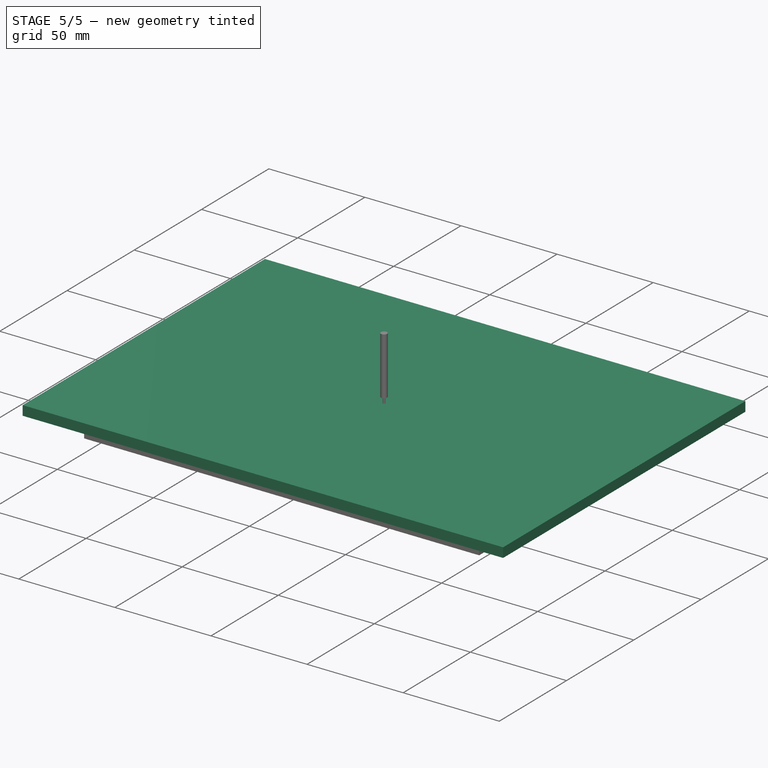
[diagram: stage 5 of 5 — iso view after this stage's code; geometry added in this stage tinted green]
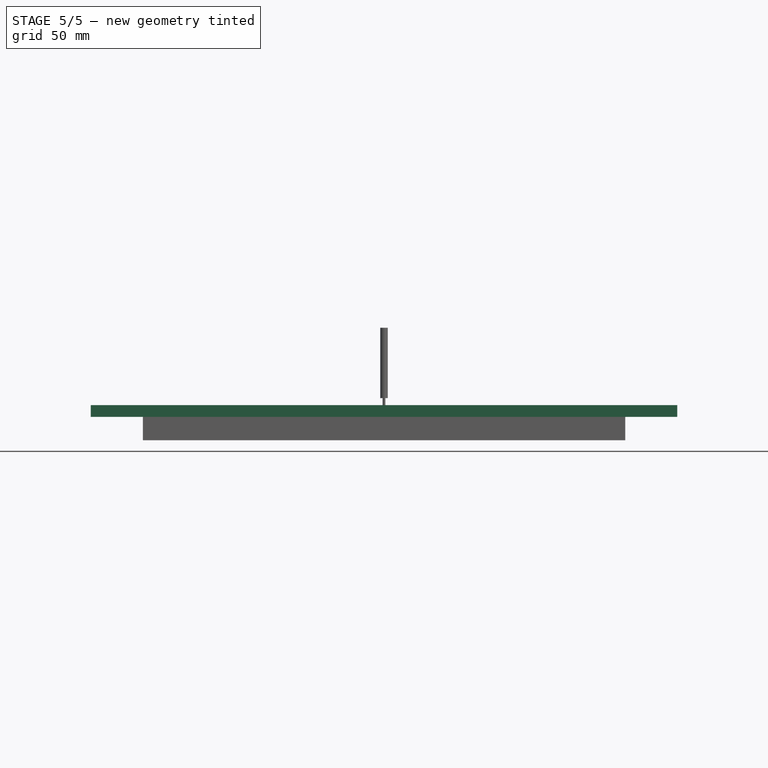
[diagram: stage 5 of 5 — front view after this stage's code; geometry added in this stage tinted green]
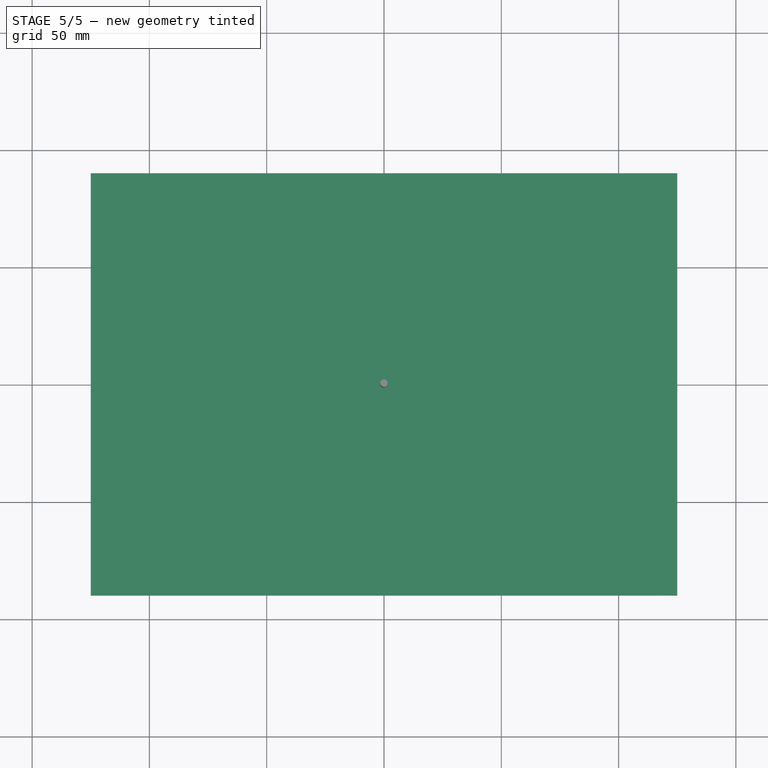
[diagram: stage 5 of 5 — top view after this stage's code; geometry added in this stage tinted green]
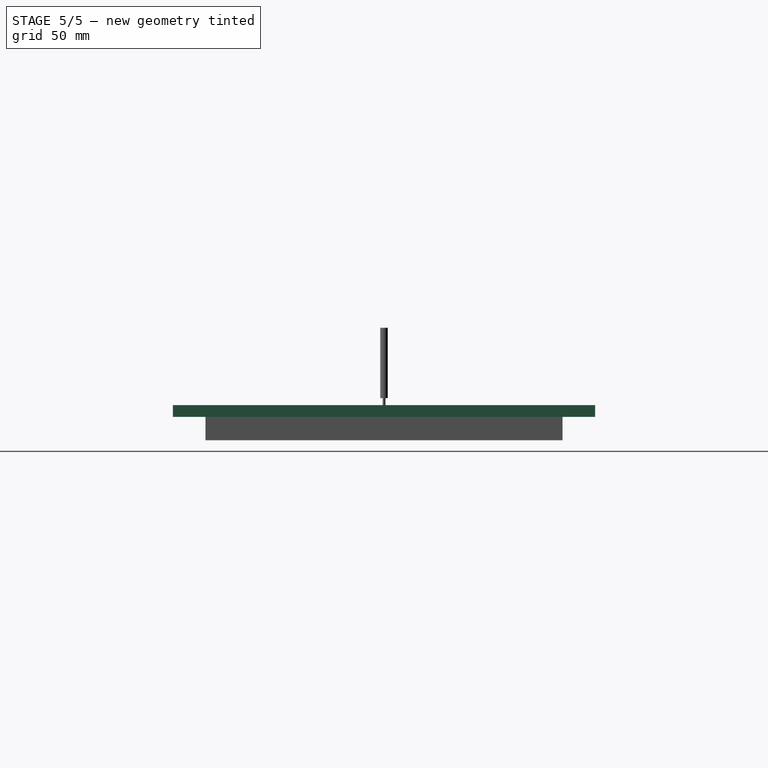
[diagram: stage 5 of 5 — right view after this stage's code; geometry added in this stage tinted green]
FEATURE [Part::Feature] Plane_002_solid  label="Ghost_Orin"
  Placement = pos=(0,-6,-5) rot=(1,0,0;1.5708rad)
  shape: bbox 48.17 x 49.61 x 5 mm, 1472 faces (baked)
FEATURE [Sketcher::SketchObject] Sketch
  ArcFitTolerance = 1e-06
  AttachmentSupport = -> [XY_Plane]
  FullyConstrained = true
  MakeInternals = false
  MapMode = 5
  sketch-geometry (5):
    g0: LineSegment StartX=-125 StartY=-90 StartZ=0 EndX=125 EndY=-90 EndZ=0
    g1: LineSegment StartX=125 StartY=-90 StartZ=0 EndX=125 EndY=90 EndZ=0
    g2: LineSegment StartX=125 StartY=90 StartZ=0 EndX=-125 EndY=90 EndZ=0
    g3: LineSegment StartX=-125 StartY=90 StartZ=0 EndX=-125 EndY=-90 EndZ=0
    g4: GeomPoint [constr] X=0 Y=0 Z=0
  constraints (12):
    c: Coincident(g0,g1)
    c: Coincident(g1,g2)
    c: Coincident(g2,g3)
    c: Coincident(g3,g0)
    c: Horizontal(g0)
    c: Horizontal(g2)
    c: Vertical(g1)
    c: Vertical(g3)
    c: Symmetric(g2,g0,g4)
    c: Distance(g1,g3) = 250
    c: Distance(g0,g2) = 180
    c: Coincident(g4,g-1)
FEATURE [PartDesign::Pad] Pad
  Direction = (0,0,1)
  Length = 5
  Length2 = 10
  Profile = -> Sketch
  ReferenceAxis = -> Sketch [N_Axis]
  Refine = true
  Suppressed = false
  Type = 0
FEATURE [PartDesign::Body] Body  label="BasePanel"
  AllowCompound = false
  Group = -> [Sketch,Pad]
  Origin = -> Origin
  Placement = pos=(0,0,-10) rot=(0,0,1;0rad)
  Tip = -> Pad
FEATURE [Sketcher::SketchObject] Sketch001
  ArcFitTolerance = 1e-06
  AttachmentSupport = -> [XY_Plane001]
  FullyConstrained = false
  MakeInternals = false
  MapMode = 5
  sketch-geometry (127):
    g0: LineSegment StartX=0 StartY=22.764 StartZ=0 EndX=-1.99102 EndY=22.764 EndZ=0
    g1: LineSegment StartX=-1.99102 StartY=22.764 StartZ=0 EndX=-4.07261 EndY=22.4239 EndZ=0
    g2: LineSegment StartX=-4.07261 StartY=22.4239 StartZ=0 EndX=-6.3927 EndY=21.6467 EndZ=0
    g3: LineSegment StartX=-6.3927 StartY=21.6467 StartZ=0 EndX=-8.17497 EndY=20.8304 EndZ=0
    g4: LineSegment StartX=-8.17497 StartY=20.8304 StartZ=0 EndX=-10.2566 EndY=19.6603 EndZ=0
    g5: LineSegment StartX=-10.2566 StartY=19.6603 StartZ=0 EndX=-12.2837 EndY=18.3406 EndZ=0
    g6: LineSegment StartX=-12.2837 StartY=18.3406 StartZ=0 EndX=-13.9624 EndY=16.4178 EndZ=0
    g7: LineSegment StartX=-13.9624 StartY=16.4178 StartZ=0 EndX=-15.3637 EndY=14.2818 EndZ=0
    g8: LineSegment StartX=-15.3637 StartY=14.2818 StartZ=0 EndX=-16.0452 EndY=12.8064 EndZ=0
    g9: LineSegment StartX=-16.0452 StartY=12.8064 StartZ=0 EndX=-16.5622 EndY=11.2827 EndZ=0
    g10: LineSegment StartX=-16.5622 StartY=11.2827 StartZ=0 EndX=-16.916 EndY=9.73169 EndZ=0
    g11: LineSegment StartX=-16.916 StartY=9.73169 StartZ=0 EndX=-17.1609 EndY=8.27594 EndZ=0
    g12: LineSegment StartX=-17.1609 StartY=8.27594 StartZ=0 EndX=-17.2846 EndY=4.90729 EndZ=0
    g13: LineSegment StartX=-17.2846 StartY=4.90729 StartZ=0 EndX=-17.3918 EndY=4.5569 EndZ=0
    g14: LineSegment StartX=-17.3918 StartY=4.5569 StartZ=0 EndX=-17.4958 EndY=4.28514 EndZ=0
    g15: LineSegment StartX=-17.4958 StartY=4.28514 StartZ=0 EndX=-17.6165 EndY=4.09727 EndZ=0
    g16: LineSegment StartX=-17.6165 StartY=4.09727 StartZ=0 EndX=-17.7608 EndY=3.91945 EndZ=0
    g17: LineSegment StartX=-17.7608 StartY=3.91945 StartZ=0 EndX=-17.9755 EndY=3.81545 EndZ=0
    g18: LineSegment StartX=-17.9755 StartY=3.81545 StartZ=0 EndX=-18.2439 EndY=3.74499 EndZ=0
    g19: LineSegment StartX=-18.2439 StartY=3.74499 StartZ=0 EndX=-18.5811 EndY=3.71799 EndZ=0
    g20: LineSegment StartX=-18.5811 StartY=3.71799 StartZ=0 EndX=-18.864 EndY=3.70425 EndZ=0
    g21: LineSegment StartX=-18.864 StartY=3.70425 StartZ=0 EndX=-19.3035 EndY=3.72348 EndZ=0
    g22: LineSegment StartX=-19.3035 StartY=3.72348 StartZ=0 EndX=-19.7128 EndY=3.72348 EndZ=0
    g23: LineSegment StartX=-19.7128 StartY=3.72348 StartZ=0 EndX=-20.1413 EndY=3.70151 EndZ=0
    g24: LineSegment StartX=-20.1413 StartY=3.70151 StartZ=0 EndX=-20.5121 EndY=3.64932 EndZ=0
    g25: LineSegment StartX=-20.5121 StartY=3.64932 StartZ=0 EndX=-20.9918 EndY=3.54452 EndZ=0
    g26: LineSegment StartX=-20.9918 StartY=3.54452 StartZ=0 EndX=-21.3984 EndY=3.44838 EndZ=0
    g27: LineSegment StartX=-21.3984 StartY=3.44838 StartZ=0 EndX=-21.9202 EndY=3.25611 EndZ=0
    g28: LineSegment StartX=-21.9202 StartY=3.25611 StartZ=0 EndX=-22.3103 EndY=3.06108 EndZ=0
    g29: LineSegment StartX=-22.3103 StartY=3.06108 StartZ=0 EndX=-22.7158 EndY=2.77458 EndZ=0
    g30: LineSegment StartX=-22.7158 StartY=2.77458 StartZ=0 EndX=-23.0619 EndY=2.44222 EndZ=0
    g31: LineSegment StartX=-23.0619 StartY=2.44222 StartZ=0 EndX=-23.3563 EndY=2.11436 EndZ=0
    g32: LineSegment StartX=-23.3563 StartY=2.11436 StartZ=0 EndX=-23.5815 EndY=1.81221 EndZ=0
    g33: LineSegment StartX=-23.5815 StartY=1.81221 StartZ=0 EndX=-23.7467 EndY=1.47898 EndZ=0
    g34: LineSegment StartX=-23.7467 StartY=1.47898 StartZ=0 EndX=-23.9252 EndY=1.023 EndZ=0
    g35: LineSegment StartX=-23.9252 StartY=1.023 StartZ=0 EndX=-24.019 EndY=0.620725 EndZ=0
    g36: LineSegment StartX=-24.019 StartY=0.620725 StartZ=0 EndX=-24.0821 EndY=0.162005 EndZ=0
    g37: LineSegment StartX=-24.0821 StartY=0.162005 StartZ=0 EndX=-24.1091 EndY=-0.371894 EndZ=0
    g38: LineSegment StartX=-24.1091 StartY=-0.371894 StartZ=0 EndX=-24.0886 EndY=-0.826749 EndZ=0
    g39: LineSegment StartX=-24.0886 StartY=-0.826749 StartZ=0 EndX=-24.0388 EndY=-1.36101 EndZ=0
    g40: LineSegment StartX=-24.0388 StartY=-1.36101 StartZ=0 EndX=-23.9446 EndY=-1.83636 EndZ=0
    g41: LineSegment StartX=-23.9446 StartY=-1.83636 StartZ=0 EndX=-23.8297 EndY=-2.27704 EndZ=0
    g42: LineSegment StartX=-23.8297 StartY=-2.27704 StartZ=0 EndX=-23.6617 EndY=-2.75238 EndZ=0
    g43: LineSegment StartX=-23.6617 StartY=-2.75238 StartZ=0 EndX=-23.4445 EndY=-3.19904 EndZ=0
    g44: LineSegment StartX=-23.4445 StartY=-3.19904 StartZ=0 EndX=-23.1781 EndY=-3.6539 EndZ=0
    g45: LineSegment StartX=-23.1781 StartY=-3.6539 StartZ=0 EndX=-22.8741 EndY=-4.1274 EndZ=0
    g46: LineSegment StartX=-22.8741 StartY=-4.1274 StartZ=0 EndX=-22.5217 EndY=-4.61914 EndZ=0
    g47: LineSegment StartX=-22.5217 StartY=-4.61914 StartZ=0 EndX=-22.116 EndY=-5.0576 EndZ=0
    g48: LineSegment StartX=-22.116 StartY=-5.0576 StartZ=0 EndX=-21.7513 EndY=-5.44689 EndZ=0
    g49: LineSegment StartX=-21.7513 StartY=-5.44689 StartZ=0 EndX=-21.041 EndY=-6.06755 EndZ=0
    g50: LineSegment StartX=-21.041 StartY=-6.06755 StartZ=0 EndX=-20.2707 EndY=-6.65353 EndZ=0
    g51: LineSegment StartX=-20.2707 StartY=-6.65353 StartZ=0 EndX=-19.8843 EndY=-6.92972 EndZ=0
    g52: LineSegment StartX=-19.8843 StartY=-6.92972 StartZ=0 EndX=-19.5606 EndY=-7.18788 EndZ=0
    g53: LineSegment StartX=-19.5606 StartY=-7.18788 StartZ=0 EndX=-19.1467 EndY=-7.56898 EndZ=0
    g54: LineSegment StartX=-19.1467 StartY=-7.56898 StartZ=0 EndX=-18.8464 EndY=-7.86544 EndZ=0
    g55: LineSegment StartX=-18.8464 StartY=-7.86544 StartZ=0 EndX=-18.6866 EndY=-8.21785 EndZ=0
    g56: LineSegment StartX=-18.6866 StartY=-8.21785 StartZ=0 EndX=-18.621 EndY=-8.43504 EndZ=0
    g57: LineSegment StartX=-18.621 StartY=-8.43504 StartZ=0 EndX=-18.4817 EndY=-8.96775 EndZ=0
    g58: LineSegment StartX=-18.4817 StartY=-8.96775 StartZ=0 EndX=-18.4817 EndY=-9.40253 EndZ=0
    g59: LineSegment StartX=-18.4817 StartY=-9.40253 StartZ=0 EndX=-18.4975 EndY=-9.82758 EndZ=0
    g60: LineSegment StartX=-18.4975 StartY=-9.82758 StartZ=0 EndX=-18.5786 EndY=-10.4 EndZ=0
    g61: LineSegment StartX=-18.5786 StartY=-10.4 StartZ=0 EndX=-18.6641 EndY=-10.888 EndZ=0
    g62: LineSegment StartX=-18.6641 StartY=-10.888 StartZ=0 EndX=-19.8704 EndY=-16.4561 EndZ=0
    g63: LineSegment StartX=-19.8704 StartY=-16.4561 StartZ=0 EndX=-20.2764 EndY=-17.6536 EndZ=0
    g64: LineSegment StartX=-20.2764 StartY=-17.6536 StartZ=0 EndX=-20.6011 EndY=-18.3437 EndZ=0
    g65: LineSegment StartX=-20.6011 StartY=-18.3437 StartZ=0 EndX=-21.4642 EndY=-20.068 EndZ=0
    g66: LineSegment StartX=-21.4642 StartY=-20.068 StartZ=0 EndX=-22.0167 EndY=-21.1656 EndZ=0
    g67: LineSegment StartX=-22.0167 StartY=-21.1656 StartZ=0 EndX=-22.2332 EndY=-21.5912 EndZ=0
    g68: LineSegment StartX=-22.2332 StartY=-21.5912 StartZ=0 EndX=-22.3751 EndY=-22.0019 EndZ=0
    g69: LineSegment StartX=-22.3751 StartY=-22.0019 StartZ=0 EndX=-22.3751 EndY=-22.4439 EndZ=0
    g70: LineSegment StartX=-22.3751 StartY=-22.4439 StartZ=0 EndX=-22.2996 EndY=-22.7996 EndZ=0
    g71: LineSegment StartX=-22.2996 StartY=-22.7996 StartZ=0 EndX=-22.1251 EndY=-23.0378 EndZ=0
    g72: LineSegment StartX=-22.1251 StartY=-23.0378 StartZ=0 EndX=-21.8802 EndY=-23.2995 EndZ=0
    g73: LineSegment StartX=-21.8802 StartY=-23.2995 StartZ=0 EndX=-21.3421 EndY=-23.6328 EndZ=0
    g74: LineSegment StartX=-21.3421 StartY=-23.6328 StartZ=0 EndX=-21.0603 EndY=-23.7334 EndZ=0
    g75: LineSegment StartX=-21.0603 StartY=-23.7334 StartZ=0 EndX=-20.765 EndY=-23.7972 EndZ=0
    g76: LineSegment StartX=-20.765 StartY=-23.7972 StartZ=0 EndX=-20.2618 EndY=-23.8408 EndZ=0
    g77: LineSegment StartX=-20.2618 StartY=-23.8408 StartZ=0 EndX=-19.7183 EndY=-23.8408 EndZ=0
    g78: LineSegment StartX=-19.7183 StartY=-23.8408 StartZ=0 EndX=-19.0525 EndY=-23.7972 EndZ=0
    g79: LineSegment StartX=-19.0525 StartY=-23.7972 StartZ=0 EndX=-18.2708 EndY=-23.6765 EndZ=0
    g80: LineSegment StartX=-18.2708 StartY=-23.6765 StartZ=0 EndX=-17.6769 EndY=-23.5926 EndZ=0
    g81: LineSegment StartX=-17.6769 StartY=-23.5926 StartZ=0 EndX=-17.2827 EndY=-23.5285 EndZ=0
    g82: LineSegment StartX=-17.2827 StartY=-23.5285 StartZ=0 EndX=-16.974 EndY=-23.505 EndZ=0
    g83: LineSegment StartX=-16.974 StartY=-23.505 StartZ=0 EndX=-16.7627 EndY=-23.5788 EndZ=0
    g84: LineSegment StartX=-16.7627 StartY=-23.5788 StartZ=0 EndX=-16.5916 EndY=-23.7163 EndZ=0
    g85: LineSegment StartX=-16.5916 StartY=-23.7163 StartZ=0 EndX=-16.0972 EndY=-24.2139 EndZ=0
    g86: LineSegment StartX=-16.0972 StartY=-24.2139 StartZ=0 EndX=-15.6476 EndY=-24.8011 EndZ=0
    g87: LineSegment StartX=-15.6476 StartY=-24.8011 StartZ=0 EndX=-15.3416 EndY=-25.1409 EndZ=0
    g88: LineSegment StartX=-15.3416 StartY=-25.1409 StartZ=0 EndX=-15.043 EndY=-25.4294 EndZ=0
    g89: LineSegment StartX=-15.043 StartY=-25.4294 StartZ=0 EndX=-14.3941 EndY=-26.0415 EndZ=0
    g90: LineSegment StartX=-14.3941 StartY=-26.0415 StartZ=0 EndX=-13.901 EndY=-26.387 EndZ=0
    g91: LineSegment StartX=-13.901 StartY=-26.387 StartZ=0 EndX=-13.5104 EndY=-26.6068 EndZ=0
    g92: LineSegment StartX=-13.5104 StartY=-26.6068 StartZ=0 EndX=-13.0407 EndY=-26.7645 EndZ=0
    g93: LineSegment StartX=-13.0407 StartY=-26.7645 StartZ=0 EndX=-12.6314 EndY=-26.8282 EndZ=0
    g94: LineSegment StartX=-12.6314 StartY=-26.8282 StartZ=0 EndX=-12.2322 EndY=-26.8282 EndZ=0
    g95: LineSegment StartX=-12.2322 StartY=-26.8282 StartZ=0 EndX=-11.276 EndY=-26.7242 EndZ=0
    g96: LineSegment StartX=-11.276 StartY=-26.7242 StartZ=0 EndX=-10.7908 EndY=-26.6634 EndZ=0
    g97: LineSegment StartX=-10.7908 StartY=-26.6634 StartZ=0 EndX=-10.415 EndY=-26.5795 EndZ=0
    g98: LineSegment StartX=-10.415 StartY=-26.5795 StartZ=0 EndX=-10.0963 EndY=-26.4319 EndZ=0
    g99: LineSegment StartX=-10.0963 StartY=-26.4319 StartZ=0 EndX=-9.78092 EndY=-26.2138 EndZ=0
    g100: LineSegment StartX=-9.78092 StartY=-26.2138 StartZ=0 EndX=-9.24321 EndY=-25.7804 EndZ=0
    g101: LineSegment StartX=-9.24321 StartY=-25.7804 StartZ=0 EndX=-8.77016 EndY=-25.2235 EndZ=0
    g102: LineSegment StartX=-8.77016 StartY=-25.2235 StartZ=0 EndX=-8.19855 EndY=-24.5672 EndZ=0
    g103: LineSegment StartX=-8.19855 StartY=-24.5672 StartZ=0 EndX=-7.83957 EndY=-24.1847 EndZ=0
    g104: LineSegment StartX=-7.83957 StartY=-24.1847 StartZ=0 EndX=-7.51413 EndY=-23.8962 EndZ=0
    g105: LineSegment StartX=-7.51413 StartY=-23.8962 StartZ=0 EndX=-6.97545 EndY=-23.5791 EndZ=0
    g106: LineSegment StartX=-6.97545 StartY=-23.5791 StartZ=0 EndX=-6.45058 EndY=-23.3987 EndZ=0
    g107: LineSegment StartX=-6.45058 StartY=-23.3987 StartZ=0 EndX=-5.83406 EndY=-23.3477 EndZ=0
    g108: LineSegment StartX=-5.83406 StartY=-23.3477 StartZ=0 EndX=-5.4214 EndY=-23.3477 EndZ=0
    g109: LineSegment StartX=-5.4214 StartY=-23.3477 StartZ=0 EndX=-5.1228 EndY=-23.3947 EndZ=0
    g110: LineSegment StartX=-5.1228 StartY=-23.3947 StartZ=0 EndX=-4.82085 EndY=-23.4685 EndZ=0
    g111: LineSegment StartX=-4.82085 StartY=-23.4685 StartZ=0 EndX=-4.61462 EndY=-23.5423 EndZ=0
    g112: LineSegment StartX=-4.61462 StartY=-23.5423 StartZ=0 EndX=-4.37306 EndY=-23.6497 EndZ=0
    g113: LineSegment StartX=-4.37306 StartY=-23.6497 StartZ=0 EndX=-4.15499 EndY=-23.7839 EndZ=0
    g114: LineSegment StartX=-4.15499 StartY=-23.7839 StartZ=0 EndX=-3.95369 EndY=-23.9315 EndZ=0
    g115: LineSegment StartX=-3.95369 StartY=-23.9315 StartZ=0 EndX=-3.52335 EndY=-24.3449 EndZ=0
    g116: LineSegment StartX=-3.52335 StartY=-24.3449 StartZ=0 EndX=-3.20417 EndY=-24.6706 EndZ=0
    g117: LineSegment StartX=-3.20417 StartY=-24.6706 StartZ=0 EndX=-2.94891 EndY=-24.9008 EndZ=0
    g118: LineSegment StartX=-2.94891 StartY=-24.9008 StartZ=0 EndX=-2.58421 EndY=-25.1438 EndZ=0
    g119: LineSegment StartX=-2.58421 StartY=-25.1438 StartZ=0 EndX=-2.23811 EndY=-25.3471 EndZ=0
    g120: LineSegment StartX=-2.23811 StartY=-25.3471 StartZ=0 EndX=-1.96228 EndY=-25.4768 EndZ=0
    g121: LineSegment StartX=-1.96228 StartY=-25.4768 StartZ=0 EndX=-1.77 EndY=-25.5482 EndZ=0
    g122: LineSegment StartX=-1.77 StartY=-25.5482 StartZ=0 EndX=-1.44862 EndY=-25.6361 EndZ=0
    g123: LineSegment StartX=-1.44862 StartY=-25.6361 StartZ=0 EndX=-1.05033 EndY=-25.7075 EndZ=0
    g124: LineSegment StartX=-1.05033 StartY=-25.7075 StartZ=0 EndX=-0.48349 EndY=-25.76 EndZ=0
    g125: LineSegment StartX=-0.48349 StartY=-25.76 StartZ=0 EndX=0 EndY=-25.7792 EndZ=0
    g126: LineSegment StartX=0 StartY=-25.7792 StartZ=0 EndX=0 EndY=22.764 EndZ=0
  constraints (135):
    c: PointOnObject(g0,g-2)
    c: Horizontal(g0)
    c: Coincident(g0,g1)
    c: Coincident(g1,g2)
    c: Coincident(g2,g3)
    c: Coincident(g3,g4)
    c: Coincident(g4,g5)
    c: Coincident(g5,g6)
    c: Coincident(g6,g7)
    c: Coincident(g7,g8)
    c: Coincident(g8,g9)
    c: Coincident(g9,g10)
    c: Coincident(g10,g11)
    c: Coincident(g11,g12)
    c: Coincident(g12,g13)
    c: Coincident(g13,g14)
    c: Coincident(g14,g15)
    c: Coincident(g15,g16)
    c: Coincident(g16,g17)
    c: Coincident(g17,g18)
    c: Coincident(g18,g19)
    c: Coincident(g19,g20)
    c: Coincident(g20,g21)
    c: Coincident(g21,g22)
    c: Horizontal(g22)
    c: Coincident(g22,g23)
    c: Coincident(g23,g24)
    c: Coincident(g24,g25)
    c: Coincident(g25,g26)
    c: Coincident(g26,g27)
    c: Coincident(g27,g28)
    c: Coincident(g28,g29)
    c: Coincident(g29,g30)
    c: Coincident(g30,g31)
    c: Coincident(g31,g32)
    c: Coincident(g32,g33)
    c: Coincident(g33,g34)
    c: Coincident(g34,g35)
    c: Coincident(g35,g36)
    c: Coincident(g36,g37)
    c: Coincident(g37,g38)
    c: Coincident(g38,g39)
    c: Coincident(g39,g40)
    c: Coincident(g40,g41)
    c: Coincident(g41,g42)
    c: Coincident(g42,g43)
    c: Coincident(g43,g44)
    c: Coincident(g44,g45)
    c: Coincident(g45,g46)
    c: Coincident(g46,g47)
    c: Coincident(g47,g48)
    c: Coincident(g48,g49)
    c: Coincident(g49,g50)
    c: Coincident(g50,g51)
    c: Coincident(g51,g52)
    c: Coincident(g52,g53)
    c: Coincident(g53,g54)
    c: Coincident(g54,g55)
    c: Coincident(g55,g56)
    c: Coincident(g56,g57)
    c: Coincident(g57,g58)
    c: Vertical(g58)
    c: Coincident(g58,g59)
    c: Coincident(g59,g60)
    c: Coincident(g60,g61)
    c: Coincident(g61,g62)
    c: Coincident(g62,g63)
    c: Coincident(g63,g64)
    c: Coincident(g64,g65)
    c: Coincident(g65,g66)
    c: Coincident(g66,g67)
    c: Coincident(g67,g68)
    c: Coincident(g68,g69)
    c: Vertical(g69)
    c: Coincident(g69,g70)
    c: Coincident(g70,g71)
    c: Coincident(g71,g72)
    c: Coincident(g72,g73)
    c: Coincident(g73,g74)
    c: Coincident(g74,g75)
    c: Coincident(g75,g76)
    c: Coincident(g76,g77)
    c: Horizontal(g77)
    c: Coincident(g77,g78)
    c: Coincident(g78,g79)
    c: Coincident(g79,g80)
    c: Coincident(g80,g81)
    c: Coincident(g81,g82)
    c: Coincident(g82,g83)
    c: Coincident(g83,g84)
    c: Coincident(g84,g85)
    c: Coincident(g85,g86)
    c: Coincident(g86,g87)
    c: Coincident(g87,g88)
    c: Coincident(g88,g89)
    c: Coincident(g89,g90)
    c: Coincident(g90,g91)
    c: Coincident(g91,g92)
    c: Coincident(g92,g93)
    c: Coincident(g93,g94)
    c: Horizontal(g94)
    c: Coincident(g94,g95)
    c: Coincident(g95,g96)
    c: Coincident(g96,g97)
    c: Coincident(g97,g98)
    c: Coincident(g98,g99)
    c: Coincident(g99,g100)
    c: Coincident(g100,g101)
    c: Coincident(g101,g102)
    c: Coincident(g102,g103)
    c: Coincident(g103,g104)
    c: Coincident(g104,g105)
    c: Coincident(g105,g106)
    c: Coincident(g106,g107)
    c: Coincident(g107,g108)
    c: Horizontal(g108)
    c: Coincident(g108,g109)
    c: Coincident(g109,g110)
    c: Coincident(g110,g111)
    c: Coincident(g111,g112)
    c: Coincident(g112,g113)
    c: Coincident(g113,g114)
    c: Coincident(g114,g115)
    c: Coincident(g115,g116)
    c: Coincident(g116,g117)
    c: Coincident(g117,g118)
    c: Coincident(g118,g119)
    c: Coincident(g119,g120)
    c: Coincident(g120,g121)
    c: Coincident(g121,g122)
    c: Coincident(g122,g123)
    c: Coincident(g123,g124)
    c: Coincident(g124,g125)
    c: PointOnObject(g125,g-2)
    c: Coincident(g125,g126)
FEATURE [PartDesign::Pad] Pad001
  Direction = (0,0,1)
  Length = 5
  Length2 = 10
  Profile = -> Sketch001
  ReferenceAxis = -> Sketch001 [N_Axis]
  Refine = true
  Suppressed = false
  Type = 0
FEATURE [Sketcher::SketchObject] Sketch002
  ArcFitTolerance = 1e-06
  AttachmentSupport = -> [Pad001]
  FullyConstrained = false
  MakeInternals = false
  MapMode = 5
  Placement = pos=(0,0,5) rot=(0,0,1;0rad)
  sketch-geometry (112):
    g0: Ellipse CenterX=-6.84184 CenterY=9.93713 CenterZ=0 NormalX=0 NormalY=0 NormalZ=1 MajorRadius=2.85356 MinorRadius=2.13212 AngleXU=1.52735
    g1: LineSegment [constr] StartX=-6.71789 StartY=12.788 StartZ=0 EndX=-6.96579 EndY=7.08626 EndZ=0
    g2: LineSegment [constr] StartX=-8.97195 StartY=10.0297 StartZ=0 EndX=-4.71174 EndY=9.84451 EndZ=0
    g3: GeomPoint [constr] X=-6.75946 Y=11.8319 Z=0
    g4: GeomPoint [constr] X=-6.92422 Y=8.04237 Z=0
    g5: LineSegment StartX=0 StartY=2.1596 StartZ=0 EndX=-0.250505 EndY=2.17189 EndZ=0
    g6: LineSegment StartX=-0.250505 StartY=2.17189 StartZ=0 EndX=-0.510897 EndY=2.18637 EndZ=0
    g7: LineSegment StartX=-0.510897 StartY=2.18637 StartZ=0 EndX=-0.770086 EndY=2.2271 EndZ=0
    g8: LineSegment StartX=-0.770086 StartY=2.2271 StartZ=0 EndX=-0.944502 EndY=2.28892 EndZ=0
    g9: LineSegment StartX=-0.944502 StartY=2.28892 StartZ=0 EndX=-1.09261 EndY=2.35927 EndZ=0
    g10: LineSegment StartX=-1.09261 StartY=2.35927 StartZ=0 EndX=-1.19258 EndY=2.41605 EndZ=0
    g11: LineSegment StartX=-1.19258 StartY=2.41605 StartZ=0 EndX=-1.28762 EndY=2.48393 EndZ=0
    g12: LineSegment StartX=-1.28762 StartY=2.48393 StartZ=0 EndX=-1.38204 EndY=2.5709 EndZ=0
    g13: LineSegment StartX=-1.38204 StartY=2.5709 StartZ=0 EndX=-1.47338 EndY=2.66964 EndZ=0
    g14: LineSegment StartX=-1.47338 StartY=2.66964 StartZ=0 EndX=-1.56347 EndY=2.76837 EndZ=0
    g15: LineSegment StartX=-1.56347 StartY=2.76837 StartZ=0 EndX=-1.65604 EndY=2.88686 EndZ=0
    g16: LineSegment StartX=-1.65604 StartY=2.88686 StartZ=0 EndX=-1.78485 EndY=3.10862 EndZ=0
    g17: LineSegment StartX=-1.78485 StartY=3.10862 StartZ=0 EndX=-1.92185 EndY=3.30117 EndZ=0
    g18: LineSegment StartX=-1.92185 StartY=3.30117 StartZ=0 EndX=-2.06131 EndY=3.49124 EndZ=0
    g19: LineSegment StartX=-2.06131 StartY=3.49124 StartZ=0 EndX=-2.14277 EndY=3.57517 EndZ=0
    g20: LineSegment StartX=-2.14277 StartY=3.57517 StartZ=0 EndX=-2.21806 EndY=3.63317 EndZ=0
    g21: LineSegment StartX=-2.21806 StartY=3.63317 StartZ=0 EndX=-2.42738 EndY=3.7165 EndZ=0
    g22: LineSegment StartX=-2.42738 StartY=3.7165 StartZ=0 EndX=-2.60018 EndY=3.75353 EndZ=0
    g23: LineSegment StartX=-2.60018 StartY=3.75353 StartZ=0 EndX=-2.73471 EndY=3.76464 EndZ=0
    g24: LineSegment StartX=-2.73471 StartY=3.76464 StartZ=0 EndX=-2.85196 EndY=3.76464 EndZ=0
    g25: LineSegment StartX=-2.85196 StartY=3.76464 StartZ=0 EndX=-2.96952 EndY=3.75115 EndZ=0
    g26: LineSegment StartX=-2.96952 StartY=3.75115 StartZ=0 EndX=-3.09295 EndY=3.72276 EndZ=0
    g27: LineSegment StartX=-3.09295 StartY=3.72276 StartZ=0 EndX=-3.40767 EndY=3.64501 EndZ=0
    g28: LineSegment StartX=-3.40767 StartY=3.64501 StartZ=0 EndX=-3.68236 EndY=3.53747 EndZ=0
    g29: LineSegment StartX=-3.68236 StartY=3.53747 StartZ=0 EndX=-3.84281 EndY=3.45107 EndZ=0
    g30: LineSegment StartX=-3.84281 StartY=3.45107 StartZ=0 EndX=-4.02425 EndY=3.33259 EndZ=0
    g31: LineSegment StartX=-4.02425 StartY=3.33259 StartZ=0 EndX=-4.36036 EndY=3.01489 EndZ=0
    g32: LineSegment StartX=-4.36036 StartY=3.01489 StartZ=0 EndX=-4.53232 EndY=2.84331 EndZ=0
    g33: LineSegment StartX=-4.53232 StartY=2.84331 StartZ=0 EndX=-4.66121 EndY=2.68312 EndZ=0
    g34: LineSegment StartX=-4.66121 StartY=2.68312 StartZ=0 EndX=-4.80667 EndY=2.42166 EndZ=0
    g35: LineSegment StartX=-4.80667 StartY=2.42166 StartZ=0 EndX=-4.8748 EndY=2.35538 EndZ=0
    g36: LineSegment StartX=-4.8748 StartY=2.35538 StartZ=0 EndX=-4.97607 EndY=2.28357 EndZ=0
    g37: LineSegment StartX=-4.97607 StartY=2.28357 StartZ=0 EndX=-5.10311 EndY=2.22833 EndZ=0
    g38: LineSegment StartX=-5.10311 StartY=2.22833 StartZ=0 EndX=-5.24121 EndY=2.1823 EndZ=0
    g39: LineSegment StartX=-5.24121 StartY=2.1823 StartZ=0 EndX=-5.35352 EndY=2.1823 EndZ=0
    g40: LineSegment StartX=-5.35352 StartY=2.1823 StartZ=0 EndX=-5.45847 EndY=2.20071 EndZ=0
    g41: LineSegment StartX=-5.45847 StartY=2.20071 StartZ=0 EndX=-5.61417 EndY=2.29454 EndZ=0
    g42: LineSegment StartX=-5.61417 StartY=2.29454 StartZ=0 EndX=-5.767 EndY=2.43079 EndZ=0
    g43: LineSegment StartX=-5.767 StartY=2.43079 StartZ=0 EndX=-5.92903 EndY=2.74565 EndZ=0
    g44: LineSegment StartX=-5.92903 StartY=2.74565 StartZ=0 EndX=-6.08185 EndY=3.11205 EndZ=0
    g45: LineSegment StartX=-6.08185 StartY=3.11205 StartZ=0 EndX=-6.28441 EndY=3.33426 EndZ=0
    g46: LineSegment StartX=-6.28441 StartY=3.33426 StartZ=0 EndX=-6.4497 EndY=3.46092 EndZ=0
    g47: LineSegment StartX=-6.4497 StartY=3.46092 StartZ=0 EndX=-6.69222 EndY=3.59936 EndZ=0
    g48: LineSegment StartX=-6.69222 StartY=3.59936 StartZ=0 EndX=-6.86098 EndY=3.65292 EndZ=0
    g49: LineSegment StartX=-6.86098 StartY=3.65292 StartZ=0 EndX=-7.00548 EndY=3.68222 EndZ=0
    g50: LineSegment StartX=-7.00548 StartY=3.68222 StartZ=0 EndX=-7.53681 EndY=3.7058 EndZ=0
    g51: LineSegment StartX=-7.53681 StartY=3.7058 StartZ=0 EndX=-8.15226 EndY=3.66948 EndZ=0
    g52: LineSegment StartX=-8.15226 StartY=3.66948 StartZ=0 EndX=-8.44462 EndY=3.59077 EndZ=0
    g53: LineSegment StartX=-8.44462 StartY=3.59077 StartZ=0 EndX=-8.75722 EndY=3.46932 EndZ=0
    g54: LineSegment StartX=-8.75722 StartY=3.46932 StartZ=0 EndX=-8.98436 EndY=3.27142 EndZ=0
    g55: LineSegment StartX=-8.98436 StartY=3.27142 StartZ=0 EndX=-9.17551 EndY=3.05103 EndZ=0
    g56: LineSegment StartX=-9.17551 StartY=3.05103 StartZ=0 EndX=-9.4934 EndY=2.3951 EndZ=0
    g57: LineSegment StartX=-9.4934 StartY=2.3951 StartZ=0 EndX=-9.69378 EndY=1.65213 EndZ=0
    g58: LineSegment StartX=-9.69378 StartY=1.65213 StartZ=0 EndX=-9.80486 EndY=0.869925 EndZ=0
    g59: LineSegment StartX=-9.80486 StartY=0.869925 StartZ=0 EndX=-9.90496 EndY=0.094142 EndZ=0
    g60: LineSegment StartX=-9.90496 StartY=0.094142 StartZ=0 EndX=-10.3412 EndY=-2.83169 EndZ=0
    g61: LineSegment StartX=-10.3412 StartY=-2.83169 StartZ=0 EndX=-10.3013 EndY=-3.11704 EndZ=0
    g62: LineSegment StartX=-10.3013 StartY=-3.11704 StartZ=0 EndX=-10.2455 EndY=-3.37181 EndZ=0
    g63: LineSegment StartX=-10.2455 StartY=-3.37181 StartZ=0 EndX=-10.1279 EndY=-3.55422 EndZ=0
    g64: LineSegment StartX=-10.1279 StartY=-3.55422 StartZ=0 EndX=-9.99224 EndY=-3.74265 EndZ=0
    g65: LineSegment StartX=-9.99224 StartY=-3.74265 StartZ=0 EndX=-9.79295 EndY=-3.87296 EndZ=0
    g66: LineSegment StartX=-9.79295 StartY=-3.87296 StartZ=0 EndX=-9.56381 EndY=-3.98904 EndZ=0
    g67: LineSegment StartX=-9.56381 StartY=-3.98904 StartZ=0 EndX=-9.1794 EndY=-4.15788 EndZ=0
    g68: LineSegment StartX=-9.1794 StartY=-4.15788 StartZ=0 EndX=-9.03549 EndY=-4.16863 EndZ=0
    g69: LineSegment StartX=-9.03549 StartY=-4.16863 StartZ=0 EndX=-8.85459 EndY=-4.15807 EndZ=0
    g70: LineSegment StartX=-8.85459 StartY=-4.15807 StartZ=0 EndX=-8.49507 EndY=-4.07792 EndZ=0
    g71: LineSegment StartX=-8.49507 StartY=-4.07792 StartZ=0 EndX=-8.27028 EndY=-4.00746 EndZ=0
    g72: LineSegment StartX=-8.27028 StartY=-4.00746 StartZ=0 EndX=-7.69658 EndY=-3.729 EndZ=0
    g73: LineSegment StartX=-7.69658 StartY=-3.729 StartZ=0 EndX=-7.32082 EndY=-3.37337 EndZ=0
    g74: LineSegment StartX=-7.32082 StartY=-3.37337 StartZ=0 EndX=-6.93727 EndY=-2.95221 EndZ=0
    g75: LineSegment StartX=-6.93727 StartY=-2.95221 StartZ=0 EndX=-6.66216 EndY=-2.50935 EndZ=0
    g76: LineSegment StartX=-6.66216 StartY=-2.50935 StartZ=0 EndX=-6.51699 EndY=-2.34735 EndZ=0
    g77: LineSegment StartX=-6.51699 StartY=-2.34735 StartZ=0 EndX=-6.37706 EndY=-2.25712 EndZ=0
    g78: LineSegment StartX=-6.37706 StartY=-2.25712 StartZ=0 EndX=-6.25001 EndY=-2.23319 EndZ=0
    g79: LineSegment StartX=-6.25001 StartY=-2.23319 StartZ=0 EndX=-6.11008 EndY=-2.23871 EndZ=0
    g80: LineSegment StartX=-6.11008 StartY=-2.23871 StartZ=0 EndX=-5.96646 EndY=-2.2737 EndZ=0
    g81: LineSegment StartX=-5.96646 StartY=-2.2737 StartZ=0 EndX=-5.85414 EndY=-2.31604 EndZ=0
    g82: LineSegment StartX=-5.85414 StartY=-2.31604 StartZ=0 EndX=-5.71926 EndY=-2.44534 EndZ=0
    g83: LineSegment StartX=-5.71926 StartY=-2.44534 StartZ=0 EndX=-5.61615 EndY=-2.60553 EndZ=0
    g84: LineSegment StartX=-5.61615 StartY=-2.60553 StartZ=0 EndX=-5.49106 EndY=-2.96628 EndZ=0
    g85: LineSegment StartX=-5.49106 StartY=-2.96628 StartZ=0 EndX=-5.378 EndY=-3.34014 EndZ=0
    g86: LineSegment StartX=-5.378 StartY=-3.34014 StartZ=0 EndX=-5.28721 EndY=-3.52187 EndZ=0
    g87: LineSegment StartX=-5.28721 StartY=-3.52187 StartZ=0 EndX=-5.17868 EndY=-3.6907 EndZ=0
    g88: LineSegment StartX=-5.17868 StartY=-3.6907 StartZ=0 EndX=-5.05609 EndY=-3.85417 EndZ=0
    g89: LineSegment StartX=-5.05609 StartY=-3.85417 StartZ=0 EndX=-4.91288 EndY=-4.00643 EndZ=0
    g90: LineSegment StartX=-4.91288 StartY=-4.00643 StartZ=0 EndX=-4.73173 EndY=-4.10176 EndZ=0
    g91: LineSegment StartX=-4.73173 StartY=-4.10176 StartZ=0 EndX=-4.53274 EndY=-4.16959 EndZ=0
    g92: LineSegment StartX=-4.53274 StartY=-4.16959 StartZ=0 EndX=-4.15285 EndY=-4.3113 EndZ=0
    g93: LineSegment StartX=-4.15285 StartY=-4.3113 StartZ=0 EndX=-3.95473 EndY=-4.32799 EndZ=0
    g94: LineSegment StartX=-3.95473 StartY=-4.32799 StartZ=0 EndX=-3.75574 EndY=-4.32799 EndZ=0
    g95: LineSegment StartX=-3.75574 StartY=-4.32799 StartZ=0 EndX=-3.47233 EndY=-4.27825 EndZ=0
    g96: LineSegment StartX=-3.47233 StartY=-4.27825 StartZ=0 EndX=-3.27086 EndY=-4.22713 EndZ=0
    g97: LineSegment StartX=-3.27086 StartY=-4.22713 StartZ=0 EndX=-3.08957 EndY=-4.1667 EndZ=0
    g98: LineSegment StartX=-3.08957 StartY=-4.1667 StartZ=0 EndX=-2.82038 EndY=-3.93871 EndZ=0
    g99: LineSegment StartX=-2.82038 StartY=-3.93871 StartZ=0 EndX=-2.52647 EndY=-3.53767 EndZ=0
    g100: LineSegment StartX=-2.52647 StartY=-3.53767 StartZ=0 EndX=-2.31161 EndY=-3.13562 EndZ=0
    g101: LineSegment StartX=-2.31161 StartY=-3.13562 StartZ=0 EndX=-2.11109 EndY=-2.82248 EndZ=0
    g102: LineSegment StartX=-2.11109 StartY=-2.82248 StartZ=0 EndX=-1.91881 EndY=-2.61922 EndZ=0
    g103: LineSegment StartX=-1.91881 StartY=-2.61922 StartZ=0 EndX=-1.6375 EndY=-2.3401 EndZ=0
    g104: LineSegment StartX=-1.6375 StartY=-2.3401 StartZ=0 EndX=-1.46994 EndY=-2.18628 EndZ=0
    g105: LineSegment StartX=-1.46994 StartY=-2.18628 StartZ=0 EndX=-1.27492 EndY=-2.08739 EndZ=0
    g106: LineSegment StartX=-1.27492 StartY=-2.08739 StartZ=0 EndX=-1.05517 EndY=-1.99126 EndZ=0
    g107: LineSegment StartX=-1.05517 StartY=-1.99126 StartZ=0 EndX=-0.629411 EndY=-1.85391 EndZ=0
    g108: LineSegment StartX=-0.629411 StartY=-1.85391 StartZ=0 EndX=-0.229856 EndY=-1.75175 EndZ=0
    g109: LineSegment StartX=-0.229856 StartY=-1.75175 StartZ=0 EndX=-0.064108 EndY=-1.73807 EndZ=0
    g110: LineSegment StartX=-0.064108 StartY=-1.73807 StartZ=0 EndX=0 EndY=-1.7356 EndZ=0
    g111: LineSegment StartX=0 StartY=-1.7356 StartZ=0 EndX=0 EndY=2.1596 EndZ=0
  constraints (112):
    c: InternalAlignment(g1-g4 -> g0) x4
    c: PointOnObject(g5,g-2)
    c: Coincident(g5,g6)
    c: Coincident(g6,g7)
    c: Coincident(g7,g8)
    c: Coincident(g8,g9)
    c: Coincident(g9,g10)
    c: Coincident(g10,g11)
    c: Coincident(g11,g12)
    c: Coincident(g12,g13)
    c: Coincident(g13,g14)
    c: Coincident(g14,g15)
    c: Coincident(g15,g16)
    c: Coincident(g16,g17)
    c: Coincident(g17,g18)
    c: Coincident(g18,g19)
    c: Coincident(g19,g20)
    c: Coincident(g20,g21)
    c: Coincident(g21,g22)
    c: Coincident(g22,g23)
    c: Coincident(g23,g24)
    c: Horizontal(g24)
    c: Coincident(g24,g25)
    c: Coincident(g25,g26)
    c: Coincident(g26,g27)
    c: Coincident(g27,g28)
    c: Coincident(g28,g29)
    c: Coincident(g29,g30)
    c: Coincident(g30,g31)
    c: Coincident(g31,g32)
    c: Coincident(g32,g33)
    c: Coincident(g33,g34)
    c: Coincident(g34,g35)
    c: Coincident(g35,g36)
    c: Coincident(g36,g37)
    c: Coincident(g37,g38)
    c: Coincident(g38,g39)
    c: Horizontal(g39)
    c: Coincident(g39,g40)
    c: Coincident(g40,g41)
    c: Coincident(g41,g42)
    c: Coincident(g42,g43)
    c: Coincident(g43,g44)
    c: Coincident(g44,g45)
    c: Coincident(g45,g46)
    c: Coincident(g46,g47)
    c: Coincident(g47,g48)
    c: Coincident(g48,g49)
    c: Coincident(g49,g50)
    c: Coincident(g50,g51)
    c: Coincident(g51,g52)
    c: Coincident(g52,g53)
    c: Coincident(g53,g54)
    c: Coincident(g54,g55)
    c: Coincident(g55,g56)
    c: Coincident(g56,g57)
    c: Coincident(g57,g58)
    c: Coincident(g58,g59)
    c: Coincident(g59,g60)
    c: Coincident(g60,g61)
    c: Coincident(g61,g62)
    c: Coincident(g62,g63)
    c: Coincident(g63,g64)
    c: Coincident(g64,g65)
    c: Coincident(g65,g66)
    c: Coincident(g66,g67)
    c: Coincident(g67,g68)
    c: Coincident(g68,g69)
    c: Coincident(g69,g70)
    c: Coincident(g70,g71)
    c: Coincident(g71,g72)
    c: Coincident(g72,g73)
    c: Coincident(g73,g74)
    c: Coincident(g74,g75)
    c: Coincident(g75,g76)
    c: Coincident(g76,g77)
    c: Coincident(g77,g78)
    c: Coincident(g78,g79)
    c: Coincident(g79,g80)
    c: Coincident(g80,g81)
    c: Coincident(g81,g82)
    c: Coincident(g82,g83)
    c: Coincident(g83,g84)
    c: Coincident(g84,g85)
    c: Coincident(g85,g86)
    c: Coincident(g86,g87)
    c: Coincident(g87,g88)
    c: Coincident(g88,g89)
    c: Coincident(g89,g90)
    c: Coincident(g90,g91)
    c: Coincident(g91,g92)
    c: Coincident(g92,g93)
    c: Coincident(g93,g94)
    c: Horizontal(g94)
    c: Coincident(g94,g95)
    c: Coincident(g95,g96)
    c: Coincident(g96,g97)
    c: Coincident(g97,g98)
    c: Coincident(g98,g99)
    c: Coincident(g99,g100)
    c: Coincident(g100,g101)
    c: Coincident(g101,g102)
    c: Coincident(g102,g103)
    c: Coincident(g103,g104)
    c: Coincident(g104,g105)
    c: Coincident(g105,g106)
    c: Coincident(g106,g107)
    c: Coincident(g107,g108)
    c: Coincident(g108,g109)
    c: Coincident(g109,g110)
    c: PointOnObject(g110,g-2)
    c: Coincident(g110,g111)
FEATURE [PartDesign::Pocket] Pocket
  BaseFeature = -> Pad001
  Direction = (0,0,-1)
  Length = 5
  Length2 = 5
  Profile = -> Sketch002
  ReferenceAxis = -> Sketch002 [N_Axis]
  Refine = true
  Suppressed = false
  Type = 0
FEATURE [PartDesign::Body] Body001  label="Ghost_half"
  AllowCompound = false
  Group = -> [Sketch001,Pad001,Sketch002,Pocket]
  Origin = -> Origin001
  Placement = pos=(0,0,-5) rot=(0,0,1;0rad)
  Tip = -> Pocket
FEATURE [Part::Mirroring] Part__Mirroring  label="Ghost_mirror"
  Base = (0,0,0)
  Normal = (1,0,0)
  Source = -> Body001
FEATURE [Part::MultiFuse] Fusion  label="Ghost_Finel"
  Placement = pos=(90,30,0) rot=(0,0,1;1.5708rad)
  Refine = true
  Shapes = -> [Part__Mirroring,Body001]
FEATURE [Sketcher::SketchObject] Sketch005
  ArcFitTolerance = 1e-06
  AttachmentSupport = -> [XY_Plane003]
  FullyConstrained = false
  MakeInternals = false
  MapMode = 5
  sketch-geometry (127):
    g0: LineSegment StartX=0 StartY=22.764 StartZ=0 EndX=-1.99102 EndY=22.764 EndZ=0
    g1: LineSegment StartX=-1.99102 StartY=22.764 StartZ=0 EndX=-4.07261 EndY=22.4239 EndZ=0
    g2: LineSegment StartX=-4.07261 StartY=22.4239 StartZ=0 EndX=-6.3927 EndY=21.6467 EndZ=0
    g3: LineSegment StartX=-6.3927 StartY=21.6467 StartZ=0 EndX=-8.17497 EndY=20.8304 EndZ=0
    g4: LineSegment StartX=-8.17497 StartY=20.8304 StartZ=0 EndX=-10.2566 EndY=19.6603 EndZ=0
    g5: LineSegment StartX=-10.2566 StartY=19.6603 StartZ=0 EndX=-12.2837 EndY=18.3406 EndZ=0
    g6: LineSegment StartX=-12.2837 StartY=18.3406 StartZ=0 EndX=-13.9624 EndY=16.4178 EndZ=0
    g7: LineSegment StartX=-13.9624 StartY=16.4178 StartZ=0 EndX=-15.3637 EndY=14.2818 EndZ=0
    g8: LineSegment StartX=-15.3637 StartY=14.2818 StartZ=0 EndX=-16.0452 EndY=12.8064 EndZ=0
    g9: LineSegment StartX=-16.0452 StartY=12.8064 StartZ=0 EndX=-16.5622 EndY=11.2827 EndZ=0
    g10: LineSegment StartX=-16.5622 StartY=11.2827 StartZ=0 EndX=-16.916 EndY=9.73169 EndZ=0
    g11: LineSegment StartX=-16.916 StartY=9.73169 StartZ=0 EndX=-17.1609 EndY=8.27594 EndZ=0
    g12: LineSegment StartX=-17.1609 StartY=8.27594 StartZ=0 EndX=-17.2846 EndY=4.90729 EndZ=0
    g13: LineSegment StartX=-17.2846 StartY=4.90729 StartZ=0 EndX=-17.3918 EndY=4.5569 EndZ=0
    g14: LineSegment StartX=-17.3918 StartY=4.5569 StartZ=0 EndX=-17.4958 EndY=4.28514 EndZ=0
    g15: LineSegment StartX=-17.4958 StartY=4.28514 StartZ=0 EndX=-17.6165 EndY=4.09727 EndZ=0
    g16: LineSegment StartX=-17.6165 StartY=4.09727 StartZ=0 EndX=-17.7608 EndY=3.91945 EndZ=0
    g17: LineSegment StartX=-17.7608 StartY=3.91945 StartZ=0 EndX=-17.9755 EndY=3.81545 EndZ=0
    g18: LineSegment StartX=-17.9755 StartY=3.81545 StartZ=0 EndX=-18.2439 EndY=3.74499 EndZ=0
    g19: LineSegment StartX=-18.2439 StartY=3.74499 StartZ=0 EndX=-18.5811 EndY=3.71799 EndZ=0
    g20: LineSegment StartX=-18.5811 StartY=3.71799 StartZ=0 EndX=-18.864 EndY=3.70425 EndZ=0
    g21: LineSegment StartX=-18.864 StartY=3.70425 StartZ=0 EndX=-19.3035 EndY=3.72348 EndZ=0
    g22: LineSegment StartX=-19.3035 StartY=3.72348 StartZ=0 EndX=-19.7128 EndY=3.72348 EndZ=0
    g23: LineSegment StartX=-19.7128 StartY=3.72348 StartZ=0 EndX=-20.1413 EndY=3.70151 EndZ=0
    g24: LineSegment StartX=-20.1413 StartY=3.70151 StartZ=0 EndX=-20.5121 EndY=3.64932 EndZ=0
    g25: LineSegment StartX=-20.5121 StartY=3.64932 StartZ=0 EndX=-20.9918 EndY=3.54452 EndZ=0
    g26: LineSegment StartX=-20.9918 StartY=3.54452 StartZ=0 EndX=-21.3984 EndY=3.44838 EndZ=0
    g27: LineSegment StartX=-21.3984 StartY=3.44838 StartZ=0 EndX=-21.9202 EndY=3.25611 EndZ=0
    g28: LineSegment StartX=-21.9202 StartY=3.25611 StartZ=0 EndX=-22.3103 EndY=3.06108 EndZ=0
    g29: LineSegment StartX=-22.3103 StartY=3.06108 StartZ=0 EndX=-22.7158 EndY=2.77458 EndZ=0
    g30: LineSegment StartX=-22.7158 StartY=2.77458 StartZ=0 EndX=-23.0619 EndY=2.44222 EndZ=0
    g31: LineSegment StartX=-23.0619 StartY=2.44222 StartZ=0 EndX=-23.3563 EndY=2.11436 EndZ=0
    g32: LineSegment StartX=-23.3563 StartY=2.11436 StartZ=0 EndX=-23.5815 EndY=1.81221 EndZ=0
    g33: LineSegment StartX=-23.5815 StartY=1.81221 StartZ=0 EndX=-23.7467 EndY=1.47898 EndZ=0
    g34: LineSegment StartX=-23.7467 StartY=1.47898 StartZ=0 EndX=-23.9252 EndY=1.023 EndZ=0
    g35: LineSegment StartX=-23.9252 StartY=1.023 StartZ=0 EndX=-24.019 EndY=0.620725 EndZ=0
    g36: LineSegment StartX=-24.019 StartY=0.620725 StartZ=0 EndX=-24.0821 EndY=0.162005 EndZ=0
    g37: LineSegment StartX=-24.0821 StartY=0.162005 StartZ=0 EndX=-24.1091 EndY=-0.371894 EndZ=0
    g38: LineSegment StartX=-24.1091 StartY=-0.371894 StartZ=0 EndX=-24.0886 EndY=-0.826749 EndZ=0
    g39: LineSegment StartX=-24.0886 StartY=-0.826749 StartZ=0 EndX=-24.0388 EndY=-1.36101 EndZ=0
    g40: LineSegment StartX=-24.0388 StartY=-1.36101 StartZ=0 EndX=-23.9446 EndY=-1.83636 EndZ=0
    g41: LineSegment StartX=-23.9446 StartY=-1.83636 StartZ=0 EndX=-23.8297 EndY=-2.27704 EndZ=0
    g42: LineSegment StartX=-23.8297 StartY=-2.27704 StartZ=0 EndX=-23.6617 EndY=-2.75238 EndZ=0
    g43: LineSegment StartX=-23.6617 StartY=-2.75238 StartZ=0 EndX=-23.4445 EndY=-3.19904 EndZ=0
    g44: LineSegment StartX=-23.4445 StartY=-3.19904 StartZ=0 EndX=-23.1781 EndY=-3.6539 EndZ=0
    g45: LineSegment StartX=-23.1781 StartY=-3.6539 StartZ=0 EndX=-22.8741 EndY=-4.1274 EndZ=0
    g46: LineSegment StartX=-22.8741 StartY=-4.1274 StartZ=0 EndX=-22.5217 EndY=-4.61914 EndZ=0
    g47: LineSegment StartX=-22.5217 StartY=-4.61914 StartZ=0 EndX=-22.116 EndY=-5.0576 EndZ=0
    g48: LineSegment StartX=-22.116 StartY=-5.0576 StartZ=0 EndX=-21.7513 EndY=-5.44689 EndZ=0
    g49: LineSegment StartX=-21.7513 StartY=-5.44689 StartZ=0 EndX=-21.041 EndY=-6.06755 EndZ=0
    g50: LineSegment StartX=-21.041 StartY=-6.06755 StartZ=0 EndX=-20.2707 EndY=-6.65353 EndZ=0
    g51: LineSegment StartX=-20.2707 StartY=-6.65353 StartZ=0 EndX=-19.8843 EndY=-6.92972 EndZ=0
    g52: LineSegment StartX=-19.8843 StartY=-6.92972 StartZ=0 EndX=-19.5606 EndY=-7.18788 EndZ=0
    g53: LineSegment StartX=-19.5606 StartY=-7.18788 StartZ=0 EndX=-19.1467 EndY=-7.56898 EndZ=0
    g54: LineSegment StartX=-19.1467 StartY=-7.56898 StartZ=0 EndX=-18.8464 EndY=-7.86544 EndZ=0
    g55: LineSegment StartX=-18.8464 StartY=-7.86544 StartZ=0 EndX=-18.6866 EndY=-8.21785 EndZ=0
    g56: LineSegment StartX=-18.6866 StartY=-8.21785 StartZ=0 EndX=-18.621 EndY=-8.43504 EndZ=0
    g57: LineSegment StartX=-18.621 StartY=-8.43504 StartZ=0 EndX=-18.4817 EndY=-8.96775 EndZ=0
    g58: LineSegment StartX=-18.4817 StartY=-8.96775 StartZ=0 EndX=-18.4817 EndY=-9.40253 EndZ=0
    g59: LineSegment StartX=-18.4817 StartY=-9.40253 StartZ=0 EndX=-18.4975 EndY=-9.82758 EndZ=0
    g60: LineSegment StartX=-18.4975 StartY=-9.82758 StartZ=0 EndX=-18.5786 EndY=-10.4 EndZ=0
    g61: LineSegment StartX=-18.5786 StartY=-10.4 StartZ=0 EndX=-18.6641 EndY=-10.888 EndZ=0
    g62: LineSegment StartX=-18.6641 StartY=-10.888 StartZ=0 EndX=-19.8704 EndY=-16.4561 EndZ=0
    g63: LineSegment StartX=-19.8704 StartY=-16.4561 StartZ=0 EndX=-20.2764 EndY=-17.6536 EndZ=0
    g64: LineSegment StartX=-20.2764 StartY=-17.6536 StartZ=0 EndX=-20.6011 EndY=-18.3437 EndZ=0
    g65: LineSegment StartX=-20.6011 StartY=-18.3437 StartZ=0 EndX=-21.4642 EndY=-20.068 EndZ=0
    g66: LineSegment StartX=-21.4642 StartY=-20.068 StartZ=0 EndX=-22.0167 EndY=-21.1656 EndZ=0
    g67: LineSegment StartX=-22.0167 StartY=-21.1656 StartZ=0 EndX=-22.2332 EndY=-21.5912 EndZ=0
    g68: LineSegment StartX=-22.2332 StartY=-21.5912 StartZ=0 EndX=-22.3751 EndY=-22.0019 EndZ=0
    g69: LineSegment StartX=-22.3751 StartY=-22.0019 StartZ=0 EndX=-22.3751 EndY=-22.4439 EndZ=0
    g70: LineSegment StartX=-22.3751 StartY=-22.4439 StartZ=0 EndX=-22.2996 EndY=-22.7996 EndZ=0
    g71: LineSegment StartX=-22.2996 StartY=-22.7996 StartZ=0 EndX=-22.1251 EndY=-23.0378 EndZ=0
    g72: LineSegment StartX=-22.1251 StartY=-23.0378 StartZ=0 EndX=-21.8802 EndY=-23.2995 EndZ=0
    g73: LineSegment StartX=-21.8802 StartY=-23.2995 StartZ=0 EndX=-21.3421 EndY=-23.6328 EndZ=0
    g74: LineSegment StartX=-21.3421 StartY=-23.6328 StartZ=0 EndX=-21.0603 EndY=-23.7334 EndZ=0
    g75: LineSegment StartX=-21.0603 StartY=-23.7334 StartZ=0 EndX=-20.765 EndY=-23.7972 EndZ=0
    g76: LineSegment StartX=-20.765 StartY=-23.7972 StartZ=0 EndX=-20.2618 EndY=-23.8408 EndZ=0
    g77: LineSegment StartX=-20.2618 StartY=-23.8408 StartZ=0 EndX=-19.7183 EndY=-23.8408 EndZ=0
    g78: LineSegment StartX=-19.7183 StartY=-23.8408 StartZ=0 EndX=-19.0525 EndY=-23.7972 EndZ=0
    g79: LineSegment StartX=-19.0525 StartY=-23.7972 StartZ=0 EndX=-18.2708 EndY=-23.6765 EndZ=0
    g80: LineSegment StartX=-18.2708 StartY=-23.6765 StartZ=0 EndX=-17.6769 EndY=-23.5926 EndZ=0
    g81: LineSegment StartX=-17.6769 StartY=-23.5926 StartZ=0 EndX=-17.2827 EndY=-23.5285 EndZ=0
    g82: LineSegment StartX=-17.2827 StartY=-23.5285 StartZ=0 EndX=-16.974 EndY=-23.505 EndZ=0
    g83: LineSegment StartX=-16.974 StartY=-23.505 StartZ=0 EndX=-16.7627 EndY=-23.5788 EndZ=0
    g84: LineSegment StartX=-16.7627 StartY=-23.5788 StartZ=0 EndX=-16.5916 EndY=-23.7163 EndZ=0
    g85: LineSegment StartX=-16.5916 StartY=-23.7163 StartZ=0 EndX=-16.0972 EndY=-24.2139 EndZ=0
    g86: LineSegment StartX=-16.0972 StartY=-24.2139 StartZ=0 EndX=-15.6476 EndY=-24.8011 EndZ=0
    g87: LineSegment StartX=-15.6476 StartY=-24.8011 StartZ=0 EndX=-15.3416 EndY=-25.1409 EndZ=0
    g88: LineSegment StartX=-15.3416 StartY=-25.1409 StartZ=0 EndX=-15.043 EndY=-25.4294 EndZ=0
    g89: LineSegment StartX=-15.043 StartY=-25.4294 StartZ=0 EndX=-14.3941 EndY=-26.0415 EndZ=0
    g90: LineSegment StartX=-14.3941 StartY=-26.0415 StartZ=0 EndX=-13.901 EndY=-26.387 EndZ=0
    g91: LineSegment StartX=-13.901 StartY=-26.387 StartZ=0 EndX=-13.5104 EndY=-26.6068 EndZ=0
    g92: LineSegment StartX=-13.5104 StartY=-26.6068 StartZ=0 EndX=-13.0407 EndY=-26.7645 EndZ=0
    g93: LineSegment StartX=-13.0407 StartY=-26.7645 StartZ=0 EndX=-12.6314 EndY=-26.8282 EndZ=0
    g94: LineSegment StartX=-12.6314 StartY=-26.8282 StartZ=0 EndX=-12.2322 EndY=-26.8282 EndZ=0
    g95: LineSegment StartX=-12.2322 StartY=-26.8282 StartZ=0 EndX=-11.276 EndY=-26.7242 EndZ=0
    g96: LineSegment StartX=-11.276 StartY=-26.7242 StartZ=0 EndX=-10.7908 EndY=-26.6634 EndZ=0
    g97: LineSegment StartX=-10.7908 StartY=-26.6634 StartZ=0 EndX=-10.415 EndY=-26.5795 EndZ=0
    g98: LineSegment StartX=-10.415 StartY=-26.5795 StartZ=0 EndX=-10.0963 EndY=-26.4319 EndZ=0
    g99: LineSegment StartX=-10.0963 StartY=-26.4319 StartZ=0 EndX=-9.78092 EndY=-26.2138 EndZ=0
    g100: LineSegment StartX=-9.78092 StartY=-26.2138 StartZ=0 EndX=-9.24321 EndY=-25.7804 EndZ=0
    g101: LineSegment StartX=-9.24321 StartY=-25.7804 StartZ=0 EndX=-8.77016 EndY=-25.2235 EndZ=0
    g102: LineSegment StartX=-8.77016 StartY=-25.2235 StartZ=0 EndX=-8.19855 EndY=-24.5672 EndZ=0
    g103: LineSegment StartX=-8.19855 StartY=-24.5672 StartZ=0 EndX=-7.83957 EndY=-24.1847 EndZ=0
    g104: LineSegment StartX=-7.83957 StartY=-24.1847 StartZ=0 EndX=-7.51413 EndY=-23.8962 EndZ=0
    g105: LineSegment StartX=-7.51413 StartY=-23.8962 StartZ=0 EndX=-6.97545 EndY=-23.5791 EndZ=0
    g106: LineSegment StartX=-6.97545 StartY=-23.5791 StartZ=0 EndX=-6.45058 EndY=-23.3987 EndZ=0
    g107: LineSegment StartX=-6.45058 StartY=-23.3987 StartZ=0 EndX=-5.83406 EndY=-23.3477 EndZ=0
    g108: LineSegment StartX=-5.83406 StartY=-23.3477 StartZ=0 EndX=-5.4214 EndY=-23.3477 EndZ=0
    g109: LineSegment StartX=-5.4214 StartY=-23.3477 StartZ=0 EndX=-5.1228 EndY=-23.3947 EndZ=0
    g110: LineSegment StartX=-5.1228 StartY=-23.3947 StartZ=0 EndX=-4.82085 EndY=-23.4685 EndZ=0
    g111: LineSegment StartX=-4.82085 StartY=-23.4685 StartZ=0 EndX=-4.61462 EndY=-23.5423 EndZ=0
    g112: LineSegment StartX=-4.61462 StartY=-23.5423 StartZ=0 EndX=-4.37306 EndY=-23.6497 EndZ=0
    g113: LineSegment StartX=-4.37306 StartY=-23.6497 StartZ=0 EndX=-4.15499 EndY=-23.7839 EndZ=0
    g114: LineSegment StartX=-4.15499 StartY=-23.7839 StartZ=0 EndX=-3.95369 EndY=-23.9315 EndZ=0
    g115: LineSegment StartX=-3.95369 StartY=-23.9315 StartZ=0 EndX=-3.52335 EndY=-24.3449 EndZ=0
    g116: LineSegment StartX=-3.52335 StartY=-24.3449 StartZ=0 EndX=-3.20417 EndY=-24.6706 EndZ=0
    g117: LineSegment StartX=-3.20417 StartY=-24.6706 StartZ=0 EndX=-2.94891 EndY=-24.9008 EndZ=0
    g118: LineSegment StartX=-2.94891 StartY=-24.9008 StartZ=0 EndX=-2.58421 EndY=-25.1438 EndZ=0
    g119: LineSegment StartX=-2.58421 StartY=-25.1438 StartZ=0 EndX=-2.23811 EndY=-25.3471 EndZ=0
    g120: LineSegment StartX=-2.23811 StartY=-25.3471 StartZ=0 EndX=-1.96228 EndY=-25.4768 EndZ=0
    g121: LineSegment StartX=-1.96228 StartY=-25.4768 StartZ=0 EndX=-1.77 EndY=-25.5482 EndZ=0
    g122: LineSegment StartX=-1.77 StartY=-25.5482 StartZ=0 EndX=-1.44862 EndY=-25.6361 EndZ=0
    g123: LineSegment StartX=-1.44862 StartY=-25.6361 StartZ=0 EndX=-1.05033 EndY=-25.7075 EndZ=0
    g124: LineSegment StartX=-1.05033 StartY=-25.7075 StartZ=0 EndX=-0.48349 EndY=-25.76 EndZ=0
    g125: LineSegment StartX=-0.48349 StartY=-25.76 StartZ=0 EndX=0 EndY=-25.7792 EndZ=0
    g126: LineSegment StartX=0 StartY=-25.7792 StartZ=0 EndX=0 EndY=22.764 EndZ=0
  constraints (135):
    c: PointOnObject(g0,g-2)
    c: Horizontal(g0)
    c: Coincident(g0,g1)
    c: Coincident(g1,g2)
    c: Coincident(g2,g3)
    c: Coincident(g3,g4)
    c: Coincident(g4,g5)
    c: Coincident(g5,g6)
    c: Coincident(g6,g7)
    c: Coincident(g7,g8)
    c: Coincident(g8,g9)
    c: Coincident(g9,g10)
    c: Coincident(g10,g11)
    c: Coincident(g11,g12)
    c: Coincident(g12,g13)
    c: Coincident(g13,g14)
    c: Coincident(g14,g15)
    c: Coincident(g15,g16)
    c: Coincident(g16,g17)
    c: Coincident(g17,g18)
    c: Coincident(g18,g19)
    c: Coincident(g19,g20)
    c: Coincident(g20,g21)
    c: Coincident(g21,g22)
    c: Horizontal(g22)
    c: Coincident(g22,g23)
    c: Coincident(g23,g24)
    c: Coincident(g24,g25)
    c: Coincident(g25,g26)
    c: Coincident(g26,g27)
    c: Coincident(g27,g28)
    c: Coincident(g28,g29)
    c: Coincident(g29,g30)
    c: Coincident(g30,g31)
    c: Coincident(g31,g32)
    c: Coincident(g32,g33)
    c: Coincident(g33,g34)
    c: Coincident(g34,g35)
    c: Coincident(g35,g36)
    c: Coincident(g36,g37)
    c: Coincident(g37,g38)
    c: Coincident(g38,g39)
    c: Coincident(g39,g40)
    c: Coincident(g40,g41)
    c: Coincident(g41,g42)
    c: Coincident(g42,g43)
    c: Coincident(g43,g44)
    c: Coincident(g44,g45)
    c: Coincident(g45,g46)
    c: Coincident(g46,g47)
    c: Coincident(g47,g48)
    c: Coincident(g48,g49)
    c: Coincident(g49,g50)
    c: Coincident(g50,g51)
    c: Coincident(g51,g52)
    c: Coincident(g52,g53)
    c: Coincident(g53,g54)
    c: Coincident(g54,g55)
    c: Coincident(g55,g56)
    c: Coincident(g56,g57)
    c: Coincident(g57,g58)
    c: Vertical(g58)
    c: Coincident(g58,g59)
    c: Coincident(g59,g60)
    c: Coincident(g60,g61)
    c: Coincident(g61,g62)
    c: Coincident(g62,g63)
    c: Coincident(g63,g64)
    c: Coincident(g64,g65)
    c: Coincident(g65,g66)
    c: Coincident(g66,g67)
    c: Coincident(g67,g68)
    c: Coincident(g68,g69)
    c: Vertical(g69)
    c: Coincident(g69,g70)
    c: Coincident(g70,g71)
    c: Coincident(g71,g72)
    c: Coincident(g72,g73)
    c: Coincident(g73,g74)
    c: Coincident(g74,g75)
    c: Coincident(g75,g76)
    c: Coincident(g76,g77)
    c: Horizontal(g77)
    c: Coincident(g77,g78)
    c: Coincident(g78,g79)
    c: Coincident(g79,g80)
    c: Coincident(g80,g81)
    c: Coincident(g81,g82)
    c: Coincident(g82,g83)
    c: Coincident(g83,g84)
    c: Coincident(g84,g85)
    c: Coincident(g85,g86)
    c: Coincident(g86,g87)
    c: Coincident(g87,g88)
    c: Coincident(g88,g89)
    c: Coincident(g89,g90)
    c: Coincident(g90,g91)
    c: Coincident(g91,g92)
    c: Coincident(g92,g93)
    c: Coincident(g93,g94)
    c: Horizontal(g94)
    c: Coincident(g94,g95)
    c: Coincident(g95,g96)
    c: Coincident(g96,g97)
    c: Coincident(g97,g98)
    c: Coincident(g98,g99)
    c: Coincident(g99,g100)
    c: Coincident(g100,g101)
    c: Coincident(g101,g102)
    c: Coincident(g102,g103)
    c: Coincident(g103,g104)
    c: Coincident(g104,g105)
    c: Coincident(g105,g106)
    c: Coincident(g106,g107)
    c: Coincident(g107,g108)
    c: Horizontal(g108)
    c: Coincident(g108,g109)
    c: Coincident(g109,g110)
    c: Coincident(g110,g111)
    c: Coincident(g111,g112)
    c: Coincident(g112,g113)
    c: Coincident(g113,g114)
    c: Coincident(g114,g115)
    c: Coincident(g115,g116)
    c: Coincident(g116,g117)
    c: Coincident(g117,g118)
    c: Coincident(g118,g119)
    c: Coincident(g119,g120)
    c: Coincident(g120,g121)
    c: Coincident(g121,g122)
    c: Coincident(g122,g123)
    c: Coincident(g123,g124)
    c: Coincident(g124,g125)
    c: PointOnObject(g125,g-2)
    c: Coincident(g125,g126)
FEATURE [PartDesign::Pad] Pad003
  Direction = (0,0,1)
  Length = 5
  Length2 = 10
  Profile = -> Sketch005
  ReferenceAxis = -> Sketch005 [N_Axis]
  Refine = true
  Suppressed = false
  Type = 0
FEATURE [Sketcher::SketchObject] Sketch006
  ArcFitTolerance = 1e-06
  AttachmentSupport = -> [Pad003]
  FullyConstrained = false
  MakeInternals = false
  MapMode = 5
  Placement = pos=(0,0,5) rot=(0,0,1;0rad)
  sketch-geometry (112):
    g0: Ellipse CenterX=-6.84184 CenterY=9.93713 CenterZ=0 NormalX=0 NormalY=0 NormalZ=1 MajorRadius=2.85356 MinorRadius=2.13212 AngleXU=1.52735
    g1: LineSegment [constr] StartX=-6.71789 StartY=12.788 StartZ=0 EndX=-6.96579 EndY=7.08626 EndZ=0
    g2: LineSegment [constr] StartX=-8.97195 StartY=10.0297 StartZ=0 EndX=-4.71174 EndY=9.84451 EndZ=0
    g3: GeomPoint [constr] X=-6.75946 Y=11.8319 Z=0
    g4: GeomPoint [constr] X=-6.92422 Y=8.04237 Z=0
    g5: LineSegment StartX=0 StartY=2.1596 StartZ=0 EndX=-0.250505 EndY=2.17189 EndZ=0
    g6: LineSegment StartX=-0.250505 StartY=2.17189 StartZ=0 EndX=-0.510897 EndY=2.18637 EndZ=0
    g7: LineSegment StartX=-0.510897 StartY=2.18637 StartZ=0 EndX=-0.770086 EndY=2.2271 EndZ=0
    g8: LineSegment StartX=-0.770086 StartY=2.2271 StartZ=0 EndX=-0.944502 EndY=2.28892 EndZ=0
    g9: LineSegment StartX=-0.944502 StartY=2.28892 StartZ=0 EndX=-1.09261 EndY=2.35927 EndZ=0
    g10: LineSegment StartX=-1.09261 StartY=2.35927 StartZ=0 EndX=-1.19258 EndY=2.41605 EndZ=0
    g11: LineSegment StartX=-1.19258 StartY=2.41605 StartZ=0 EndX=-1.28762 EndY=2.48393 EndZ=0
    g12: LineSegment StartX=-1.28762 StartY=2.48393 StartZ=0 EndX=-1.38204 EndY=2.5709 EndZ=0
    g13: LineSegment StartX=-1.38204 StartY=2.5709 StartZ=0 EndX=-1.47338 EndY=2.66964 EndZ=0
    g14: LineSegment StartX=-1.47338 StartY=2.66964 StartZ=0 EndX=-1.56347 EndY=2.76837 EndZ=0
    g15: LineSegment StartX=-1.56347 StartY=2.76837 StartZ=0 EndX=-1.65604 EndY=2.88686 EndZ=0
    g16: LineSegment StartX=-1.65604 StartY=2.88686 StartZ=0 EndX=-1.78485 EndY=3.10862 EndZ=0
    g17: LineSegment StartX=-1.78485 StartY=3.10862 StartZ=0 EndX=-1.92185 EndY=3.30117 EndZ=0
    g18: LineSegment StartX=-1.92185 StartY=3.30117 StartZ=0 EndX=-2.06131 EndY=3.49124 EndZ=0
    g19: LineSegment StartX=-2.06131 StartY=3.49124 StartZ=0 EndX=-2.14277 EndY=3.57517 EndZ=0
    g20: LineSegment StartX=-2.14277 StartY=3.57517 StartZ=0 EndX=-2.21806 EndY=3.63317 EndZ=0
    g21: LineSegment StartX=-2.21806 StartY=3.63317 StartZ=0 EndX=-2.42738 EndY=3.7165 EndZ=0
    g22: LineSegment StartX=-2.42738 StartY=3.7165 StartZ=0 EndX=-2.60018 EndY=3.75353 EndZ=0
    g23: LineSegment StartX=-2.60018 StartY=3.75353 StartZ=0 EndX=-2.73471 EndY=3.76464 EndZ=0
    g24: LineSegment StartX=-2.73471 StartY=3.76464 StartZ=0 EndX=-2.85196 EndY=3.76464 EndZ=0
    g25: LineSegment StartX=-2.85196 StartY=3.76464 StartZ=0 EndX=-2.96952 EndY=3.75115 EndZ=0
    g26: LineSegment StartX=-2.96952 StartY=3.75115 StartZ=0 EndX=-3.09295 EndY=3.72276 EndZ=0
    g27: LineSegment StartX=-3.09295 StartY=3.72276 StartZ=0 EndX=-3.40767 EndY=3.64501 EndZ=0
    g28: LineSegment StartX=-3.40767 StartY=3.64501 StartZ=0 EndX=-3.68236 EndY=3.53747 EndZ=0
    g29: LineSegment StartX=-3.68236 StartY=3.53747 StartZ=0 EndX=-3.84281 EndY=3.45107 EndZ=0
    g30: LineSegment StartX=-3.84281 StartY=3.45107 StartZ=0 EndX=-4.02425 EndY=3.33259 EndZ=0
    g31: LineSegment StartX=-4.02425 StartY=3.33259 StartZ=0 EndX=-4.36036 EndY=3.01489 EndZ=0
    g32: LineSegment StartX=-4.36036 StartY=3.01489 StartZ=0 EndX=-4.53232 EndY=2.84331 EndZ=0
    g33: LineSegment StartX=-4.53232 StartY=2.84331 StartZ=0 EndX=-4.66121 EndY=2.68312 EndZ=0
    g34: LineSegment StartX=-4.66121 StartY=2.68312 StartZ=0 EndX=-4.80667 EndY=2.42166 EndZ=0
    g35: LineSegment StartX=-4.80667 StartY=2.42166 StartZ=0 EndX=-4.8748 EndY=2.35538 EndZ=0
    g36: LineSegment StartX=-4.8748 StartY=2.35538 StartZ=0 EndX=-4.97607 EndY=2.28357 EndZ=0
    g37: LineSegment StartX=-4.97607 StartY=2.28357 StartZ=0 EndX=-5.10311 EndY=2.22833 EndZ=0
    g38: LineSegment StartX=-5.10311 StartY=2.22833 StartZ=0 EndX=-5.24121 EndY=2.1823 EndZ=0
    g39: LineSegment StartX=-5.24121 StartY=2.1823 StartZ=0 EndX=-5.35352 EndY=2.1823 EndZ=0
    g40: LineSegment StartX=-5.35352 StartY=2.1823 StartZ=0 EndX=-5.45847 EndY=2.20071 EndZ=0
    g41: LineSegment StartX=-5.45847 StartY=2.20071 StartZ=0 EndX=-5.61417 EndY=2.29454 EndZ=0
    g42: LineSegment StartX=-5.61417 StartY=2.29454 StartZ=0 EndX=-5.767 EndY=2.43079 EndZ=0
    g43: LineSegment StartX=-5.767 StartY=2.43079 StartZ=0 EndX=-5.92903 EndY=2.74565 EndZ=0
    g44: LineSegment StartX=-5.92903 StartY=2.74565 StartZ=0 EndX=-6.08185 EndY=3.11205 EndZ=0
    g45: LineSegment StartX=-6.08185 StartY=3.11205 StartZ=0 EndX=-6.28441 EndY=3.33426 EndZ=0
    g46: LineSegment StartX=-6.28441 StartY=3.33426 StartZ=0 EndX=-6.4497 EndY=3.46092 EndZ=0
    g47: LineSegment StartX=-6.4497 StartY=3.46092 StartZ=0 EndX=-6.69222 EndY=3.59936 EndZ=0
    g48: LineSegment StartX=-6.69222 StartY=3.59936 StartZ=0 EndX=-6.86098 EndY=3.65292 EndZ=0
    g49: LineSegment StartX=-6.86098 StartY=3.65292 StartZ=0 EndX=-7.00548 EndY=3.68222 EndZ=0
    g50: LineSegment StartX=-7.00548 StartY=3.68222 StartZ=0 EndX=-7.53681 EndY=3.7058 EndZ=0
    g51: LineSegment StartX=-7.53681 StartY=3.7058 StartZ=0 EndX=-8.15226 EndY=3.66948 EndZ=0
    g52: LineSegment StartX=-8.15226 StartY=3.66948 StartZ=0 EndX=-8.44462 EndY=3.59077 EndZ=0
    g53: LineSegment StartX=-8.44462 StartY=3.59077 StartZ=0 EndX=-8.75722 EndY=3.46932 EndZ=0
    g54: LineSegment StartX=-8.75722 StartY=3.46932 StartZ=0 EndX=-8.98436 EndY=3.27142 EndZ=0
    g55: LineSegment StartX=-8.98436 StartY=3.27142 StartZ=0 EndX=-9.17551 EndY=3.05103 EndZ=0
    g56: LineSegment StartX=-9.17551 StartY=3.05103 StartZ=0 EndX=-9.4934 EndY=2.3951 EndZ=0
    g57: LineSegment StartX=-9.4934 StartY=2.3951 StartZ=0 EndX=-9.69378 EndY=1.65213 EndZ=0
    g58: LineSegment StartX=-9.69378 StartY=1.65213 StartZ=0 EndX=-9.80486 EndY=0.869925 EndZ=0
    g59: LineSegment StartX=-9.80486 StartY=0.869925 StartZ=0 EndX=-9.90496 EndY=0.094142 EndZ=0
    g60: LineSegment StartX=-9.90496 StartY=0.094142 StartZ=0 EndX=-10.3412 EndY=-2.83169 EndZ=0
    g61: LineSegment StartX=-10.3412 StartY=-2.83169 StartZ=0 EndX=-10.3013 EndY=-3.11704 EndZ=0
    g62: LineSegment StartX=-10.3013 StartY=-3.11704 StartZ=0 EndX=-10.2455 EndY=-3.37181 EndZ=0
    g63: LineSegment StartX=-10.2455 StartY=-3.37181 StartZ=0 EndX=-10.1279 EndY=-3.55422 EndZ=0
    g64: LineSegment StartX=-10.1279 StartY=-3.55422 StartZ=0 EndX=-9.99224 EndY=-3.74265 EndZ=0
    g65: LineSegment StartX=-9.99224 StartY=-3.74265 StartZ=0 EndX=-9.79295 EndY=-3.87296 EndZ=0
    g66: LineSegment StartX=-9.79295 StartY=-3.87296 StartZ=0 EndX=-9.56381 EndY=-3.98904 EndZ=0
    g67: LineSegment StartX=-9.56381 StartY=-3.98904 StartZ=0 EndX=-9.1794 EndY=-4.15788 EndZ=0
    g68: LineSegment StartX=-9.1794 StartY=-4.15788 StartZ=0 EndX=-9.03549 EndY=-4.16863 EndZ=0
    g69: LineSegment StartX=-9.03549 StartY=-4.16863 StartZ=0 EndX=-8.85459 EndY=-4.15807 EndZ=0
    g70: LineSegment StartX=-8.85459 StartY=-4.15807 StartZ=0 EndX=-8.49507 EndY=-4.07792 EndZ=0
    g71: LineSegment StartX=-8.49507 StartY=-4.07792 StartZ=0 EndX=-8.27028 EndY=-4.00746 EndZ=0
    g72: LineSegment StartX=-8.27028 StartY=-4.00746 StartZ=0 EndX=-7.69658 EndY=-3.729 EndZ=0
    g73: LineSegment StartX=-7.69658 StartY=-3.729 StartZ=0 EndX=-7.32082 EndY=-3.37337 EndZ=0
    g74: LineSegment StartX=-7.32082 StartY=-3.37337 StartZ=0 EndX=-6.93727 EndY=-2.95221 EndZ=0
    g75: LineSegment StartX=-6.93727 StartY=-2.95221 StartZ=0 EndX=-6.66216 EndY=-2.50935 EndZ=0
    g76: LineSegment StartX=-6.66216 StartY=-2.50935 StartZ=0 EndX=-6.51699 EndY=-2.34735 EndZ=0
    g77: LineSegment StartX=-6.51699 StartY=-2.34735 StartZ=0 EndX=-6.37706 EndY=-2.25712 EndZ=0
    g78: LineSegment StartX=-6.37706 StartY=-2.25712 StartZ=0 EndX=-6.25001 EndY=-2.23319 EndZ=0
    g79: LineSegment StartX=-6.25001 StartY=-2.23319 StartZ=0 EndX=-6.11008 EndY=-2.23871 EndZ=0
    g80: LineSegment StartX=-6.11008 StartY=-2.23871 StartZ=0 EndX=-5.96646 EndY=-2.2737 EndZ=0
    g81: LineSegment StartX=-5.96646 StartY=-2.2737 StartZ=0 EndX=-5.85414 EndY=-2.31604 EndZ=0
    g82: LineSegment StartX=-5.85414 StartY=-2.31604 StartZ=0 EndX=-5.71926 EndY=-2.44534 EndZ=0
    g83: LineSegment StartX=-5.71926 StartY=-2.44534 StartZ=0 EndX=-5.61615 EndY=-2.60553 EndZ=0
    g84: LineSegment StartX=-5.61615 StartY=-2.60553 StartZ=0 EndX=-5.49106 EndY=-2.96628 EndZ=0
    g85: LineSegment StartX=-5.49106 StartY=-2.96628 StartZ=0 EndX=-5.378 EndY=-3.34014 EndZ=0
    g86: LineSegment StartX=-5.378 StartY=-3.34014 StartZ=0 EndX=-5.28721 EndY=-3.52187 EndZ=0
    g87: LineSegment StartX=-5.28721 StartY=-3.52187 StartZ=0 EndX=-5.17868 EndY=-3.6907 EndZ=0
    g88: LineSegment StartX=-5.17868 StartY=-3.6907 StartZ=0 EndX=-5.05609 EndY=-3.85417 EndZ=0
    g89: LineSegment StartX=-5.05609 StartY=-3.85417 StartZ=0 EndX=-4.91288 EndY=-4.00643 EndZ=0
    g90: LineSegment StartX=-4.91288 StartY=-4.00643 StartZ=0 EndX=-4.73173 EndY=-4.10176 EndZ=0
    g91: LineSegment StartX=-4.73173 StartY=-4.10176 StartZ=0 EndX=-4.53274 EndY=-4.16959 EndZ=0
    g92: LineSegment StartX=-4.53274 StartY=-4.16959 StartZ=0 EndX=-4.15285 EndY=-4.3113 EndZ=0
    g93: LineSegment StartX=-4.15285 StartY=-4.3113 StartZ=0 EndX=-3.95473 EndY=-4.32799 EndZ=0
    g94: LineSegment StartX=-3.95473 StartY=-4.32799 StartZ=0 EndX=-3.75574 EndY=-4.32799 EndZ=0
    g95: LineSegment StartX=-3.75574 StartY=-4.32799 StartZ=0 EndX=-3.47233 EndY=-4.27825 EndZ=0
    g96: LineSegment StartX=-3.47233 StartY=-4.27825 StartZ=0 EndX=-3.27086 EndY=-4.22713 EndZ=0
    g97: LineSegment StartX=-3.27086 StartY=-4.22713 StartZ=0 EndX=-3.08957 EndY=-4.1667 EndZ=0
    g98: LineSegment StartX=-3.08957 StartY=-4.1667 StartZ=0 EndX=-2.82038 EndY=-3.93871 EndZ=0
    g99: LineSegment StartX=-2.82038 StartY=-3.93871 StartZ=0 EndX=-2.52647 EndY=-3.53767 EndZ=0
    g100: LineSegment StartX=-2.52647 StartY=-3.53767 StartZ=0 EndX=-2.31161 EndY=-3.13562 EndZ=0
    g101: LineSegment StartX=-2.31161 StartY=-3.13562 StartZ=0 EndX=-2.11109 EndY=-2.82248 EndZ=0
    g102: LineSegment StartX=-2.11109 StartY=-2.82248 StartZ=0 EndX=-1.91881 EndY=-2.61922 EndZ=0
    g103: LineSegment StartX=-1.91881 StartY=-2.61922 StartZ=0 EndX=-1.6375 EndY=-2.3401 EndZ=0
    g104: LineSegment StartX=-1.6375 StartY=-2.3401 StartZ=0 EndX=-1.46994 EndY=-2.18628 EndZ=0
    g105: LineSegment StartX=-1.46994 StartY=-2.18628 StartZ=0 EndX=-1.27492 EndY=-2.08739 EndZ=0
    g106: LineSegment StartX=-1.27492 StartY=-2.08739 StartZ=0 EndX=-1.05517 EndY=-1.99126 EndZ=0
    g107: LineSegment StartX=-1.05517 StartY=-1.99126 StartZ=0 EndX=-0.629411 EndY=-1.85391 EndZ=0
    g108: LineSegment StartX=-0.629411 StartY=-1.85391 StartZ=0 EndX=-0.229856 EndY=-1.75175 EndZ=0
    g109: LineSegment StartX=-0.229856 StartY=-1.75175 StartZ=0 EndX=-0.064108 EndY=-1.73807 EndZ=0
    g110: LineSegment StartX=-0.064108 StartY=-1.73807 StartZ=0 EndX=0 EndY=-1.7356 EndZ=0
    g111: LineSegment StartX=0 StartY=-1.7356 StartZ=0 EndX=0 EndY=2.1596 EndZ=0
  constraints (112):
    c: InternalAlignment(g1-g4 -> g0) x4
    c: PointOnObject(g5,g-2)
    c: Coincident(g5,g6)
    c: Coincident(g6,g7)
    c: Coincident(g7,g8)
    c: Coincident(g8,g9)
    c: Coincident(g9,g10)
    c: Coincident(g10,g11)
    c: Coincident(g11,g12)
    c: Coincident(g12,g13)
    c: Coincident(g13,g14)
    c: Coincident(g14,g15)
    c: Coincident(g15,g16)
    c: Coincident(g16,g17)
    c: Coincident(g17,g18)
    c: Coincident(g18,g19)
    c: Coincident(g19,g20)
    c: Coincident(g20,g21)
    c: Coincident(g21,g22)
    c: Coincident(g22,g23)
    c: Coincident(g23,g24)
    c: Horizontal(g24)
    c: Coincident(g24,g25)
    c: Coincident(g25,g26)
    c: Coincident(g26,g27)
    c: Coincident(g27,g28)
    c: Coincident(g28,g29)
    c: Coincident(g29,g30)
    c: Coincident(g30,g31)
    c: Coincident(g31,g32)
    c: Coincident(g32,g33)
    c: Coincident(g33,g34)
    c: Coincident(g34,g35)
    c: Coincident(g35,g36)
    c: Coincident(g36,g37)
    c: Coincident(g37,g38)
    c: Coincident(g38,g39)
    c: Horizontal(g39)
    c: Coincident(g39,g40)
    c: Coincident(g40,g41)
    c: Coincident(g41,g42)
    c: Coincident(g42,g43)
    c: Coincident(g43,g44)
    c: Coincident(g44,g45)
    c: Coincident(g45,g46)
    c: Coincident(g46,g47)
    c: Coincident(g47,g48)
    c: Coincident(g48,g49)
    c: Coincident(g49,g50)
    c: Coincident(g50,g51)
    c: Coincident(g51,g52)
    c: Coincident(g52,g53)
    c: Coincident(g53,g54)
    c: Coincident(g54,g55)
    c: Coincident(g55,g56)
    c: Coincident(g56,g57)
    c: Coincident(g57,g58)
    c: Coincident(g58,g59)
    c: Coincident(g59,g60)
    c: Coincident(g60,g61)
    c: Coincident(g61,g62)
    c: Coincident(g62,g63)
    c: Coincident(g63,g64)
    c: Coincident(g64,g65)
    c: Coincident(g65,g66)
    c: Coincident(g66,g67)
    c: Coincident(g67,g68)
    c: Coincident(g68,g69)
    c: Coincident(g69,g70)
    c: Coincident(g70,g71)
    c: Coincident(g71,g72)
    c: Coincident(g72,g73)
    c: Coincident(g73,g74)
    c: Coincident(g74,g75)
    c: Coincident(g75,g76)
    c: Coincident(g76,g77)
    c: Coincident(g77,g78)
    c: Coincident(g78,g79)
    c: Coincident(g79,g80)
    c: Coincident(g80,g81)
    c: Coincident(g81,g82)
    c: Coincident(g82,g83)
    c: Coincident(g83,g84)
    c: Coincident(g84,g85)
    c: Coincident(g85,g86)
    c: Coincident(g86,g87)
    c: Coincident(g87,g88)
    c: Coincident(g88,g89)
    c: Coincident(g89,g90)
    c: Coincident(g90,g91)
    c: Coincident(g91,g92)
    c: Coincident(g92,g93)
    c: Coincident(g93,g94)
    c: Horizontal(g94)
    c: Coincident(g94,g95)
    c: Coincident(g95,g96)
    c: Coincident(g96,g97)
    c: Coincident(g97,g98)
    c: Coincident(g98,g99)
    c: Coincident(g99,g100)
    c: Coincident(g100,g101)
    c: Coincident(g101,g102)
    c: Coincident(g102,g103)
    c: Coincident(g103,g104)
    c: Coincident(g104,g105)
    c: Coincident(g105,g106)
    c: Coincident(g106,g107)
    c: Coincident(g107,g108)
    c: Coincident(g108,g109)
    c: Coincident(g109,g110)
    c: PointOnObject(g110,g-2)
    c: Coincident(g110,g111)
FEATURE [PartDesign::Pocket] Pocket002
  BaseFeature = -> Pad003
  Direction = (0,0,-1)
  Length = 5
  Length2 = 5
  Profile = -> Sketch006
  ReferenceAxis = -> Sketch006 [N_Axis]
  Refine = true
  Suppressed = false
  Type = 0
FEATURE [PartDesign::Body] Body003  label="Ghost_half002"
  AllowCompound = false
  Group = -> [Sketch005,Pad003,Sketch006,Pocket002]
  Origin = -> Origin003
  Placement = pos=(0,0,-5) rot=(0,0,1;0rad)
  Tip = -> Pocket002
FEATURE [Part::Mirroring] Part__Mirroring002  label="Ghost_mirror002"
  Base = (0,0,0)
  Normal = (1,0,0)
  Source = -> Body003
FEATURE [Part::MultiFuse] Fusion002  label="Ghost_Finel002"
  Placement = pos=(90,-30,0) rot=(0,0,1;1.5708rad)
  Refine = true
  Shapes = -> [Part__Mirroring002,Body003]
FEATURE [PartDesign::Body] Body015
  AllowCompound = false
  Group = -> [Sketch024,Pad015]
  Origin = -> Origin015
  Placement = pos=(60,-60,-10) rot=(0,0,1;0rad)
  Tip = -> Pad015
FEATURE [Sketcher::SketchObject] Sketch025
  ArcFitTolerance = 1e-06
  AttachmentSupport = -> [XY_Plane016]
  FullyConstrained = true
  MakeInternals = false
  MapMode = 5
  sketch-geometry (4):
    g0: LineSegment StartX=-45 StartY=42 StartZ=0 EndX=-45 EndY=17 EndZ=0
    g1: LineSegment StartX=-45 StartY=17 StartZ=0 EndX=-20 EndY=17 EndZ=0
    g2: LineSegment StartX=-20 StartY=17 StartZ=0 EndX=-20 EndY=42 EndZ=0
    g3: LineSegment StartX=-20 StartY=42 StartZ=0 EndX=-45 EndY=42 EndZ=0
  constraints (12):
    c: Coincident(g0,g1)
    c: Coincident(g1,g2)
    c: Coincident(g2,g3)
    c: Coincident(g3,g0)
    c: Vertical(g0)
    c: Vertical(g2)
    c: Horizontal(g1)
    c: Horizontal(g3)
    c: Distance(g0,g2) = 25
    c: Distance(g1,g3) = 25
    c: Distance(g-2,g0) = 45
    c: Distance(g-1,g3) = 42
FEATURE [PartDesign::Pad] Pad016
  Direction = (0,0,1)
  Length = 5
  Length2 = 10
  Profile = -> Sketch025
  ReferenceAxis = -> Sketch025 [N_Axis]
  Refine = true
  Suppressed = false
  Type = 0
FEATURE [PartDesign::Body] Body016
  AllowCompound = false
  Group = -> [Sketch025,Pad016]
  Origin = -> Origin016
  Placement = pos=(120,0,-10) rot=(0,0,1;0rad)
  Tip = -> Pad016
FEATURE [Sketcher::SketchObject] Sketch026
  ArcFitTolerance = 1e-06
  AttachmentSupport = -> [XY_Plane017]
  FullyConstrained = true
  MakeInternals = false
  MapMode = 5
  sketch-geometry (4):
    g0: LineSegment StartX=-45 StartY=42 StartZ=0 EndX=-45 EndY=17 EndZ=0
    g1: LineSegment StartX=-45 StartY=17 StartZ=0 EndX=-20 EndY=17 EndZ=0
    g2: LineSegment StartX=-20 StartY=17 StartZ=0 EndX=-20 EndY=42 EndZ=0
    g3: LineSegment StartX=-20 StartY=42 StartZ=0 EndX=-45 EndY=42 EndZ=0
  constraints (12):
    c: Coincident(g0,g1)
    c: Coincident(g1,g2)
    c: Coincident(g2,g3)
    c: Coincident(g3,g0)
    c: Vertical(g0)
    c: Vertical(g2)
    c: Horizontal(g1)
    c: Horizontal(g3)
    c: Distance(g0,g2) = 25
    c: Distance(g1,g3) = 25
    c: Distance(g-2,g0) = 45
    c: Distance(g-1,g3) = 42
FEATURE [PartDesign::Pad] Pad017
  Direction = (0,0,1)
  Length = 5
  Length2 = 10
  Profile = -> Sketch026
  ReferenceAxis = -> Sketch026 [N_Axis]
  Refine = true
  Suppressed = false
  Type = 0
FEATURE [PartDesign::Body] Body017
  AllowCompound = false
  Group = -> [Sketch026,Pad017]
  Origin = -> Origin017
  Placement = pos=(120,-60,-10) rot=(0,0,1;0rad)
  Tip = -> Pad017
FEATURE [Part::MultiFuse] Fusion009
  Placement = pos=(-14,-30,0) rot=(0,0,1;0rad)
  Refine = true
  Shapes = -> [Body016,Fusion]
FEATURE [Part::MultiFuse] Fusion010
  Placement = pos=(-14,-22,0) rot=(0,0,1;0rad)
  Refine = true
  Shapes = -> [Body017,Fusion002]
FEATURE [Part::MultiFuse] Fusion025
  Refine = true
  Shapes = -> [Fusion009,Fusion010,Fusion011,Fusion012,Fusion013,Fusion014,Fusion015,Fusion016,Fusion021,Fusion022,Fusion023,Fusion024]
FEATURE [App::DocumentObjectGroup] Operations
FEATURE [App::FeaturePython] SetupSheet  # Path/CAM operation (typed FeaturePython)
  ClearanceHeightExpression = OpStockZMax+SetupSheet.ClearanceHeightOffset
  ClearanceHeightOffset = 5
  CoolantMode = 0
  CoolantModes = None | Flood | Mist
  FinalDepthExpression = OpFinalDepth
  HorizRapid = 0
  SafeHeightExpression = OpStockZMax+SetupSheet.SafeHeightOffset
  SafeHeightOffset = 3
  StartDepthExpression = OpStartDepth
  StepDownExpression = OpToolDiameter
  VertRapid = 0
FEATURE [Part::FeaturePython] Clone  label="Model-Fusion025"  # Draft clone (typed FeaturePython)
  AttacherType = Attacher::AttachEngine3D
  Fuse = false
  Objects = -> [Fusion025]
  PathResource = Model
  Scale = (1,1,1)
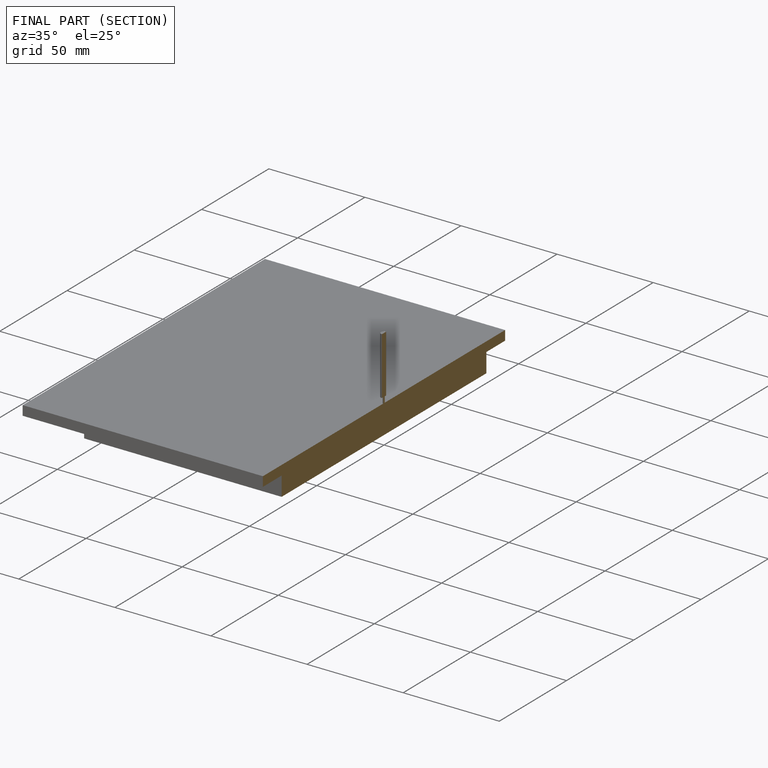
[diagram: finished part — half-section view (interior)]
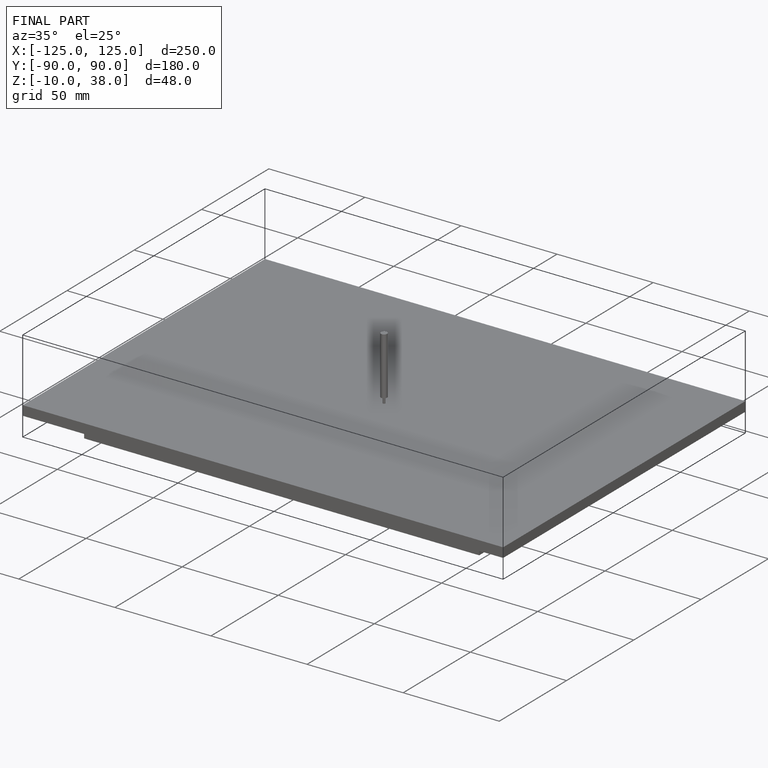
[diagram: finished part — iso view with bounding-box wireframe]
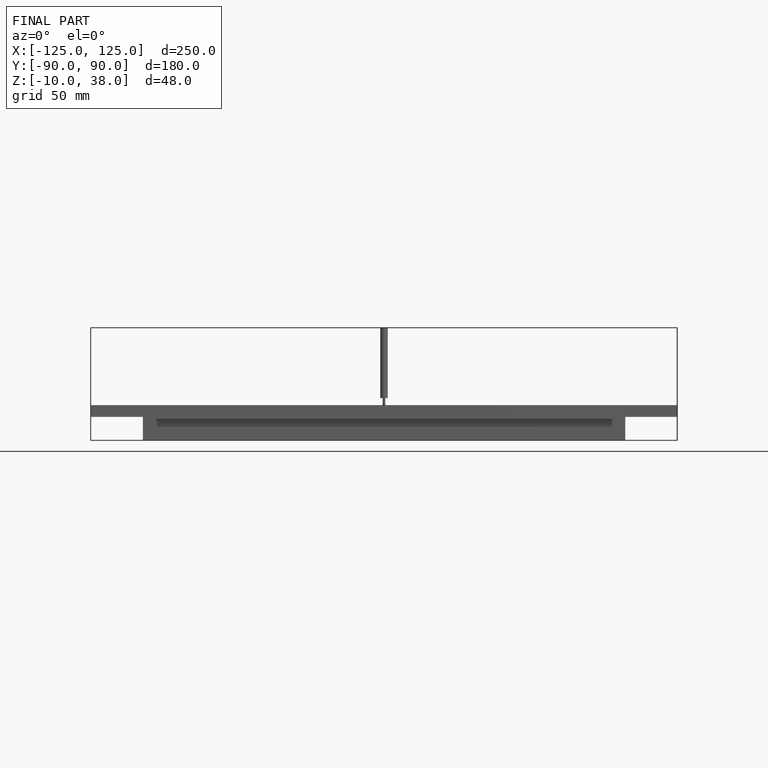
[diagram: finished part — front view with bounding-box wireframe]
